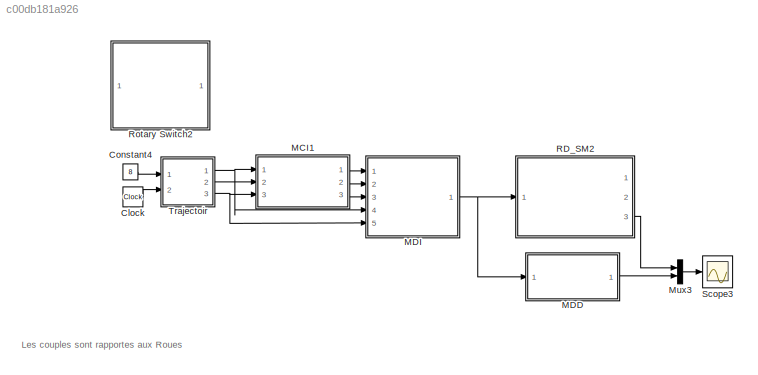
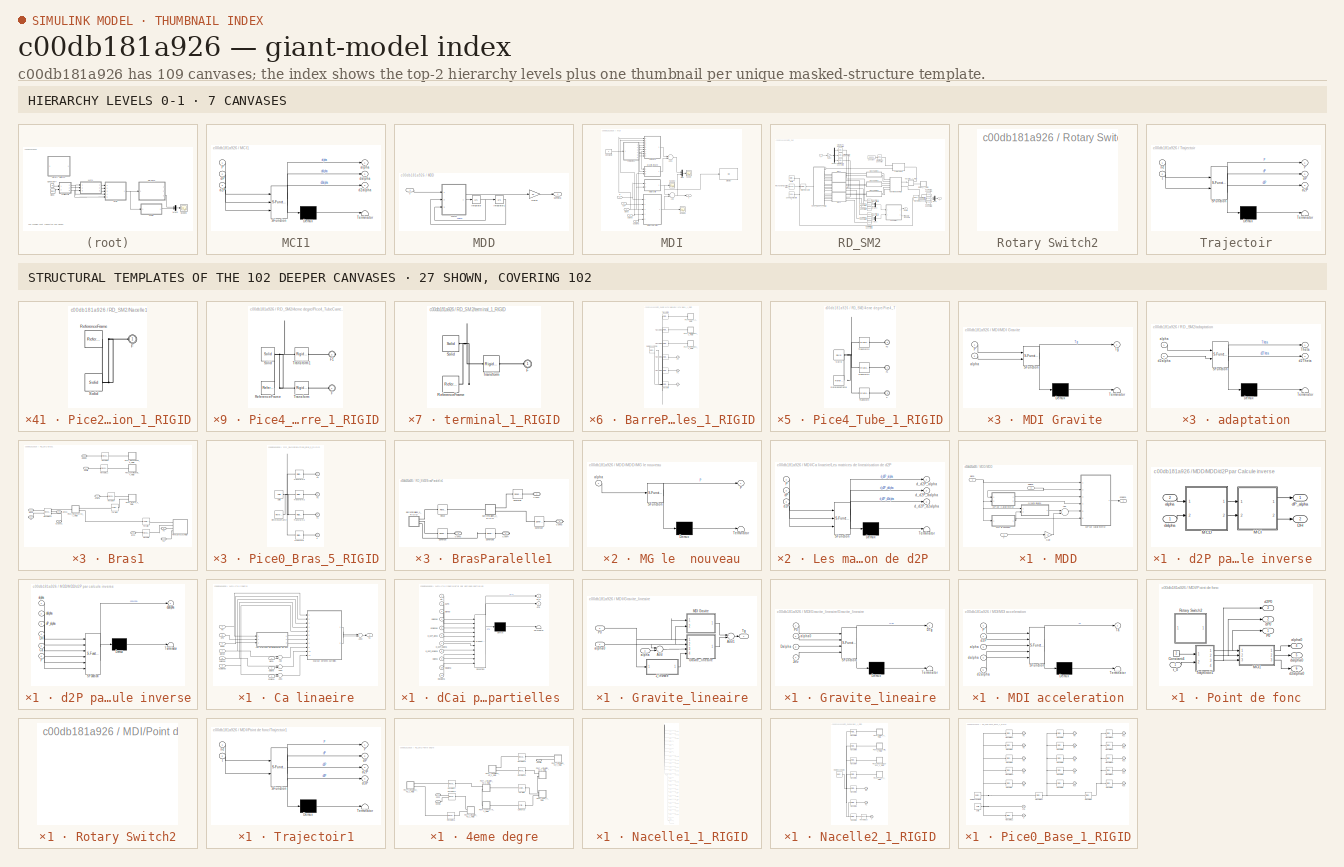
[diagram: thumbnail index - top-2 hierarchy levels (7 canvases) + 27 structural-template representatives of the remaining 102 canvases]
MODEL slx_c00db181a926
KIND model
CONFIG AbsTol = auto
CONFIG FixedStep = auto
CONFIG MaxStep = 0.001
CONFIG MinStep = auto
CONFIG RelTol = 1e-3
CONFIG SampleTimeConstraint = Unconstrained
CONFIG Solver = ode45
CONFIG SolverMode = Auto
CONFIG SolverName = ode45
CONFIG StartTime = 0.0
CONFIG StopTime = 3
BLOCK [Clock] Clock
BLOCK [Constant] Constant4
  Value = 8
BLOCK [SubSystem] MCI1
  ErrorFcn = Stateflow.Translate.translate
  PermitHierarchicalResolution = ExplicitOnly
  Ports = [3, 3]
  RequestExecContextInheritance = off
  SFBlockType = MATLAB Function
  TreatAsAtomicUnit = on
BLOCK [Demux] MCI1/ Demux 
  Outputs = 1
  Ports = [1, 1]
BLOCK [S-Function] MCI1/ SFunction 
  EnableBusSupport = on
  FunctionName = sf_sfun
  PortCounts = [3 4]
  Ports = [3, 4]
  Tag = Stateflow S-Function Modelisation_5_MDD 2
BLOCK [Terminator] MCI1/ Terminator 
BLOCK [Inport] MCI1/P
  IconDisplay = Port number
BLOCK [Outport] MCI1/alpha
  IconDisplay = Port number
BLOCK [Inport] MCI1/d2P
  IconDisplay = Port number
  Port = 3
BLOCK [Outport] MCI1/d2alpha
  IconDisplay = Port number
  Port = 3
BLOCK [Inport] MCI1/dP
  IconDisplay = Port number
  Port = 2
BLOCK [Outport] MCI1/dalpha
  IconDisplay = Port number
  Port = 2
BLOCK [SubSystem] MDD
  Ports = [1, 1]
  RequestExecContextInheritance = off
BLOCK [Gain] MDD/Gain2
  Gain = 12
  OutDataTypeStr = Inherit: Inherit via internal rule
  ParamDataTypeStr = Inherit: Inherit via internal rule
  SaturateOnIntegerOverflow = off
BLOCK [Integrator] MDD/Integrator
  InitialCondition = [0;0;0]
  Ports = [1, 1]
BLOCK [Integrator] MDD/Integrator1
  InitialCondition = 4.75*[1;1;1]*12
  Ports = [1, 1]
BLOCK [SubSystem] MDD/MDD
  Ports = [3, 1]
  RequestExecContextInheritance = off
BLOCK [Sum] MDD/MDD/Add
  InputSameDT = off
  OutDataTypeStr = Inherit: Inherit via internal rule
  Ports = [2, 1]
  SaturateOnIntegerOverflow = off
BLOCK [Gain] MDD/MDD/Gain
  Gain = 12
  OutDataTypeStr = Inherit: Inherit via internal rule
  ParamDataTypeStr = Inherit: Inherit via internal rule
  SaturateOnIntegerOverflow = off
BLOCK [SubSystem] MDD/MDD/Gravite_lineaire
  ErrorFcn = Stateflow.Translate.translate
  PermitHierarchicalResolution = ExplicitOnly
  Ports = [2, 1]
  RequestExecContextInheritance = off
  SFBlockType = MATLAB Function
  TreatAsAtomicUnit = on
BLOCK [Demux] MDD/MDD/Gravite_lineaire/ Demux 
  Outputs = 1
  Ports = [1, 1]
BLOCK [S-Function] MDD/MDD/Gravite_lineaire/ SFunction 
  EnableBusSupport = on
  FunctionName = sf_sfun
  PortCounts = [2 2]
  Ports = [2, 2]
  Tag = Stateflow S-Function Modelisation_5_MDD 8
BLOCK [Terminator] MDD/MDD/Gravite_lineaire/ Terminator 
BLOCK [Outport] MDD/MDD/Gravite_lineaire/Cg
  IconDisplay = Port number
BLOCK [Inport] MDD/MDD/Gravite_lineaire/P
  IconDisplay = Port number
  Port = 2
BLOCK [Inport] MDD/MDD/Gravite_lineaire/alpha
  IconDisplay = Port number
BLOCK [SubSystem] MDD/MDD/MG le  nouveau
  ErrorFcn = Stateflow.Translate.translate
  PermitHierarchicalResolution = ExplicitOnly
  Ports = [1, 1]
  RequestExecContextInheritance = off
  SFBlockType = MATLAB Function
  TreatAsAtomicUnit = on
BLOCK [Demux] MDD/MDD/MG le  nouveau/ Demux 
  Outputs = 1
  Ports = [1, 1]
BLOCK [S-Function] MDD/MDD/MG le  nouveau/ SFunction 
  EnableBusSupport = on
  FunctionName = sf_sfun
  PortCounts = [1 2]
  Ports = [1, 2]
  Tag = Stateflow S-Function Modelisation_5_MDD 1
BLOCK [Terminator] MDD/MDD/MG le  nouveau/ Terminator 
BLOCK [Outport] MDD/MDD/MG le  nouveau/P
  IconDisplay = Port number
BLOCK [Inport] MDD/MDD/MG le  nouveau/alpha
  IconDisplay = Port number
BLOCK [Inport] MDD/MDD/T
  IconDisplay = Port number
BLOCK [Inport] MDD/MDD/alpha
  IconDisplay = Port number
  Port = 2
BLOCK [SubSystem] MDD/MDD/d2P par Calcule inverse 
  Ports = [2, 2]
  RequestExecContextInheritance = off
BLOCK [Outport] MDD/MDD/d2P par Calcule inverse /DH
  IconDisplay = Port number
  Port = 2
BLOCK [SubSystem] MDD/MDD/d2P par Calcule inverse /MCD
  ErrorFcn = Stateflow.Translate.translate
  PermitHierarchicalResolution = ExplicitOnly
  Ports = [2, 2]
  RequestExecContextInheritance = off
  SFBlockType = MATLAB Function
  TreatAsAtomicUnit = on
BLOCK [Demux] MDD/MDD/d2P par Calcule inverse /MCD/ Demux 
  Outputs = 1
  Ports = [1, 1]
BLOCK [S-Function] MDD/MDD/d2P par Calcule inverse /MCD/ SFunction 
  EnableBusSupport = on
  FunctionName = sf_sfun
  PortCounts = [2 3]
  Ports = [2, 3]
  Tag = Stateflow S-Function Modelisation_5_MDD 3
BLOCK [Terminator] MDD/MDD/d2P par Calcule inverse /MCD/ Terminator 
BLOCK [Outport] MDD/MDD/d2P par Calcule inverse /MCD/P
  IconDisplay = Port number
BLOCK [Inport] MDD/MDD/d2P par Calcule inverse /MCD/alpha
  IconDisplay = Port number
BLOCK [Outport] MDD/MDD/d2P par Calcule inverse /MCD/dP
  IconDisplay = Port number
  Port = 2
BLOCK [Inport] MDD/MDD/d2P par Calcule inverse /MCD/dalpha
  IconDisplay = Port number
  Port = 2
BLOCK [SubSystem] MDD/MDD/d2P par Calcule inverse /MCI
  ErrorFcn = Stateflow.Translate.translate
  PermitHierarchicalResolution = ExplicitOnly
  Ports = [2, 2]
  RequestExecContextInheritance = off
  SFBlockType = MATLAB Function
  TreatAsAtomicUnit = on
BLOCK [Demux] MDD/MDD/d2P par Calcule inverse /MCI/ Demux 
  Outputs = 1
  Ports = [1, 1]
BLOCK [S-Function] MDD/MDD/d2P par Calcule inverse /MCI/ SFunction 
  EnableBusSupport = on
  FunctionName = sf_sfun
  PortCounts = [2 3]
  Ports = [2, 3]
  Tag = Stateflow S-Function Modelisation_5_MDD 14
BLOCK [Terminator] MDD/MDD/d2P par Calcule inverse /MCI/ Terminator 
BLOCK [Outport] MDD/MDD/d2P par Calcule inverse /MCI/DH
  IconDisplay = Port number
  Port = 2
BLOCK [Inport] MDD/MDD/d2P par Calcule inverse /MCI/P
  IconDisplay = Port number
BLOCK [Inport] MDD/MDD/d2P par Calcule inverse /MCI/dP
  IconDisplay = Port number
  Port = 2
BLOCK [Outport] MDD/MDD/d2P par Calcule inverse /MCI/dP_alpha
  IconDisplay = Port number
BLOCK [Inport] MDD/MDD/d2P par Calcule inverse /alpha
  IconDisplay = Port number
  Port = 2
BLOCK [Outport] MDD/MDD/d2P par Calcule inverse /dP_alpha
  IconDisplay = Port number
BLOCK [Inport] MDD/MDD/d2P par Calcule inverse /dalpha
  IconDisplay = Port number
BLOCK [SubSystem] MDD/MDD/d2P par calcule inverse
  ErrorFcn = Stateflow.Translate.translate
  PermitHierarchicalResolution = ExplicitOnly
  Ports = [6, 1]
  RequestExecContextInheritance = off
  SFBlockType = MATLAB Function
  TreatAsAtomicUnit = on
BLOCK [Demux] MDD/MDD/d2P par calcule inverse/ Demux 
  Outputs = 1
  Ports = [1, 1]
BLOCK [S-Function] MDD/MDD/d2P par calcule inverse/ SFunction 
  EnableBusSupport = on
  FunctionName = sf_sfun
  PortCounts = [6 2]
  Ports = [6, 2]
  Tag = Stateflow S-Function Modelisation_5_MDD 15
BLOCK [Terminator] MDD/MDD/d2P par calcule inverse/ Terminator 
BLOCK [Inport] MDD/MDD/d2P par calcule inverse/Ca
  IconDisplay = Port number
  Port = 5
BLOCK [Inport] MDD/MDD/d2P par calcule inverse/DH
  IconDisplay = Port number
  Port = 4
BLOCK [Inport] MDD/MDD/d2P par calcule inverse/P
  IconDisplay = Port number
  Port = 6
BLOCK [Inport] MDD/MDD/d2P par calcule inverse/alpha
  IconDisplay = Port number
BLOCK [Outport] MDD/MDD/d2P par calcule inverse/d2alpha
  IconDisplay = Port number
BLOCK [Inport] MDD/MDD/d2P par calcule inverse/dP_alpha
  IconDisplay = Port number
  Port = 3
BLOCK [Inport] MDD/MDD/d2P par calcule inverse/dalpha
  IconDisplay = Port number
  Port = 2
BLOCK [Outport] MDD/MDD/d2alpha
  IconDisplay = Port number
BLOCK [Inport] MDD/MDD/dalpha
  IconDisplay = Port number
  Port = 3
BLOCK [Inport] MDD/T
  IconDisplay = Port number
BLOCK [Outport] MDD/d2Theta
  IconDisplay = Port number
BLOCK [SubSystem] MDI
  Ports = [5, 1]
  RequestExecContextInheritance = off
BLOCK [Sum] MDI/Add
  InputSameDT = off
  Inputs = -+
  OutDataTypeStr = Inherit: Inherit via internal rule
  Ports = [2, 1]
  SaturateOnIntegerOverflow = off
BLOCK [Sum] MDI/Add1
  InputSameDT = off
  Inputs = +-
  OutDataTypeStr = Inherit: Inherit via internal rule
  Ports = [2, 1]
  SaturateOnIntegerOverflow = off
BLOCK [SubSystem] MDI/Ca linaeire
  Ports = [9, 1]
  RequestExecContextInheritance = off
BLOCK [Sum] MDI/Ca linaeire/Add
  InputSameDT = off
  Inputs = -+
  OutDataTypeStr = Inherit: Inherit via internal rule
  Ports = [2, 1]
  SaturateOnIntegerOverflow = off
BLOCK [Sum] MDI/Ca linaeire/Add1
  InputSameDT = off
  Inputs = -+
  OutDataTypeStr = Inherit: Inherit via internal rule
  Ports = [2, 1]
  SaturateOnIntegerOverflow = off
BLOCK [Sum] MDI/Ca linaeire/Add2
  InputSameDT = off
  Inputs = -+
  OutDataTypeStr = Inherit: Inherit via internal rule
  Ports = [2, 1]
  SaturateOnIntegerOverflow = off
BLOCK [Sum] MDI/Ca linaeire/Add3
  InputSameDT = off
  OutDataTypeStr = Inherit: Inherit via internal rule
  Ports = [2, 1]
  SaturateOnIntegerOverflow = off
BLOCK [SubSystem] MDI/Ca linaeire/Les matrices de lineairisation de d2P  
  ErrorFcn = Stateflow.Translate.translate
  PermitHierarchicalResolution = ExplicitOnly
  Ports = [3, 3]
  RequestExecContextInheritance = off
  SFBlockType = MATLAB Function
  TreatAsAtomicUnit = on
BLOCK [Demux] MDI/Ca linaeire/Les matrices de lineairisation de d2P  / Demux 
  Outputs = 1
  Ports = [1, 1]
BLOCK [S-Function] MDI/Ca linaeire/Les matrices de lineairisation de d2P  / SFunction 
  EnableBusSupport = on
  FunctionName = sf_sfun
  PortCounts = [3 4]
  Ports = [3, 4]
  Tag = Stateflow S-Function Modelisation_5_MDD 9
BLOCK [Terminator] MDI/Ca linaeire/Les matrices de lineairisation de d2P  / Terminator 
BLOCK [Inport] MDI/Ca linaeire/Les matrices de lineairisation de d2P  /P
  IconDisplay = Port number
BLOCK [Inport] MDI/Ca linaeire/Les matrices de lineairisation de d2P  /d2P
  IconDisplay = Port number
  Port = 3
BLOCK [Inport] MDI/Ca linaeire/Les matrices de lineairisation de d2P  /dP
  IconDisplay = Port number
  Port = 2
BLOCK [Outport] MDI/Ca linaeire/Les matrices de lineairisation de d2P  /d_d2P_alpha
  IconDisplay = Port number
BLOCK [Outport] MDI/Ca linaeire/Les matrices de lineairisation de d2P  /d_d2P_d2alpha
  IconDisplay = Port number
  Port = 3
BLOCK [Outport] MDI/Ca linaeire/Les matrices de lineairisation de d2P  /d_d2P_dalpha
  IconDisplay = Port number
  Port = 2
BLOCK [Inport] MDI/Ca linaeire/P0
  IconDisplay = Port number
  Port = 4
BLOCK [Outport] MDI/Ca linaeire/Ta
  IconDisplay = Port number
BLOCK [Inport] MDI/Ca linaeire/alpha
  IconDisplay = Port number
BLOCK [Inport] MDI/Ca linaeire/alpha0
  IconDisplay = Port number
  Port = 7
BLOCK [Inport] MDI/Ca linaeire/d2P0
  IconDisplay = Port number
  Port = 6
BLOCK [Inport] MDI/Ca linaeire/d2alpha
  IconDisplay = Port number
  Port = 3
BLOCK [Inport] MDI/Ca linaeire/d2alpha0
  IconDisplay = Port number
  Port = 9
BLOCK [SubSystem] MDI/Ca linaeire/dCai par derivees partielles 
  ErrorFcn = Stateflow.Translate.translate
  PermitHierarchicalResolution = ExplicitOnly
  Ports = [11, 2]
  RequestExecContextInheritance = off
  SFBlockType = MATLAB Function
  TreatAsAtomicUnit = on
BLOCK [Demux] MDI/Ca linaeire/dCai par derivees partielles / Demux 
  Outputs = 1
  Ports = [1, 1]
BLOCK [S-Function] MDI/Ca linaeire/dCai par derivees partielles / SFunction 
  EnableBusSupport = on
  FunctionName = sf_sfun
  PortCounts = [11 3]
  Ports = [11, 3]
  Tag = Stateflow S-Function Modelisation_5_MDD 11
BLOCK [Terminator] MDI/Ca linaeire/dCai par derivees partielles / Terminator 
BLOCK [Inport] MDI/Ca linaeire/dCai par derivees partielles /Dalpha
  IconDisplay = Port number
  Port = 9
BLOCK [Inport] MDI/Ca linaeire/dCai par derivees partielles /Dd2alpha
  IconDisplay = Port number
  Port = 11
BLOCK [Inport] MDI/Ca linaeire/dCai par derivees partielles /Ddalpha
  IconDisplay = Port number
  Port = 10
BLOCK [Inport] MDI/Ca linaeire/dCai par derivees partielles /P0
  IconDisplay = Port number
BLOCK [Outport] MDI/Ca linaeire/dCai par derivees partielles /Ta_0
  IconDisplay = Port number
BLOCK [Inport] MDI/Ca linaeire/dCai par derivees partielles /alpha0
  IconDisplay = Port number
  Port = 3
BLOCK [Inport] MDI/Ca linaeire/dCai par derivees partielles /d2P0
  IconDisplay = Port number
  Port = 2
BLOCK [Inport] MDI/Ca linaeire/dCai par derivees partielles /d2alpha0
  IconDisplay = Port number
  Port = 5
BLOCK [Outport] MDI/Ca linaeire/dCai par derivees partielles /dTa
  IconDisplay = Port number
  Port = 2
BLOCK [Inport] MDI/Ca linaeire/dCai par derivees partielles /d_d2P_alpha
  IconDisplay = Port number
  Port = 6
BLOCK [Inport] MDI/Ca linaeire/dCai par derivees partielles /d_d2P_d2alpha
  IconDisplay = Port number
  Port = 8
BLOCK [Inport] MDI/Ca linaeire/dCai par derivees partielles /d_d2P_dalpha
  IconDisplay = Port number
  Port = 7
BLOCK [Inport] MDI/Ca linaeire/dCai par derivees partielles /dalpha0
  IconDisplay = Port number
  Port = 4
BLOCK [Inport] MDI/Ca linaeire/dP0
  IconDisplay = Port number
  Port = 5
BLOCK [Inport] MDI/Ca linaeire/dalpha
  IconDisplay = Port number
  Port = 2
BLOCK [Inport] MDI/Ca linaeire/dalpha0
  IconDisplay = Port number
  Port = 8
BLOCK [Constant] MDI/Constant2
BLOCK [Display] MDI/Display
  Decimation = 1
  Ports = [1]
BLOCK [SubSystem] MDI/Gravite_lineaire
  Ports = [3, 1]
  RequestExecContextInheritance = off
BLOCK [Sum] MDI/Gravite_lineaire/Add
  InputSameDT = off
  Inputs = -+
  OutDataTypeStr = Inherit: Inherit via internal rule
  Ports = [2, 1]
  SaturateOnIntegerOverflow = off
BLOCK [Sum] MDI/Gravite_lineaire/Add1
  InputSameDT = off
  OutDataTypeStr = Inherit: Inherit via internal rule
  Ports = [2, 1]
  SaturateOnIntegerOverflow = off
BLOCK [SubSystem] MDI/Gravite_lineaire/Gravite_lineaire
  ErrorFcn = Stateflow.Translate.translate
  PermitHierarchicalResolution = ExplicitOnly
  Ports = [4, 1]
  RequestExecContextInheritance = off
  SFBlockType = MATLAB Function
  TreatAsAtomicUnit = on
BLOCK [Demux] MDI/Gravite_lineaire/Gravite_lineaire/ Demux 
  Outputs = 1
  Ports = [1, 1]
BLOCK [S-Function] MDI/Gravite_lineaire/Gravite_lineaire/ SFunction 
  EnableBusSupport = on
  FunctionName = sf_sfun
  PortCounts = [4 2]
  Ports = [4, 2]
  Tag = Stateflow S-Function Modelisation_5_MDD 6
BLOCK [Terminator] MDI/Gravite_lineaire/Gravite_lineaire/ Terminator 
BLOCK [Outport] MDI/Gravite_lineaire/Gravite_lineaire/DTg
  IconDisplay = Port number
BLOCK [Inport] MDI/Gravite_lineaire/Gravite_lineaire/Dalpha
  IconDisplay = Port number
  Port = 3
BLOCK [Inport] MDI/Gravite_lineaire/Gravite_lineaire/Jinv
  IconDisplay = Port number
  Port = 4
BLOCK [Inport] MDI/Gravite_lineaire/Gravite_lineaire/P0
  IconDisplay = Port number
BLOCK [Inport] MDI/Gravite_lineaire/Gravite_lineaire/alpha0
  IconDisplay = Port number
  Port = 2
BLOCK [SubSystem] MDI/Gravite_lineaire/J_invrsee
  ErrorFcn = Stateflow.Translate.translate
  PermitHierarchicalResolution = ExplicitOnly
  Ports = [1, 1]
  RequestExecContextInheritance = off
  SFBlockType = MATLAB Function
  TreatAsAtomicUnit = on
BLOCK [Demux] MDI/Gravite_lineaire/J_invrsee/ Demux 
  Outputs = 1
  Ports = [1, 1]
BLOCK [S-Function] MDI/Gravite_lineaire/J_invrsee/ SFunction 
  EnableBusSupport = on
  FunctionName = sf_sfun
  PortCounts = [1 2]
  Ports = [1, 2]
  Tag = Stateflow S-Function Modelisation_5_MDD 7
BLOCK [Terminator] MDI/Gravite_lineaire/J_invrsee/ Terminator 
BLOCK [Outport] MDI/Gravite_lineaire/J_invrsee/Jinv
  IconDisplay = Port number
BLOCK [Inport] MDI/Gravite_lineaire/J_invrsee/P0
  IconDisplay = Port number
BLOCK [SubSystem] MDI/Gravite_lineaire/MDI Gravite 
  ErrorFcn = Stateflow.Translate.translate
  PermitHierarchicalResolution = ExplicitOnly
  Ports = [2, 1]
  RequestExecContextInheritance = off
  SFBlockType = MATLAB Function
  TreatAsAtomicUnit = on
BLOCK [Demux] MDI/Gravite_lineaire/MDI Gravite / Demux 
  Outputs = 1
  Ports = [1, 1]
BLOCK [S-Function] MDI/Gravite_lineaire/MDI Gravite / SFunction 
  EnableBusSupport = on
  FunctionName = sf_sfun
  PortCounts = [2 2]
  Ports = [2, 2]
  Tag = Stateflow S-Function Modelisation_5_MDD 13
BLOCK [Terminator] MDI/Gravite_lineaire/MDI Gravite / Terminator 
BLOCK [Inport] MDI/Gravite_lineaire/MDI Gravite /P
  IconDisplay = Port number
BLOCK [Outport] MDI/Gravite_lineaire/MDI Gravite /Tg_0
  IconDisplay = Port number
BLOCK [Inport] MDI/Gravite_lineaire/MDI Gravite /alpha
  IconDisplay = Port number
  Port = 2
BLOCK [Inport] MDI/Gravite_lineaire/P0
  IconDisplay = Port number
  Port = 2
BLOCK [Outport] MDI/Gravite_lineaire/Tg
  IconDisplay = Port number
BLOCK [Inport] MDI/Gravite_lineaire/alpha
  IconDisplay = Port number
  Port = 3
BLOCK [Inport] MDI/Gravite_lineaire/alpha0
  IconDisplay = Port number
BLOCK [SubSystem] MDI/MDI Gravite 
  ErrorFcn = Stateflow.Translate.translate
  PermitHierarchicalResolution = ExplicitOnly
  Ports = [2, 1]
  RequestExecContextInheritance = off
  SFBlockType = MATLAB Function
  TreatAsAtomicUnit = on
BLOCK [Demux] MDI/MDI Gravite / Demux 
  Outputs = 1
  Ports = [1, 1]
BLOCK [S-Function] MDI/MDI Gravite / SFunction 
  EnableBusSupport = on
  FunctionName = sf_sfun
  PortCounts = [2 2]
  Ports = [2, 2]
  Tag = Stateflow S-Function Modelisation_5_MDD 5
BLOCK [Terminator] MDI/MDI Gravite / Terminator 
BLOCK [Inport] MDI/MDI Gravite /P
  IconDisplay = Port number
BLOCK [Outport] MDI/MDI Gravite /Tg
  IconDisplay = Port number
BLOCK [Inport] MDI/MDI Gravite /alpha
  IconDisplay = Port number
  Port = 2
BLOCK [SubSystem] MDI/MDI acceleration
  ErrorFcn = Stateflow.Translate.translate
  PermitHierarchicalResolution = ExplicitOnly
  Ports = [5, 1]
  RequestExecContextInheritance = off
  SFBlockType = MATLAB Function
  TreatAsAtomicUnit = on
BLOCK [Demux] MDI/MDI acceleration/ Demux 
  Outputs = 1
  Ports = [1, 1]
BLOCK [S-Function] MDI/MDI acceleration/ SFunction 
  EnableBusSupport = on
  FunctionName = sf_sfun
  PortCounts = [5 2]
  Ports = [5, 2]
  Tag = Stateflow S-Function Modelisation_5_MDD 10
BLOCK [Terminator] MDI/MDI acceleration/ Terminator 
BLOCK [Inport] MDI/MDI acceleration/P
  IconDisplay = Port number
BLOCK [Outport] MDI/MDI acceleration/Ta
  IconDisplay = Port number
BLOCK [Inport] MDI/MDI acceleration/alpha
  IconDisplay = Port number
  Port = 3
BLOCK [Inport] MDI/MDI acceleration/d2P
  IconDisplay = Port number
  Port = 2
BLOCK [Inport] MDI/MDI acceleration/d2alpha
  IconDisplay = Port number
  Port = 5
BLOCK [Inport] MDI/MDI acceleration/dalpha
  IconDisplay = Port number
  Port = 4
BLOCK [Mux] MDI/Mux
  DisplayOption = bar
  Inputs = 2
  Ports = [2, 1]
BLOCK [Inport] MDI/P
  IconDisplay = Port number
  Port = 4
BLOCK [SubSystem] MDI/Point de fonc
  Ports = [1, 6]
  RequestExecContextInheritance = off
BLOCK [Constant] MDI/Point de fonc/Constant4
  Value = 2
BLOCK [SubSystem] MDI/Point de fonc/MCI1
  ErrorFcn = Stateflow.Translate.translate
  PermitHierarchicalResolution = ExplicitOnly
  Ports = [3, 3]
  RequestExecContextInheritance = off
  SFBlockType = MATLAB Function
  TreatAsAtomicUnit = on
BLOCK [Demux] MDI/Point de fonc/MCI1/ Demux 
  Outputs = 1
  Ports = [1, 1]
BLOCK [S-Function] MDI/Point de fonc/MCI1/ SFunction 
  EnableBusSupport = on
  FunctionName = sf_sfun
  PortCounts = [3 4]
  Ports = [3, 4]
  Tag = Stateflow S-Function Modelisation_5_MDD 12
BLOCK [Terminator] MDI/Point de fonc/MCI1/ Terminator 
BLOCK [Inport] MDI/Point de fonc/MCI1/P
  IconDisplay = Port number
BLOCK [Outport] MDI/Point de fonc/MCI1/alpha
  IconDisplay = Port number
BLOCK [Inport] MDI/Point de fonc/MCI1/d2P
  IconDisplay = Port number
  Port = 3
BLOCK [Outport] MDI/Point de fonc/MCI1/d2alpha
  IconDisplay = Port number
  Port = 3
BLOCK [Inport] MDI/Point de fonc/MCI1/dP
  IconDisplay = Port number
  Port = 2
BLOCK [Outport] MDI/Point de fonc/MCI1/dalpha
  IconDisplay = Port number
  Port = 2
BLOCK [Outport] MDI/Point de fonc/P0
  IconDisplay = Port number
BLOCK [SubSystem] MDI/Point de fonc/Rotary Switch2
  DialogController = hmiCreateDDGDialog
  IsWebBlock = on
  MaskHideContents = on
  Ports = []
  RequestExecContextInheritance = off
BLOCK [SubSystem] MDI/Point de fonc/Trajectoir1
  ErrorFcn = Stateflow.Translate.translate
  PermitHierarchicalResolution = ExplicitOnly
  Ports = [2, 4]
  RequestExecContextInheritance = off
  SFBlockType = MATLAB Function
  TreatAsAtomicUnit = on
BLOCK [Demux] MDI/Point de fonc/Trajectoir1/ Demux 
  Outputs = 1
  Ports = [1, 1]
BLOCK [S-Function] MDI/Point de fonc/Trajectoir1/ SFunction 
  EnableBusSupport = on
  FunctionName = sf_sfun
  PortCounts = [2 5]
  Ports = [2, 5]
  Tag = Stateflow S-Function Modelisation_5_MDD 4
BLOCK [Terminator] MDI/Point de fonc/Trajectoir1/ Terminator 
BLOCK [Outport] MDI/Point de fonc/Trajectoir1/P
  IconDisplay = Port number
BLOCK [Outport] MDI/Point de fonc/Trajectoir1/d2P
  IconDisplay = Port number
  Port = 3
BLOCK [Outport] MDI/Point de fonc/Trajectoir1/d3P
  IconDisplay = Port number
  Port = 4
BLOCK [Outport] MDI/Point de fonc/Trajectoir1/dP
  IconDisplay = Port number
  Port = 2
BLOCK [Inport] MDI/Point de fonc/Trajectoir1/ne
  IconDisplay = Port number
BLOCK [Inport] MDI/Point de fonc/Trajectoir1/t
  IconDisplay = Port number
  Port = 2
BLOCK [Outport] MDI/Point de fonc/alpha0
  IconDisplay = Port number
  Port = 4
BLOCK [Outport] MDI/Point de fonc/d2P0
  IconDisplay = Port number
  Port = 3
BLOCK [Outport] MDI/Point de fonc/d2alpha0
  IconDisplay = Port number
  Port = 6
BLOCK [Outport] MDI/Point de fonc/dP0
  IconDisplay = Port number
  Port = 2
BLOCK [Outport] MDI/Point de fonc/dalpha0
  IconDisplay = Port number
  Port = 5
BLOCK [Inport] MDI/Point de fonc/t_0
  IconDisplay = Port number
BLOCK [Scope] MDI/Scope
  Floating = off
  LimitDataPoints = off
  NumInputPorts = 1
  Ports = [1]
  SaveName = ScopeData1
  YMax = 0.35
  YMin = -0.3
BLOCK [Scope] MDI/Scope1
  Floating = off
  LimitDataPoints = off
  NumInputPorts = 1
  Ports = [1]
  SaveName = ScopeData9
  YMax = 0.35
  YMin = -0.3
BLOCK [Scope] MDI/Scope2
  Floating = off
  LimitDataPoints = off
  NumInputPorts = 1
  Ports = [1]
  SaveName = ScopeData10
  YMax = 0.35
  YMin = -0.3
BLOCK [Outport] MDI/T
  IconDisplay = Port number
BLOCK [Inport] MDI/alpha
  IconDisplay = Port number
BLOCK [Inport] MDI/d2P
  IconDisplay = Port number
  Port = 5
BLOCK [Inport] MDI/d2alpha
  IconDisplay = Port number
  Port = 3
BLOCK [Inport] MDI/dalpha
  IconDisplay = Port number
  Port = 2
BLOCK [Mux] Mux3
  DisplayOption = bar
  Inputs = 2
  Ports = [2, 1]
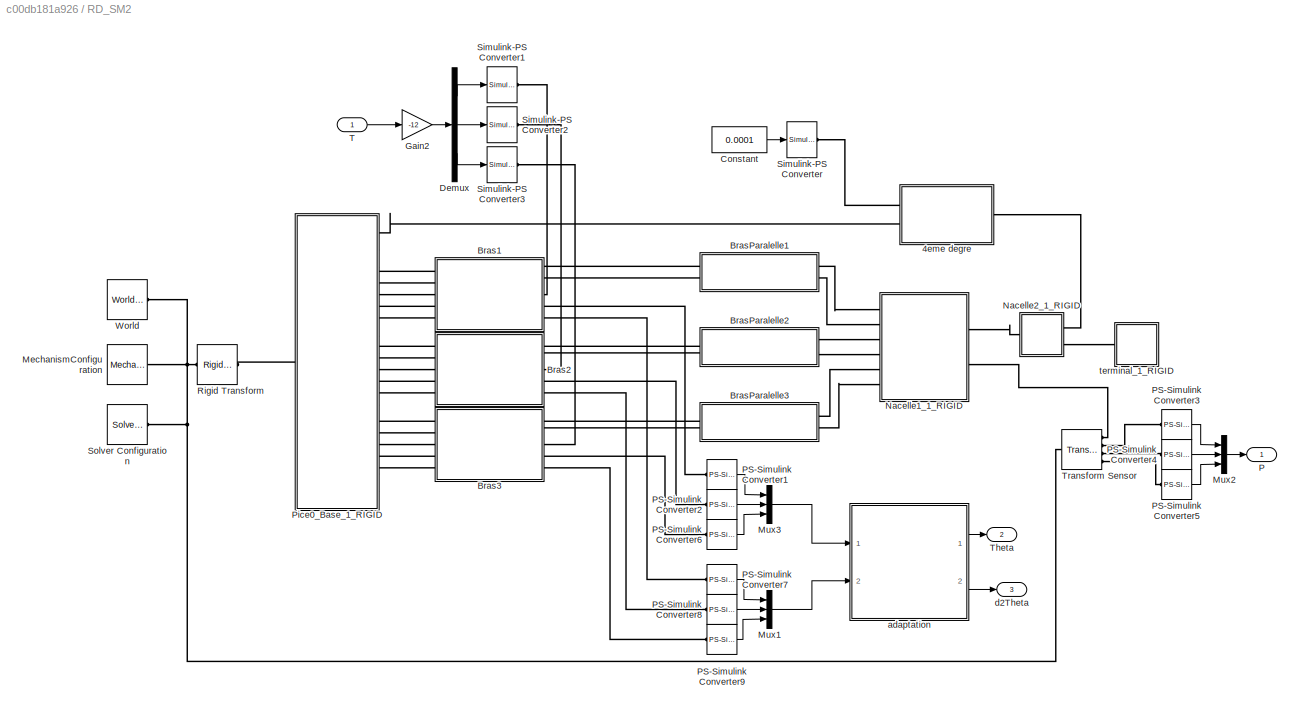
BLOCK [SubSystem] RD_SM2
  Ports = [1, 3]
  RequestExecContextInheritance = off
BLOCK [SubSystem] RD_SM2/4eme degre
  Commented = on
  Ports = [0, 0, 0, 0, 0, 2, 1]
  RequestExecContextInheritance = off
BLOCK [Reference] RD_SM2/4eme degre/Cylindrical  REF=sm_lib/Joints/Cylindrical
Joint
  BlockFunction = simmechanics.library.joints.cylindrical_joint
  ClassName = CylindricalJoint
  CompositeWrenchDir = FollowerOnBase
  CompositeWrenchFrame = BaseFrame
  LogSimulationData = off
  Ports = [0, 0, 0, 0, 0, 1, 1]
  PzDampingCoefficient = 0
  PzDampingCoefficientUnits = s*N/m
  PzEquilibriumPosition = 0
  PzEquilibriumPositionUnits = m
  PzMotionActuationMode = ComputedMotion
  PzPositionTargetPriority = Low
  PzPositionTargetSpecify = on
  PzPositionTargetValue = 0
  PzPositionTargetValueUnits = mm
  PzSenseAcceleration = off
  PzSensePosition = off
  PzSenseTorqueForce = off
  PzSenseVelocity = off
  PzSpringStiffness = 0
  PzSpringStiffnessUnits = N/m
  PzTorqueActuationMode = NoTorque
  PzVelocityTargetPriority = High
  PzVelocityTargetSpecify = off
  PzVelocityTargetValue = 0
  PzVelocityTargetValueUnits = m/s
  RzDampingCoefficient = 0
  RzDampingCoefficientUnits = m*s*N/rad
  RzEquilibriumPosition = 0
  RzEquilibriumPositionUnits = rad
  RzMotionActuationMode = ComputedMotion
  RzPositionTargetPriority = Low
  RzPositionTargetSpecify = on
  RzPositionTargetValue = 90
  RzPositionTargetValueUnits = deg
  RzSenseAcceleration = off
  RzSensePosition = off
  RzSenseTorqueForce = off
  RzSenseVelocity = off
  RzSpringStiffness = 0
  RzSpringStiffnessUnits = m*N/rad
  RzTorqueActuationMode = NoTorque
  RzVelocityTargetPriority = High
  RzVelocityTargetSpecify = off
  RzVelocityTargetValue = 0
  RzVelocityTargetValueUnits = deg/s
  SenseConstraintForce = off
  SenseConstraintForceX = off
  SenseConstraintForceY = off
  SenseConstraintForceZ = off
  SenseConstraintTorque = off
  SenseConstraintTorqueX = off
  SenseConstraintTorqueY = off
  SenseConstraintTorqueZ = off
  SenseTotalForce = off
  SenseTotalForceX = off
  SenseTotalForceY = off
  SenseTotalForceZ = off
  SenseTotalTorque = off
  SenseTotalTorqueX = off
  SenseTotalTorqueY = off
  SenseTotalTorqueZ = off
  SourceBlock = sm_lib/Joints/Cylindrical\nJoint
  SourceType = Cylindrical\nJoint
BLOCK [Reference] RD_SM2/4eme degre/Parallel6  REF=sm_lib/Constraints/Angle
Constraint
  Angle = 45
  AngleUnits = deg
  BlockFunction = simmechanics.library.constraints.angle_constraint
  ClassName = AngleConstraint
  ConstraintType = Parallel
  LogSimulationData = off
  Ports = [0, 0, 0, 0, 0, 1, 1]
  SenseForce = off
  SenseSignedTorqueMagnitude = off
  SenseTorque = off
  SourceBlock = sm_lib/Constraints/Angle\nConstraint
  SourceType = Angle\nConstraint
  WrenchDir = FollowerOnBase
  WrenchFrame = BaseFrame
BLOCK [SubSystem] RD_SM2/4eme degre/Pice4_TubeCarre_1_RIGID
  Ports = [0, 0, 0, 0, 0, 1, 1]
  RequestExecContextInheritance = off
BLOCK [PMIOPort] RD_SM2/4eme degre/Pice4_TubeCarre_1_RIGID/F
  Port = 1
  Side = Left
BLOCK [PMIOPort] RD_SM2/4eme degre/Pice4_TubeCarre_1_RIGID/F1
  Port = 2
  Side = Right
BLOCK [Reference] RD_SM2/4eme degre/Pice4_TubeCarre_1_RIGID/ReferenceFrame  REF=sm_lib/Frames and
Transforms/Reference
Frame
  BlockFunction = simmechanics.library.frames_transforms.reference_frame
  ClassName = ReferenceFrame
  LogSimulationData = off
  Ports = [0, 0, 0, 0, 0, 0, 1]
  SourceBlock = sm_lib/Frames and\nTransforms/Reference\nFrame
  SourceType = Reference\nFrame
BLOCK [Reference] RD_SM2/4eme degre/Pice4_TubeCarre_1_RIGID/Solid  REF=sm_lib/Body Elements/Solid
  BlockFunction = simmechanics.library.body_elements.solid
  BrickDimensionUnits = m
  BrickDimensions = [1 1 1]
  CenterOfMass = [0 0 151.88226103399225]
  CenterOfMassUnits = mm
  ClassName = Solid
  CylinderLength = 1
  CylinderLengthUnits = m
  CylinderRadius = 1
  CylinderRadiusUnits = m
  Density = 1000
  DensityBased = on
  DensityUnits = kg/(m^3)
  EllipsoidRadii = [1 1 1]
  EllipsoidRadiiUnits = m
  ExtGeomFileName = Pièce4_TubeCarre_Défaut_sldprt.STL
  ExtGeomFileType = STL
  ExtGeomFileUnits = mm
  ExtrusionCrossSection = [1 1; -1 1; -1 -1; 1 -1]
  ExtrusionCrossSectionUnits = m
  ExtrusionLength = 1
  ExtrusionLengthUnits = m
  GeometryShape = FromFile
  GraphicAmbientColor = [0.15 0.15 0.15 1.0]
  GraphicDiffuseColor = [0.792156862745098 0.81960784313725488 0.93333333333333335]
  GraphicEmissiveColor = [0.0 0.0 0.0 1.0]
  GraphicOpacity = 1
  GraphicShininess = 75
  GraphicSpecularColor = [0.5 0.5 0.5 1.0]
  GraphicType = FromGeometry
  GraphicVisPropType = SimpleVisualProperties
  InertiaType = Custom
  LogSimulationData = off
  MarkerShape = Sphere
  MarkerSize = 10
  MarkerSizeUnits = m
  Mass = 0.010867575252183589
  MassUnits = kg
  MomentsOfInertia = [80.964881782474635 80.96385919406589 0.30000520159599853]
  MomentsOfInertiaUnits = kg*mm^2
  PolygonNumSides = 3
  PolygonOuterRadius = 1
  PolygonOuterRadiusUnits = m
  Ports = [0, 0, 0, 0, 0, 0, 1]
  ProductsOfInertia = [0 0 0]
  ProductsOfInertiaUnits = kg*mm^2
  RectangleSize = [1 1]
  RectangleSizeUnits = m
  RevolutionAngle = 180
  RevolutionAngleUnits = deg
  RevolutionCrossSection = [1 1; 1 -1; 2 -1; 2 1]
  RevolutionCrossSectionUnits = m
  RevolutionExtent = Full
  SourceBlock = sm_lib/Body Elements/Solid
  SourceType = Solid
  SphereRadius = 1
  SphereRadiusUnits = m
BLOCK [Reference] RD_SM2/4eme degre/Pice4_TubeCarre_1_RIGID/Transform  REF=sm_lib/Frames and
Transforms/Rigid
Transform
  BaseAlignAxisA = +Y
  BaseAlignAxisB = +Z
  BlockFunction = simmechanics.library.frames_transforms.rigid_transform
  ClassName = RigidTransform
  FollAlignAxisA = +X
  FollAlignAxisB = +Y
  LogSimulationData = off
  Ports = [0, 0, 0, 0, 0, 1, 1]
  RotationAngle = 3.1415926535897931
  RotationAngleUnits = rad
  RotationArbitraryAxis = [1 0 0]
  RotationMatrix = [1 0 0; 0 1 0; 0 0 1]
  RotationMethod = ArbitraryAxis
  RotationStandardAxis = +Z
  SourceBlock = sm_lib/Frames and\nTransforms/Rigid\nTransform
  SourceType = Rigid\nTransform
  TranslationCartesianOffset = [0 0 288.00000000000006]
  TranslationLengthUnit = mm
  TranslationMethod = Cartesian
  TranslationROffset = 0
  TranslationROffsetUnits = m
  TranslationStandardAxis = +Z
  TranslationStandardOffset = 0
  TranslationThetaOffset = 0
  TranslationThetaOffsetUnits = deg
  TranslationZOffset = 0
  TranslationZOffsetUnits = m
BLOCK [Reference] RD_SM2/4eme degre/Pice4_TubeCarre_1_RIGID/Transform1  REF=sm_lib/Frames and
Transforms/Rigid
Transform
  BaseAlignAxisA = +Y
  BaseAlignAxisB = +Z
  BlockFunction = simmechanics.library.frames_transforms.rigid_transform
  ClassName = RigidTransform
  FollAlignAxisA = +X
  FollAlignAxisB = +Y
  LogSimulationData = off
  Ports = [0, 0, 0, 0, 0, 1, 1]
  RotationAngle = 3.1415926535897931
  RotationAngleUnits = rad
  RotationArbitraryAxis = [1 0 0]
  RotationMatrix = [1 0 0; 0 1 0; 0 0 1]
  RotationMethod = ArbitraryAxis
  RotationStandardAxis = +Z
  SourceBlock = sm_lib/Frames and\nTransforms/Rigid\nTransform
  SourceType = Rigid\nTransform
  TranslationCartesianOffset = [0 0 288.00000000000006]
  TranslationLengthUnit = mm
  TranslationMethod = Cartesian
  TranslationROffset = 0
  TranslationROffsetUnits = m
  TranslationStandardAxis = +Z
  TranslationStandardOffset = 0
  TranslationThetaOffset = 0
  TranslationThetaOffsetUnits = deg
  TranslationZOffset = 0
  TranslationZOffsetUnits = m
BLOCK [SubSystem] RD_SM2/4eme degre/Pice4_Tube_1_RIGID
  Ports = [0, 0, 0, 0, 0, 3]
  RequestExecContextInheritance = off
BLOCK [PMIOPort] RD_SM2/4eme degre/Pice4_Tube_1_RIGID/F
  Port = 3
  Side = Left
BLOCK [PMIOPort] RD_SM2/4eme degre/Pice4_Tube_1_RIGID/F1
  Port = 1
  Side = Left
BLOCK [PMIOPort] RD_SM2/4eme degre/Pice4_Tube_1_RIGID/F2
  Port = 2
  Side = Left
BLOCK [Reference] RD_SM2/4eme degre/Pice4_Tube_1_RIGID/ReferenceFrame  REF=sm_lib/Frames and
Transforms/Reference
Frame
  BlockFunction = simmechanics.library.frames_transforms.reference_frame
  ClassName = ReferenceFrame
  LogSimulationData = off
  Ports = [0, 0, 0, 0, 0, 0, 1]
  SourceBlock = sm_lib/Frames and\nTransforms/Reference\nFrame
  SourceType = Reference\nFrame
BLOCK [Reference] RD_SM2/4eme degre/Pice4_Tube_1_RIGID/Solid  REF=sm_lib/Body Elements/Solid
  BlockFunction = simmechanics.library.body_elements.solid
  BrickDimensionUnits = m
  BrickDimensions = [1 1 1]
  CenterOfMass = [-4.1460122344799134e-11 2.6332345173922464e-08 157.00037492761294]
  CenterOfMassUnits = mm
  ClassName = Solid
  CylinderLength = 1
  CylinderLengthUnits = m
  CylinderRadius = 1
  CylinderRadiusUnits = m
  Density = 1000
  DensityBased = on
  DensityUnits = kg/(m^3)
  EllipsoidRadii = [1 1 1]
  EllipsoidRadiiUnits = m
  ExtGeomFileName = Pièce4_Tube_Défaut_sldprt.STL
  ExtGeomFileType = STL
  ExtGeomFileUnits = mm
  ExtrusionCrossSection = [1 1; -1 1; -1 -1; 1 -1]
  ExtrusionCrossSectionUnits = m
  ExtrusionLength = 1
  ExtrusionLengthUnits = m
  GeometryShape = FromFile
  GraphicAmbientColor = [0.15 0.15 0.15 1.0]
  GraphicDiffuseColor = [1 1 1]
  GraphicEmissiveColor = [0.0 0.0 0.0 1.0]
  GraphicOpacity = 1
  GraphicShininess = 75
  GraphicSpecularColor = [0.5 0.5 0.5 1.0]
  GraphicType = FromGeometry
  GraphicVisPropType = SimpleVisualProperties
  InertiaType = Custom
  LogSimulationData = off
  MarkerShape = Sphere
  MarkerSize = 10
  MarkerSizeUnits = m
  Mass = 0.0056953775725032503
  MassUnits = kg
  MomentsOfInertia = [46.656669534748204 46.656784060773653 0.060513437161415502]
  MomentsOfInertiaUnits = kg*mm^2
  PolygonNumSides = 3
  PolygonOuterRadius = 1
  PolygonOuterRadiusUnits = m
  Ports = [0, 0, 0, 0, 0, 0, 1]
  ProductsOfInertia = [4.4271388779002391e-06 -1.0344554341986986e-06 -6.5578304138838094e-07]
  ProductsOfInertiaUnits = kg*mm^2
  RectangleSize = [1 1]
  RectangleSizeUnits = m
  RevolutionAngle = 180
  RevolutionAngleUnits = deg
  RevolutionCrossSection = [1 1; 1 -1; 2 -1; 2 1]
  RevolutionCrossSectionUnits = m
  RevolutionExtent = Full
  SourceBlock = sm_lib/Body Elements/Solid
  SourceType = Solid
  SphereRadius = 1
  SphereRadiusUnits = m
BLOCK [Reference] RD_SM2/4eme degre/Pice4_Tube_1_RIGID/Transform  REF=sm_lib/Frames and
Transforms/Rigid
Transform
  BaseAlignAxisA = +Y
  BaseAlignAxisB = +Z
  BlockFunction = simmechanics.library.frames_transforms.rigid_transform
  ClassName = RigidTransform
  FollAlignAxisA = +X
  FollAlignAxisB = +Y
  LogSimulationData = off
  Ports = [0, 0, 0, 0, 0, 1, 1]
  RotationAngle = 2.3933025363915142e-16
  RotationAngleUnits = rad
  RotationArbitraryAxis = [0.98475311040243962 0.17395778669757966 2.0499290975424829e-17]
  RotationMatrix = [1 0 0; 0 1 0; 0 0 1]
  RotationMethod = ArbitraryAxis
  RotationStandardAxis = +Z
  SourceBlock = sm_lib/Frames and\nTransforms/Rigid\nTransform
  SourceType = Rigid\nTransform
  TranslationCartesianOffset = [3.1225020909808173e-16 -1.7676090876444019e-15 7.5000000000433147]
  TranslationLengthUnit = mm
  TranslationMethod = Cartesian
  TranslationROffset = 0
  TranslationROffsetUnits = m
  TranslationStandardAxis = +Z
  TranslationStandardOffset = 0
  TranslationThetaOffset = 0
  TranslationThetaOffsetUnits = deg
  TranslationZOffset = 0
  TranslationZOffsetUnits = m
BLOCK [Reference] RD_SM2/4eme degre/Pice4_Tube_1_RIGID/Transform1  REF=sm_lib/Frames and
Transforms/Rigid
Transform
  BaseAlignAxisA = +Y
  BaseAlignAxisB = +Z
  BlockFunction = simmechanics.library.frames_transforms.rigid_transform
  ClassName = RigidTransform
  FollAlignAxisA = +X
  FollAlignAxisB = +Y
  LogSimulationData = off
  Ports = [0, 0, 0, 0, 0, 1, 1]
  RotationAngle = 2.0943951023931953
  RotationAngleUnits = rad
  RotationArbitraryAxis = [-0.57735026918962584 -0.57735026918962584 -0.57735026918962584]
  RotationMatrix = [1 0 0; 0 1 0; 0 0 1]
  RotationMethod = ArbitraryAxis
  RotationStandardAxis = +Z
  SourceBlock = sm_lib/Frames and\nTransforms/Rigid\nTransform
  SourceType = Rigid\nTransform
  TranslationCartesianOffset = [1.7763568394002505e-15 -10.000000000000002 4.9999999999999973]
  TranslationLengthUnit = mm
  TranslationMethod = Cartesian
  TranslationROffset = 0
  TranslationROffsetUnits = m
  TranslationStandardAxis = +Z
  TranslationStandardOffset = 0
  TranslationThetaOffset = 0
  TranslationThetaOffsetUnits = deg
  TranslationZOffset = 0
  TranslationZOffsetUnits = m
BLOCK [Reference] RD_SM2/4eme degre/Pice4_Tube_1_RIGID/Transform2  REF=sm_lib/Frames and
Transforms/Rigid
Transform
  BaseAlignAxisA = +Y
  BaseAlignAxisB = +Z
  BlockFunction = simmechanics.library.frames_transforms.rigid_transform
  ClassName = RigidTransform
  FollAlignAxisA = +X
  FollAlignAxisB = +Y
  LogSimulationData = off
  Ports = [0, 0, 0, 0, 0, 1, 1]
  RotationAngle = 2.0943951023931944
  RotationAngleUnits = rad
  RotationArbitraryAxis = [-0.57735026918962629 0.57735026918962551 0.57735026918962562]
  RotationMatrix = [1 0 0; 0 1 0; 0 0 1]
  RotationMethod = ArbitraryAxis
  RotationStandardAxis = +Z
  SourceBlock = sm_lib/Frames and\nTransforms/Rigid\nTransform
  SourceType = Rigid\nTransform
  TranslationCartesianOffset = [2.2204460492503131e-14 -10.000000000000078 289.50000000004349]
  TranslationLengthUnit = mm
  TranslationMethod = Cartesian
  TranslationROffset = 0
  TranslationROffsetUnits = m
  TranslationStandardAxis = +Z
  TranslationStandardOffset = 0
  TranslationThetaOffset = 0
  TranslationThetaOffsetUnits = deg
  TranslationZOffset = 0
  TranslationZOffsetUnits = m
BLOCK [SubSystem] RD_SM2/4eme degre/Pice7_Articulation2_4D_1_RIGID
  Ports = [0, 0, 0, 0, 0, 0, 2]
  RequestExecContextInheritance = off
BLOCK [PMIOPort] RD_SM2/4eme degre/Pice7_Articulation2_4D_1_RIGID/F
  Port = 2
  Side = Right
BLOCK [PMIOPort] RD_SM2/4eme degre/Pice7_Articulation2_4D_1_RIGID/F1
  Port = 1
  Side = Right
BLOCK [Reference] RD_SM2/4eme degre/Pice7_Articulation2_4D_1_RIGID/ReferenceFrame  REF=sm_lib/Frames and
Transforms/Reference
Frame
  BlockFunction = simmechanics.library.frames_transforms.reference_frame
  ClassName = ReferenceFrame
  LogSimulationData = off
  Ports = [0, 0, 0, 0, 0, 0, 1]
  SourceBlock = sm_lib/Frames and\nTransforms/Reference\nFrame
  SourceType = Reference\nFrame
BLOCK [Reference] RD_SM2/4eme degre/Pice7_Articulation2_4D_1_RIGID/Solid  REF=sm_lib/Body Elements/Solid
  BlockFunction = simmechanics.library.body_elements.solid
  BrickDimensionUnits = m
  BrickDimensions = [1 1 1]
  CenterOfMass = [1.3145967249302863e-05 0 2.4999868540327492]
  CenterOfMassUnits = mm
  ClassName = Solid
  CylinderLength = 1
  CylinderLengthUnits = m
  CylinderRadius = 1
  CylinderRadiusUnits = m
  Density = 1000
  DensityBased = on
  DensityUnits = kg/(m^3)
  EllipsoidRadii = [1 1 1]
  EllipsoidRadiiUnits = m
  ExtGeomFileName = Pièce7_Articulation2_4D_Défaut_sldprt.STL
  ExtGeomFileType = STL
  ExtGeomFileUnits = mm
  ExtrusionCrossSection = [1 1; -1 1; -1 -1; 1 -1]
  ExtrusionCrossSectionUnits = m
  ExtrusionLength = 1
  ExtrusionLengthUnits = m
  GeometryShape = FromFile
  GraphicAmbientColor = [0.15 0.15 0.15 1.0]
  GraphicDiffuseColor = [0.59999999999999998 0.59999999999999998 0.59999999999999998]
  GraphicEmissiveColor = [0.0 0.0 0.0 1.0]
  GraphicOpacity = 1
  GraphicShininess = 75
  GraphicSpecularColor = [0.5 0.5 0.5 1.0]
  GraphicType = FromGeometry
  GraphicVisPropType = SimpleVisualProperties
  InertiaType = Custom
  LogSimulationData = off
  MarkerShape = Sphere
  MarkerSize = 10
  MarkerSizeUnits = m
  Mass = 0.00016798088345928891
  MassUnits = kg
  MomentsOfInertia = [0.00079398025349645333 0.00073652250997339531 0.00079398025349645301]
  MomentsOfInertiaUnits = kg*mm^2
  PolygonNumSides = 3
  PolygonOuterRadius = 1
  PolygonOuterRadiusUnits = m
  Ports = [0, 0, 0, 0, 0, 0, 1]
  ProductsOfInertia = [5.8154631267179775e-09 0 5.8154631267355294e-09]
  ProductsOfInertiaUnits = kg*mm^2
  RectangleSize = [1 1]
  RectangleSizeUnits = m
  RevolutionAngle = 180
  RevolutionAngleUnits = deg
  RevolutionCrossSection = [1 1; 1 -1; 2 -1; 2 1]
  RevolutionCrossSectionUnits = m
  RevolutionExtent = Full
  SourceBlock = sm_lib/Body Elements/Solid
  SourceType = Solid
  SphereRadius = 1
  SphereRadiusUnits = m
BLOCK [Reference] RD_SM2/4eme degre/Pice7_Articulation2_4D_1_RIGID/Transform  REF=sm_lib/Frames and
Transforms/Rigid
Transform
  BaseAlignAxisA = +Y
  BaseAlignAxisB = +Z
  BlockFunction = simmechanics.library.frames_transforms.rigid_transform
  ClassName = RigidTransform
  FollAlignAxisA = +X
  FollAlignAxisB = +Y
  LogSimulationData = off
  Ports = [0, 0, 0, 0, 0, 1, 1]
  RotationAngle = 2.0943951023931953
  RotationAngleUnits = rad
  RotationArbitraryAxis = [0.57735026918962584 0.57735026918962584 0.57735026918962584]
  RotationMatrix = [1 0 0; 0 1 0; 0 0 1]
  RotationMethod = ArbitraryAxis
  RotationStandardAxis = +Z
  SourceBlock = sm_lib/Frames and\nTransforms/Rigid\nTransform
  SourceType = Rigid\nTransform
  TranslationCartesianOffset = [-7.5000000000000044 0 2.5000000000000013]
  TranslationLengthUnit = mm
  TranslationMethod = Cartesian
  TranslationROffset = 0
  TranslationROffsetUnits = m
  TranslationStandardAxis = +Z
  TranslationStandardOffset = 0
  TranslationThetaOffset = 0
  TranslationThetaOffsetUnits = deg
  TranslationZOffset = 0
  TranslationZOffsetUnits = m
BLOCK [Reference] RD_SM2/4eme degre/Pice7_Articulation2_4D_1_RIGID/Transform1  REF=sm_lib/Frames and
Transforms/Rigid
Transform
  BaseAlignAxisA = +Y
  BaseAlignAxisB = +Z
  BlockFunction = simmechanics.library.frames_transforms.rigid_transform
  ClassName = RigidTransform
  FollAlignAxisA = +X
  FollAlignAxisB = +Y
  LogSimulationData = off
  Ports = [0, 0, 0, 0, 0, 1, 1]
  RotationAngle = 3.1415926535897931
  RotationAngleUnits = rad
  RotationArbitraryAxis = [1 0 0]
  RotationMatrix = [1 0 0; 0 1 0; 0 0 1]
  RotationMethod = ArbitraryAxis
  RotationStandardAxis = +Z
  SourceBlock = sm_lib/Frames and\nTransforms/Rigid\nTransform
  SourceType = Rigid\nTransform
  TranslationCartesianOffset = [0 0 5.0000000000000018]
  TranslationLengthUnit = mm
  TranslationMethod = Cartesian
  TranslationROffset = 0
  TranslationROffsetUnits = m
  TranslationStandardAxis = +Z
  TranslationStandardOffset = 0
  TranslationThetaOffset = 0
  TranslationThetaOffsetUnits = deg
  TranslationZOffset = 0
  TranslationZOffsetUnits = m
BLOCK [SubSystem] RD_SM2/4eme degre/Pice7_Articulation2_4D_2_RIGID
  Ports = [0, 0, 0, 0, 0, 0, 2]
  RequestExecContextInheritance = off
BLOCK [PMIOPort] RD_SM2/4eme degre/Pice7_Articulation2_4D_2_RIGID/F
  Port = 2
  Side = Right
BLOCK [PMIOPort] RD_SM2/4eme degre/Pice7_Articulation2_4D_2_RIGID/F1
  Port = 1
  Side = Right
BLOCK [Reference] RD_SM2/4eme degre/Pice7_Articulation2_4D_2_RIGID/ReferenceFrame  REF=sm_lib/Frames and
Transforms/Reference
Frame
  BlockFunction = simmechanics.library.frames_transforms.reference_frame
  ClassName = ReferenceFrame
  LogSimulationData = off
  Ports = [0, 0, 0, 0, 0, 0, 1]
  SourceBlock = sm_lib/Frames and\nTransforms/Reference\nFrame
  SourceType = Reference\nFrame
BLOCK [Reference] RD_SM2/4eme degre/Pice7_Articulation2_4D_2_RIGID/Solid  REF=sm_lib/Body Elements/Solid
  BlockFunction = simmechanics.library.body_elements.solid
  BrickDimensionUnits = m
  BrickDimensions = [1 1 1]
  CenterOfMass = [1.3145967249302863e-05 0 2.4999868540327492]
  CenterOfMassUnits = mm
  ClassName = Solid
  CylinderLength = 1
  CylinderLengthUnits = m
  CylinderRadius = 1
  CylinderRadiusUnits = m
  Density = 1000
  DensityBased = on
  DensityUnits = kg/(m^3)
  EllipsoidRadii = [1 1 1]
  EllipsoidRadiiUnits = m
  ExtGeomFileName = Pièce7_Articulation2_4D_Défaut_sldprt.STL
  ExtGeomFileType = STL
  ExtGeomFileUnits = mm
  ExtrusionCrossSection = [1 1; -1 1; -1 -1; 1 -1]
  ExtrusionCrossSectionUnits = m
  ExtrusionLength = 1
  ExtrusionLengthUnits = m
  GeometryShape = FromFile
  GraphicAmbientColor = [0.15 0.15 0.15 1.0]
  GraphicDiffuseColor = [0.59999999999999998 0.59999999999999998 0.59999999999999998]
  GraphicEmissiveColor = [0.0 0.0 0.0 1.0]
  GraphicOpacity = 1
  GraphicShininess = 75
  GraphicSpecularColor = [0.5 0.5 0.5 1.0]
  GraphicType = FromGeometry
  GraphicVisPropType = SimpleVisualProperties
  InertiaType = Custom
  LogSimulationData = off
  MarkerShape = Sphere
  MarkerSize = 10
  MarkerSizeUnits = m
  Mass = 0.00016798088345928891
  MassUnits = kg
  MomentsOfInertia = [0.00079398025349645333 0.00073652250997339531 0.00079398025349645301]
  MomentsOfInertiaUnits = kg*mm^2
  PolygonNumSides = 3
  PolygonOuterRadius = 1
  PolygonOuterRadiusUnits = m
  Ports = [0, 0, 0, 0, 0, 0, 1]
  ProductsOfInertia = [5.8154631267179775e-09 0 5.8154631267355294e-09]
  ProductsOfInertiaUnits = kg*mm^2
  RectangleSize = [1 1]
  RectangleSizeUnits = m
  RevolutionAngle = 180
  RevolutionAngleUnits = deg
  RevolutionCrossSection = [1 1; 1 -1; 2 -1; 2 1]
  RevolutionCrossSectionUnits = m
  RevolutionExtent = Full
  SourceBlock = sm_lib/Body Elements/Solid
  SourceType = Solid
  SphereRadius = 1
  SphereRadiusUnits = m
BLOCK [Reference] RD_SM2/4eme degre/Pice7_Articulation2_4D_2_RIGID/Transform  REF=sm_lib/Frames and
Transforms/Rigid
Transform
  BaseAlignAxisA = +Y
  BaseAlignAxisB = +Z
  BlockFunction = simmechanics.library.frames_transforms.rigid_transform
  ClassName = RigidTransform
  FollAlignAxisA = +X
  FollAlignAxisB = +Y
  LogSimulationData = off
  Ports = [0, 0, 0, 0, 0, 1, 1]
  RotationAngle = 3.1415926535897931
  RotationAngleUnits = rad
  RotationArbitraryAxis = [1 0 0]
  RotationMatrix = [1 0 0; 0 1 0; 0 0 1]
  RotationMethod = ArbitraryAxis
  RotationStandardAxis = +Z
  SourceBlock = sm_lib/Frames and\nTransforms/Rigid\nTransform
  SourceType = Rigid\nTransform
  TranslationCartesianOffset = [0 0 4.9999999999999973]
  TranslationLengthUnit = mm
  TranslationMethod = Cartesian
  TranslationROffset = 0
  TranslationROffsetUnits = m
  TranslationStandardAxis = +Z
  TranslationStandardOffset = 0
  TranslationThetaOffset = 0
  TranslationThetaOffsetUnits = deg
  TranslationZOffset = 0
  TranslationZOffsetUnits = m
BLOCK [Reference] RD_SM2/4eme degre/Pice7_Articulation2_4D_2_RIGID/Transform1  REF=sm_lib/Frames and
Transforms/Rigid
Transform
  BaseAlignAxisA = +Y
  BaseAlignAxisB = +Z
  BlockFunction = simmechanics.library.frames_transforms.rigid_transform
  ClassName = RigidTransform
  FollAlignAxisA = +X
  FollAlignAxisB = +Y
  LogSimulationData = off
  Ports = [0, 0, 0, 0, 0, 1, 1]
  RotationAngle = 2.0943951023931953
  RotationAngleUnits = rad
  RotationArbitraryAxis = [0.57735026918962584 0.57735026918962584 0.57735026918962584]
  RotationMatrix = [1 0 0; 0 1 0; 0 0 1]
  RotationMethod = ArbitraryAxis
  RotationStandardAxis = +Z
  SourceBlock = sm_lib/Frames and\nTransforms/Rigid\nTransform
  SourceType = Rigid\nTransform
  TranslationCartesianOffset = [-7.4999999999999991 0 2.4999999999999987]
  TranslationLengthUnit = mm
  TranslationMethod = Cartesian
  TranslationROffset = 0
  TranslationROffsetUnits = m
  TranslationStandardAxis = +Z
  TranslationStandardOffset = 0
  TranslationThetaOffset = 0
  TranslationThetaOffsetUnits = deg
  TranslationZOffset = 0
  TranslationZOffsetUnits = m
BLOCK [SubSystem] RD_SM2/4eme degre/Pice7_Articulation_4D_1_RIGID
  Ports = [0, 0, 0, 0, 0, 2]
  RequestExecContextInheritance = off
BLOCK [PMIOPort] RD_SM2/4eme degre/Pice7_Articulation_4D_1_RIGID/F
  Port = 1
  Side = Left
BLOCK [PMIOPort] RD_SM2/4eme degre/Pice7_Articulation_4D_1_RIGID/F1
  Port = 2
  Side = Left
BLOCK [Reference] RD_SM2/4eme degre/Pice7_Articulation_4D_1_RIGID/ReferenceFrame  REF=sm_lib/Frames and
Transforms/Reference
Frame
  BlockFunction = simmechanics.library.frames_transforms.reference_frame
  ClassName = ReferenceFrame
  LogSimulationData = off
  Ports = [0, 0, 0, 0, 0, 0, 1]
  SourceBlock = sm_lib/Frames and\nTransforms/Reference\nFrame
  SourceType = Reference\nFrame
BLOCK [Reference] RD_SM2/4eme degre/Pice7_Articulation_4D_1_RIGID/Solid  REF=sm_lib/Body Elements/Solid
  BlockFunction = simmechanics.library.body_elements.solid
  BrickDimensionUnits = m
  BrickDimensions = [1 1 1]
  CenterOfMass = [-7.5570774103926599e-06 -2.1684330507576098e-05 1.6158371675332779]
  CenterOfMassUnits = mm
  ClassName = Solid
  CylinderLength = 1
  CylinderLengthUnits = m
  CylinderRadius = 1
  CylinderRadiusUnits = m
  Density = 1000
  DensityBased = on
  DensityUnits = kg/(m^3)
  EllipsoidRadii = [1 1 1]
  EllipsoidRadiiUnits = m
  ExtGeomFileName = Pièce7_Articulation_4D_Défaut_sldprt.STL
  ExtGeomFileType = STL
  ExtGeomFileUnits = mm
  ExtrusionCrossSection = [1 1; -1 1; -1 -1; 1 -1]
  ExtrusionCrossSectionUnits = m
  ExtrusionLength = 1
  ExtrusionLengthUnits = m
  GeometryShape = FromFile
  GraphicAmbientColor = [0.15 0.15 0.15 1.0]
  GraphicDiffuseColor = [0.59999999999999998 0.59999999999999998 0.59999999999999998]
  GraphicEmissiveColor = [0.0 0.0 0.0 1.0]
  GraphicOpacity = 1
  GraphicShininess = 75
  GraphicSpecularColor = [0.5 0.5 0.5 1.0]
  GraphicType = FromGeometry
  GraphicVisPropType = SimpleVisualProperties
  InertiaType = Custom
  LogSimulationData = off
  MarkerShape = Sphere
  MarkerSize = 10
  MarkerSizeUnits = m
  Mass = 0.00054525572268895601
  MassUnits = kg
  MomentsOfInertia = [0.006697000941437917 0.0077450843399126243 0.0052224207074533392]
  MomentsOfInertiaUnits = kg*mm^2
  PolygonNumSides = 3
  PolygonOuterRadius = 1
  PolygonOuterRadiusUnits = m
  Ports = [0, 0, 0, 0, 0, 0, 1]
  ProductsOfInertia = [2.4949436094323098e-08 -2.027498724207747e-09 -3.4872381666612767e-08]
  ProductsOfInertiaUnits = kg*mm^2
  RectangleSize = [1 1]
  RectangleSizeUnits = m
  RevolutionAngle = 180
  RevolutionAngleUnits = deg
  RevolutionCrossSection = [1 1; 1 -1; 2 -1; 2 1]
  RevolutionCrossSectionUnits = m
  RevolutionExtent = Full
  SourceBlock = sm_lib/Body Elements/Solid
  SourceType = Solid
  SphereRadius = 1
  SphereRadiusUnits = m
BLOCK [Reference] RD_SM2/4eme degre/Pice7_Articulation_4D_1_RIGID/Transform  REF=sm_lib/Frames and
Transforms/Rigid
Transform
  BaseAlignAxisA = +Y
  BaseAlignAxisB = +Z
  BlockFunction = simmechanics.library.frames_transforms.rigid_transform
  ClassName = RigidTransform
  FollAlignAxisA = +X
  FollAlignAxisB = +Y
  LogSimulationData = off
  Ports = [0, 0, 0, 0, 0, 1, 1]
  RotationAngle = 3.1415926535897931
  RotationAngleUnits = rad
  RotationArbitraryAxis = [1 0 0]
  RotationMatrix = [1 0 0; 0 1 0; 0 0 1]
  RotationMethod = ArbitraryAxis
  RotationStandardAxis = +Z
  SourceBlock = sm_lib/Frames and\nTransforms/Rigid\nTransform
  SourceType = Rigid\nTransform
  TranslationCartesianOffset = [0 0 10]
  TranslationLengthUnit = mm
  TranslationMethod = Cartesian
  TranslationROffset = 0
  TranslationROffsetUnits = m
  TranslationStandardAxis = +Z
  TranslationStandardOffset = 0
  TranslationThetaOffset = 0
  TranslationThetaOffsetUnits = deg
  TranslationZOffset = 0
  TranslationZOffsetUnits = m
BLOCK [Reference] RD_SM2/4eme degre/Pice7_Articulation_4D_1_RIGID/Transform1  REF=sm_lib/Frames and
Transforms/Rigid
Transform
  BaseAlignAxisA = +Y
  BaseAlignAxisB = +Z
  BlockFunction = simmechanics.library.frames_transforms.rigid_transform
  ClassName = RigidTransform
  FollAlignAxisA = +X
  FollAlignAxisB = +Y
  LogSimulationData = off
  Ports = [0, 0, 0, 0, 0, 1, 1]
  RotationAngle = 2.0943951023931957
  RotationAngleUnits = rad
  RotationArbitraryAxis = [-0.57735026918962573 -0.57735026918962573 0.57735026918962562]
  RotationMatrix = [1 0 0; 0 1 0; 0 0 1]
  RotationMethod = ArbitraryAxis
  RotationStandardAxis = +Z
  SourceBlock = sm_lib/Frames and\nTransforms/Rigid\nTransform
  SourceType = Rigid\nTransform
  TranslationCartesianOffset = [7.5000000000000062 5.1958437552457326e-13 -4]
  TranslationLengthUnit = mm
  TranslationMethod = Cartesian
  TranslationROffset = 0
  TranslationROffsetUnits = m
  TranslationStandardAxis = +Z
  TranslationStandardOffset = 0
  TranslationThetaOffset = 0
  TranslationThetaOffsetUnits = deg
  TranslationZOffset = 0
  TranslationZOffsetUnits = m
BLOCK [SubSystem] RD_SM2/4eme degre/Pice7_Articulation_4D_2_RIGID
  Ports = [0, 0, 0, 0, 0, 2]
  RequestExecContextInheritance = off
BLOCK [PMIOPort] RD_SM2/4eme degre/Pice7_Articulation_4D_2_RIGID/F
  Port = 1
  Side = Left
BLOCK [PMIOPort] RD_SM2/4eme degre/Pice7_Articulation_4D_2_RIGID/F1
  Port = 2
  Side = Left
BLOCK [Reference] RD_SM2/4eme degre/Pice7_Articulation_4D_2_RIGID/ReferenceFrame  REF=sm_lib/Frames and
Transforms/Reference
Frame
  BlockFunction = simmechanics.library.frames_transforms.reference_frame
  ClassName = ReferenceFrame
  LogSimulationData = off
  Ports = [0, 0, 0, 0, 0, 0, 1]
  SourceBlock = sm_lib/Frames and\nTransforms/Reference\nFrame
  SourceType = Reference\nFrame
BLOCK [Reference] RD_SM2/4eme degre/Pice7_Articulation_4D_2_RIGID/Solid  REF=sm_lib/Body Elements/Solid
  BlockFunction = simmechanics.library.body_elements.solid
  BrickDimensionUnits = m
  BrickDimensions = [1 1 1]
  CenterOfMass = [-7.5570774103926599e-06 -2.1684330507576098e-05 1.6158371675332779]
  CenterOfMassUnits = mm
  ClassName = Solid
  CylinderLength = 1
  CylinderLengthUnits = m
  CylinderRadius = 1
  CylinderRadiusUnits = m
  Density = 1000
  DensityBased = on
  DensityUnits = kg/(m^3)
  EllipsoidRadii = [1 1 1]
  EllipsoidRadiiUnits = m
  ExtGeomFileName = Pièce7_Articulation_4D_Défaut_sldprt.STL
  ExtGeomFileType = STL
  ExtGeomFileUnits = mm
  ExtrusionCrossSection = [1 1; -1 1; -1 -1; 1 -1]
  ExtrusionCrossSectionUnits = m
  ExtrusionLength = 1
  ExtrusionLengthUnits = m
  GeometryShape = FromFile
  GraphicAmbientColor = [0.15 0.15 0.15 1.0]
  GraphicDiffuseColor = [0.59999999999999998 0.59999999999999998 0.59999999999999998]
  GraphicEmissiveColor = [0.0 0.0 0.0 1.0]
  GraphicOpacity = 1
  GraphicShininess = 75
  GraphicSpecularColor = [0.5 0.5 0.5 1.0]
  GraphicType = FromGeometry
  GraphicVisPropType = SimpleVisualProperties
  InertiaType = Custom
  LogSimulationData = off
  MarkerShape = Sphere
  MarkerSize = 10
  MarkerSizeUnits = m
  Mass = 0.00054525572268895601
  MassUnits = kg
  MomentsOfInertia = [0.006697000941437917 0.0077450843399126243 0.0052224207074533392]
  MomentsOfInertiaUnits = kg*mm^2
  PolygonNumSides = 3
  PolygonOuterRadius = 1
  PolygonOuterRadiusUnits = m
  Ports = [0, 0, 0, 0, 0, 0, 1]
  ProductsOfInertia = [2.4949436094323098e-08 -2.027498724207747e-09 -3.4872381666612767e-08]
  ProductsOfInertiaUnits = kg*mm^2
  RectangleSize = [1 1]
  RectangleSizeUnits = m
  RevolutionAngle = 180
  RevolutionAngleUnits = deg
  RevolutionCrossSection = [1 1; 1 -1; 2 -1; 2 1]
  RevolutionCrossSectionUnits = m
  RevolutionExtent = Full
  SourceBlock = sm_lib/Body Elements/Solid
  SourceType = Solid
  SphereRadius = 1
  SphereRadiusUnits = m
BLOCK [Reference] RD_SM2/4eme degre/Pice7_Articulation_4D_2_RIGID/Transform  REF=sm_lib/Frames and
Transforms/Rigid
Transform
  BaseAlignAxisA = +Y
  BaseAlignAxisB = +Z
  BlockFunction = simmechanics.library.frames_transforms.rigid_transform
  ClassName = RigidTransform
  FollAlignAxisA = +X
  FollAlignAxisB = +Y
  LogSimulationData = off
  Ports = [0, 0, 0, 0, 0, 1, 1]
  RotationAngle = 2.0943951023931935
  RotationAngleUnits = rad
  RotationArbitraryAxis = [0.57735026918962695 0.57735026918962506 0.57735026918962529]
  RotationMatrix = [1 0 0; 0 1 0; 0 0 1]
  RotationMethod = ArbitraryAxis
  RotationStandardAxis = +Z
  SourceBlock = sm_lib/Frames and\nTransforms/Rigid\nTransform
  SourceType = Rigid\nTransform
  TranslationCartesianOffset = [-2.5000000000004601 -4.9324988538046455e-12 -4.0000000000000568]
  TranslationLengthUnit = mm
  TranslationMethod = Cartesian
  TranslationROffset = 0
  TranslationROffsetUnits = m
  TranslationStandardAxis = +Z
  TranslationStandardOffset = 0
  TranslationThetaOffset = 0
  TranslationThetaOffsetUnits = deg
  TranslationZOffset = 0
  TranslationZOffsetUnits = m
BLOCK [Reference] RD_SM2/4eme degre/Pice7_Articulation_4D_2_RIGID/Transform1  REF=sm_lib/Frames and
Transforms/Rigid
Transform
  BaseAlignAxisA = +Y
  BaseAlignAxisB = +Z
  BlockFunction = simmechanics.library.frames_transforms.rigid_transform
  ClassName = RigidTransform
  FollAlignAxisA = +X
  FollAlignAxisB = +Y
  LogSimulationData = off
  Ports = [0, 0, 0, 0, 0, 1, 1]
  RotationAngle = 2.0943951023931953
  RotationAngleUnits = rad
  RotationArbitraryAxis = [0.57735026918962584 -0.57735026918962584 0.57735026918962584]
  RotationMatrix = [1 0 0; 0 1 0; 0 0 1]
  RotationMethod = ArbitraryAxis
  RotationStandardAxis = +Z
  SourceBlock = sm_lib/Frames and\nTransforms/Rigid\nTransform
  SourceType = Rigid\nTransform
  TranslationCartesianOffset = [0 10 5.5000000000000053]
  TranslationLengthUnit = mm
  TranslationMethod = Cartesian
  TranslationROffset = 0
  TranslationROffsetUnits = m
  TranslationStandardAxis = +Z
  TranslationStandardOffset = 0
  TranslationThetaOffset = 0
  TranslationThetaOffsetUnits = deg
  TranslationZOffset = 0
  TranslationZOffsetUnits = m
BLOCK [SubSystem] RD_SM2/4eme degre/Pice7_Articulation_4D_3_RIGID
  Ports = [0, 0, 0, 0, 0, 2, 1]
  RequestExecContextInheritance = off
BLOCK [PMIOPort] RD_SM2/4eme degre/Pice7_Articulation_4D_3_RIGID/F
  Port = 2
  Side = Left
BLOCK [PMIOPort] RD_SM2/4eme degre/Pice7_Articulation_4D_3_RIGID/F1
  Port = 1
  Side = Left
BLOCK [PMIOPort] RD_SM2/4eme degre/Pice7_Articulation_4D_3_RIGID/F2
  Port = 3
  Side = Right
BLOCK [Reference] RD_SM2/4eme degre/Pice7_Articulation_4D_3_RIGID/ReferenceFrame  REF=sm_lib/Frames and
Transforms/Reference
Frame
  BlockFunction = simmechanics.library.frames_transforms.reference_frame
  ClassName = ReferenceFrame
  LogSimulationData = off
  Ports = [0, 0, 0, 0, 0, 0, 1]
  SourceBlock = sm_lib/Frames and\nTransforms/Reference\nFrame
  SourceType = Reference\nFrame
BLOCK [Reference] RD_SM2/4eme degre/Pice7_Articulation_4D_3_RIGID/Solid  REF=sm_lib/Body Elements/Solid
  BlockFunction = simmechanics.library.body_elements.solid
  BrickDimensionUnits = m
  BrickDimensions = [1 1 1]
  CenterOfMass = [-7.5570774103926599e-06 -2.1684330507576098e-05 1.6158371675332779]
  CenterOfMassUnits = mm
  ClassName = Solid
  CylinderLength = 1
  CylinderLengthUnits = m
  CylinderRadius = 1
  CylinderRadiusUnits = m
  Density = 1000
  DensityBased = on
  DensityUnits = kg/(m^3)
  EllipsoidRadii = [1 1 1]
  EllipsoidRadiiUnits = m
  ExtGeomFileName = Pièce7_Articulation_4D_Défaut_sldprt.STL
  ExtGeomFileType = STL
  ExtGeomFileUnits = mm
  ExtrusionCrossSection = [1 1; -1 1; -1 -1; 1 -1]
  ExtrusionCrossSectionUnits = m
  ExtrusionLength = 1
  ExtrusionLengthUnits = m
  GeometryShape = FromFile
  GraphicAmbientColor = [0.15 0.15 0.15 1.0]
  GraphicDiffuseColor = [0.59999999999999998 0.59999999999999998 0.59999999999999998]
  GraphicEmissiveColor = [0.0 0.0 0.0 1.0]
  GraphicOpacity = 1
  GraphicShininess = 75
  GraphicSpecularColor = [0.5 0.5 0.5 1.0]
  GraphicType = FromGeometry
  GraphicVisPropType = SimpleVisualProperties
  InertiaType = Custom
  LogSimulationData = off
  MarkerShape = Sphere
  MarkerSize = 10
  MarkerSizeUnits = m
  Mass = 0.00054525572268895601
  MassUnits = kg
  MomentsOfInertia = [0.006697000941437917 0.0077450843399126243 0.0052224207074533392]
  MomentsOfInertiaUnits = kg*mm^2
  PolygonNumSides = 3
  PolygonOuterRadius = 1
  PolygonOuterRadiusUnits = m
  Ports = [0, 0, 0, 0, 0, 0, 1]
  ProductsOfInertia = [2.4949436094323098e-08 -2.027498724207747e-09 -3.4872381666612767e-08]
  ProductsOfInertiaUnits = kg*mm^2
  RectangleSize = [1 1]
  RectangleSizeUnits = m
  RevolutionAngle = 180
  RevolutionAngleUnits = deg
  RevolutionCrossSection = [1 1; 1 -1; 2 -1; 2 1]
  RevolutionCrossSectionUnits = m
  RevolutionExtent = Full
  SourceBlock = sm_lib/Body Elements/Solid
  SourceType = Solid
  SphereRadius = 1
  SphereRadiusUnits = m
BLOCK [Reference] RD_SM2/4eme degre/Pice7_Articulation_4D_3_RIGID/Transform  REF=sm_lib/Frames and
Transforms/Rigid
Transform
  BaseAlignAxisA = +Y
  BaseAlignAxisB = +Z
  BlockFunction = simmechanics.library.frames_transforms.rigid_transform
  ClassName = RigidTransform
  FollAlignAxisA = +X
  FollAlignAxisB = +Y
  LogSimulationData = off
  Ports = [0, 0, 0, 0, 0, 1, 1]
  RotationAngle = 3.1415926535897922
  RotationAngleUnits = rad
  RotationArbitraryAxis = [0.70710678118654757 0.70710678118654746 4.5522370447787816e-16]
  RotationMatrix = [1 0 0; 0 1 0; 0 0 1]
  RotationMethod = ArbitraryAxis
  RotationStandardAxis = +Z
  SourceBlock = sm_lib/Frames and\nTransforms/Rigid\nTransform
  SourceType = Rigid\nTransform
  TranslationCartesianOffset = [-3.6419073695479938e-13 -5.9847966973448215e-15 287.50000000000028]
  TranslationLengthUnit = mm
  TranslationMethod = Cartesian
  TranslationROffset = 0
  TranslationROffsetUnits = m
  TranslationStandardAxis = +Z
  TranslationStandardOffset = 0
  TranslationThetaOffset = 0
  TranslationThetaOffsetUnits = deg
  TranslationZOffset = 0
  TranslationZOffsetUnits = m
BLOCK [Reference] RD_SM2/4eme degre/Pice7_Articulation_4D_3_RIGID/Transform1  REF=sm_lib/Frames and
Transforms/Rigid
Transform
  BaseAlignAxisA = +Y
  BaseAlignAxisB = +Z
  BlockFunction = simmechanics.library.frames_transforms.rigid_transform
  ClassName = RigidTransform
  FollAlignAxisA = +X
  FollAlignAxisB = +Y
  LogSimulationData = off
  Ports = [0, 0, 0, 0, 0, 1, 1]
  RotationAngle = 2.0943951023931979
  RotationAngleUnits = rad
  RotationArbitraryAxis = [-0.57735026918962429 -0.57735026918962651 0.5773502691896264]
  RotationMatrix = [1 0 0; 0 1 0; 0 0 1]
  RotationMethod = ArbitraryAxis
  RotationStandardAxis = +Z
  SourceBlock = sm_lib/Frames and\nTransforms/Rigid\nTransform
  SourceType = Rigid\nTransform
  TranslationCartesianOffset = [2.5000000000005236 8.8817841970012523e-15 -4.0000000000000053]
  TranslationLengthUnit = mm
  TranslationMethod = Cartesian
  TranslationROffset = 0
  TranslationROffsetUnits = m
  TranslationStandardAxis = +Z
  TranslationStandardOffset = 0
  TranslationThetaOffset = 0
  TranslationThetaOffsetUnits = deg
  TranslationZOffset = 0
  TranslationZOffsetUnits = m
BLOCK [Reference] RD_SM2/4eme degre/Pice7_Articulation_4D_3_RIGID/Transform2  REF=sm_lib/Frames and
Transforms/Rigid
Transform
  BaseAlignAxisA = +Y
  BaseAlignAxisB = +Z
  BlockFunction = simmechanics.library.frames_transforms.rigid_transform
  ClassName = RigidTransform
  FollAlignAxisA = +X
  FollAlignAxisB = +Y
  LogSimulationData = off
  Ports = [0, 0, 0, 0, 0, 1, 1]
  RotationAngle = 2.0943951023931953
  RotationAngleUnits = rad
  RotationArbitraryAxis = [0.57735026918962584 -0.57735026918962584 0.57735026918962584]
  RotationMatrix = [1 0 0; 0 1 0; 0 0 1]
  RotationMethod = ArbitraryAxis
  RotationStandardAxis = +Z
  SourceBlock = sm_lib/Frames and\nTransforms/Rigid\nTransform
  SourceType = Rigid\nTransform
  TranslationCartesianOffset = [0 10.000000000000005 5.5]
  TranslationLengthUnit = mm
  TranslationMethod = Cartesian
  TranslationROffset = 0
  TranslationROffsetUnits = m
  TranslationStandardAxis = +Z
  TranslationStandardOffset = 0
  TranslationThetaOffset = 0
  TranslationThetaOffsetUnits = deg
  TranslationZOffset = 0
  TranslationZOffsetUnits = m
BLOCK [SubSystem] RD_SM2/4eme degre/Pice7_Articulation_4D_4_RIGID
  Ports = [0, 0, 0, 0, 0, 2]
  RequestExecContextInheritance = off
BLOCK [PMIOPort] RD_SM2/4eme degre/Pice7_Articulation_4D_4_RIGID/F
  Port = 1
  Side = Left
BLOCK [PMIOPort] RD_SM2/4eme degre/Pice7_Articulation_4D_4_RIGID/F1
  Port = 2
  Side = Left
BLOCK [Reference] RD_SM2/4eme degre/Pice7_Articulation_4D_4_RIGID/ReferenceFrame  REF=sm_lib/Frames and
Transforms/Reference
Frame
  BlockFunction = simmechanics.library.frames_transforms.reference_frame
  ClassName = ReferenceFrame
  LogSimulationData = off
  Ports = [0, 0, 0, 0, 0, 0, 1]
  SourceBlock = sm_lib/Frames and\nTransforms/Reference\nFrame
  SourceType = Reference\nFrame
BLOCK [Reference] RD_SM2/4eme degre/Pice7_Articulation_4D_4_RIGID/Solid  REF=sm_lib/Body Elements/Solid
  BlockFunction = simmechanics.library.body_elements.solid
  BrickDimensionUnits = m
  BrickDimensions = [1 1 1]
  CenterOfMass = [-7.5570774103926599e-06 -2.1684330507576098e-05 1.6158371675332779]
  CenterOfMassUnits = mm
  ClassName = Solid
  CylinderLength = 1
  CylinderLengthUnits = m
  CylinderRadius = 1
  CylinderRadiusUnits = m
  Density = 1000
  DensityBased = on
  DensityUnits = kg/(m^3)
  EllipsoidRadii = [1 1 1]
  EllipsoidRadiiUnits = m
  ExtGeomFileName = Pièce7_Articulation_4D_Défaut_sldprt.STL
  ExtGeomFileType = STL
  ExtGeomFileUnits = mm
  ExtrusionCrossSection = [1 1; -1 1; -1 -1; 1 -1]
  ExtrusionCrossSectionUnits = m
  ExtrusionLength = 1
  ExtrusionLengthUnits = m
  GeometryShape = FromFile
  GraphicAmbientColor = [0.15 0.15 0.15 1.0]
  GraphicDiffuseColor = [0.59999999999999998 0.59999999999999998 0.59999999999999998]
  GraphicEmissiveColor = [0.0 0.0 0.0 1.0]
  GraphicOpacity = 1
  GraphicShininess = 75
  GraphicSpecularColor = [0.5 0.5 0.5 1.0]
  GraphicType = FromGeometry
  GraphicVisPropType = SimpleVisualProperties
  InertiaType = Custom
  LogSimulationData = off
  MarkerShape = Sphere
  MarkerSize = 10
  MarkerSizeUnits = m
  Mass = 0.00054525572268895601
  MassUnits = kg
  MomentsOfInertia = [0.006697000941437917 0.0077450843399126243 0.0052224207074533392]
  MomentsOfInertiaUnits = kg*mm^2
  PolygonNumSides = 3
  PolygonOuterRadius = 1
  PolygonOuterRadiusUnits = m
  Ports = [0, 0, 0, 0, 0, 0, 1]
  ProductsOfInertia = [2.4949436094323098e-08 -2.027498724207747e-09 -3.4872381666612767e-08]
  ProductsOfInertiaUnits = kg*mm^2
  RectangleSize = [1 1]
  RectangleSizeUnits = m
  RevolutionAngle = 180
  RevolutionAngleUnits = deg
  RevolutionCrossSection = [1 1; 1 -1; 2 -1; 2 1]
  RevolutionCrossSectionUnits = m
  RevolutionExtent = Full
  SourceBlock = sm_lib/Body Elements/Solid
  SourceType = Solid
  SphereRadius = 1
  SphereRadiusUnits = m
BLOCK [Reference] RD_SM2/4eme degre/Pice7_Articulation_4D_4_RIGID/Transform  REF=sm_lib/Frames and
Transforms/Rigid
Transform
  BaseAlignAxisA = +Y
  BaseAlignAxisB = +Z
  BlockFunction = simmechanics.library.frames_transforms.rigid_transform
  ClassName = RigidTransform
  FollAlignAxisA = +X
  FollAlignAxisB = +Y
  LogSimulationData = off
  Ports = [0, 0, 0, 0, 0, 1, 1]
  RotationAngle = 2.0943951023931939
  RotationAngleUnits = rad
  RotationArbitraryAxis = [-0.57735026918962706 -0.57735026918962529 0.57735026918962495]
  RotationMatrix = [1 0 0; 0 1 0; 0 0 1]
  RotationMethod = ArbitraryAxis
  RotationStandardAxis = +Z
  SourceBlock = sm_lib/Frames and\nTransforms/Rigid\nTransform
  SourceType = Rigid\nTransform
  TranslationCartesianOffset = [7.4999999999999254 4.6104453588213801e-11 -3.9999999999999707]
  TranslationLengthUnit = mm
  TranslationMethod = Cartesian
  TranslationROffset = 0
  TranslationROffsetUnits = m
  TranslationStandardAxis = +Z
  TranslationStandardOffset = 0
  TranslationThetaOffset = 0
  TranslationThetaOffsetUnits = deg
  TranslationZOffset = 0
  TranslationZOffsetUnits = m
BLOCK [Reference] RD_SM2/4eme degre/Pice7_Articulation_4D_4_RIGID/Transform1  REF=sm_lib/Frames and
Transforms/Rigid
Transform
  BaseAlignAxisA = +Y
  BaseAlignAxisB = +Z
  BlockFunction = simmechanics.library.frames_transforms.rigid_transform
  ClassName = RigidTransform
  FollAlignAxisA = +X
  FollAlignAxisB = +Y
  LogSimulationData = off
  Ports = [0, 0, 0, 0, 0, 1, 1]
  RotationAngle = 3.1415926535897931
  RotationAngleUnits = rad
  RotationArbitraryAxis = [0.9864316031493755 -0.16417275141798929 2.6501032693039927e-25]
  RotationMatrix = [1 0 0; 0 1 0; 0 0 1]
  RotationMethod = ArbitraryAxis
  RotationStandardAxis = +Z
  SourceBlock = sm_lib/Frames and\nTransforms/Rigid\nTransform
  SourceType = Rigid\nTransform
  TranslationCartesianOffset = [5.3372368675381819e-14 1.4681331326958625e-14 8]
  TranslationLengthUnit = mm
  TranslationMethod = Cartesian
  TranslationROffset = 0
  TranslationROffsetUnits = m
  TranslationStandardAxis = +Z
  TranslationStandardOffset = 0
  TranslationThetaOffset = 0
  TranslationThetaOffsetUnits = deg
  TranslationZOffset = 0
  TranslationZOffsetUnits = m
BLOCK [Reference] RD_SM2/4eme degre/Revolute12  REF=sm_lib/Joints/Revolute Joint
  BlockFunction = simmechanics.library.joints.revolute_joint
  ClassName = RevoluteJoint
  CompositeWrenchDir = FollowerOnBase
  CompositeWrenchFrame = BaseFrame
  DampingCoefficient = 0
  DampingCoefficientUnits = m*s*N/rad
  EquilibriumPosition = 0
  EquilibriumPositionUnits = rad
  LogSimulationData = off
  MotionActuationMode = ComputedMotion
  Ports = [0, 0, 0, 0, 0, 2, 1]
  PositionTargetPriority = Low
  PositionTargetSpecify = on
  PositionTargetValue = 141.3449734244503
  PositionTargetValueUnits = deg
  SenseAcceleration = off
  SenseConstraintForce = off
  SenseConstraintForceX = off
  SenseConstraintForceY = off
  SenseConstraintForceZ = off
  SenseConstraintTorque = off
  SenseConstraintTorqueX = off
  SenseConstraintTorqueY = off
  SenseConstraintTorqueZ = off
  SensePosition = off
  SenseTorqueForce = off
  SenseTotalForce = off
  SenseTotalForceX = off
  SenseTotalForceY = off
  SenseTotalForceZ = off
  SenseTotalTorque = off
  SenseTotalTorqueX = off
  SenseTotalTorqueY = off
  SenseTotalTorqueZ = off
  SenseVelocity = off
  SourceBlock = sm_lib/Joints/Revolute Joint
  SourceType = Revolute Joint
  SpringStiffness = 0
  SpringStiffnessUnits = m*N/rad
  TorqueActuationMode = InputTorque
  VelocityTargetPriority = High
  VelocityTargetSpecify = off
  VelocityTargetValue = 0
  VelocityTargetValueUnits = deg/s
BLOCK [Reference] RD_SM2/4eme degre/Revolute16  REF=sm_lib/Joints/Revolute Joint
  BlockFunction = simmechanics.library.joints.revolute_joint
  ClassName = RevoluteJoint
  CompositeWrenchDir = FollowerOnBase
  CompositeWrenchFrame = BaseFrame
  DampingCoefficient = 0
  DampingCoefficientUnits = m*s*N/rad
  EquilibriumPosition = 0
  EquilibriumPositionUnits = rad
  LogSimulationData = off
  MotionActuationMode = ComputedMotion
  Ports = [0, 0, 0, 0, 0, 1, 1]
  PositionTargetPriority = Low
  PositionTargetSpecify = on
  PositionTargetValue = 90.000000000000071
  PositionTargetValueUnits = deg
  SenseAcceleration = off
  SenseConstraintForce = off
  SenseConstraintForceX = off
  SenseConstraintForceY = off
  SenseConstraintForceZ = off
  SenseConstraintTorque = off
  SenseConstraintTorqueX = off
  SenseConstraintTorqueY = off
  SenseConstraintTorqueZ = off
  SensePosition = off
  SenseTorqueForce = off
  SenseTotalForce = off
  SenseTotalForceX = off
  SenseTotalForceY = off
  SenseTotalForceZ = off
  SenseTotalTorque = off
  SenseTotalTorqueX = off
  SenseTotalTorqueY = off
  SenseTotalTorqueZ = off
  SenseVelocity = off
  SourceBlock = sm_lib/Joints/Revolute Joint
  SourceType = Revolute Joint
  SpringStiffness = 0
  SpringStiffnessUnits = m*N/rad
  TorqueActuationMode = NoTorque
  VelocityTargetPriority = High
  VelocityTargetSpecify = off
  VelocityTargetValue = 0
  VelocityTargetValueUnits = deg/s
BLOCK [Reference] RD_SM2/4eme degre/Revolute17  REF=sm_lib/Joints/Revolute Joint
  BlockFunction = simmechanics.library.joints.revolute_joint
  ClassName = RevoluteJoint
  CompositeWrenchDir = FollowerOnBase
  CompositeWrenchFrame = BaseFrame
  DampingCoefficient = 0
  DampingCoefficientUnits = m*s*N/rad
  EquilibriumPosition = 0
  EquilibriumPositionUnits = rad
  LogSimulationData = off
  MotionActuationMode = ComputedMotion
  Ports = [0, 0, 0, 0, 0, 1, 1]
  PositionTargetPriority = Low
  PositionTargetSpecify = on
  PositionTargetValue = 180
  PositionTargetValueUnits = deg
  SenseAcceleration = off
  SenseConstraintForce = off
  SenseConstraintForceX = off
  SenseConstraintForceY = off
  SenseConstraintForceZ = off
  SenseConstraintTorque = off
  SenseConstraintTorqueX = off
  SenseConstraintTorqueY = off
  SenseConstraintTorqueZ = off
  SensePosition = off
  SenseTorqueForce = off
  SenseTotalForce = off
  SenseTotalForceX = off
  SenseTotalForceY = off
  SenseTotalForceZ = off
  SenseTotalTorque = off
  SenseTotalTorqueX = off
  SenseTotalTorqueY = off
  SenseTotalTorqueZ = off
  SenseVelocity = off
  SourceBlock = sm_lib/Joints/Revolute Joint
  SourceType = Revolute Joint
  SpringStiffness = 0
  SpringStiffnessUnits = m*N/rad
  TorqueActuationMode = NoTorque
  VelocityTargetPriority = High
  VelocityTargetSpecify = off
  VelocityTargetValue = 0
  VelocityTargetValueUnits = deg/s
BLOCK [Reference] RD_SM2/4eme degre/Revolute18  REF=sm_lib/Joints/Revolute Joint
  BlockFunction = simmechanics.library.joints.revolute_joint
  ClassName = RevoluteJoint
  CompositeWrenchDir = FollowerOnBase
  CompositeWrenchFrame = BaseFrame
  DampingCoefficient = 0
  DampingCoefficientUnits = m*s*N/rad
  EquilibriumPosition = 0
  EquilibriumPositionUnits = rad
  LogSimulationData = off
  MotionActuationMode = ComputedMotion
  Ports = [0, 0, 0, 0, 0, 1, 1]
  PositionTargetPriority = Low
  PositionTargetSpecify = on
  PositionTargetValue = 2.2657964386729655e-13
  PositionTargetValueUnits = deg
  SenseAcceleration = off
  SenseConstraintForce = off
  SenseConstraintForceX = off
  SenseConstraintForceY = off
  SenseConstraintForceZ = off
  SenseConstraintTorque = off
  SenseConstraintTorqueX = off
  SenseConstraintTorqueY = off
  SenseConstraintTorqueZ = off
  SensePosition = off
  SenseTorqueForce = off
  SenseTotalForce = off
  SenseTotalForceX = off
  SenseTotalForceY = off
  SenseTotalForceZ = off
  SenseTotalTorque = off
  SenseTotalTorqueX = off
  SenseTotalTorqueY = off
  SenseTotalTorqueZ = off
  SenseVelocity = off
  SourceBlock = sm_lib/Joints/Revolute Joint
  SourceType = Revolute Joint
  SpringStiffness = 0
  SpringStiffnessUnits = m*N/rad
  TorqueActuationMode = NoTorque
  VelocityTargetPriority = High
  VelocityTargetSpecify = off
  VelocityTargetValue = 0
  VelocityTargetValueUnits = deg/s
BLOCK [Reference] RD_SM2/4eme degre/Revolute19  REF=sm_lib/Joints/Revolute Joint
  BlockFunction = simmechanics.library.joints.revolute_joint
  ClassName = RevoluteJoint
  CompositeWrenchDir = FollowerOnBase
  CompositeWrenchFrame = BaseFrame
  DampingCoefficient = 0
  DampingCoefficientUnits = m*s*N/rad
  EquilibriumPosition = 0
  EquilibriumPositionUnits = rad
  LogSimulationData = off
  MotionActuationMode = ComputedMotion
  Ports = [0, 0, 0, 0, 0, 1, 1]
  PositionTargetPriority = Low
  PositionTargetSpecify = on
  PositionTargetValue = 89.999999999999588
  PositionTargetValueUnits = deg
  SenseAcceleration = off
  SenseConstraintForce = off
  SenseConstraintForceX = off
  SenseConstraintForceY = off
  SenseConstraintForceZ = off
  SenseConstraintTorque = off
  SenseConstraintTorqueX = off
  SenseConstraintTorqueY = off
  SenseConstraintTorqueZ = off
  SensePosition = off
  SenseTorqueForce = off
  SenseTotalForce = off
  SenseTotalForceX = off
  SenseTotalForceY = off
  SenseTotalForceZ = off
  SenseTotalTorque = off
  SenseTotalTorqueX = off
  SenseTotalTorqueY = off
  SenseTotalTorqueZ = off
  SenseVelocity = off
  SourceBlock = sm_lib/Joints/Revolute Joint
  SourceType = Revolute Joint
  SpringStiffness = 0
  SpringStiffnessUnits = m*N/rad
  TorqueActuationMode = NoTorque
  VelocityTargetPriority = High
  VelocityTargetSpecify = off
  VelocityTargetValue = 0
  VelocityTargetValueUnits = deg/s
BLOCK [PMIOPort] RD_SM2/4eme degre/Segma
  Port = 2
  Side = Left
BLOCK [PMIOPort] RD_SM2/4eme degre/base
  Port = 3
  Side = Left
BLOCK [PMIOPort] RD_SM2/4eme degre/nacelle
  Port = 1
  Side = Right
BLOCK [SubSystem] RD_SM2/Bras1
  Ports = [0, 0, 0, 0, 0, 5, 5]
  RequestExecContextInheritance = off
BLOCK [PMIOPort] RD_SM2/Bras1/Alpha1
  Port = 9
  Side = Right
BLOCK [PMIOPort] RD_SM2/Bras1/Arbre
  Port = 3
  Side = Left
BLOCK [PMIOPort] RD_SM2/Bras1/Bras
  Port = 5
  Side = Left
BLOCK [PMIOPort] RD_SM2/Bras1/F1
  Port = 7
  Side = Right
BLOCK [PMIOPort] RD_SM2/Bras1/F2
  Port = 6
  Side = Right
BLOCK [Reference] RD_SM2/Bras1/Parallel  REF=sm_lib/Constraints/Angle
Constraint
  Angle = 45
  AngleUnits = deg
  BlockFunction = simmechanics.library.constraints.angle_constraint
  ClassName = AngleConstraint
  ConstraintType = Parallel
  LogSimulationData = off
  Ports = [0, 0, 0, 0, 0, 1, 1]
  SenseForce = off
  SenseSignedTorqueMagnitude = off
  SenseTorque = off
  SourceBlock = sm_lib/Constraints/Angle\nConstraint
  SourceType = Angle\nConstraint
  WrenchDir = FollowerOnBase
  WrenchFrame = BaseFrame
BLOCK [Reference] RD_SM2/Bras1/Parallel1  REF=sm_lib/Constraints/Angle
Constraint
  Angle = 45
  AngleUnits = deg
  BlockFunction = simmechanics.library.constraints.angle_constraint
  ClassName = AngleConstraint
  ConstraintType = Parallel
  LogSimulationData = off
  Ports = [0, 0, 0, 0, 0, 1, 1]
  SenseForce = off
  SenseSignedTorqueMagnitude = off
  SenseTorque = off
  SourceBlock = sm_lib/Constraints/Angle\nConstraint
  SourceType = Angle\nConstraint
  WrenchDir = FollowerOnBase
  WrenchFrame = BaseFrame
BLOCK [SubSystem] RD_SM2/Bras1/Pice0_Bras_5_RIGID
  Ports = [0, 0, 0, 0, 0, 4]
  RequestExecContextInheritance = off
BLOCK [PMIOPort] RD_SM2/Bras1/Pice0_Bras_5_RIGID/F
  Port = 2
  Side = Left
BLOCK [PMIOPort] RD_SM2/Bras1/Pice0_Bras_5_RIGID/F1
  Port = 4
  Side = Left
BLOCK [PMIOPort] RD_SM2/Bras1/Pice0_Bras_5_RIGID/F2
  Port = 3
  Side = Left
BLOCK [PMIOPort] RD_SM2/Bras1/Pice0_Bras_5_RIGID/F3
  Port = 1
  Side = Left
BLOCK [Reference] RD_SM2/Bras1/Pice0_Bras_5_RIGID/ReferenceFrame  REF=sm_lib/Frames and
Transforms/Reference
Frame
  BlockFunction = simmechanics.library.frames_transforms.reference_frame
  ClassName = ReferenceFrame
  LogSimulationData = off
  Ports = [0, 0, 0, 0, 0, 0, 1]
  SourceBlock = sm_lib/Frames and\nTransforms/Reference\nFrame
  SourceType = Reference\nFrame
BLOCK [Reference] RD_SM2/Bras1/Pice0_Bras_5_RIGID/Solid  REF=sm_lib/Body Elements/Solid
  BlockFunction = simmechanics.library.body_elements.solid
  BrickDimensionUnits = m
  BrickDimensions = [1 1 1]
  CenterOfMass = [-58.869490365843639 1.2997283820944363 9.5179618743975531]
  CenterOfMassUnits = mm
  ClassName = Solid
  CylinderLength = 1
  CylinderLengthUnits = m
  CylinderRadius = 1
  CylinderRadiusUnits = m
  Density = 1000
  DensityBased = on
  DensityUnits = kg/(m^3)
  EllipsoidRadii = [1 1 1]
  EllipsoidRadiiUnits = m
  ExtGeomFileName = Pièce0_Bras_Défaut_sldprt.STL
  ExtGeomFileType = STL
  ExtGeomFileUnits = mm
  ExtrusionCrossSection = [1 1; -1 1; -1 -1; 1 -1]
  ExtrusionCrossSectionUnits = m
  ExtrusionLength = 1
  ExtrusionLengthUnits = m
  GeometryShape = FromFile
  GraphicAmbientColor = [0.15 0.15 0.15 1.0]
  GraphicDiffuseColor = [0.8 0.8 0.8]
  GraphicEmissiveColor = [0.0 0.0 0.0 1.0]
  GraphicOpacity = 1
  GraphicShininess = 75
  GraphicSpecularColor = [0.5 0.5 0.5 1.0]
  GraphicType = FromGeometry
  GraphicVisPropType = SimpleVisualProperties
  InertiaType = Custom
  LogSimulationData = off
  MarkerShape = Sphere
  MarkerSize = 10
  MarkerSizeUnits = m
  Mass = 0.083660682814532691
  MassUnits = kg
  MomentsOfInertia = [9.0735115756875047 403.40932548973865 403.15301494044326]
  MomentsOfInertiaUnits = kg*mm^2
  PolygonNumSides = 3
  PolygonOuterRadius = 1
  PolygonOuterRadiusUnits = m
  Ports = [0, 0, 0, 0, 0, 0, 1]
  ProductsOfInertia = [-0.052437681196964452 2.3744394321689994 15.30035768232271]
  ProductsOfInertiaUnits = kg*mm^2
  RectangleSize = [1 1]
  RectangleSizeUnits = m
  RevolutionAngle = 180
  RevolutionAngleUnits = deg
  RevolutionCrossSection = [1 1; 1 -1; 2 -1; 2 1]
  RevolutionCrossSectionUnits = m
  RevolutionExtent = Full
  SourceBlock = sm_lib/Body Elements/Solid
  SourceType = Solid
  SphereRadius = 1
  SphereRadiusUnits = m
BLOCK [Reference] RD_SM2/Bras1/Pice0_Bras_5_RIGID/Transform  REF=sm_lib/Frames and
Transforms/Rigid
Transform
  BaseAlignAxisA = +Y
  BaseAlignAxisB = +Z
  BlockFunction = simmechanics.library.frames_transforms.rigid_transform
  ClassName = RigidTransform
  FollAlignAxisA = +X
  FollAlignAxisB = +Y
  LogSimulationData = off
  Ports = [0, 0, 0, 0, 0, 1, 1]
  RotationAngle = 1.7772239894833365e-16
  RotationAngleUnits = rad
  RotationArbitraryAxis = [0.081348999010816145 -0.99668567781419337 -7.2048111565693573e-18]
  RotationMatrix = [1 0 0; 0 1 0; 0 0 1]
  RotationMethod = ArbitraryAxis
  RotationStandardAxis = +Z
  SourceBlock = sm_lib/Frames and\nTransforms/Rigid\nTransform
  SourceType = Rigid\nTransform
  TranslationCartesianOffset = [8.9164231553695572e-12 3.2219560353041743e-11 24.000000000000007]
  TranslationLengthUnit = mm
  TranslationMethod = Cartesian
  TranslationROffset = 0
  TranslationROffsetUnits = m
  TranslationStandardAxis = +Z
  TranslationStandardOffset = 0
  TranslationThetaOffset = 0
  TranslationThetaOffsetUnits = deg
  TranslationZOffset = 0
  TranslationZOffsetUnits = m
BLOCK [Reference] RD_SM2/Bras1/Pice0_Bras_5_RIGID/Transform1  REF=sm_lib/Frames and
Transforms/Rigid
Transform
  BaseAlignAxisA = +Y
  BaseAlignAxisB = +Z
  BlockFunction = simmechanics.library.frames_transforms.rigid_transform
  ClassName = RigidTransform
  FollAlignAxisA = +X
  FollAlignAxisB = +Y
  LogSimulationData = off
  Ports = [0, 0, 0, 0, 0, 1, 1]
  RotationAngle = 0
  RotationAngleUnits = rad
  RotationArbitraryAxis = [0 0 0]
  RotationMatrix = [1 0 0; 0 1 0; 0 0 1]
  RotationMethod = ArbitraryAxis
  RotationStandardAxis = +Z
  SourceBlock = sm_lib/Frames and\nTransforms/Rigid\nTransform
  SourceType = Rigid\nTransform
  TranslationCartesianOffset = [-199.49999999998946 13.000000000071772 34.999999999980986]
  TranslationLengthUnit = mm
  TranslationMethod = Cartesian
  TranslationROffset = 0
  TranslationROffsetUnits = m
  TranslationStandardAxis = +Z
  TranslationStandardOffset = 0
  TranslationThetaOffset = 0
  TranslationThetaOffsetUnits = deg
  TranslationZOffset = 0
  TranslationZOffsetUnits = m
BLOCK [Reference] RD_SM2/Bras1/Pice0_Bras_5_RIGID/Transform2  REF=sm_lib/Frames and
Transforms/Rigid
Transform
  BaseAlignAxisA = +Y
  BaseAlignAxisB = +Z
  BlockFunction = simmechanics.library.frames_transforms.rigid_transform
  ClassName = RigidTransform
  FollAlignAxisA = +X
  FollAlignAxisB = +Y
  LogSimulationData = off
  Ports = [0, 0, 0, 0, 0, 1, 1]
  RotationAngle = 0
  RotationAngleUnits = rad
  RotationArbitraryAxis = [0 0 0]
  RotationMatrix = [1 0 0; 0 1 0; 0 0 1]
  RotationMethod = ArbitraryAxis
  RotationStandardAxis = +Z
  SourceBlock = sm_lib/Frames and\nTransforms/Rigid\nTransform
  SourceType = Rigid\nTransform
  TranslationCartesianOffset = [-199.49999999998616 13.000000000075438 -15.000000000018915]
  TranslationLengthUnit = mm
  TranslationMethod = Cartesian
  TranslationROffset = 0
  TranslationROffsetUnits = m
  TranslationStandardAxis = +Z
  TranslationStandardOffset = 0
  TranslationThetaOffset = 0
  TranslationThetaOffsetUnits = deg
  TranslationZOffset = 0
  TranslationZOffsetUnits = m
BLOCK [Reference] RD_SM2/Bras1/Pice0_Bras_5_RIGID/Transform3  REF=sm_lib/Frames and
Transforms/Rigid
Transform
  BaseAlignAxisA = +Y
  BaseAlignAxisB = +Z
  BlockFunction = simmechanics.library.frames_transforms.rigid_transform
  ClassName = RigidTransform
  FollAlignAxisA = +X
  FollAlignAxisB = +Y
  LogSimulationData = off
  Ports = [0, 0, 0, 0, 0, 1, 1]
  RotationAngle = 2.0943951023931953
  RotationAngleUnits = rad
  RotationArbitraryAxis = [-0.57735026918962573 -0.57735026918962584 -0.57735026918962573]
  RotationMatrix = [1 0 0; 0 1 0; 0 0 1]
  RotationMethod = ArbitraryAxis
  RotationStandardAxis = +Z
  SourceBlock = sm_lib/Frames and\nTransforms/Rigid\nTransform
  SourceType = Rigid\nTransform
  TranslationCartesianOffset = [-3.5527136788005009e-15 11.596060261799551 127]
  TranslationLengthUnit = mm
  TranslationMethod = Cartesian
  TranslationROffset = 0
  TranslationROffsetUnits = m
  TranslationStandardAxis = +Z
  TranslationStandardOffset = 0
  TranslationThetaOffset = 0
  TranslationThetaOffsetUnits = deg
  TranslationZOffset = 0
  TranslationZOffsetUnits = m
BLOCK [SubSystem] RD_SM2/Bras1/Pice1_PignonDents_5_RIGID
  Ports = [0, 0, 0, 0, 0, 1]
  RequestExecContextInheritance = off
BLOCK [PMIOPort] RD_SM2/Bras1/Pice1_PignonDents_5_RIGID/F
  Port = 1
  Side = Left
BLOCK [Reference] RD_SM2/Bras1/Pice1_PignonDents_5_RIGID/ReferenceFrame  REF=sm_lib/Frames and
Transforms/Reference
Frame
  BlockFunction = simmechanics.library.frames_transforms.reference_frame
  ClassName = ReferenceFrame
  LogSimulationData = off
  Ports = [0, 0, 0, 0, 0, 0, 1]
  SourceBlock = sm_lib/Frames and\nTransforms/Reference\nFrame
  SourceType = Reference\nFrame
BLOCK [Reference] RD_SM2/Bras1/Pice1_PignonDents_5_RIGID/Solid  REF=sm_lib/Body Elements/Solid
  BlockFunction = simmechanics.library.body_elements.solid
  BrickDimensionUnits = m
  BrickDimensions = [1 1 1]
  CenterOfMass = [0 0 8]
  CenterOfMassUnits = mm
  ClassName = Solid
  CylinderLength = 1
  CylinderLengthUnits = m
  CylinderRadius = 1
  CylinderRadiusUnits = m
  Density = 1000
  DensityBased = on
  DensityUnits = kg/(m^3)
  EllipsoidRadii = [1 1 1]
  EllipsoidRadiiUnits = m
  ExtGeomFileName = Pièce1_PignonDents_Défaut_sldprt.STL
  ExtGeomFileType = STL
  ExtGeomFileUnits = mm
  ExtrusionCrossSection = [1 1; -1 1; -1 -1; 1 -1]
  ExtrusionCrossSectionUnits = m
  ExtrusionLength = 1
  ExtrusionLengthUnits = m
  GeometryShape = FromFile
  GraphicAmbientColor = [0.15 0.15 0.15 1.0]
  GraphicDiffuseColor = [0.89803921568627454 0.91764705882352937 0.92941176470588238]
  GraphicEmissiveColor = [0.0 0.0 0.0 1.0]
  GraphicOpacity = 1
  GraphicShininess = 75
  GraphicSpecularColor = [0.5 0.5 0.5 1.0]
  GraphicType = FromGeometry
  GraphicVisPropType = SimpleVisualProperties
  InertiaType = Custom
  LogSimulationData = off
  MarkerShape = Sphere
  MarkerSize = 10
  MarkerSizeUnits = m
  Mass = 0.0059688249798907833
  MassUnits = kg
  MomentsOfInertia = [0.26841393355488841 0.26841393355488868 0.28215800130110358]
  MomentsOfInertiaUnits = kg*mm^2
  PolygonNumSides = 3
  PolygonOuterRadius = 1
  PolygonOuterRadiusUnits = m
  Ports = [0, 0, 0, 0, 0, 0, 1]
  ProductsOfInertia = [0 0 0]
  ProductsOfInertiaUnits = kg*mm^2
  RectangleSize = [1 1]
  RectangleSizeUnits = m
  RevolutionAngle = 180
  RevolutionAngleUnits = deg
  RevolutionCrossSection = [1 1; 1 -1; 2 -1; 2 1]
  RevolutionCrossSectionUnits = m
  RevolutionExtent = Full
  SourceBlock = sm_lib/Body Elements/Solid
  SourceType = Solid
  SphereRadius = 1
  SphereRadiusUnits = m
BLOCK [Reference] RD_SM2/Bras1/Pice1_PignonDents_5_RIGID/Transform  REF=sm_lib/Frames and
Transforms/Rigid
Transform
  BaseAlignAxisA = +Y
  BaseAlignAxisB = +Z
  BlockFunction = simmechanics.library.frames_transforms.rigid_transform
  ClassName = RigidTransform
  FollAlignAxisA = +X
  FollAlignAxisB = +Y
  LogSimulationData = off
  Ports = [0, 0, 0, 0, 0, 1, 1]
  RotationAngle = 3.1415926535897931
  RotationAngleUnits = rad
  RotationArbitraryAxis = [-1 1.5407439555097865e-32 -1.3877787807814447e-16]
  RotationMatrix = [1 0 0; 0 1 0; 0 0 1]
  RotationMethod = ArbitraryAxis
  RotationStandardAxis = +Z
  SourceBlock = sm_lib/Frames and\nTransforms/Rigid\nTransform
  SourceType = Rigid\nTransform
  TranslationCartesianOffset = [-6.0396132539608516e-14 2.6645352591003757e-15 12.999999999999977]
  TranslationLengthUnit = mm
  TranslationMethod = Cartesian
  TranslationROffset = 0
  TranslationROffsetUnits = m
  TranslationStandardAxis = +Z
  TranslationStandardOffset = 0
  TranslationThetaOffset = 0
  TranslationThetaOffsetUnits = deg
  TranslationZOffset = 0
  TranslationZOffsetUnits = m
BLOCK [SubSystem] RD_SM2/Bras1/Pice1_Roue_ecrou_1_RIGID
  Ports = [0, 0, 0, 0, 0, 1, 2]
  RequestExecContextInheritance = off
BLOCK [PMIOPort] RD_SM2/Bras1/Pice1_Roue_ecrou_1_RIGID/F
  Port = 1
  Side = Left
BLOCK [PMIOPort] RD_SM2/Bras1/Pice1_Roue_ecrou_1_RIGID/F1
  Port = 3
  Side = Right
BLOCK [PMIOPort] RD_SM2/Bras1/Pice1_Roue_ecrou_1_RIGID/F2
  Port = 2
  Side = Right
BLOCK [Reference] RD_SM2/Bras1/Pice1_Roue_ecrou_1_RIGID/ReferenceFrame  REF=sm_lib/Frames and
Transforms/Reference
Frame
  BlockFunction = simmechanics.library.frames_transforms.reference_frame
  ClassName = ReferenceFrame
  LogSimulationData = off
  Ports = [0, 0, 0, 0, 0, 0, 1]
  SourceBlock = sm_lib/Frames and\nTransforms/Reference\nFrame
  SourceType = Reference\nFrame
BLOCK [Reference] RD_SM2/Bras1/Pice1_Roue_ecrou_1_RIGID/Solid  REF=sm_lib/Body Elements/Solid
  BlockFunction = simmechanics.library.body_elements.solid
  BrickDimensionUnits = m
  BrickDimensions = [1 1 1]
  CenterOfMass = [0.42747484914880257 34.455938923136898 10.705984156804124]
  CenterOfMassUnits = mm
  ClassName = Solid
  CylinderLength = 1
  CylinderLengthUnits = m
  CylinderRadius = 1
  CylinderRadiusUnits = m
  Density = 1000
  DensityBased = on
  DensityUnits = kg/(m^3)
  EllipsoidRadii = [1 1 1]
  EllipsoidRadiiUnits = m
  ExtGeomFileName = Pièce1_Roue_ecrou_Défaut_sldprt.STL
  ExtGeomFileType = STL
  ExtGeomFileUnits = mm
  ExtrusionCrossSection = [1 1; -1 1; -1 -1; 1 -1]
  ExtrusionCrossSectionUnits = m
  ExtrusionLength = 1
  ExtrusionLengthUnits = m
  GeometryShape = FromFile
  GraphicAmbientColor = [0.15 0.15 0.15 1.0]
  GraphicDiffuseColor = [0.8 0.8 0.8]
  GraphicEmissiveColor = [0.0 0.0 0.0 1.0]
  GraphicOpacity = 1
  GraphicShininess = 75
  GraphicSpecularColor = [0.5 0.5 0.5 1.0]
  GraphicType = FromGeometry
  GraphicVisPropType = SimpleVisualProperties
  InertiaType = Custom
  LogSimulationData = off
  MarkerShape = Sphere
  MarkerSize = 10
  MarkerSizeUnits = m
  Mass = 0.18683757837603343
  MassUnits = kg
  MomentsOfInertia = [221.35712074892163 474.44307519562989 691.62079308943987]
  MomentsOfInertiaUnits = kg*mm^2
  PolygonNumSides = 3
  PolygonOuterRadius = 1
  PolygonOuterRadiusUnits = m
  Ports = [0, 0, 0, 0, 0, 0, 1]
  ProductsOfInertia = [0.91693675276380748 0.071895392414849144 -2.7585093482309211]
  ProductsOfInertiaUnits = kg*mm^2
  RectangleSize = [1 1]
  RectangleSizeUnits = m
  RevolutionAngle = 180
  RevolutionAngleUnits = deg
  RevolutionCrossSection = [1 1; 1 -1; 2 -1; 2 1]
  RevolutionCrossSectionUnits = m
  RevolutionExtent = Full
  SourceBlock = sm_lib/Body Elements/Solid
  SourceType = Solid
  SphereRadius = 1
  SphereRadiusUnits = m
BLOCK [Reference] RD_SM2/Bras1/Pice1_Roue_ecrou_1_RIGID/Transform  REF=sm_lib/Frames and
Transforms/Rigid
Transform
  BaseAlignAxisA = +Y
  BaseAlignAxisB = +Z
  BlockFunction = simmechanics.library.frames_transforms.rigid_transform
  ClassName = RigidTransform
  FollAlignAxisA = +X
  FollAlignAxisB = +Y
  LogSimulationData = off
  Ports = [0, 0, 0, 0, 0, 1, 1]
  RotationAngle = 3.2487068343022356e-16
  RotationAngleUnits = rad
  RotationArbitraryAxis = [0.80877896859697684 0.58811272725151109 7.7262890886415618e-17]
  RotationMatrix = [1 0 0; 0 1 0; 0 0 1]
  RotationMethod = None
  RotationStandardAxis = +Z
  SourceBlock = sm_lib/Frames and\nTransforms/Rigid\nTransform
  SourceType = Rigid\nTransform
  TranslationCartesianOffset = [-8.9244167611468583e-12 -3.220179678464774e-11 -87.000000000000028]
  TranslationLengthUnit = mm
  TranslationMethod = Cartesian
  TranslationROffset = 0
  TranslationROffsetUnits = m
  TranslationStandardAxis = +Z
  TranslationStandardOffset = 0
  TranslationThetaOffset = 0
  TranslationThetaOffsetUnits = deg
  TranslationZOffset = 0
  TranslationZOffsetUnits = m
BLOCK [Reference] RD_SM2/Bras1/Pice1_Roue_ecrou_1_RIGID/Transform1  REF=sm_lib/Frames and
Transforms/Rigid
Transform
  BaseAlignAxisA = +Y
  BaseAlignAxisB = +Z
  BlockFunction = simmechanics.library.frames_transforms.rigid_transform
  ClassName = RigidTransform
  FollAlignAxisA = +X
  FollAlignAxisB = +Y
  LogSimulationData = off
  Ports = [0, 0, 0, 0, 0, 1, 1]
  RotationAngle = 2.0943951023931953
  RotationAngleUnits = rad
  RotationArbitraryAxis = [0.57735026918962584 -0.57735026918962584 0.57735026918962584]
  RotationMatrix = [1 0 0; 0 1 0; 0 0 1]
  RotationMethod = ArbitraryAxis
  RotationStandardAxis = +Z
  SourceBlock = sm_lib/Frames and\nTransforms/Rigid\nTransform
  SourceType = Rigid\nTransform
  TranslationCartesianOffset = [0 -11.596060261799559 16]
  TranslationLengthUnit = mm
  TranslationMethod = Cartesian
  TranslationROffset = 0
  TranslationROffsetUnits = m
  TranslationStandardAxis = +Z
  TranslationStandardOffset = 0
  TranslationThetaOffset = 0
  TranslationThetaOffsetUnits = deg
  TranslationZOffset = 0
  TranslationZOffsetUnits = m
BLOCK [Reference] RD_SM2/Bras1/Pice1_Roue_ecrou_1_RIGID/Transform2  REF=sm_lib/Frames and
Transforms/Rigid
Transform
  BaseAlignAxisA = +Y
  BaseAlignAxisB = +Z
  BlockFunction = simmechanics.library.frames_transforms.rigid_transform
  ClassName = RigidTransform
  FollAlignAxisA = +X
  FollAlignAxisB = +Y
  LogSimulationData = off
  Ports = [0, 0, 0, 0, 0, 1, 1]
  RotationAngle = 2.0943951023931953
  RotationAngleUnits = rad
  RotationArbitraryAxis = [0.57735026918962584 -0.57735026918962584 0.57735026918962584]
  RotationMatrix = [1 0 0; 0 1 0; 0 0 1]
  RotationMethod = ArbitraryAxis
  RotationStandardAxis = +Z
  SourceBlock = sm_lib/Frames and\nTransforms/Rigid\nTransform
  SourceType = Rigid\nTransform
  TranslationCartesianOffset = [0 -11.596060261799559 16]
  TranslationLengthUnit = mm
  TranslationMethod = Cartesian
  TranslationROffset = 0
  TranslationROffsetUnits = m
  TranslationStandardAxis = +Z
  TranslationStandardOffset = 0
  TranslationThetaOffset = 0
  TranslationThetaOffsetUnits = deg
  TranslationZOffset = 0
  TranslationZOffsetUnits = m
BLOCK [SubSystem] RD_SM2/Bras1/Pice1_arbre_2_RIGID
  Ports = [0, 0, 0, 0, 0, 2]
  RequestExecContextInheritance = off
BLOCK [PMIOPort] RD_SM2/Bras1/Pice1_arbre_2_RIGID/F
  Port = 1
  Side = Left
BLOCK [PMIOPort] RD_SM2/Bras1/Pice1_arbre_2_RIGID/F1
  Port = 2
  Side = Left
BLOCK [Reference] RD_SM2/Bras1/Pice1_arbre_2_RIGID/ReferenceFrame  REF=sm_lib/Frames and
Transforms/Reference
Frame
  BlockFunction = simmechanics.library.frames_transforms.reference_frame
  ClassName = ReferenceFrame
  LogSimulationData = off
  Ports = [0, 0, 0, 0, 0, 0, 1]
  SourceBlock = sm_lib/Frames and\nTransforms/Reference\nFrame
  SourceType = Reference\nFrame
BLOCK [Reference] RD_SM2/Bras1/Pice1_arbre_2_RIGID/Solid1  REF=sm_lib/Body Elements/Solid
  BlockFunction = simmechanics.library.body_elements.solid
  BrickDimensionUnits = m
  BrickDimensions = [1 1 1]
  CenterOfMass = [0 0 -0.00058076502931058815]
  CenterOfMassUnits = mm
  ClassName = Solid
  CylinderLength = 1
  CylinderLengthUnits = m
  CylinderRadius = 1
  CylinderRadiusUnits = m
  Density = 1000
  DensityBased = on
  DensityUnits = kg/(m^3)
  EllipsoidRadii = [1 1 1]
  EllipsoidRadiiUnits = m
  ExtGeomFileName = Pièce1_arbre_Défaut_sldprt.STL
  ExtGeomFileType = STL
  ExtGeomFileUnits = mm
  ExtrusionCrossSection = [1 1; -1 1; -1 -1; 1 -1]
  ExtrusionCrossSectionUnits = m
  ExtrusionLength = 1
  ExtrusionLengthUnits = m
  GeometryShape = FromFile
  GraphicAmbientColor = [0.15 0.15 0.15 1.0]
  GraphicDiffuseColor = [0.6470588235294118 0.61960784313725492 0.58823529411764708]
  GraphicEmissiveColor = [0.0 0.0 0.0 1.0]
  GraphicOpacity = 1
  GraphicShininess = 75
  GraphicSpecularColor = [0.5 0.5 0.5 1.0]
  GraphicType = FromGeometry
  GraphicVisPropType = SimpleVisualProperties
  InertiaType = Custom
  LogSimulationData = off
  MarkerShape = Sphere
  MarkerSize = 10
  MarkerSizeUnits = m
  Mass = 0.16142587829103891
  MassUnits = kg
  MomentsOfInertia = [233.57912327572515 233.57800930432037 3.8558397558486068+5.5094e+03]
  MomentsOfInertiaUnits = kg*mm^2
  PolygonNumSides = 3
  PolygonOuterRadius = 1
  PolygonOuterRadiusUnits = m
  Ports = [0, 0, 0, 0, 0, 0, 1]
  ProductsOfInertia = [0 0 0]
  ProductsOfInertiaUnits = kg*mm^2
  RectangleSize = [1 1]
  RectangleSizeUnits = m
  RevolutionAngle = 180
  RevolutionAngleUnits = deg
  RevolutionCrossSection = [1 1; 1 -1; 2 -1; 2 1]
  RevolutionCrossSectionUnits = m
  RevolutionExtent = Full
  SourceBlock = sm_lib/Body Elements/Solid
  SourceType = Solid
  SphereRadius = 1
  SphereRadiusUnits = m
BLOCK [Reference] RD_SM2/Bras1/Pice1_arbre_2_RIGID/Transform  REF=sm_lib/Frames and
Transforms/Rigid
Transform
  BaseAlignAxisA = +Y
  BaseAlignAxisB = +Z
  BlockFunction = simmechanics.library.frames_transforms.rigid_transform
  ClassName = RigidTransform
  FollAlignAxisA = +X
  FollAlignAxisB = +Y
  LogSimulationData = off
  Ports = [0, 0, 0, 0, 0, 1, 1]
  RotationAngle = 3.1415926535897931
  RotationAngleUnits = rad
  RotationArbitraryAxis = [-1 6.6426753643454642e-33 -6.8771203603463551e-17]
  RotationMatrix = [1 0 0; 0 1 0; 0 0 1]
  RotationMethod = ArbitraryAxis
  RotationStandardAxis = +Z
  SourceBlock = sm_lib/Frames and\nTransforms/Rigid\nTransform
  SourceType = Rigid\nTransform
  TranslationCartesianOffset = [-8.9386276158620603e-12 3.220179678464774e-11 42.500000000000043]
  TranslationLengthUnit = mm
  TranslationMethod = Cartesian
  TranslationROffset = 0
  TranslationROffsetUnits = m
  TranslationStandardAxis = +Z
  TranslationStandardOffset = 0
  TranslationThetaOffset = 0
  TranslationThetaOffsetUnits = deg
  TranslationZOffset = 0
  TranslationZOffsetUnits = m
BLOCK [Reference] RD_SM2/Bras1/Pice1_arbre_2_RIGID/Transform1  REF=sm_lib/Frames and
Transforms/Rigid
Transform
  BaseAlignAxisA = +Y
  BaseAlignAxisB = +Z
  BlockFunction = simmechanics.library.frames_transforms.rigid_transform
  ClassName = RigidTransform
  FollAlignAxisA = +X
  FollAlignAxisB = +Y
  LogSimulationData = off
  Ports = [0, 0, 0, 0, 0, 1, 1]
  RotationAngle = 2.0943951023931953
  RotationAngleUnits = rad
  RotationArbitraryAxis = [-0.57735026918962573 0.57735026918962584 0.57735026918962584]
  RotationMatrix = [1 0 0; 0 1 0; 0 0 1]
  RotationMethod = ArbitraryAxis
  RotationStandardAxis = +Z
  SourceBlock = sm_lib/Frames and\nTransforms/Rigid\nTransform
  SourceType = Rigid\nTransform
  TranslationCartesianOffset = [-1.5987211554602254e-14 11.596060261799558 -60.499999999999986]
  TranslationLengthUnit = mm
  TranslationMethod = Cartesian
  TranslationROffset = 0
  TranslationROffsetUnits = m
  TranslationStandardAxis = +Z
  TranslationStandardOffset = 0
  TranslationThetaOffset = 0
  TranslationThetaOffsetUnits = deg
  TranslationZOffset = 0
  TranslationZOffsetUnits = m
BLOCK [SubSystem] RD_SM2/Bras1/Pice1_poulieDents_4_RIGID
  Ports = [0, 0, 0, 0, 0, 1]
  RequestExecContextInheritance = off
BLOCK [PMIOPort] RD_SM2/Bras1/Pice1_poulieDents_4_RIGID/F
  Port = 1
  Side = Left
BLOCK [Reference] RD_SM2/Bras1/Pice1_poulieDents_4_RIGID/ReferenceFrame  REF=sm_lib/Frames and
Transforms/Reference
Frame
  BlockFunction = simmechanics.library.frames_transforms.reference_frame
  ClassName = ReferenceFrame
  LogSimulationData = off
  Ports = [0, 0, 0, 0, 0, 0, 1]
  SourceBlock = sm_lib/Frames and\nTransforms/Reference\nFrame
  SourceType = Reference\nFrame
BLOCK [Reference] RD_SM2/Bras1/Pice1_poulieDents_4_RIGID/Solid  REF=sm_lib/Body Elements/Solid
  BlockFunction = simmechanics.library.body_elements.solid
  BrickDimensionUnits = m
  BrickDimensions = [1 1 1]
  CenterOfMass = [0 0 7.4999999999999947]
  CenterOfMassUnits = mm
  ClassName = Solid
  CylinderLength = 1
  CylinderLengthUnits = m
  CylinderRadius = 1
  CylinderRadiusUnits = m
  Density = 1000
  DensityBased = on
  DensityUnits = kg/(m^3)
  EllipsoidRadii = [1 1 1]
  EllipsoidRadiiUnits = m
  ExtGeomFileName = Pièce1_poulieDents_Défaut_sldprt.STL
  ExtGeomFileType = STL
  ExtGeomFileUnits = mm
  ExtrusionCrossSection = [1 1; -1 1; -1 -1; 1 -1]
  ExtrusionCrossSectionUnits = m
  ExtrusionLength = 1
  ExtrusionLengthUnits = m
  GeometryShape = FromFile
  GraphicAmbientColor = [0.15 0.15 0.15 1.0]
  GraphicDiffuseColor = [0.89803921568627454 0.91764705882352937 0.92941176470588238]
  GraphicEmissiveColor = [0.0 0.0 0.0 1.0]
  GraphicOpacity = 1
  GraphicShininess = 75
  GraphicSpecularColor = [0.5 0.5 0.5 1.0]
  GraphicType = FromGeometry
  GraphicVisPropType = SimpleVisualProperties
  InertiaType = Custom
  LogSimulationData = off
  MarkerShape = Sphere
  MarkerSize = 10
  MarkerSizeUnits = m
  Mass = 0.029502765332201041
  MassUnits = kg
  MomentsOfInertia = [2.5453458054858134 2.5453458054858129 3.9114548424794062]
  MomentsOfInertiaUnits = kg*mm^2
  PolygonNumSides = 3
  PolygonOuterRadius = 1
  PolygonOuterRadiusUnits = m
  Ports = [0, 0, 0, 0, 0, 0, 1]
  ProductsOfInertia = [0 0 0]
  ProductsOfInertiaUnits = kg*mm^2
  RectangleSize = [1 1]
  RectangleSizeUnits = m
  RevolutionAngle = 180
  RevolutionAngleUnits = deg
  RevolutionCrossSection = [1 1; 1 -1; 2 -1; 2 1]
  RevolutionCrossSectionUnits = m
  RevolutionExtent = Full
  SourceBlock = sm_lib/Body Elements/Solid
  SourceType = Solid
  SphereRadius = 1
  SphereRadiusUnits = m
BLOCK [Reference] RD_SM2/Bras1/Pice1_poulieDents_4_RIGID/Transform  REF=sm_lib/Frames and
Transforms/Rigid
Transform
  BaseAlignAxisA = +Y
  BaseAlignAxisB = +Z
  BlockFunction = simmechanics.library.frames_transforms.rigid_transform
  ClassName = RigidTransform
  FollAlignAxisA = +X
  FollAlignAxisB = +Y
  LogSimulationData = off
  Ports = [0, 0, 0, 0, 0, 1, 1]
  RotationAngle = 3.1415926535897931
  RotationAngleUnits = rad
  RotationArbitraryAxis = [-1 1.5407439555097865e-32 -1.3877787807814447e-16]
  RotationMatrix = [1 0 0; 0 1 0; 0 0 1]
  RotationMethod = ArbitraryAxis
  RotationStandardAxis = +Z
  SourceBlock = sm_lib/Frames and\nTransforms/Rigid\nTransform
  SourceType = Rigid\nTransform
  TranslationCartesianOffset = [-1.1368683772161603e-13 -8.8817841970012523e-16 12.999999999999941]
  TranslationLengthUnit = mm
  TranslationMethod = Cartesian
  TranslationROffset = 0
  TranslationROffsetUnits = m
  TranslationStandardAxis = +Z
  TranslationStandardOffset = 0
  TranslationThetaOffset = 0
  TranslationThetaOffsetUnits = deg
  TranslationZOffset = 0
  TranslationZOffsetUnits = m
BLOCK [PMIOPort] RD_SM2/Bras1/Pignion
  Port = 2
  Side = Left
BLOCK [PMIOPort] RD_SM2/Bras1/Poulie
  Port = 1
  Side = Left
BLOCK [Reference] RD_SM2/Bras1/Revolute  REF=sm_lib/Joints/Revolute Joint
  BlockFunction = simmechanics.library.joints.revolute_joint
  ClassName = RevoluteJoint
  CompositeWrenchDir = FollowerOnBase
  CompositeWrenchFrame = BaseFrame
  DampingCoefficient = 0
  DampingCoefficientUnits = m*s*N/rad
  EquilibriumPosition = 0
  EquilibriumPositionUnits = rad
  LogSimulationData = off
  MotionActuationMode = ComputedMotion
  Ports = [0, 0, 0, 0, 0, 1, 1]
  PositionTargetPriority = Low
  PositionTargetSpecify = on
  PositionTargetValue = 67.987395610882629
  PositionTargetValueUnits = deg
  SenseAcceleration = off
  SenseConstraintForce = off
  SenseConstraintForceX = off
  SenseConstraintForceY = off
  SenseConstraintForceZ = off
  SenseConstraintTorque = off
  SenseConstraintTorqueX = off
  SenseConstraintTorqueY = off
  SenseConstraintTorqueZ = off
  SensePosition = off
  SenseTorqueForce = off
  SenseTotalForce = off
  SenseTotalForceX = off
  SenseTotalForceY = off
  SenseTotalForceZ = off
  SenseTotalTorque = off
  SenseTotalTorqueX = off
  SenseTotalTorqueY = off
  SenseTotalTorqueZ = off
  SenseVelocity = off
  SourceBlock = sm_lib/Joints/Revolute Joint
  SourceType = Revolute Joint
  SpringStiffness = 0
  SpringStiffnessUnits = m*N/rad
  TorqueActuationMode = NoTorque
  VelocityTargetPriority = High
  VelocityTargetSpecify = off
  VelocityTargetValue = 0
  VelocityTargetValueUnits = deg/s
BLOCK [Reference] RD_SM2/Bras1/Revolute11  REF=sm_lib/Joints/Revolute Joint
  BlockFunction = simmechanics.library.joints.revolute_joint
  ClassName = RevoluteJoint
  CompositeWrenchDir = FollowerOnBase
  CompositeWrenchFrame = BaseFrame
  DampingCoefficient = 0
  DampingCoefficientUnits = m*s*N/rad
  EquilibriumPosition = 0
  EquilibriumPositionUnits = rad
  LogSimulationData = off
  MotionActuationMode = ComputedMotion
  Ports = [0, 0, 0, 0, 0, 1, 1]
  PositionTargetPriority = Low
  PositionTargetSpecify = on
  PositionTargetValue = -180
  PositionTargetValueUnits = deg
  SenseAcceleration = off
  SenseConstraintForce = off
  SenseConstraintForceX = off
  SenseConstraintForceY = off
  SenseConstraintForceZ = off
  SenseConstraintTorque = off
  SenseConstraintTorqueX = off
  SenseConstraintTorqueY = off
  SenseConstraintTorqueZ = off
  SensePosition = off
  SenseTorqueForce = off
  SenseTotalForce = off
  SenseTotalForceX = off
  SenseTotalForceY = off
  SenseTotalForceZ = off
  SenseTotalTorque = off
  SenseTotalTorqueX = off
  SenseTotalTorqueY = off
  SenseTotalTorqueZ = off
  SenseVelocity = off
  SourceBlock = sm_lib/Joints/Revolute Joint
  SourceType = Revolute Joint
  SpringStiffness = 0
  SpringStiffnessUnits = m*N/rad
  TorqueActuationMode = NoTorque
  VelocityTargetPriority = High
  VelocityTargetSpecify = off
  VelocityTargetValue = 0
  VelocityTargetValueUnits = deg/s
BLOCK [Reference] RD_SM2/Bras1/Revolute13  REF=sm_lib/Joints/Revolute Joint
  BlockFunction = simmechanics.library.joints.revolute_joint
  ClassName = RevoluteJoint
  CompositeWrenchDir = FollowerOnBase
  CompositeWrenchFrame = BaseFrame
  DampingCoefficient = 0
  DampingCoefficientUnits = m*s*N/rad
  EquilibriumPosition = 0
  EquilibriumPositionUnits = rad
  LogSimulationData = off
  MotionActuationMode = ComputedMotion
  Ports = [0, 0, 0, 0, 0, 2, 3]
  PositionTargetPriority = Low
  PositionTargetSpecify = on
  PositionTargetValue = -112.01260438911736
  PositionTargetValueUnits = deg
  SenseAcceleration = on
  SenseConstraintForce = off
  SenseConstraintForceX = off
  SenseConstraintForceY = off
  SenseConstraintForceZ = off
  SenseConstraintTorque = off
  SenseConstraintTorqueX = off
  SenseConstraintTorqueY = off
  SenseConstraintTorqueZ = off
  SensePosition = on
  SenseTorqueForce = off
  SenseTotalForce = off
  SenseTotalForceX = off
  SenseTotalForceY = off
  SenseTotalForceZ = off
  SenseTotalTorque = off
  SenseTotalTorqueX = off
  SenseTotalTorqueY = off
  SenseTotalTorqueZ = off
  SenseVelocity = off
  SourceBlock = sm_lib/Joints/Revolute Joint
  SourceType = Revolute Joint
  SpringStiffness = 0
  SpringStiffnessUnits = m*N/rad
  TorqueActuationMode = InputTorque
  VelocityTargetPriority = High
  VelocityTargetSpecify = off
  VelocityTargetValue = 0
  VelocityTargetValueUnits = deg/s
BLOCK [Reference] RD_SM2/Bras1/Revolute4  REF=sm_lib/Joints/Revolute Joint
  BlockFunction = simmechanics.library.joints.revolute_joint
  ClassName = RevoluteJoint
  CompositeWrenchDir = FollowerOnBase
  CompositeWrenchFrame = BaseFrame
  DampingCoefficient = 0
  DampingCoefficientUnits = m*s*N/rad
  EquilibriumPosition = 0
  EquilibriumPositionUnits = rad
  LogSimulationData = off
  MotionActuationMode = ComputedMotion
  Ports = [0, 0, 0, 0, 0, 1, 1]
  PositionTargetPriority = Low
  PositionTargetSpecify = on
  PositionTargetValue = -112.01260438911737
  PositionTargetValueUnits = deg
  SenseAcceleration = off
  SenseConstraintForce = off
  SenseConstraintForceX = off
  SenseConstraintForceY = off
  SenseConstraintForceZ = off
  SenseConstraintTorque = off
  SenseConstraintTorqueX = off
  SenseConstraintTorqueY = off
  SenseConstraintTorqueZ = off
  SensePosition = off
  SenseTorqueForce = off
  SenseTotalForce = off
  SenseTotalForceX = off
  SenseTotalForceY = off
  SenseTotalForceZ = off
  SenseTotalTorque = off
  SenseTotalTorqueX = off
  SenseTotalTorqueY = off
  SenseTotalTorqueZ = off
  SenseVelocity = off
  SourceBlock = sm_lib/Joints/Revolute Joint
  SourceType = Revolute Joint
  SpringStiffness = 0
  SpringStiffnessUnits = m*N/rad
  TorqueActuationMode = NoTorque
  VelocityTargetPriority = High
  VelocityTargetSpecify = off
  VelocityTargetValue = 0
  VelocityTargetValueUnits = deg/s
BLOCK [Reference] RD_SM2/Bras1/Revolute7  REF=sm_lib/Joints/Revolute Joint
  BlockFunction = simmechanics.library.joints.revolute_joint
  ClassName = RevoluteJoint
  CompositeWrenchDir = FollowerOnBase
  CompositeWrenchFrame = BaseFrame
  DampingCoefficient = 0
  DampingCoefficientUnits = m*s*N/rad
  EquilibriumPosition = 0
  EquilibriumPositionUnits = rad
  LogSimulationData = off
  MotionActuationMode = ComputedMotion
  Ports = [0, 0, 0, 0, 0, 1, 1]
  PositionTargetPriority = Low
  PositionTargetSpecify = on
  PositionTargetValue = -180
  PositionTargetValueUnits = deg
  SenseAcceleration = off
  SenseConstraintForce = off
  SenseConstraintForceX = off
  SenseConstraintForceY = off
  SenseConstraintForceZ = off
  SenseConstraintTorque = off
  SenseConstraintTorqueX = off
  SenseConstraintTorqueY = off
  SenseConstraintTorqueZ = off
  SensePosition = off
  SenseTorqueForce = off
  SenseTotalForce = off
  SenseTotalForceX = off
  SenseTotalForceY = off
  SenseTotalForceZ = off
  SenseTotalTorque = off
  SenseTotalTorqueX = off
  SenseTotalTorqueY = off
  SenseTotalTorqueZ = off
  SenseVelocity = off
  SourceBlock = sm_lib/Joints/Revolute Joint
  SourceType = Revolute Joint
  SpringStiffness = 0
  SpringStiffnessUnits = m*N/rad
  TorqueActuationMode = NoTorque
  VelocityTargetPriority = High
  VelocityTargetSpecify = off
  VelocityTargetValue = 0
  VelocityTargetValueUnits = deg/s
BLOCK [PMIOPort] RD_SM2/Bras1/Roue
  Port = 4
  Side = Left
BLOCK [PMIOPort] RD_SM2/Bras1/T1
  Port = 8
  Side = Right
BLOCK [PMIOPort] RD_SM2/Bras1/d2Alpha1
  Port = 10
  Side = Right
BLOCK [SubSystem] RD_SM2/Bras2
  Ports = [0, 0, 0, 0, 0, 5, 5]
  RequestExecContextInheritance = off
BLOCK [PMIOPort] RD_SM2/Bras2/Alpha2
  Port = 9
  Side = Right
BLOCK [PMIOPort] RD_SM2/Bras2/Arbre
  Port = 3
  Side = Left
BLOCK [PMIOPort] RD_SM2/Bras2/Bras
  Port = 5
  Side = Left
BLOCK [PMIOPort] RD_SM2/Bras2/F1
  Port = 7
  Side = Right
BLOCK [PMIOPort] RD_SM2/Bras2/F2
  Port = 6
  Side = Right
BLOCK [Reference] RD_SM2/Bras2/Parallel  REF=sm_lib/Constraints/Angle
Constraint
  Angle = 45
  AngleUnits = deg
  BlockFunction = simmechanics.library.constraints.angle_constraint
  ClassName = AngleConstraint
  ConstraintType = Parallel
  LogSimulationData = off
  Ports = [0, 0, 0, 0, 0, 1, 1]
  SenseForce = off
  SenseSignedTorqueMagnitude = off
  SenseTorque = off
  SourceBlock = sm_lib/Constraints/Angle\nConstraint
  SourceType = Angle\nConstraint
  WrenchDir = FollowerOnBase
  WrenchFrame = BaseFrame
BLOCK [Reference] RD_SM2/Bras2/Parallel1  REF=sm_lib/Constraints/Angle
Constraint
  Angle = 45
  AngleUnits = deg
  BlockFunction = simmechanics.library.constraints.angle_constraint
  ClassName = AngleConstraint
  ConstraintType = Parallel
  LogSimulationData = off
  Ports = [0, 0, 0, 0, 0, 1, 1]
  SenseForce = off
  SenseSignedTorqueMagnitude = off
  SenseTorque = off
  SourceBlock = sm_lib/Constraints/Angle\nConstraint
  SourceType = Angle\nConstraint
  WrenchDir = FollowerOnBase
  WrenchFrame = BaseFrame
BLOCK [SubSystem] RD_SM2/Bras2/Pice0_Bras_5_RIGID
  Ports = [0, 0, 0, 0, 0, 4]
  RequestExecContextInheritance = off
BLOCK [PMIOPort] RD_SM2/Bras2/Pice0_Bras_5_RIGID/F
  Port = 2
  Side = Left
BLOCK [PMIOPort] RD_SM2/Bras2/Pice0_Bras_5_RIGID/F1
  Port = 4
  Side = Left
BLOCK [PMIOPort] RD_SM2/Bras2/Pice0_Bras_5_RIGID/F2
  Port = 3
  Side = Left
BLOCK [PMIOPort] RD_SM2/Bras2/Pice0_Bras_5_RIGID/F3
  Port = 1
  Side = Left
BLOCK [Reference] RD_SM2/Bras2/Pice0_Bras_5_RIGID/ReferenceFrame  REF=sm_lib/Frames and
Transforms/Reference
Frame
  BlockFunction = simmechanics.library.frames_transforms.reference_frame
  ClassName = ReferenceFrame
  LogSimulationData = off
  Ports = [0, 0, 0, 0, 0, 0, 1]
  SourceBlock = sm_lib/Frames and\nTransforms/Reference\nFrame
  SourceType = Reference\nFrame
BLOCK [Reference] RD_SM2/Bras2/Pice0_Bras_5_RIGID/Solid  REF=sm_lib/Body Elements/Solid
  BlockFunction = simmechanics.library.body_elements.solid
  BrickDimensionUnits = m
  BrickDimensions = [1 1 1]
  CenterOfMass = [-58.869490365843639 1.2997283820944363 9.5179618743975531]
  CenterOfMassUnits = mm
  ClassName = Solid
  CylinderLength = 1
  CylinderLengthUnits = m
  CylinderRadius = 1
  CylinderRadiusUnits = m
  Density = 1000
  DensityBased = on
  DensityUnits = kg/(m^3)
  EllipsoidRadii = [1 1 1]
  EllipsoidRadiiUnits = m
  ExtGeomFileName = Pièce0_Bras_Défaut_sldprt.STL
  ExtGeomFileType = STL
  ExtGeomFileUnits = mm
  ExtrusionCrossSection = [1 1; -1 1; -1 -1; 1 -1]
  ExtrusionCrossSectionUnits = m
  ExtrusionLength = 1
  ExtrusionLengthUnits = m
  GeometryShape = FromFile
  GraphicAmbientColor = [0.15 0.15 0.15 1.0]
  GraphicDiffuseColor = [0.89803921568627454 0.91764705882352937 0.92941176470588238]
  GraphicEmissiveColor = [0.0 0.0 0.0 1.0]
  GraphicOpacity = 1
  GraphicShininess = 75
  GraphicSpecularColor = [0.5 0.5 0.5 1.0]
  GraphicType = FromGeometry
  GraphicVisPropType = SimpleVisualProperties
  InertiaType = Custom
  LogSimulationData = off
  MarkerShape = Sphere
  MarkerSize = 10
  MarkerSizeUnits = m
  Mass = 0.083660682814532691
  MassUnits = kg
  MomentsOfInertia = [9.0735115756875047 403.40932548973865 403.15301494044326]
  MomentsOfInertiaUnits = kg*mm^2
  PolygonNumSides = 3
  PolygonOuterRadius = 1
  PolygonOuterRadiusUnits = m
  Ports = [0, 0, 0, 0, 0, 0, 1]
  ProductsOfInertia = [-0.052437681196964452 2.3744394321689994 15.30035768232271]
  ProductsOfInertiaUnits = kg*mm^2
  RectangleSize = [1 1]
  RectangleSizeUnits = m
  RevolutionAngle = 180
  RevolutionAngleUnits = deg
  RevolutionCrossSection = [1 1; 1 -1; 2 -1; 2 1]
  RevolutionCrossSectionUnits = m
  RevolutionExtent = Full
  SourceBlock = sm_lib/Body Elements/Solid
  SourceType = Solid
  SphereRadius = 1
  SphereRadiusUnits = m
BLOCK [Reference] RD_SM2/Bras2/Pice0_Bras_5_RIGID/Transform  REF=sm_lib/Frames and
Transforms/Rigid
Transform
  BaseAlignAxisA = +Y
  BaseAlignAxisB = +Z
  BlockFunction = simmechanics.library.frames_transforms.rigid_transform
  ClassName = RigidTransform
  FollAlignAxisA = +X
  FollAlignAxisB = +Y
  LogSimulationData = off
  Ports = [0, 0, 0, 0, 0, 1, 1]
  RotationAngle = 1.7772239894833365e-16
  RotationAngleUnits = rad
  RotationArbitraryAxis = [0.081348999010816145 -0.99668567781419337 -7.2048111565693573e-18]
  RotationMatrix = [1 0 0; 0 1 0; 0 0 1]
  RotationMethod = ArbitraryAxis
  RotationStandardAxis = +Z
  SourceBlock = sm_lib/Frames and\nTransforms/Rigid\nTransform
  SourceType = Rigid\nTransform
  TranslationCartesianOffset = [8.9164231553695572e-12 3.2219560353041743e-11 24.000000000000007]
  TranslationLengthUnit = mm
  TranslationMethod = Cartesian
  TranslationROffset = 0
  TranslationROffsetUnits = m
  TranslationStandardAxis = +Z
  TranslationStandardOffset = 0
  TranslationThetaOffset = 0
  TranslationThetaOffsetUnits = deg
  TranslationZOffset = 0
  TranslationZOffsetUnits = m
BLOCK [Reference] RD_SM2/Bras2/Pice0_Bras_5_RIGID/Transform1  REF=sm_lib/Frames and
Transforms/Rigid
Transform
  BaseAlignAxisA = +Y
  BaseAlignAxisB = +Z
  BlockFunction = simmechanics.library.frames_transforms.rigid_transform
  ClassName = RigidTransform
  FollAlignAxisA = +X
  FollAlignAxisB = +Y
  LogSimulationData = off
  Ports = [0, 0, 0, 0, 0, 1, 1]
  RotationAngle = 0
  RotationAngleUnits = rad
  RotationArbitraryAxis = [0 0 0]
  RotationMatrix = [1 0 0; 0 1 0; 0 0 1]
  RotationMethod = ArbitraryAxis
  RotationStandardAxis = +Z
  SourceBlock = sm_lib/Frames and\nTransforms/Rigid\nTransform
  SourceType = Rigid\nTransform
  TranslationCartesianOffset = [-199.49999999998946 13.000000000071772 34.999999999980986]
  TranslationLengthUnit = mm
  TranslationMethod = Cartesian
  TranslationROffset = 0
  TranslationROffsetUnits = m
  TranslationStandardAxis = +Z
  TranslationStandardOffset = 0
  TranslationThetaOffset = 0
  TranslationThetaOffsetUnits = deg
  TranslationZOffset = 0
  TranslationZOffsetUnits = m
BLOCK [Reference] RD_SM2/Bras2/Pice0_Bras_5_RIGID/Transform2  REF=sm_lib/Frames and
Transforms/Rigid
Transform
  BaseAlignAxisA = +Y
  BaseAlignAxisB = +Z
  BlockFunction = simmechanics.library.frames_transforms.rigid_transform
  ClassName = RigidTransform
  FollAlignAxisA = +X
  FollAlignAxisB = +Y
  LogSimulationData = off
  Ports = [0, 0, 0, 0, 0, 1, 1]
  RotationAngle = 0
  RotationAngleUnits = rad
  RotationArbitraryAxis = [0 0 0]
  RotationMatrix = [1 0 0; 0 1 0; 0 0 1]
  RotationMethod = ArbitraryAxis
  RotationStandardAxis = +Z
  SourceBlock = sm_lib/Frames and\nTransforms/Rigid\nTransform
  SourceType = Rigid\nTransform
  TranslationCartesianOffset = [-199.49999999998616 13.000000000075438 -15.000000000018915]
  TranslationLengthUnit = mm
  TranslationMethod = Cartesian
  TranslationROffset = 0
  TranslationROffsetUnits = m
  TranslationStandardAxis = +Z
  TranslationStandardOffset = 0
  TranslationThetaOffset = 0
  TranslationThetaOffsetUnits = deg
  TranslationZOffset = 0
  TranslationZOffsetUnits = m
BLOCK [Reference] RD_SM2/Bras2/Pice0_Bras_5_RIGID/Transform3  REF=sm_lib/Frames and
Transforms/Rigid
Transform
  BaseAlignAxisA = +Y
  BaseAlignAxisB = +Z
  BlockFunction = simmechanics.library.frames_transforms.rigid_transform
  ClassName = RigidTransform
  FollAlignAxisA = +X
  FollAlignAxisB = +Y
  LogSimulationData = off
  Ports = [0, 0, 0, 0, 0, 1, 1]
  RotationAngle = 2.0943951023931953
  RotationAngleUnits = rad
  RotationArbitraryAxis = [-0.57735026918962573 -0.57735026918962584 -0.57735026918962573]
  RotationMatrix = [1 0 0; 0 1 0; 0 0 1]
  RotationMethod = ArbitraryAxis
  RotationStandardAxis = +Z
  SourceBlock = sm_lib/Frames and\nTransforms/Rigid\nTransform
  SourceType = Rigid\nTransform
  TranslationCartesianOffset = [-3.5527136788005009e-15 11.596060261799551 127]
  TranslationLengthUnit = mm
  TranslationMethod = Cartesian
  TranslationROffset = 0
  TranslationROffsetUnits = m
  TranslationStandardAxis = +Z
  TranslationStandardOffset = 0
  TranslationThetaOffset = 0
  TranslationThetaOffsetUnits = deg
  TranslationZOffset = 0
  TranslationZOffsetUnits = m
BLOCK [SubSystem] RD_SM2/Bras2/Pice1_PignonDents_5_RIGID
  Ports = [0, 0, 0, 0, 0, 1]
  RequestExecContextInheritance = off
BLOCK [PMIOPort] RD_SM2/Bras2/Pice1_PignonDents_5_RIGID/F
  Port = 1
  Side = Left
BLOCK [Reference] RD_SM2/Bras2/Pice1_PignonDents_5_RIGID/ReferenceFrame  REF=sm_lib/Frames and
Transforms/Reference
Frame
  BlockFunction = simmechanics.library.frames_transforms.reference_frame
  ClassName = ReferenceFrame
  LogSimulationData = off
  Ports = [0, 0, 0, 0, 0, 0, 1]
  SourceBlock = sm_lib/Frames and\nTransforms/Reference\nFrame
  SourceType = Reference\nFrame
BLOCK [Reference] RD_SM2/Bras2/Pice1_PignonDents_5_RIGID/Solid  REF=sm_lib/Body Elements/Solid
  BlockFunction = simmechanics.library.body_elements.solid
  BrickDimensionUnits = m
  BrickDimensions = [1 1 1]
  CenterOfMass = [0 0 8]
  CenterOfMassUnits = mm
  ClassName = Solid
  CylinderLength = 1
  CylinderLengthUnits = m
  CylinderRadius = 1
  CylinderRadiusUnits = m
  Density = 1000
  DensityBased = on
  DensityUnits = kg/(m^3)
  EllipsoidRadii = [1 1 1]
  EllipsoidRadiiUnits = m
  ExtGeomFileName = Pièce1_PignonDents_Défaut_sldprt.STL
  ExtGeomFileType = STL
  ExtGeomFileUnits = mm
  ExtrusionCrossSection = [1 1; -1 1; -1 -1; 1 -1]
  ExtrusionCrossSectionUnits = m
  ExtrusionLength = 1
  ExtrusionLengthUnits = m
  GeometryShape = FromFile
  GraphicAmbientColor = [0.15 0.15 0.15 1.0]
  GraphicDiffuseColor = [0.89803921568627454 0.91764705882352937 0.92941176470588238]
  GraphicEmissiveColor = [0.0 0.0 0.0 1.0]
  GraphicOpacity = 1
  GraphicShininess = 75
  GraphicSpecularColor = [0.5 0.5 0.5 1.0]
  GraphicType = FromGeometry
  GraphicVisPropType = SimpleVisualProperties
  InertiaType = Custom
  LogSimulationData = off
  MarkerShape = Sphere
  MarkerSize = 10
  MarkerSizeUnits = m
  Mass = 0.0059688249798907833
  MassUnits = kg
  MomentsOfInertia = [0.26841393355488841 0.26841393355488868 0.28215800130110358]
  MomentsOfInertiaUnits = kg*mm^2
  PolygonNumSides = 3
  PolygonOuterRadius = 1
  PolygonOuterRadiusUnits = m
  Ports = [0, 0, 0, 0, 0, 0, 1]
  ProductsOfInertia = [0 0 0]
  ProductsOfInertiaUnits = kg*mm^2
  RectangleSize = [1 1]
  RectangleSizeUnits = m
  RevolutionAngle = 180
  RevolutionAngleUnits = deg
  RevolutionCrossSection = [1 1; 1 -1; 2 -1; 2 1]
  RevolutionCrossSectionUnits = m
  RevolutionExtent = Full
  SourceBlock = sm_lib/Body Elements/Solid
  SourceType = Solid
  SphereRadius = 1
  SphereRadiusUnits = m
BLOCK [Reference] RD_SM2/Bras2/Pice1_PignonDents_5_RIGID/Transform  REF=sm_lib/Frames and
Transforms/Rigid
Transform
  BaseAlignAxisA = +Y
  BaseAlignAxisB = +Z
  BlockFunction = simmechanics.library.frames_transforms.rigid_transform
  ClassName = RigidTransform
  FollAlignAxisA = +X
  FollAlignAxisB = +Y
  LogSimulationData = off
  Ports = [0, 0, 0, 0, 0, 1, 1]
  RotationAngle = 3.1415926535897931
  RotationAngleUnits = rad
  RotationArbitraryAxis = [-1 1.5407439555097865e-32 -1.3877787807814447e-16]
  RotationMatrix = [1 0 0; 0 1 0; 0 0 1]
  RotationMethod = ArbitraryAxis
  RotationStandardAxis = +Z
  SourceBlock = sm_lib/Frames and\nTransforms/Rigid\nTransform
  SourceType = Rigid\nTransform
  TranslationCartesianOffset = [-6.0396132539608516e-14 2.6645352591003757e-15 12.999999999999977]
  TranslationLengthUnit = mm
  TranslationMethod = Cartesian
  TranslationROffset = 0
  TranslationROffsetUnits = m
  TranslationStandardAxis = +Z
  TranslationStandardOffset = 0
  TranslationThetaOffset = 0
  TranslationThetaOffsetUnits = deg
  TranslationZOffset = 0
  TranslationZOffsetUnits = m
BLOCK [SubSystem] RD_SM2/Bras2/Pice1_Roue_ecrou_1_RIGID
  Ports = [0, 0, 0, 0, 0, 1, 2]
  RequestExecContextInheritance = off
BLOCK [PMIOPort] RD_SM2/Bras2/Pice1_Roue_ecrou_1_RIGID/F
  Port = 1
  Side = Left
BLOCK [PMIOPort] RD_SM2/Bras2/Pice1_Roue_ecrou_1_RIGID/F1
  Port = 3
  Side = Right
BLOCK [PMIOPort] RD_SM2/Bras2/Pice1_Roue_ecrou_1_RIGID/F2
  Port = 2
  Side = Right
BLOCK [Reference] RD_SM2/Bras2/Pice1_Roue_ecrou_1_RIGID/ReferenceFrame  REF=sm_lib/Frames and
Transforms/Reference
Frame
  BlockFunction = simmechanics.library.frames_transforms.reference_frame
  ClassName = ReferenceFrame
  LogSimulationData = off
  Ports = [0, 0, 0, 0, 0, 0, 1]
  SourceBlock = sm_lib/Frames and\nTransforms/Reference\nFrame
  SourceType = Reference\nFrame
BLOCK [Reference] RD_SM2/Bras2/Pice1_Roue_ecrou_1_RIGID/Solid  REF=sm_lib/Body Elements/Solid
  BlockFunction = simmechanics.library.body_elements.solid
  BrickDimensionUnits = m
  BrickDimensions = [1 1 1]
  CenterOfMass = [0.42747484914880257 34.455938923136898 10.705984156804124]
  CenterOfMassUnits = mm
  ClassName = Solid
  CylinderLength = 1
  CylinderLengthUnits = m
  CylinderRadius = 1
  CylinderRadiusUnits = m
  Density = 1000
  DensityBased = on
  DensityUnits = kg/(m^3)
  EllipsoidRadii = [1 1 1]
  EllipsoidRadiiUnits = m
  ExtGeomFileName = Pièce1_Roue_ecrou_Défaut_sldprt.STL
  ExtGeomFileType = STL
  ExtGeomFileUnits = mm
  ExtrusionCrossSection = [1 1; -1 1; -1 -1; 1 -1]
  ExtrusionCrossSectionUnits = m
  ExtrusionLength = 1
  ExtrusionLengthUnits = m
  GeometryShape = FromFile
  GraphicAmbientColor = [0.15 0.15 0.15 1.0]
  GraphicDiffuseColor = [0.89803921568627454 0.91764705882352937 0.92941176470588238]
  GraphicEmissiveColor = [0.0 0.0 0.0 1.0]
  GraphicOpacity = 1
  GraphicShininess = 75
  GraphicSpecularColor = [0.5 0.5 0.5 1.0]
  GraphicType = FromGeometry
  GraphicVisPropType = SimpleVisualProperties
  InertiaType = Custom
  LogSimulationData = off
  MarkerShape = Sphere
  MarkerSize = 10
  MarkerSizeUnits = m
  Mass = 0.18683757837603343
  MassUnits = kg
  MomentsOfInertia = [221.35712074892163 474.44307519562989 691.62079308943987]
  MomentsOfInertiaUnits = kg*mm^2
  PolygonNumSides = 3
  PolygonOuterRadius = 1
  PolygonOuterRadiusUnits = m
  Ports = [0, 0, 0, 0, 0, 0, 1]
  ProductsOfInertia = [0.91693675276380748 0.071895392414849144 -2.7585093482309211]
  ProductsOfInertiaUnits = kg*mm^2
  RectangleSize = [1 1]
  RectangleSizeUnits = m
  RevolutionAngle = 180
  RevolutionAngleUnits = deg
  RevolutionCrossSection = [1 1; 1 -1; 2 -1; 2 1]
  RevolutionCrossSectionUnits = m
  RevolutionExtent = Full
  SourceBlock = sm_lib/Body Elements/Solid
  SourceType = Solid
  SphereRadius = 1
  SphereRadiusUnits = m
BLOCK [Reference] RD_SM2/Bras2/Pice1_Roue_ecrou_1_RIGID/Transform  REF=sm_lib/Frames and
Transforms/Rigid
Transform
  BaseAlignAxisA = +Y
  BaseAlignAxisB = +Z
  BlockFunction = simmechanics.library.frames_transforms.rigid_transform
  ClassName = RigidTransform
  FollAlignAxisA = +X
  FollAlignAxisB = +Y
  LogSimulationData = off
  Ports = [0, 0, 0, 0, 0, 1, 1]
  RotationAngle = 3.2487068343022356e-16
  RotationAngleUnits = rad
  RotationArbitraryAxis = [0.80877896859697684 0.58811272725151109 7.7262890886415618e-17]
  RotationMatrix = [1 0 0; 0 1 0; 0 0 1]
  RotationMethod = None
  RotationStandardAxis = +Z
  SourceBlock = sm_lib/Frames and\nTransforms/Rigid\nTransform
  SourceType = Rigid\nTransform
  TranslationCartesianOffset = [-8.9244167611468583e-12 -3.220179678464774e-11 -87.000000000000028]
  TranslationLengthUnit = mm
  TranslationMethod = Cartesian
  TranslationROffset = 0
  TranslationROffsetUnits = m
  TranslationStandardAxis = +Z
  TranslationStandardOffset = 0
  TranslationThetaOffset = 0
  TranslationThetaOffsetUnits = deg
  TranslationZOffset = 0
  TranslationZOffsetUnits = m
BLOCK [Reference] RD_SM2/Bras2/Pice1_Roue_ecrou_1_RIGID/Transform1  REF=sm_lib/Frames and
Transforms/Rigid
Transform
  BaseAlignAxisA = +Y
  BaseAlignAxisB = +Z
  BlockFunction = simmechanics.library.frames_transforms.rigid_transform
  ClassName = RigidTransform
  FollAlignAxisA = +X
  FollAlignAxisB = +Y
  LogSimulationData = off
  Ports = [0, 0, 0, 0, 0, 1, 1]
  RotationAngle = 2.0943951023931953
  RotationAngleUnits = rad
  RotationArbitraryAxis = [0.57735026918962584 -0.57735026918962584 0.57735026918962584]
  RotationMatrix = [1 0 0; 0 1 0; 0 0 1]
  RotationMethod = ArbitraryAxis
  RotationStandardAxis = +Z
  SourceBlock = sm_lib/Frames and\nTransforms/Rigid\nTransform
  SourceType = Rigid\nTransform
  TranslationCartesianOffset = [0 -11.596060261799559 16]
  TranslationLengthUnit = mm
  TranslationMethod = Cartesian
  TranslationROffset = 0
  TranslationROffsetUnits = m
  TranslationStandardAxis = +Z
  TranslationStandardOffset = 0
  TranslationThetaOffset = 0
  TranslationThetaOffsetUnits = deg
  TranslationZOffset = 0
  TranslationZOffsetUnits = m
BLOCK [Reference] RD_SM2/Bras2/Pice1_Roue_ecrou_1_RIGID/Transform2  REF=sm_lib/Frames and
Transforms/Rigid
Transform
  BaseAlignAxisA = +Y
  BaseAlignAxisB = +Z
  BlockFunction = simmechanics.library.frames_transforms.rigid_transform
  ClassName = RigidTransform
  FollAlignAxisA = +X
  FollAlignAxisB = +Y
  LogSimulationData = off
  Ports = [0, 0, 0, 0, 0, 1, 1]
  RotationAngle = 2.0943951023931953
  RotationAngleUnits = rad
  RotationArbitraryAxis = [0.57735026918962584 -0.57735026918962584 0.57735026918962584]
  RotationMatrix = [1 0 0; 0 1 0; 0 0 1]
  RotationMethod = ArbitraryAxis
  RotationStandardAxis = +Z
  SourceBlock = sm_lib/Frames and\nTransforms/Rigid\nTransform
  SourceType = Rigid\nTransform
  TranslationCartesianOffset = [0 -11.596060261799559 16]
  TranslationLengthUnit = mm
  TranslationMethod = Cartesian
  TranslationROffset = 0
  TranslationROffsetUnits = m
  TranslationStandardAxis = +Z
  TranslationStandardOffset = 0
  TranslationThetaOffset = 0
  TranslationThetaOffsetUnits = deg
  TranslationZOffset = 0
  TranslationZOffsetUnits = m
BLOCK [SubSystem] RD_SM2/Bras2/Pice1_arbre_2_RIGID
  Ports = [0, 0, 0, 0, 0, 2]
  RequestExecContextInheritance = off
BLOCK [PMIOPort] RD_SM2/Bras2/Pice1_arbre_2_RIGID/F
  Port = 1
  Side = Left
BLOCK [PMIOPort] RD_SM2/Bras2/Pice1_arbre_2_RIGID/F1
  Port = 2
  Side = Left
BLOCK [Reference] RD_SM2/Bras2/Pice1_arbre_2_RIGID/ReferenceFrame  REF=sm_lib/Frames and
Transforms/Reference
Frame
  BlockFunction = simmechanics.library.frames_transforms.reference_frame
  ClassName = ReferenceFrame
  LogSimulationData = off
  Ports = [0, 0, 0, 0, 0, 0, 1]
  SourceBlock = sm_lib/Frames and\nTransforms/Reference\nFrame
  SourceType = Reference\nFrame
BLOCK [Reference] RD_SM2/Bras2/Pice1_arbre_2_RIGID/Solid1  REF=sm_lib/Body Elements/Solid
  BlockFunction = simmechanics.library.body_elements.solid
  BrickDimensionUnits = m
  BrickDimensions = [1 1 1]
  CenterOfMass = [0 0 -0.00058076502931058815]
  CenterOfMassUnits = mm
  ClassName = Solid
  CylinderLength = 1
  CylinderLengthUnits = m
  CylinderRadius = 1
  CylinderRadiusUnits = m
  Density = 1000
  DensityBased = on
  DensityUnits = kg/(m^3)
  EllipsoidRadii = [1 1 1]
  EllipsoidRadiiUnits = m
  ExtGeomFileName = Pièce1_arbre_Défaut_sldprt.STL
  ExtGeomFileType = STL
  ExtGeomFileUnits = mm
  ExtrusionCrossSection = [1 1; -1 1; -1 -1; 1 -1]
  ExtrusionCrossSectionUnits = m
  ExtrusionLength = 1
  ExtrusionLengthUnits = m
  GeometryShape = FromFile
  GraphicAmbientColor = [0.15 0.15 0.15 1.0]
  GraphicDiffuseColor = [0.6470588235294118 0.61960784313725492 0.58823529411764708]
  GraphicEmissiveColor = [0.0 0.0 0.0 1.0]
  GraphicOpacity = 1
  GraphicShininess = 75
  GraphicSpecularColor = [0.5 0.5 0.5 1.0]
  GraphicType = FromGeometry
  GraphicVisPropType = SimpleVisualProperties
  InertiaType = Custom
  LogSimulationData = off
  MarkerShape = Sphere
  MarkerSize = 10
  MarkerSizeUnits = m
  Mass = 0.16142587829103891
  MassUnits = kg
  MomentsOfInertia = [233.57912327572515 233.57800930432037 3.8558397558486068+5.5094e+03]
  MomentsOfInertiaUnits = kg*mm^2
  PolygonNumSides = 3
  PolygonOuterRadius = 1
  PolygonOuterRadiusUnits = m
  Ports = [0, 0, 0, 0, 0, 0, 1]
  ProductsOfInertia = [0 0 0]
  ProductsOfInertiaUnits = kg*mm^2
  RectangleSize = [1 1]
  RectangleSizeUnits = m
  RevolutionAngle = 180
  RevolutionAngleUnits = deg
  RevolutionCrossSection = [1 1; 1 -1; 2 -1; 2 1]
  RevolutionCrossSectionUnits = m
  RevolutionExtent = Full
  SourceBlock = sm_lib/Body Elements/Solid
  SourceType = Solid
  SphereRadius = 1
  SphereRadiusUnits = m
BLOCK [Reference] RD_SM2/Bras2/Pice1_arbre_2_RIGID/Transform  REF=sm_lib/Frames and
Transforms/Rigid
Transform
  BaseAlignAxisA = +Y
  BaseAlignAxisB = +Z
  BlockFunction = simmechanics.library.frames_transforms.rigid_transform
  ClassName = RigidTransform
  FollAlignAxisA = +X
  FollAlignAxisB = +Y
  LogSimulationData = off
  Ports = [0, 0, 0, 0, 0, 1, 1]
  RotationAngle = 3.1415926535897931
  RotationAngleUnits = rad
  RotationArbitraryAxis = [-1 6.6426753643454642e-33 -6.8771203603463551e-17]
  RotationMatrix = [1 0 0; 0 1 0; 0 0 1]
  RotationMethod = ArbitraryAxis
  RotationStandardAxis = +Z
  SourceBlock = sm_lib/Frames and\nTransforms/Rigid\nTransform
  SourceType = Rigid\nTransform
  TranslationCartesianOffset = [-8.9386276158620603e-12 3.220179678464774e-11 42.500000000000043]
  TranslationLengthUnit = mm
  TranslationMethod = Cartesian
  TranslationROffset = 0
  TranslationROffsetUnits = m
  TranslationStandardAxis = +Z
  TranslationStandardOffset = 0
  TranslationThetaOffset = 0
  TranslationThetaOffsetUnits = deg
  TranslationZOffset = 0
  TranslationZOffsetUnits = m
BLOCK [Reference] RD_SM2/Bras2/Pice1_arbre_2_RIGID/Transform1  REF=sm_lib/Frames and
Transforms/Rigid
Transform
  BaseAlignAxisA = +Y
  BaseAlignAxisB = +Z
  BlockFunction = simmechanics.library.frames_transforms.rigid_transform
  ClassName = RigidTransform
  FollAlignAxisA = +X
  FollAlignAxisB = +Y
  LogSimulationData = off
  Ports = [0, 0, 0, 0, 0, 1, 1]
  RotationAngle = 2.0943951023931953
  RotationAngleUnits = rad
  RotationArbitraryAxis = [-0.57735026918962573 0.57735026918962584 0.57735026918962584]
  RotationMatrix = [1 0 0; 0 1 0; 0 0 1]
  RotationMethod = ArbitraryAxis
  RotationStandardAxis = +Z
  SourceBlock = sm_lib/Frames and\nTransforms/Rigid\nTransform
  SourceType = Rigid\nTransform
  TranslationCartesianOffset = [-1.5987211554602254e-14 11.596060261799558 -60.499999999999986]
  TranslationLengthUnit = mm
  TranslationMethod = Cartesian
  TranslationROffset = 0
  TranslationROffsetUnits = m
  TranslationStandardAxis = +Z
  TranslationStandardOffset = 0
  TranslationThetaOffset = 0
  TranslationThetaOffsetUnits = deg
  TranslationZOffset = 0
  TranslationZOffsetUnits = m
BLOCK [SubSystem] RD_SM2/Bras2/Pice1_poulieDents_4_RIGID
  Ports = [0, 0, 0, 0, 0, 1]
  RequestExecContextInheritance = off
BLOCK [PMIOPort] RD_SM2/Bras2/Pice1_poulieDents_4_RIGID/F
  Port = 1
  Side = Left
BLOCK [Reference] RD_SM2/Bras2/Pice1_poulieDents_4_RIGID/ReferenceFrame  REF=sm_lib/Frames and
Transforms/Reference
Frame
  BlockFunction = simmechanics.library.frames_transforms.reference_frame
  ClassName = ReferenceFrame
  LogSimulationData = off
  Ports = [0, 0, 0, 0, 0, 0, 1]
  SourceBlock = sm_lib/Frames and\nTransforms/Reference\nFrame
  SourceType = Reference\nFrame
BLOCK [Reference] RD_SM2/Bras2/Pice1_poulieDents_4_RIGID/Solid  REF=sm_lib/Body Elements/Solid
  BlockFunction = simmechanics.library.body_elements.solid
  BrickDimensionUnits = m
  BrickDimensions = [1 1 1]
  CenterOfMass = [0 0 7.4999999999999947]
  CenterOfMassUnits = mm
  ClassName = Solid
  CylinderLength = 1
  CylinderLengthUnits = m
  CylinderRadius = 1
  CylinderRadiusUnits = m
  Density = 1000
  DensityBased = on
  DensityUnits = kg/(m^3)
  EllipsoidRadii = [1 1 1]
  EllipsoidRadiiUnits = m
  ExtGeomFileName = Pièce1_poulieDents_Défaut_sldprt.STL
  ExtGeomFileType = STL
  ExtGeomFileUnits = mm
  ExtrusionCrossSection = [1 1; -1 1; -1 -1; 1 -1]
  ExtrusionCrossSectionUnits = m
  ExtrusionLength = 1
  ExtrusionLengthUnits = m
  GeometryShape = FromFile
  GraphicAmbientColor = [0.15 0.15 0.15 1.0]
  GraphicDiffuseColor = [0.89803921568627454 0.91764705882352937 0.92941176470588238]
  GraphicEmissiveColor = [0.0 0.0 0.0 1.0]
  GraphicOpacity = 1
  GraphicShininess = 75
  GraphicSpecularColor = [0.5 0.5 0.5 1.0]
  GraphicType = FromGeometry
  GraphicVisPropType = SimpleVisualProperties
  InertiaType = Custom
  LogSimulationData = off
  MarkerShape = Sphere
  MarkerSize = 10
  MarkerSizeUnits = m
  Mass = 0.029502765332201041
  MassUnits = kg
  MomentsOfInertia = [2.5453458054858134 2.5453458054858129 3.9114548424794062]
  MomentsOfInertiaUnits = kg*mm^2
  PolygonNumSides = 3
  PolygonOuterRadius = 1
  PolygonOuterRadiusUnits = m
  Ports = [0, 0, 0, 0, 0, 0, 1]
  ProductsOfInertia = [0 0 0]
  ProductsOfInertiaUnits = kg*mm^2
  RectangleSize = [1 1]
  RectangleSizeUnits = m
  RevolutionAngle = 180
  RevolutionAngleUnits = deg
  RevolutionCrossSection = [1 1; 1 -1; 2 -1; 2 1]
  RevolutionCrossSectionUnits = m
  RevolutionExtent = Full
  SourceBlock = sm_lib/Body Elements/Solid
  SourceType = Solid
  SphereRadius = 1
  SphereRadiusUnits = m
BLOCK [Reference] RD_SM2/Bras2/Pice1_poulieDents_4_RIGID/Transform  REF=sm_lib/Frames and
Transforms/Rigid
Transform
  BaseAlignAxisA = +Y
  BaseAlignAxisB = +Z
  BlockFunction = simmechanics.library.frames_transforms.rigid_transform
  ClassName = RigidTransform
  FollAlignAxisA = +X
  FollAlignAxisB = +Y
  LogSimulationData = off
  Ports = [0, 0, 0, 0, 0, 1, 1]
  RotationAngle = 3.1415926535897931
  RotationAngleUnits = rad
  RotationArbitraryAxis = [-1 1.5407439555097865e-32 -1.3877787807814447e-16]
  RotationMatrix = [1 0 0; 0 1 0; 0 0 1]
  RotationMethod = ArbitraryAxis
  RotationStandardAxis = +Z
  SourceBlock = sm_lib/Frames and\nTransforms/Rigid\nTransform
  SourceType = Rigid\nTransform
  TranslationCartesianOffset = [-1.1368683772161603e-13 -8.8817841970012523e-16 12.999999999999941]
  TranslationLengthUnit = mm
  TranslationMethod = Cartesian
  TranslationROffset = 0
  TranslationROffsetUnits = m
  TranslationStandardAxis = +Z
  TranslationStandardOffset = 0
  TranslationThetaOffset = 0
  TranslationThetaOffsetUnits = deg
  TranslationZOffset = 0
  TranslationZOffsetUnits = m
BLOCK [PMIOPort] RD_SM2/Bras2/Pignion
  Port = 2
  Side = Left
BLOCK [PMIOPort] RD_SM2/Bras2/Poulie
  Port = 1
  Side = Left
BLOCK [Reference] RD_SM2/Bras2/Revolute  REF=sm_lib/Joints/Revolute Joint
  BlockFunction = simmechanics.library.joints.revolute_joint
  ClassName = RevoluteJoint
  CompositeWrenchDir = FollowerOnBase
  CompositeWrenchFrame = BaseFrame
  DampingCoefficient = 0
  DampingCoefficientUnits = m*s*N/rad
  EquilibriumPosition = 0
  EquilibriumPositionUnits = rad
  LogSimulationData = off
  MotionActuationMode = ComputedMotion
  Ports = [0, 0, 0, 0, 0, 1, 1]
  PositionTargetPriority = Low
  PositionTargetSpecify = on
  PositionTargetValue = 67.987395610882629
  PositionTargetValueUnits = deg
  SenseAcceleration = off
  SenseConstraintForce = off
  SenseConstraintForceX = off
  SenseConstraintForceY = off
  SenseConstraintForceZ = off
  SenseConstraintTorque = off
  SenseConstraintTorqueX = off
  SenseConstraintTorqueY = off
  SenseConstraintTorqueZ = off
  SensePosition = off
  SenseTorqueForce = off
  SenseTotalForce = off
  SenseTotalForceX = off
  SenseTotalForceY = off
  SenseTotalForceZ = off
  SenseTotalTorque = off
  SenseTotalTorqueX = off
  SenseTotalTorqueY = off
  SenseTotalTorqueZ = off
  SenseVelocity = off
  SourceBlock = sm_lib/Joints/Revolute Joint
  SourceType = Revolute Joint
  SpringStiffness = 0
  SpringStiffnessUnits = m*N/rad
  TorqueActuationMode = NoTorque
  VelocityTargetPriority = High
  VelocityTargetSpecify = off
  VelocityTargetValue = 0
  VelocityTargetValueUnits = deg/s
BLOCK [Reference] RD_SM2/Bras2/Revolute11  REF=sm_lib/Joints/Revolute Joint
  BlockFunction = simmechanics.library.joints.revolute_joint
  ClassName = RevoluteJoint
  CompositeWrenchDir = FollowerOnBase
  CompositeWrenchFrame = BaseFrame
  DampingCoefficient = 0
  DampingCoefficientUnits = m*s*N/rad
  EquilibriumPosition = 0
  EquilibriumPositionUnits = rad
  LogSimulationData = off
  MotionActuationMode = ComputedMotion
  Ports = [0, 0, 0, 0, 0, 1, 1]
  PositionTargetPriority = Low
  PositionTargetSpecify = on
  PositionTargetValue = -180
  PositionTargetValueUnits = deg
  SenseAcceleration = off
  SenseConstraintForce = off
  SenseConstraintForceX = off
  SenseConstraintForceY = off
  SenseConstraintForceZ = off
  SenseConstraintTorque = off
  SenseConstraintTorqueX = off
  SenseConstraintTorqueY = off
  SenseConstraintTorqueZ = off
  SensePosition = off
  SenseTorqueForce = off
  SenseTotalForce = off
  SenseTotalForceX = off
  SenseTotalForceY = off
  SenseTotalForceZ = off
  SenseTotalTorque = off
  SenseTotalTorqueX = off
  SenseTotalTorqueY = off
  SenseTotalTorqueZ = off
  SenseVelocity = off
  SourceBlock = sm_lib/Joints/Revolute Joint
  SourceType = Revolute Joint
  SpringStiffness = 0
  SpringStiffnessUnits = m*N/rad
  TorqueActuationMode = NoTorque
  VelocityTargetPriority = High
  VelocityTargetSpecify = off
  VelocityTargetValue = 0
  VelocityTargetValueUnits = deg/s
BLOCK [Reference] RD_SM2/Bras2/Revolute13  REF=sm_lib/Joints/Revolute Joint
  BlockFunction = simmechanics.library.joints.revolute_joint
  ClassName = RevoluteJoint
  CompositeWrenchDir = FollowerOnBase
  CompositeWrenchFrame = BaseFrame
  DampingCoefficient = 0
  DampingCoefficientUnits = m*s*N/rad
  EquilibriumPosition = 0
  EquilibriumPositionUnits = rad
  LogSimulationData = off
  MotionActuationMode = ComputedMotion
  Ports = [0, 0, 0, 0, 0, 2, 3]
  PositionTargetPriority = Low
  PositionTargetSpecify = on
  PositionTargetValue = -112.01260438911736
  PositionTargetValueUnits = deg
  SenseAcceleration = on
  SenseConstraintForce = off
  SenseConstraintForceX = off
  SenseConstraintForceY = off
  SenseConstraintForceZ = off
  SenseConstraintTorque = off
  SenseConstraintTorqueX = off
  SenseConstraintTorqueY = off
  SenseConstraintTorqueZ = off
  SensePosition = on
  SenseTorqueForce = off
  SenseTotalForce = off
  SenseTotalForceX = off
  SenseTotalForceY = off
  SenseTotalForceZ = off
  SenseTotalTorque = off
  SenseTotalTorqueX = off
  SenseTotalTorqueY = off
  SenseTotalTorqueZ = off
  SenseVelocity = off
  SourceBlock = sm_lib/Joints/Revolute Joint
  SourceType = Revolute Joint
  SpringStiffness = 0
  SpringStiffnessUnits = m*N/rad
  TorqueActuationMode = InputTorque
  VelocityTargetPriority = High
  VelocityTargetSpecify = off
  VelocityTargetValue = 0
  VelocityTargetValueUnits = deg/s
BLOCK [Reference] RD_SM2/Bras2/Revolute4  REF=sm_lib/Joints/Revolute Joint
  BlockFunction = simmechanics.library.joints.revolute_joint
  ClassName = RevoluteJoint
  CompositeWrenchDir = FollowerOnBase
  CompositeWrenchFrame = BaseFrame
  DampingCoefficient = 0
  DampingCoefficientUnits = m*s*N/rad
  EquilibriumPosition = 0
  EquilibriumPositionUnits = rad
  LogSimulationData = off
  MotionActuationMode = ComputedMotion
  Ports = [0, 0, 0, 0, 0, 1, 1]
  PositionTargetPriority = Low
  PositionTargetSpecify = on
  PositionTargetValue = -112.01260438911737
  PositionTargetValueUnits = deg
  SenseAcceleration = off
  SenseConstraintForce = off
  SenseConstraintForceX = off
  SenseConstraintForceY = off
  SenseConstraintForceZ = off
  SenseConstraintTorque = off
  SenseConstraintTorqueX = off
  SenseConstraintTorqueY = off
  SenseConstraintTorqueZ = off
  SensePosition = off
  SenseTorqueForce = off
  SenseTotalForce = off
  SenseTotalForceX = off
  SenseTotalForceY = off
  SenseTotalForceZ = off
  SenseTotalTorque = off
  SenseTotalTorqueX = off
  SenseTotalTorqueY = off
  SenseTotalTorqueZ = off
  SenseVelocity = off
  SourceBlock = sm_lib/Joints/Revolute Joint
  SourceType = Revolute Joint
  SpringStiffness = 0
  SpringStiffnessUnits = m*N/rad
  TorqueActuationMode = NoTorque
  VelocityTargetPriority = High
  VelocityTargetSpecify = off
  VelocityTargetValue = 0
  VelocityTargetValueUnits = deg/s
BLOCK [Reference] RD_SM2/Bras2/Revolute7  REF=sm_lib/Joints/Revolute Joint
  BlockFunction = simmechanics.library.joints.revolute_joint
  ClassName = RevoluteJoint
  CompositeWrenchDir = FollowerOnBase
  CompositeWrenchFrame = BaseFrame
  DampingCoefficient = 0
  DampingCoefficientUnits = m*s*N/rad
  EquilibriumPosition = 0
  EquilibriumPositionUnits = rad
  LogSimulationData = off
  MotionActuationMode = ComputedMotion
  Ports = [0, 0, 0, 0, 0, 1, 1]
  PositionTargetPriority = Low
  PositionTargetSpecify = on
  PositionTargetValue = -180
  PositionTargetValueUnits = deg
  SenseAcceleration = off
  SenseConstraintForce = off
  SenseConstraintForceX = off
  SenseConstraintForceY = off
  SenseConstraintForceZ = off
  SenseConstraintTorque = off
  SenseConstraintTorqueX = off
  SenseConstraintTorqueY = off
  SenseConstraintTorqueZ = off
  SensePosition = off
  SenseTorqueForce = off
  SenseTotalForce = off
  SenseTotalForceX = off
  SenseTotalForceY = off
  SenseTotalForceZ = off
  SenseTotalTorque = off
  SenseTotalTorqueX = off
  SenseTotalTorqueY = off
  SenseTotalTorqueZ = off
  SenseVelocity = off
  SourceBlock = sm_lib/Joints/Revolute Joint
  SourceType = Revolute Joint
  SpringStiffness = 0
  SpringStiffnessUnits = m*N/rad
  TorqueActuationMode = NoTorque
  VelocityTargetPriority = High
  VelocityTargetSpecify = off
  VelocityTargetValue = 0
  VelocityTargetValueUnits = deg/s
BLOCK [PMIOPort] RD_SM2/Bras2/Roue
  Port = 4
  Side = Left
BLOCK [PMIOPort] RD_SM2/Bras2/T2
  Port = 8
  Side = Right
BLOCK [PMIOPort] RD_SM2/Bras2/d2Alpha2
  Port = 10
  Side = Right
BLOCK [SubSystem] RD_SM2/Bras3
  Ports = [0, 0, 0, 0, 0, 5, 5]
  RequestExecContextInheritance = off
BLOCK [PMIOPort] RD_SM2/Bras3/Alpha3
  Port = 9
  Side = Right
BLOCK [PMIOPort] RD_SM2/Bras3/Arbre
  Port = 3
  Side = Left
BLOCK [PMIOPort] RD_SM2/Bras3/Bras
  Port = 5
  Side = Left
BLOCK [PMIOPort] RD_SM2/Bras3/F1
  Port = 7
  Side = Right
BLOCK [PMIOPort] RD_SM2/Bras3/F2
  Port = 6
  Side = Right
BLOCK [Reference] RD_SM2/Bras3/Parallel  REF=sm_lib/Constraints/Angle
Constraint
  Angle = 45
  AngleUnits = deg
  BlockFunction = simmechanics.library.constraints.angle_constraint
  ClassName = AngleConstraint
  ConstraintType = Parallel
  LogSimulationData = off
  Ports = [0, 0, 0, 0, 0, 1, 1]
  SenseForce = off
  SenseSignedTorqueMagnitude = off
  SenseTorque = off
  SourceBlock = sm_lib/Constraints/Angle\nConstraint
  SourceType = Angle\nConstraint
  WrenchDir = FollowerOnBase
  WrenchFrame = BaseFrame
BLOCK [Reference] RD_SM2/Bras3/Parallel1  REF=sm_lib/Constraints/Angle
Constraint
  Angle = 45
  AngleUnits = deg
  BlockFunction = simmechanics.library.constraints.angle_constraint
  ClassName = AngleConstraint
  ConstraintType = Parallel
  LogSimulationData = off
  Ports = [0, 0, 0, 0, 0, 1, 1]
  SenseForce = off
  SenseSignedTorqueMagnitude = off
  SenseTorque = off
  SourceBlock = sm_lib/Constraints/Angle\nConstraint
  SourceType = Angle\nConstraint
  WrenchDir = FollowerOnBase
  WrenchFrame = BaseFrame
BLOCK [SubSystem] RD_SM2/Bras3/Pice0_Bras_5_RIGID
  Ports = [0, 0, 0, 0, 0, 4]
  RequestExecContextInheritance = off
BLOCK [PMIOPort] RD_SM2/Bras3/Pice0_Bras_5_RIGID/F
  Port = 2
  Side = Left
BLOCK [PMIOPort] RD_SM2/Bras3/Pice0_Bras_5_RIGID/F1
  Port = 4
  Side = Left
BLOCK [PMIOPort] RD_SM2/Bras3/Pice0_Bras_5_RIGID/F2
  Port = 3
  Side = Left
BLOCK [PMIOPort] RD_SM2/Bras3/Pice0_Bras_5_RIGID/F3
  Port = 1
  Side = Left
BLOCK [Reference] RD_SM2/Bras3/Pice0_Bras_5_RIGID/ReferenceFrame  REF=sm_lib/Frames and
Transforms/Reference
Frame
  BlockFunction = simmechanics.library.frames_transforms.reference_frame
  ClassName = ReferenceFrame
  LogSimulationData = off
  Ports = [0, 0, 0, 0, 0, 0, 1]
  SourceBlock = sm_lib/Frames and\nTransforms/Reference\nFrame
  SourceType = Reference\nFrame
BLOCK [Reference] RD_SM2/Bras3/Pice0_Bras_5_RIGID/Solid  REF=sm_lib/Body Elements/Solid
  BlockFunction = simmechanics.library.body_elements.solid
  BrickDimensionUnits = m
  BrickDimensions = [1 1 1]
  CenterOfMass = [-58.869490365843639 1.2997283820944363 9.5179618743975531]
  CenterOfMassUnits = mm
  ClassName = Solid
  CylinderLength = 1
  CylinderLengthUnits = m
  CylinderRadius = 1
  CylinderRadiusUnits = m
  Density = 1000
  DensityBased = on
  DensityUnits = kg/(m^3)
  EllipsoidRadii = [1 1 1]
  EllipsoidRadiiUnits = m
  ExtGeomFileName = Pièce0_Bras_Défaut_sldprt.STL
  ExtGeomFileType = STL
  ExtGeomFileUnits = mm
  ExtrusionCrossSection = [1 1; -1 1; -1 -1; 1 -1]
  ExtrusionCrossSectionUnits = m
  ExtrusionLength = 1
  ExtrusionLengthUnits = m
  GeometryShape = FromFile
  GraphicAmbientColor = [0.15 0.15 0.15 1.0]
  GraphicDiffuseColor = [0.89803921568627454 0.91764705882352937 0.92941176470588238]
  GraphicEmissiveColor = [0.0 0.0 0.0 1.0]
  GraphicOpacity = 1
  GraphicShininess = 75
  GraphicSpecularColor = [0.5 0.5 0.5 1.0]
  GraphicType = FromGeometry
  GraphicVisPropType = SimpleVisualProperties
  InertiaType = Custom
  LogSimulationData = off
  MarkerShape = Sphere
  MarkerSize = 10
  MarkerSizeUnits = m
  Mass = 0.083660682814532691
  MassUnits = kg
  MomentsOfInertia = [9.0735115756875047 403.40932548973865 403.15301494044326]
  MomentsOfInertiaUnits = kg*mm^2
  PolygonNumSides = 3
  PolygonOuterRadius = 1
  PolygonOuterRadiusUnits = m
  Ports = [0, 0, 0, 0, 0, 0, 1]
  ProductsOfInertia = [-0.052437681196964452 2.3744394321689994 15.30035768232271]
  ProductsOfInertiaUnits = kg*mm^2
  RectangleSize = [1 1]
  RectangleSizeUnits = m
  RevolutionAngle = 180
  RevolutionAngleUnits = deg
  RevolutionCrossSection = [1 1; 1 -1; 2 -1; 2 1]
  RevolutionCrossSectionUnits = m
  RevolutionExtent = Full
  SourceBlock = sm_lib/Body Elements/Solid
  SourceType = Solid
  SphereRadius = 1
  SphereRadiusUnits = m
BLOCK [Reference] RD_SM2/Bras3/Pice0_Bras_5_RIGID/Transform  REF=sm_lib/Frames and
Transforms/Rigid
Transform
  BaseAlignAxisA = +Y
  BaseAlignAxisB = +Z
  BlockFunction = simmechanics.library.frames_transforms.rigid_transform
  ClassName = RigidTransform
  FollAlignAxisA = +X
  FollAlignAxisB = +Y
  LogSimulationData = off
  Ports = [0, 0, 0, 0, 0, 1, 1]
  RotationAngle = 1.7772239894833365e-16
  RotationAngleUnits = rad
  RotationArbitraryAxis = [0.081348999010816145 -0.99668567781419337 -7.2048111565693573e-18]
  RotationMatrix = [1 0 0; 0 1 0; 0 0 1]
  RotationMethod = ArbitraryAxis
  RotationStandardAxis = +Z
  SourceBlock = sm_lib/Frames and\nTransforms/Rigid\nTransform
  SourceType = Rigid\nTransform
  TranslationCartesianOffset = [8.9164231553695572e-12 3.2219560353041743e-11 24.000000000000007]
  TranslationLengthUnit = mm
  TranslationMethod = Cartesian
  TranslationROffset = 0
  TranslationROffsetUnits = m
  TranslationStandardAxis = +Z
  TranslationStandardOffset = 0
  TranslationThetaOffset = 0
  TranslationThetaOffsetUnits = deg
  TranslationZOffset = 0
  TranslationZOffsetUnits = m
BLOCK [Reference] RD_SM2/Bras3/Pice0_Bras_5_RIGID/Transform1  REF=sm_lib/Frames and
Transforms/Rigid
Transform
  BaseAlignAxisA = +Y
  BaseAlignAxisB = +Z
  BlockFunction = simmechanics.library.frames_transforms.rigid_transform
  ClassName = RigidTransform
  FollAlignAxisA = +X
  FollAlignAxisB = +Y
  LogSimulationData = off
  Ports = [0, 0, 0, 0, 0, 1, 1]
  RotationAngle = 0
  RotationAngleUnits = rad
  RotationArbitraryAxis = [0 0 0]
  RotationMatrix = [1 0 0; 0 1 0; 0 0 1]
  RotationMethod = ArbitraryAxis
  RotationStandardAxis = +Z
  SourceBlock = sm_lib/Frames and\nTransforms/Rigid\nTransform
  SourceType = Rigid\nTransform
  TranslationCartesianOffset = [-199.49999999998946 13.000000000071772 34.999999999980986]
  TranslationLengthUnit = mm
  TranslationMethod = Cartesian
  TranslationROffset = 0
  TranslationROffsetUnits = m
  TranslationStandardAxis = +Z
  TranslationStandardOffset = 0
  TranslationThetaOffset = 0
  TranslationThetaOffsetUnits = deg
  TranslationZOffset = 0
  TranslationZOffsetUnits = m
BLOCK [Reference] RD_SM2/Bras3/Pice0_Bras_5_RIGID/Transform2  REF=sm_lib/Frames and
Transforms/Rigid
Transform
  BaseAlignAxisA = +Y
  BaseAlignAxisB = +Z
  BlockFunction = simmechanics.library.frames_transforms.rigid_transform
  ClassName = RigidTransform
  FollAlignAxisA = +X
  FollAlignAxisB = +Y
  LogSimulationData = off
  Ports = [0, 0, 0, 0, 0, 1, 1]
  RotationAngle = 0
  RotationAngleUnits = rad
  RotationArbitraryAxis = [0 0 0]
  RotationMatrix = [1 0 0; 0 1 0; 0 0 1]
  RotationMethod = ArbitraryAxis
  RotationStandardAxis = +Z
  SourceBlock = sm_lib/Frames and\nTransforms/Rigid\nTransform
  SourceType = Rigid\nTransform
  TranslationCartesianOffset = [-199.49999999998616 13.000000000075438 -15.000000000018915]
  TranslationLengthUnit = mm
  TranslationMethod = Cartesian
  TranslationROffset = 0
  TranslationROffsetUnits = m
  TranslationStandardAxis = +Z
  TranslationStandardOffset = 0
  TranslationThetaOffset = 0
  TranslationThetaOffsetUnits = deg
  TranslationZOffset = 0
  TranslationZOffsetUnits = m
BLOCK [Reference] RD_SM2/Bras3/Pice0_Bras_5_RIGID/Transform3  REF=sm_lib/Frames and
Transforms/Rigid
Transform
  BaseAlignAxisA = +Y
  BaseAlignAxisB = +Z
  BlockFunction = simmechanics.library.frames_transforms.rigid_transform
  ClassName = RigidTransform
  FollAlignAxisA = +X
  FollAlignAxisB = +Y
  LogSimulationData = off
  Ports = [0, 0, 0, 0, 0, 1, 1]
  RotationAngle = 2.0943951023931953
  RotationAngleUnits = rad
  RotationArbitraryAxis = [-0.57735026918962573 -0.57735026918962584 -0.57735026918962573]
  RotationMatrix = [1 0 0; 0 1 0; 0 0 1]
  RotationMethod = ArbitraryAxis
  RotationStandardAxis = +Z
  SourceBlock = sm_lib/Frames and\nTransforms/Rigid\nTransform
  SourceType = Rigid\nTransform
  TranslationCartesianOffset = [-3.5527136788005009e-15 11.596060261799551 127]
  TranslationLengthUnit = mm
  TranslationMethod = Cartesian
  TranslationROffset = 0
  TranslationROffsetUnits = m
  TranslationStandardAxis = +Z
  TranslationStandardOffset = 0
  TranslationThetaOffset = 0
  TranslationThetaOffsetUnits = deg
  TranslationZOffset = 0
  TranslationZOffsetUnits = m
BLOCK [SubSystem] RD_SM2/Bras3/Pice1_PignonDents_5_RIGID
  Ports = [0, 0, 0, 0, 0, 1]
  RequestExecContextInheritance = off
BLOCK [PMIOPort] RD_SM2/Bras3/Pice1_PignonDents_5_RIGID/F
  Port = 1
  Side = Left
BLOCK [Reference] RD_SM2/Bras3/Pice1_PignonDents_5_RIGID/ReferenceFrame  REF=sm_lib/Frames and
Transforms/Reference
Frame
  BlockFunction = simmechanics.library.frames_transforms.reference_frame
  ClassName = ReferenceFrame
  LogSimulationData = off
  Ports = [0, 0, 0, 0, 0, 0, 1]
  SourceBlock = sm_lib/Frames and\nTransforms/Reference\nFrame
  SourceType = Reference\nFrame
BLOCK [Reference] RD_SM2/Bras3/Pice1_PignonDents_5_RIGID/Solid  REF=sm_lib/Body Elements/Solid
  BlockFunction = simmechanics.library.body_elements.solid
  BrickDimensionUnits = m
  BrickDimensions = [1 1 1]
  CenterOfMass = [0 0 8]
  CenterOfMassUnits = mm
  ClassName = Solid
  CylinderLength = 1
  CylinderLengthUnits = m
  CylinderRadius = 1
  CylinderRadiusUnits = m
  Density = 1000
  DensityBased = on
  DensityUnits = kg/(m^3)
  EllipsoidRadii = [1 1 1]
  EllipsoidRadiiUnits = m
  ExtGeomFileName = Pièce1_PignonDents_Défaut_sldprt.STL
  ExtGeomFileType = STL
  ExtGeomFileUnits = mm
  ExtrusionCrossSection = [1 1; -1 1; -1 -1; 1 -1]
  ExtrusionCrossSectionUnits = m
  ExtrusionLength = 1
  ExtrusionLengthUnits = m
  GeometryShape = FromFile
  GraphicAmbientColor = [0.15 0.15 0.15 1.0]
  GraphicDiffuseColor = [0.89803921568627454 0.91764705882352937 0.92941176470588238]
  GraphicEmissiveColor = [0.0 0.0 0.0 1.0]
  GraphicOpacity = 1
  GraphicShininess = 75
  GraphicSpecularColor = [0.5 0.5 0.5 1.0]
  GraphicType = FromGeometry
  GraphicVisPropType = SimpleVisualProperties
  InertiaType = Custom
  LogSimulationData = off
  MarkerShape = Sphere
  MarkerSize = 10
  MarkerSizeUnits = m
  Mass = 0.0059688249798907833
  MassUnits = kg
  MomentsOfInertia = [0.26841393355488841 0.26841393355488868 0.28215800130110358]
  MomentsOfInertiaUnits = kg*mm^2
  PolygonNumSides = 3
  PolygonOuterRadius = 1
  PolygonOuterRadiusUnits = m
  Ports = [0, 0, 0, 0, 0, 0, 1]
  ProductsOfInertia = [0 0 0]
  ProductsOfInertiaUnits = kg*mm^2
  RectangleSize = [1 1]
  RectangleSizeUnits = m
  RevolutionAngle = 180
  RevolutionAngleUnits = deg
  RevolutionCrossSection = [1 1; 1 -1; 2 -1; 2 1]
  RevolutionCrossSectionUnits = m
  RevolutionExtent = Full
  SourceBlock = sm_lib/Body Elements/Solid
  SourceType = Solid
  SphereRadius = 1
  SphereRadiusUnits = m
BLOCK [Reference] RD_SM2/Bras3/Pice1_PignonDents_5_RIGID/Transform  REF=sm_lib/Frames and
Transforms/Rigid
Transform
  BaseAlignAxisA = +Y
  BaseAlignAxisB = +Z
  BlockFunction = simmechanics.library.frames_transforms.rigid_transform
  ClassName = RigidTransform
  FollAlignAxisA = +X
  FollAlignAxisB = +Y
  LogSimulationData = off
  Ports = [0, 0, 0, 0, 0, 1, 1]
  RotationAngle = 3.1415926535897931
  RotationAngleUnits = rad
  RotationArbitraryAxis = [-1 1.5407439555097865e-32 -1.3877787807814447e-16]
  RotationMatrix = [1 0 0; 0 1 0; 0 0 1]
  RotationMethod = ArbitraryAxis
  RotationStandardAxis = +Z
  SourceBlock = sm_lib/Frames and\nTransforms/Rigid\nTransform
  SourceType = Rigid\nTransform
  TranslationCartesianOffset = [-6.0396132539608516e-14 2.6645352591003757e-15 12.999999999999977]
  TranslationLengthUnit = mm
  TranslationMethod = Cartesian
  TranslationROffset = 0
  TranslationROffsetUnits = m
  TranslationStandardAxis = +Z
  TranslationStandardOffset = 0
  TranslationThetaOffset = 0
  TranslationThetaOffsetUnits = deg
  TranslationZOffset = 0
  TranslationZOffsetUnits = m
BLOCK [SubSystem] RD_SM2/Bras3/Pice1_Roue_ecrou_1_RIGID
  Ports = [0, 0, 0, 0, 0, 1, 2]
  RequestExecContextInheritance = off
BLOCK [PMIOPort] RD_SM2/Bras3/Pice1_Roue_ecrou_1_RIGID/F
  Port = 1
  Side = Left
BLOCK [PMIOPort] RD_SM2/Bras3/Pice1_Roue_ecrou_1_RIGID/F1
  Port = 3
  Side = Right
BLOCK [PMIOPort] RD_SM2/Bras3/Pice1_Roue_ecrou_1_RIGID/F2
  Port = 2
  Side = Right
BLOCK [Reference] RD_SM2/Bras3/Pice1_Roue_ecrou_1_RIGID/ReferenceFrame  REF=sm_lib/Frames and
Transforms/Reference
Frame
  BlockFunction = simmechanics.library.frames_transforms.reference_frame
  ClassName = ReferenceFrame
  LogSimulationData = off
  Ports = [0, 0, 0, 0, 0, 0, 1]
  SourceBlock = sm_lib/Frames and\nTransforms/Reference\nFrame
  SourceType = Reference\nFrame
BLOCK [Reference] RD_SM2/Bras3/Pice1_Roue_ecrou_1_RIGID/Solid  REF=sm_lib/Body Elements/Solid
  BlockFunction = simmechanics.library.body_elements.solid
  BrickDimensionUnits = m
  BrickDimensions = [1 1 1]
  CenterOfMass = [0.42747484914880257 34.455938923136898 10.705984156804124]
  CenterOfMassUnits = mm
  ClassName = Solid
  CylinderLength = 1
  CylinderLengthUnits = m
  CylinderRadius = 1
  CylinderRadiusUnits = m
  Density = 1000
  DensityBased = on
  DensityUnits = kg/(m^3)
  EllipsoidRadii = [1 1 1]
  EllipsoidRadiiUnits = m
  ExtGeomFileName = Pièce1_Roue_ecrou_Défaut_sldprt.STL
  ExtGeomFileType = STL
  ExtGeomFileUnits = mm
  ExtrusionCrossSection = [1 1; -1 1; -1 -1; 1 -1]
  ExtrusionCrossSectionUnits = m
  ExtrusionLength = 1
  ExtrusionLengthUnits = m
  GeometryShape = FromFile
  GraphicAmbientColor = [0.15 0.15 0.15 1.0]
  GraphicDiffuseColor = [0.89803921568627454 0.91764705882352937 0.92941176470588238]
  GraphicEmissiveColor = [0.0 0.0 0.0 1.0]
  GraphicOpacity = 1
  GraphicShininess = 75
  GraphicSpecularColor = [0.5 0.5 0.5 1.0]
  GraphicType = FromGeometry
  GraphicVisPropType = SimpleVisualProperties
  InertiaType = Custom
  LogSimulationData = off
  MarkerShape = Sphere
  MarkerSize = 10
  MarkerSizeUnits = m
  Mass = 0.18683757837603343
  MassUnits = kg
  MomentsOfInertia = [221.35712074892163 474.44307519562989 691.62079308943987]
  MomentsOfInertiaUnits = kg*mm^2
  PolygonNumSides = 3
  PolygonOuterRadius = 1
  PolygonOuterRadiusUnits = m
  Ports = [0, 0, 0, 0, 0, 0, 1]
  ProductsOfInertia = [0.91693675276380748 0.071895392414849144 -2.7585093482309211]
  ProductsOfInertiaUnits = kg*mm^2
  RectangleSize = [1 1]
  RectangleSizeUnits = m
  RevolutionAngle = 180
  RevolutionAngleUnits = deg
  RevolutionCrossSection = [1 1; 1 -1; 2 -1; 2 1]
  RevolutionCrossSectionUnits = m
  RevolutionExtent = Full
  SourceBlock = sm_lib/Body Elements/Solid
  SourceType = Solid
  SphereRadius = 1
  SphereRadiusUnits = m
BLOCK [Reference] RD_SM2/Bras3/Pice1_Roue_ecrou_1_RIGID/Transform  REF=sm_lib/Frames and
Transforms/Rigid
Transform
  BaseAlignAxisA = +Y
  BaseAlignAxisB = +Z
  BlockFunction = simmechanics.library.frames_transforms.rigid_transform
  ClassName = RigidTransform
  FollAlignAxisA = +X
  FollAlignAxisB = +Y
  LogSimulationData = off
  Ports = [0, 0, 0, 0, 0, 1, 1]
  RotationAngle = 3.2487068343022356e-16
  RotationAngleUnits = rad
  RotationArbitraryAxis = [0.80877896859697684 0.58811272725151109 7.7262890886415618e-17]
  RotationMatrix = [1 0 0; 0 1 0; 0 0 1]
  RotationMethod = None
  RotationStandardAxis = +Z
  SourceBlock = sm_lib/Frames and\nTransforms/Rigid\nTransform
  SourceType = Rigid\nTransform
  TranslationCartesianOffset = [-8.9244167611468583e-12 -3.220179678464774e-11 -87.000000000000028]
  TranslationLengthUnit = mm
  TranslationMethod = Cartesian
  TranslationROffset = 0
  TranslationROffsetUnits = m
  TranslationStandardAxis = +Z
  TranslationStandardOffset = 0
  TranslationThetaOffset = 0
  TranslationThetaOffsetUnits = deg
  TranslationZOffset = 0
  TranslationZOffsetUnits = m
BLOCK [Reference] RD_SM2/Bras3/Pice1_Roue_ecrou_1_RIGID/Transform1  REF=sm_lib/Frames and
Transforms/Rigid
Transform
  BaseAlignAxisA = +Y
  BaseAlignAxisB = +Z
  BlockFunction = simmechanics.library.frames_transforms.rigid_transform
  ClassName = RigidTransform
  FollAlignAxisA = +X
  FollAlignAxisB = +Y
  LogSimulationData = off
  Ports = [0, 0, 0, 0, 0, 1, 1]
  RotationAngle = 2.0943951023931953
  RotationAngleUnits = rad
  RotationArbitraryAxis = [0.57735026918962584 -0.57735026918962584 0.57735026918962584]
  RotationMatrix = [1 0 0; 0 1 0; 0 0 1]
  RotationMethod = ArbitraryAxis
  RotationStandardAxis = +Z
  SourceBlock = sm_lib/Frames and\nTransforms/Rigid\nTransform
  SourceType = Rigid\nTransform
  TranslationCartesianOffset = [0 -11.596060261799559 16]
  TranslationLengthUnit = mm
  TranslationMethod = Cartesian
  TranslationROffset = 0
  TranslationROffsetUnits = m
  TranslationStandardAxis = +Z
  TranslationStandardOffset = 0
  TranslationThetaOffset = 0
  TranslationThetaOffsetUnits = deg
  TranslationZOffset = 0
  TranslationZOffsetUnits = m
BLOCK [Reference] RD_SM2/Bras3/Pice1_Roue_ecrou_1_RIGID/Transform2  REF=sm_lib/Frames and
Transforms/Rigid
Transform
  BaseAlignAxisA = +Y
  BaseAlignAxisB = +Z
  BlockFunction = simmechanics.library.frames_transforms.rigid_transform
  ClassName = RigidTransform
  FollAlignAxisA = +X
  FollAlignAxisB = +Y
  LogSimulationData = off
  Ports = [0, 0, 0, 0, 0, 1, 1]
  RotationAngle = 2.0943951023931953
  RotationAngleUnits = rad
  RotationArbitraryAxis = [0.57735026918962584 -0.57735026918962584 0.57735026918962584]
  RotationMatrix = [1 0 0; 0 1 0; 0 0 1]
  RotationMethod = ArbitraryAxis
  RotationStandardAxis = +Z
  SourceBlock = sm_lib/Frames and\nTransforms/Rigid\nTransform
  SourceType = Rigid\nTransform
  TranslationCartesianOffset = [0 -11.596060261799559 16]
  TranslationLengthUnit = mm
  TranslationMethod = Cartesian
  TranslationROffset = 0
  TranslationROffsetUnits = m
  TranslationStandardAxis = +Z
  TranslationStandardOffset = 0
  TranslationThetaOffset = 0
  TranslationThetaOffsetUnits = deg
  TranslationZOffset = 0
  TranslationZOffsetUnits = m
BLOCK [SubSystem] RD_SM2/Bras3/Pice1_arbre_2_RIGID
  Ports = [0, 0, 0, 0, 0, 2]
  RequestExecContextInheritance = off
BLOCK [PMIOPort] RD_SM2/Bras3/Pice1_arbre_2_RIGID/F
  Port = 1
  Side = Left
BLOCK [PMIOPort] RD_SM2/Bras3/Pice1_arbre_2_RIGID/F1
  Port = 2
  Side = Left
BLOCK [Reference] RD_SM2/Bras3/Pice1_arbre_2_RIGID/ReferenceFrame  REF=sm_lib/Frames and
Transforms/Reference
Frame
  BlockFunction = simmechanics.library.frames_transforms.reference_frame
  ClassName = ReferenceFrame
  LogSimulationData = off
  Ports = [0, 0, 0, 0, 0, 0, 1]
  SourceBlock = sm_lib/Frames and\nTransforms/Reference\nFrame
  SourceType = Reference\nFrame
BLOCK [Reference] RD_SM2/Bras3/Pice1_arbre_2_RIGID/Solid1  REF=sm_lib/Body Elements/Solid
  BlockFunction = simmechanics.library.body_elements.solid
  BrickDimensionUnits = m
  BrickDimensions = [1 1 1]
  CenterOfMass = [0 0 -0.00058076502931058815]
  CenterOfMassUnits = mm
  ClassName = Solid
  CylinderLength = 1
  CylinderLengthUnits = m
  CylinderRadius = 1
  CylinderRadiusUnits = m
  Density = 1000
  DensityBased = on
  DensityUnits = kg/(m^3)
  EllipsoidRadii = [1 1 1]
  EllipsoidRadiiUnits = m
  ExtGeomFileName = Pièce1_arbre_Défaut_sldprt.STL
  ExtGeomFileType = STL
  ExtGeomFileUnits = mm
  ExtrusionCrossSection = [1 1; -1 1; -1 -1; 1 -1]
  ExtrusionCrossSectionUnits = m
  ExtrusionLength = 1
  ExtrusionLengthUnits = m
  GeometryShape = FromFile
  GraphicAmbientColor = [0.15 0.15 0.15 1.0]
  GraphicDiffuseColor = [0.6470588235294118 0.61960784313725492 0.58823529411764708]
  GraphicEmissiveColor = [0.0 0.0 0.0 1.0]
  GraphicOpacity = 1
  GraphicShininess = 75
  GraphicSpecularColor = [0.5 0.5 0.5 1.0]
  GraphicType = FromGeometry
  GraphicVisPropType = SimpleVisualProperties
  InertiaType = Custom
  LogSimulationData = off
  MarkerShape = Sphere
  MarkerSize = 10
  MarkerSizeUnits = m
  Mass = 0.16142587829103891
  MassUnits = kg
  MomentsOfInertia = [233.57912327572515 233.57800930432037 3.8558397558486068+5.5094e+03]
  MomentsOfInertiaUnits = kg*mm^2
  PolygonNumSides = 3
  PolygonOuterRadius = 1
  PolygonOuterRadiusUnits = m
  Ports = [0, 0, 0, 0, 0, 0, 1]
  ProductsOfInertia = [0 0 0]
  ProductsOfInertiaUnits = kg*mm^2
  RectangleSize = [1 1]
  RectangleSizeUnits = m
  RevolutionAngle = 180
  RevolutionAngleUnits = deg
  RevolutionCrossSection = [1 1; 1 -1; 2 -1; 2 1]
  RevolutionCrossSectionUnits = m
  RevolutionExtent = Full
  SourceBlock = sm_lib/Body Elements/Solid
  SourceType = Solid
  SphereRadius = 1
  SphereRadiusUnits = m
BLOCK [Reference] RD_SM2/Bras3/Pice1_arbre_2_RIGID/Transform  REF=sm_lib/Frames and
Transforms/Rigid
Transform
  BaseAlignAxisA = +Y
  BaseAlignAxisB = +Z
  BlockFunction = simmechanics.library.frames_transforms.rigid_transform
  ClassName = RigidTransform
  FollAlignAxisA = +X
  FollAlignAxisB = +Y
  LogSimulationData = off
  Ports = [0, 0, 0, 0, 0, 1, 1]
  RotationAngle = 3.1415926535897931
  RotationAngleUnits = rad
  RotationArbitraryAxis = [-1 6.6426753643454642e-33 -6.8771203603463551e-17]
  RotationMatrix = [1 0 0; 0 1 0; 0 0 1]
  RotationMethod = ArbitraryAxis
  RotationStandardAxis = +Z
  SourceBlock = sm_lib/Frames and\nTransforms/Rigid\nTransform
  SourceType = Rigid\nTransform
  TranslationCartesianOffset = [-8.9386276158620603e-12 3.220179678464774e-11 42.500000000000043]
  TranslationLengthUnit = mm
  TranslationMethod = Cartesian
  TranslationROffset = 0
  TranslationROffsetUnits = m
  TranslationStandardAxis = +Z
  TranslationStandardOffset = 0
  TranslationThetaOffset = 0
  TranslationThetaOffsetUnits = deg
  TranslationZOffset = 0
  TranslationZOffsetUnits = m
BLOCK [Reference] RD_SM2/Bras3/Pice1_arbre_2_RIGID/Transform1  REF=sm_lib/Frames and
Transforms/Rigid
Transform
  BaseAlignAxisA = +Y
  BaseAlignAxisB = +Z
  BlockFunction = simmechanics.library.frames_transforms.rigid_transform
  ClassName = RigidTransform
  FollAlignAxisA = +X
  FollAlignAxisB = +Y
  LogSimulationData = off
  Ports = [0, 0, 0, 0, 0, 1, 1]
  RotationAngle = 2.0943951023931953
  RotationAngleUnits = rad
  RotationArbitraryAxis = [-0.57735026918962573 0.57735026918962584 0.57735026918962584]
  RotationMatrix = [1 0 0; 0 1 0; 0 0 1]
  RotationMethod = ArbitraryAxis
  RotationStandardAxis = +Z
  SourceBlock = sm_lib/Frames and\nTransforms/Rigid\nTransform
  SourceType = Rigid\nTransform
  TranslationCartesianOffset = [-1.5987211554602254e-14 11.596060261799558 -60.499999999999986]
  TranslationLengthUnit = mm
  TranslationMethod = Cartesian
  TranslationROffset = 0
  TranslationROffsetUnits = m
  TranslationStandardAxis = +Z
  TranslationStandardOffset = 0
  TranslationThetaOffset = 0
  TranslationThetaOffsetUnits = deg
  TranslationZOffset = 0
  TranslationZOffsetUnits = m
BLOCK [SubSystem] RD_SM2/Bras3/Pice1_poulieDents_4_RIGID
  Ports = [0, 0, 0, 0, 0, 1]
  RequestExecContextInheritance = off
BLOCK [PMIOPort] RD_SM2/Bras3/Pice1_poulieDents_4_RIGID/F
  Port = 1
  Side = Left
BLOCK [Reference] RD_SM2/Bras3/Pice1_poulieDents_4_RIGID/ReferenceFrame  REF=sm_lib/Frames and
Transforms/Reference
Frame
  BlockFunction = simmechanics.library.frames_transforms.reference_frame
  ClassName = ReferenceFrame
  LogSimulationData = off
  Ports = [0, 0, 0, 0, 0, 0, 1]
  SourceBlock = sm_lib/Frames and\nTransforms/Reference\nFrame
  SourceType = Reference\nFrame
BLOCK [Reference] RD_SM2/Bras3/Pice1_poulieDents_4_RIGID/Solid  REF=sm_lib/Body Elements/Solid
  BlockFunction = simmechanics.library.body_elements.solid
  BrickDimensionUnits = m
  BrickDimensions = [1 1 1]
  CenterOfMass = [0 0 7.4999999999999947]
  CenterOfMassUnits = mm
  ClassName = Solid
  CylinderLength = 1
  CylinderLengthUnits = m
  CylinderRadius = 1
  CylinderRadiusUnits = m
  Density = 1000
  DensityBased = on
  DensityUnits = kg/(m^3)
  EllipsoidRadii = [1 1 1]
  EllipsoidRadiiUnits = m
  ExtGeomFileName = Pièce1_poulieDents_Défaut_sldprt.STL
  ExtGeomFileType = STL
  ExtGeomFileUnits = mm
  ExtrusionCrossSection = [1 1; -1 1; -1 -1; 1 -1]
  ExtrusionCrossSectionUnits = m
  ExtrusionLength = 1
  ExtrusionLengthUnits = m
  GeometryShape = FromFile
  GraphicAmbientColor = [0.15 0.15 0.15 1.0]
  GraphicDiffuseColor = [0.89803921568627454 0.91764705882352937 0.92941176470588238]
  GraphicEmissiveColor = [0.0 0.0 0.0 1.0]
  GraphicOpacity = 1
  GraphicShininess = 75
  GraphicSpecularColor = [0.5 0.5 0.5 1.0]
  GraphicType = FromGeometry
  GraphicVisPropType = SimpleVisualProperties
  InertiaType = Custom
  LogSimulationData = off
  MarkerShape = Sphere
  MarkerSize = 10
  MarkerSizeUnits = m
  Mass = 0.029502765332201041
  MassUnits = kg
  MomentsOfInertia = [2.5453458054858134 2.5453458054858129 3.9114548424794062]
  MomentsOfInertiaUnits = kg*mm^2
  PolygonNumSides = 3
  PolygonOuterRadius = 1
  PolygonOuterRadiusUnits = m
  Ports = [0, 0, 0, 0, 0, 0, 1]
  ProductsOfInertia = [0 0 0]
  ProductsOfInertiaUnits = kg*mm^2
  RectangleSize = [1 1]
  RectangleSizeUnits = m
  RevolutionAngle = 180
  RevolutionAngleUnits = deg
  RevolutionCrossSection = [1 1; 1 -1; 2 -1; 2 1]
  RevolutionCrossSectionUnits = m
  RevolutionExtent = Full
  SourceBlock = sm_lib/Body Elements/Solid
  SourceType = Solid
  SphereRadius = 1
  SphereRadiusUnits = m
BLOCK [Reference] RD_SM2/Bras3/Pice1_poulieDents_4_RIGID/Transform  REF=sm_lib/Frames and
Transforms/Rigid
Transform
  BaseAlignAxisA = +Y
  BaseAlignAxisB = +Z
  BlockFunction = simmechanics.library.frames_transforms.rigid_transform
  ClassName = RigidTransform
  FollAlignAxisA = +X
  FollAlignAxisB = +Y
  LogSimulationData = off
  Ports = [0, 0, 0, 0, 0, 1, 1]
  RotationAngle = 3.1415926535897931
  RotationAngleUnits = rad
  RotationArbitraryAxis = [-1 1.5407439555097865e-32 -1.3877787807814447e-16]
  RotationMatrix = [1 0 0; 0 1 0; 0 0 1]
  RotationMethod = ArbitraryAxis
  RotationStandardAxis = +Z
  SourceBlock = sm_lib/Frames and\nTransforms/Rigid\nTransform
  SourceType = Rigid\nTransform
  TranslationCartesianOffset = [-1.1368683772161603e-13 -8.8817841970012523e-16 12.999999999999941]
  TranslationLengthUnit = mm
  TranslationMethod = Cartesian
  TranslationROffset = 0
  TranslationROffsetUnits = m
  TranslationStandardAxis = +Z
  TranslationStandardOffset = 0
  TranslationThetaOffset = 0
  TranslationThetaOffsetUnits = deg
  TranslationZOffset = 0
  TranslationZOffsetUnits = m
BLOCK [PMIOPort] RD_SM2/Bras3/Pignion
  Port = 2
  Side = Left
BLOCK [PMIOPort] RD_SM2/Bras3/Poulie
  Port = 1
  Side = Left
BLOCK [Reference] RD_SM2/Bras3/Revolute  REF=sm_lib/Joints/Revolute Joint
  BlockFunction = simmechanics.library.joints.revolute_joint
  ClassName = RevoluteJoint
  CompositeWrenchDir = FollowerOnBase
  CompositeWrenchFrame = BaseFrame
  DampingCoefficient = 0
  DampingCoefficientUnits = m*s*N/rad
  EquilibriumPosition = 0
  EquilibriumPositionUnits = rad
  LogSimulationData = off
  MotionActuationMode = ComputedMotion
  Ports = [0, 0, 0, 0, 0, 1, 1]
  PositionTargetPriority = Low
  PositionTargetSpecify = on
  PositionTargetValue = 67.987395610882629
  PositionTargetValueUnits = deg
  SenseAcceleration = off
  SenseConstraintForce = off
  SenseConstraintForceX = off
  SenseConstraintForceY = off
  SenseConstraintForceZ = off
  SenseConstraintTorque = off
  SenseConstraintTorqueX = off
  SenseConstraintTorqueY = off
  SenseConstraintTorqueZ = off
  SensePosition = off
  SenseTorqueForce = off
  SenseTotalForce = off
  SenseTotalForceX = off
  SenseTotalForceY = off
  SenseTotalForceZ = off
  SenseTotalTorque = off
  SenseTotalTorqueX = off
  SenseTotalTorqueY = off
  SenseTotalTorqueZ = off
  SenseVelocity = off
  SourceBlock = sm_lib/Joints/Revolute Joint
  SourceType = Revolute Joint
  SpringStiffness = 0
  SpringStiffnessUnits = m*N/rad
  TorqueActuationMode = NoTorque
  VelocityTargetPriority = High
  VelocityTargetSpecify = off
  VelocityTargetValue = 0
  VelocityTargetValueUnits = deg/s
BLOCK [Reference] RD_SM2/Bras3/Revolute11  REF=sm_lib/Joints/Revolute Joint
  BlockFunction = simmechanics.library.joints.revolute_joint
  ClassName = RevoluteJoint
  CompositeWrenchDir = FollowerOnBase
  CompositeWrenchFrame = BaseFrame
  DampingCoefficient = 0
  DampingCoefficientUnits = m*s*N/rad
  EquilibriumPosition = 0
  EquilibriumPositionUnits = rad
  LogSimulationData = off
  MotionActuationMode = ComputedMotion
  Ports = [0, 0, 0, 0, 0, 1, 1]
  PositionTargetPriority = Low
  PositionTargetSpecify = on
  PositionTargetValue = -180
  PositionTargetValueUnits = deg
  SenseAcceleration = off
  SenseConstraintForce = off
  SenseConstraintForceX = off
  SenseConstraintForceY = off
  SenseConstraintForceZ = off
  SenseConstraintTorque = off
  SenseConstraintTorqueX = off
  SenseConstraintTorqueY = off
  SenseConstraintTorqueZ = off
  SensePosition = off
  SenseTorqueForce = off
  SenseTotalForce = off
  SenseTotalForceX = off
  SenseTotalForceY = off
  SenseTotalForceZ = off
  SenseTotalTorque = off
  SenseTotalTorqueX = off
  SenseTotalTorqueY = off
  SenseTotalTorqueZ = off
  SenseVelocity = off
  SourceBlock = sm_lib/Joints/Revolute Joint
  SourceType = Revolute Joint
  SpringStiffness = 0
  SpringStiffnessUnits = m*N/rad
  TorqueActuationMode = NoTorque
  VelocityTargetPriority = High
  VelocityTargetSpecify = off
  VelocityTargetValue = 0
  VelocityTargetValueUnits = deg/s
BLOCK [Reference] RD_SM2/Bras3/Revolute13  REF=sm_lib/Joints/Revolute Joint
  BlockFunction = simmechanics.library.joints.revolute_joint
  ClassName = RevoluteJoint
  CompositeWrenchDir = FollowerOnBase
  CompositeWrenchFrame = BaseFrame
  DampingCoefficient = 0
  DampingCoefficientUnits = m*s*N/rad
  EquilibriumPosition = 0
  EquilibriumPositionUnits = rad
  LogSimulationData = off
  MotionActuationMode = ComputedMotion
  Ports = [0, 0, 0, 0, 0, 2, 3]
  PositionTargetPriority = Low
  PositionTargetSpecify = on
  PositionTargetValue = -112.01260438911736
  PositionTargetValueUnits = deg
  SenseAcceleration = on
  SenseConstraintForce = off
  SenseConstraintForceX = off
  SenseConstraintForceY = off
  SenseConstraintForceZ = off
  SenseConstraintTorque = off
  SenseConstraintTorqueX = off
  SenseConstraintTorqueY = off
  SenseConstraintTorqueZ = off
  SensePosition = on
  SenseTorqueForce = off
  SenseTotalForce = off
  SenseTotalForceX = off
  SenseTotalForceY = off
  SenseTotalForceZ = off
  SenseTotalTorque = off
  SenseTotalTorqueX = off
  SenseTotalTorqueY = off
  SenseTotalTorqueZ = off
  SenseVelocity = off
  SourceBlock = sm_lib/Joints/Revolute Joint
  SourceType = Revolute Joint
  SpringStiffness = 0
  SpringStiffnessUnits = m*N/rad
  TorqueActuationMode = InputTorque
  VelocityTargetPriority = High
  VelocityTargetSpecify = off
  VelocityTargetValue = 0
  VelocityTargetValueUnits = deg/s
BLOCK [Reference] RD_SM2/Bras3/Revolute4  REF=sm_lib/Joints/Revolute Joint
  BlockFunction = simmechanics.library.joints.revolute_joint
  ClassName = RevoluteJoint
  CompositeWrenchDir = FollowerOnBase
  CompositeWrenchFrame = BaseFrame
  DampingCoefficient = 0
  DampingCoefficientUnits = m*s*N/rad
  EquilibriumPosition = 0
  EquilibriumPositionUnits = rad
  LogSimulationData = off
  MotionActuationMode = ComputedMotion
  Ports = [0, 0, 0, 0, 0, 1, 1]
  PositionTargetPriority = Low
  PositionTargetSpecify = on
  PositionTargetValue = -112.01260438911737
  PositionTargetValueUnits = deg
  SenseAcceleration = off
  SenseConstraintForce = off
  SenseConstraintForceX = off
  SenseConstraintForceY = off
  SenseConstraintForceZ = off
  SenseConstraintTorque = off
  SenseConstraintTorqueX = off
  SenseConstraintTorqueY = off
  SenseConstraintTorqueZ = off
  SensePosition = off
  SenseTorqueForce = off
  SenseTotalForce = off
  SenseTotalForceX = off
  SenseTotalForceY = off
  SenseTotalForceZ = off
  SenseTotalTorque = off
  SenseTotalTorqueX = off
  SenseTotalTorqueY = off
  SenseTotalTorqueZ = off
  SenseVelocity = off
  SourceBlock = sm_lib/Joints/Revolute Joint
  SourceType = Revolute Joint
  SpringStiffness = 0
  SpringStiffnessUnits = m*N/rad
  TorqueActuationMode = NoTorque
  VelocityTargetPriority = High
  VelocityTargetSpecify = off
  VelocityTargetValue = 0
  VelocityTargetValueUnits = deg/s
BLOCK [Reference] RD_SM2/Bras3/Revolute7  REF=sm_lib/Joints/Revolute Joint
  BlockFunction = simmechanics.library.joints.revolute_joint
  ClassName = RevoluteJoint
  CompositeWrenchDir = FollowerOnBase
  CompositeWrenchFrame = BaseFrame
  DampingCoefficient = 0
  DampingCoefficientUnits = m*s*N/rad
  EquilibriumPosition = 0
  EquilibriumPositionUnits = rad
  LogSimulationData = off
  MotionActuationMode = ComputedMotion
  Ports = [0, 0, 0, 0, 0, 1, 1]
  PositionTargetPriority = Low
  PositionTargetSpecify = on
  PositionTargetValue = -180
  PositionTargetValueUnits = deg
  SenseAcceleration = off
  SenseConstraintForce = off
  SenseConstraintForceX = off
  SenseConstraintForceY = off
  SenseConstraintForceZ = off
  SenseConstraintTorque = off
  SenseConstraintTorqueX = off
  SenseConstraintTorqueY = off
  SenseConstraintTorqueZ = off
  SensePosition = off
  SenseTorqueForce = off
  SenseTotalForce = off
  SenseTotalForceX = off
  SenseTotalForceY = off
  SenseTotalForceZ = off
  SenseTotalTorque = off
  SenseTotalTorqueX = off
  SenseTotalTorqueY = off
  SenseTotalTorqueZ = off
  SenseVelocity = off
  SourceBlock = sm_lib/Joints/Revolute Joint
  SourceType = Revolute Joint
  SpringStiffness = 0
  SpringStiffnessUnits = m*N/rad
  TorqueActuationMode = NoTorque
  VelocityTargetPriority = High
  VelocityTargetSpecify = off
  VelocityTargetValue = 0
  VelocityTargetValueUnits = deg/s
BLOCK [PMIOPort] RD_SM2/Bras3/Roue
  Port = 4
  Side = Left
BLOCK [PMIOPort] RD_SM2/Bras3/T3
  Port = 8
  Side = Right
BLOCK [PMIOPort] RD_SM2/Bras3/d2Alpha3
  Port = 10
  Side = Right
BLOCK [SubSystem] RD_SM2/BrasParalelle1
  Ports = [0, 0, 0, 0, 0, 2, 2]
  RequestExecContextInheritance = off
BLOCK [SubSystem] RD_SM2/BrasParalelle1/BarreParalleles_1_RIGID
  Ports = [0, 0, 0, 0, 0, 0, 3]
  RequestExecContextInheritance = off
BLOCK [PMIOPort] RD_SM2/BrasParalelle1/BarreParalleles_1_RIGID/F
  Port = 2
  Side = Right
BLOCK [PMIOPort] RD_SM2/BrasParalelle1/BarreParalleles_1_RIGID/F1
  Port = 3
  Side = Right
BLOCK [PMIOPort] RD_SM2/BrasParalelle1/BarreParalleles_1_RIGID/F2
  Port = 1
  Side = Right
BLOCK [SubSystem] RD_SM2/BrasParalelle1/BarreParalleles_1_RIGID/Pice4_Extremetees_1_RIGID
  Ports = [0, 0, 0, 0, 0, 1]
  RequestExecContextInheritance = off
BLOCK [PMIOPort] RD_SM2/BrasParalelle1/BarreParalleles_1_RIGID/Pice4_Extremetees_1_RIGID/F
  Port = 1
  Side = Left
BLOCK [Reference] RD_SM2/BrasParalelle1/BarreParalleles_1_RIGID/Pice4_Extremetees_1_RIGID/ReferenceFrame  REF=sm_lib/Frames and
Transforms/Reference
Frame
  BlockFunction = simmechanics.library.frames_transforms.reference_frame
  ClassName = ReferenceFrame
  LogSimulationData = off
  Ports = [0, 0, 0, 0, 0, 0, 1]
  SourceBlock = sm_lib/Frames and\nTransforms/Reference\nFrame
  SourceType = Reference\nFrame
BLOCK [Reference] RD_SM2/BrasParalelle1/BarreParalleles_1_RIGID/Pice4_Extremetees_1_RIGID/Solid  REF=sm_lib/Body Elements/Solid
  BlockFunction = simmechanics.library.body_elements.solid
  BrickDimensionUnits = m
  BrickDimensions = [1 1 1]
  CenterOfMass = [-6.6394731011390018e-06 -1.3723999560385911 4.9969803448403587]
  CenterOfMassUnits = mm
  ClassName = Solid
  CylinderLength = 1
  CylinderLengthUnits = m
  CylinderRadius = 1
  CylinderRadiusUnits = m
  Density = 1000
  DensityBased = on
  DensityUnits = kg/(m^3)
  EllipsoidRadii = [1 1 1]
  EllipsoidRadiiUnits = m
  ExtGeomFileName = Pièce4_Extremetees_Défaut_sldprt.STL
  ExtGeomFileType = STL
  ExtGeomFileUnits = mm
  ExtrusionCrossSection = [1 1; -1 1; -1 -1; 1 -1]
  ExtrusionCrossSectionUnits = m
  ExtrusionLength = 1
  ExtrusionLengthUnits = m
  GeometryShape = FromFile
  GraphicAmbientColor = [0.15 0.15 0.15 1.0]
  GraphicDiffuseColor = [0.59999999999999998 0.59999999999999998 0.59999999999999998]
  GraphicEmissiveColor = [0.0 0.0 0.0 1.0]
  GraphicOpacity = 1
  GraphicShininess = 75
  GraphicSpecularColor = [0.5 0.5 0.5 1.0]
  GraphicType = FromGeometry
  GraphicVisPropType = SimpleVisualProperties
  InertiaType = Custom
  LogSimulationData = off
  MarkerShape = Sphere
  MarkerSize = 10
  MarkerSizeUnits = m
  Mass = 0.0043409919402835973
  MassUnits = kg
  MomentsOfInertia = [0.22208105944838133 0.24049053699814107 0.066049415613599144]
  MomentsOfInertiaUnits = kg*mm^2
  PolygonNumSides = 3
  PolygonOuterRadius = 1
  PolygonOuterRadiusUnits = m
  Ports = [0, 0, 0, 0, 0, 0, 1]
  ProductsOfInertia = [-0.022728057317176146 1.1398156711642886e-07 7.9844492116922665e-07]
  ProductsOfInertiaUnits = kg*mm^2
  RectangleSize = [1 1]
  RectangleSizeUnits = m
  RevolutionAngle = 180
  RevolutionAngleUnits = deg
  RevolutionCrossSection = [1 1; 1 -1; 2 -1; 2 1]
  RevolutionCrossSectionUnits = m
  RevolutionExtent = Full
  SourceBlock = sm_lib/Body Elements/Solid
  SourceType = Solid
  SphereRadius = 1
  SphereRadiusUnits = m
BLOCK [SubSystem] RD_SM2/BrasParalelle1/BarreParalleles_1_RIGID/Pice4_Extremetees_2_RIGID
  Ports = [0, 0, 0, 0, 0, 1]
  RequestExecContextInheritance = off
BLOCK [PMIOPort] RD_SM2/BrasParalelle1/BarreParalleles_1_RIGID/Pice4_Extremetees_2_RIGID/F
  Port = 1
  Side = Left
BLOCK [Reference] RD_SM2/BrasParalelle1/BarreParalleles_1_RIGID/Pice4_Extremetees_2_RIGID/ReferenceFrame  REF=sm_lib/Frames and
Transforms/Reference
Frame
  BlockFunction = simmechanics.library.frames_transforms.reference_frame
  ClassName = ReferenceFrame
  LogSimulationData = off
  Ports = [0, 0, 0, 0, 0, 0, 1]
  SourceBlock = sm_lib/Frames and\nTransforms/Reference\nFrame
  SourceType = Reference\nFrame
BLOCK [Reference] RD_SM2/BrasParalelle1/BarreParalleles_1_RIGID/Pice4_Extremetees_2_RIGID/Solid  REF=sm_lib/Body Elements/Solid
  BlockFunction = simmechanics.library.body_elements.solid
  BrickDimensionUnits = m
  BrickDimensions = [1 1 1]
  CenterOfMass = [-6.6394731011390018e-06 -1.3723999560385911 4.9969803448403587]
  CenterOfMassUnits = mm
  ClassName = Solid
  CylinderLength = 1
  CylinderLengthUnits = m
  CylinderRadius = 1
  CylinderRadiusUnits = m
  Density = 1000
  DensityBased = on
  DensityUnits = kg/(m^3)
  EllipsoidRadii = [1 1 1]
  EllipsoidRadiiUnits = m
  ExtGeomFileName = Pièce4_Extremetees_Défaut_sldprt.STL
  ExtGeomFileType = STL
  ExtGeomFileUnits = mm
  ExtrusionCrossSection = [1 1; -1 1; -1 -1; 1 -1]
  ExtrusionCrossSectionUnits = m
  ExtrusionLength = 1
  ExtrusionLengthUnits = m
  GeometryShape = FromFile
  GraphicAmbientColor = [0.15 0.15 0.15 1.0]
  GraphicDiffuseColor = [0.59999999999999998 0.59999999999999998 0.59999999999999998]
  GraphicEmissiveColor = [0.0 0.0 0.0 1.0]
  GraphicOpacity = 1
  GraphicShininess = 75
  GraphicSpecularColor = [0.5 0.5 0.5 1.0]
  GraphicType = FromGeometry
  GraphicVisPropType = SimpleVisualProperties
  InertiaType = Custom
  LogSimulationData = off
  MarkerShape = Sphere
  MarkerSize = 10
  MarkerSizeUnits = m
  Mass = 0.0043409919402835973
  MassUnits = kg
  MomentsOfInertia = [0.22208105944838133 0.24049053699814107 0.066049415613599144]
  MomentsOfInertiaUnits = kg*mm^2
  PolygonNumSides = 3
  PolygonOuterRadius = 1
  PolygonOuterRadiusUnits = m
  Ports = [0, 0, 0, 0, 0, 0, 1]
  ProductsOfInertia = [-0.022728057317176146 1.1398156711642886e-07 7.9844492116922665e-07]
  ProductsOfInertiaUnits = kg*mm^2
  RectangleSize = [1 1]
  RectangleSizeUnits = m
  RevolutionAngle = 180
  RevolutionAngleUnits = deg
  RevolutionCrossSection = [1 1; 1 -1; 2 -1; 2 1]
  RevolutionCrossSectionUnits = m
  RevolutionExtent = Full
  SourceBlock = sm_lib/Body Elements/Solid
  SourceType = Solid
  SphereRadius = 1
  SphereRadiusUnits = m
BLOCK [SubSystem] RD_SM2/BrasParalelle1/BarreParalleles_1_RIGID/Pice4_Tube_1_RIGID
  Ports = [0, 0, 0, 0, 0, 1]
  RequestExecContextInheritance = off
BLOCK [PMIOPort] RD_SM2/BrasParalelle1/BarreParalleles_1_RIGID/Pice4_Tube_1_RIGID/F
  Port = 1
  Side = Left
BLOCK [Reference] RD_SM2/BrasParalelle1/BarreParalleles_1_RIGID/Pice4_Tube_1_RIGID/ReferenceFrame  REF=sm_lib/Frames and
Transforms/Reference
Frame
  BlockFunction = simmechanics.library.frames_transforms.reference_frame
  ClassName = ReferenceFrame
  LogSimulationData = off
  Ports = [0, 0, 0, 0, 0, 0, 1]
  SourceBlock = sm_lib/Frames and\nTransforms/Reference\nFrame
  SourceType = Reference\nFrame
BLOCK [Reference] RD_SM2/BrasParalelle1/BarreParalleles_1_RIGID/Pice4_Tube_1_RIGID/Solid  REF=sm_lib/Body Elements/Solid
  BlockFunction = simmechanics.library.body_elements.solid
  BrickDimensionUnits = m
  BrickDimensions = [1 1 1]
  CenterOfMass = [-4.1460122344799134e-11 2.6332345173922464e-08 157.00037492761294]
  CenterOfMassUnits = mm
  ClassName = Solid
  CylinderLength = 1
  CylinderLengthUnits = m
  CylinderRadius = 1
  CylinderRadiusUnits = m
  Density = 1000
  DensityBased = on
  DensityUnits = kg/(m^3)
  EllipsoidRadii = [1 1 1]
  EllipsoidRadiiUnits = m
  ExtGeomFileName = Pièce4_Tube_Défaut_sldprt.STL
  ExtGeomFileType = STL
  ExtGeomFileUnits = mm
  ExtrusionCrossSection = [1 1; -1 1; -1 -1; 1 -1]
  ExtrusionCrossSectionUnits = m
  ExtrusionLength = 1
  ExtrusionLengthUnits = m
  GeometryShape = FromFile
  GraphicAmbientColor = [0.15 0.15 0.15 1.0]
  GraphicDiffuseColor = [1 1 1]
  GraphicEmissiveColor = [0.0 0.0 0.0 1.0]
  GraphicOpacity = 1
  GraphicShininess = 75
  GraphicSpecularColor = [0.5 0.5 0.5 1.0]
  GraphicType = FromGeometry
  GraphicVisPropType = SimpleVisualProperties
  InertiaType = Custom
  LogSimulationData = off
  MarkerShape = Sphere
  MarkerSize = 10
  MarkerSizeUnits = m
  Mass = 0.0056953775725032503
  MassUnits = kg
  MomentsOfInertia = [46.656669534748204 46.656784060773653 0.060513437161415502]
  MomentsOfInertiaUnits = kg*mm^2
  PolygonNumSides = 3
  PolygonOuterRadius = 1
  PolygonOuterRadiusUnits = m
  Ports = [0, 0, 0, 0, 0, 0, 1]
  ProductsOfInertia = [4.4271388779002391e-06 -1.0344554341986986e-06 -6.5578304138838094e-07]
  ProductsOfInertiaUnits = kg*mm^2
  RectangleSize = [1 1]
  RectangleSizeUnits = m
  RevolutionAngle = 180
  RevolutionAngleUnits = deg
  RevolutionCrossSection = [1 1; 1 -1; 2 -1; 2 1]
  RevolutionCrossSectionUnits = m
  RevolutionExtent = Full
  SourceBlock = sm_lib/Body Elements/Solid
  SourceType = Solid
  SphereRadius = 1
  SphereRadiusUnits = m
BLOCK [Reference] RD_SM2/BrasParalelle1/BarreParalleles_1_RIGID/ReferenceFrame  REF=sm_lib/Frames and
Transforms/Reference
Frame
  BlockFunction = simmechanics.library.frames_transforms.reference_frame
  ClassName = ReferenceFrame
  LogSimulationData = off
  Ports = [0, 0, 0, 0, 0, 0, 1]
  SourceBlock = sm_lib/Frames and\nTransforms/Reference\nFrame
  SourceType = Reference\nFrame
BLOCK [Reference] RD_SM2/BrasParalelle1/BarreParalleles_1_RIGID/Transform  REF=sm_lib/Frames and
Transforms/Rigid
Transform
  BaseAlignAxisA = +Y
  BaseAlignAxisB = +Z
  BlockFunction = simmechanics.library.frames_transforms.rigid_transform
  ClassName = RigidTransform
  FollAlignAxisA = +X
  FollAlignAxisB = +Y
  LogSimulationData = off
  Ports = [0, 0, 0, 0, 0, 1, 1]
  RotationAngle = 0
  RotationAngleUnits = rad
  RotationArbitraryAxis = [0 0 0]
  RotationMatrix = [1 0 0; 0 1 0; 0 0 1]
  RotationMethod = ArbitraryAxis
  RotationStandardAxis = +Z
  SourceBlock = sm_lib/Frames and\nTransforms/Rigid\nTransform
  SourceType = Rigid\nTransform
  TranslationCartesianOffset = [-0.3879277094675404 0.23641173121363757 480.99999999999989]
  TranslationLengthUnit = mm
  TranslationMethod = Cartesian
  TranslationROffset = 0
  TranslationROffsetUnits = m
  TranslationStandardAxis = +Z
  TranslationStandardOffset = 0
  TranslationThetaOffset = 0
  TranslationThetaOffsetUnits = deg
  TranslationZOffset = 0
  TranslationZOffsetUnits = m
BLOCK [Reference] RD_SM2/BrasParalelle1/BarreParalleles_1_RIGID/Transform1  REF=sm_lib/Frames and
Transforms/Rigid
Transform
  BaseAlignAxisA = +Y
  BaseAlignAxisB = +Z
  BlockFunction = simmechanics.library.frames_transforms.rigid_transform
  ClassName = RigidTransform
  FollAlignAxisA = +X
  FollAlignAxisB = +Y
  LogSimulationData = off
  Ports = [0, 0, 0, 0, 0, 1, 1]
  RotationAngle = 0
  RotationAngleUnits = rad
  RotationArbitraryAxis = [0 0 0]
  RotationMatrix = [1 0 0; 0 1 0; 0 0 1]
  RotationMethod = ArbitraryAxis
  RotationStandardAxis = +Z
  SourceBlock = sm_lib/Frames and\nTransforms/Rigid\nTransform
  SourceType = Rigid\nTransform
  TranslationCartesianOffset = [-0.38792770946753685 0.23641173121358161 146.99999999999997]
  TranslationLengthUnit = mm
  TranslationMethod = Cartesian
  TranslationROffset = 0
  TranslationROffsetUnits = m
  TranslationStandardAxis = +Z
  TranslationStandardOffset = 0
  TranslationThetaOffset = 0
  TranslationThetaOffsetUnits = deg
  TranslationZOffset = 0
  TranslationZOffsetUnits = m
BLOCK [Reference] RD_SM2/BrasParalelle1/BarreParalleles_1_RIGID/Transform2  REF=sm_lib/Frames and
Transforms/Rigid
Transform
  BaseAlignAxisA = +Y
  BaseAlignAxisB = +Z
  BlockFunction = simmechanics.library.frames_transforms.rigid_transform
  ClassName = RigidTransform
  FollAlignAxisA = +X
  FollAlignAxisB = +Y
  LogSimulationData = off
  Ports = [0, 0, 0, 0, 0, 1, 1]
  RotationAngle = 2.0943951023931953
  RotationAngleUnits = rad
  RotationArbitraryAxis = [-0.57735026918962584 -0.57735026918962584 -0.57735026918962584]
  RotationMatrix = [1 0 0; 0 1 0; 0 0 1]
  RotationMethod = ArbitraryAxis
  RotationStandardAxis = +Z
  SourceBlock = sm_lib/Frames and\nTransforms/Rigid\nTransform
  SourceType = Rigid\nTransform
  TranslationCartesianOffset = [0 0 0]
  TranslationLengthUnit = mm
  TranslationMethod = Cartesian
  TranslationROffset = 0
  TranslationROffsetUnits = m
  TranslationStandardAxis = +Z
  TranslationStandardOffset = 0
  TranslationThetaOffset = 0
  TranslationThetaOffsetUnits = deg
  TranslationZOffset = 0
  TranslationZOffsetUnits = m
BLOCK [Reference] RD_SM2/BrasParalelle1/BarreParalleles_1_RIGID/Transform3  REF=sm_lib/Frames and
Transforms/Rigid
Transform
  BaseAlignAxisA = +Y
  BaseAlignAxisB = +Z
  BlockFunction = simmechanics.library.frames_transforms.rigid_transform
  ClassName = RigidTransform
  FollAlignAxisA = +X
  FollAlignAxisB = +Y
  LogSimulationData = off
  Ports = [0, 0, 0, 0, 0, 1, 1]
  RotationAngle = 1.5707963267948968
  RotationAngleUnits = rad
  RotationArbitraryAxis = [-0 -0 -1]
  RotationMatrix = [1 0 0; 0 1 0; 0 0 1]
  RotationMethod = ArbitraryAxis
  RotationStandardAxis = +Z
  SourceBlock = sm_lib/Frames and\nTransforms/Rigid\nTransform
  SourceType = Rigid\nTransform
  TranslationCartesianOffset = [-2.2141976776872028 0.23641173121358161 146.99999999999997]
  TranslationLengthUnit = mm
  TranslationMethod = Cartesian
  TranslationROffset = 0
  TranslationROffsetUnits = m
  TranslationStandardAxis = +Z
  TranslationStandardOffset = 0
  TranslationThetaOffset = 0
  TranslationThetaOffsetUnits = deg
  TranslationZOffset = 0
  TranslationZOffsetUnits = m
BLOCK [Reference] RD_SM2/BrasParalelle1/BarreParalleles_1_RIGID/Transform4  REF=sm_lib/Frames and
Transforms/Rigid
Transform
  BaseAlignAxisA = +Y
  BaseAlignAxisB = +Z
  BlockFunction = simmechanics.library.frames_transforms.rigid_transform
  ClassName = RigidTransform
  FollAlignAxisA = +X
  FollAlignAxisB = +Y
  LogSimulationData = off
  Ports = [0, 0, 0, 0, 0, 1, 1]
  RotationAngle = 3.1415926535897931
  RotationAngleUnits = rad
  RotationArbitraryAxis = [0.70710678118654746 0.70710678118654757 4.4005521058812834e-17]
  RotationMatrix = [1 0 0; 0 1 0; 0 0 1]
  RotationMethod = ArbitraryAxis
  RotationStandardAxis = +Z
  SourceBlock = sm_lib/Frames and\nTransforms/Rigid\nTransform
  SourceType = Rigid\nTransform
  TranslationCartesianOffset = [-2.2141976776872028 0.23641173121363712 480.99999999999989]
  TranslationLengthUnit = mm
  TranslationMethod = Cartesian
  TranslationROffset = 0
  TranslationROffsetUnits = m
  TranslationStandardAxis = +Z
  TranslationStandardOffset = 0
  TranslationThetaOffset = 0
  TranslationThetaOffsetUnits = deg
  TranslationZOffset = 0
  TranslationZOffsetUnits = m
BLOCK [Reference] RD_SM2/BrasParalelle1/BarreParalleles_1_RIGID/Transform5  REF=sm_lib/Frames and
Transforms/Rigid
Transform
  BaseAlignAxisA = +Y
  BaseAlignAxisB = +Z
  BlockFunction = simmechanics.library.frames_transforms.rigid_transform
  ClassName = RigidTransform
  FollAlignAxisA = +X
  FollAlignAxisB = +Y
  LogSimulationData = off
  Ports = [0, 0, 0, 0, 0, 1, 1]
  RotationAngle = 0.0
  RotationAngleUnits = deg
  RotationArbitraryAxis = [0 0 1]
  RotationMatrix = [1 0 0; 0 1 0; 0 0 1]
  RotationMethod = None
  RotationStandardAxis = +Z
  SourceBlock = sm_lib/Frames and\nTransforms/Rigid\nTransform
  SourceType = Rigid\nTransform
  TranslationCartesianOffset = [-2.2141976776871992 0.23641173121358161 156.99999999999997]
  TranslationLengthUnit = mm
  TranslationMethod = Cartesian
  TranslationROffset = 0
  TranslationROffsetUnits = m
  TranslationStandardAxis = +Z
  TranslationStandardOffset = 0
  TranslationThetaOffset = 0
  TranslationThetaOffsetUnits = deg
  TranslationZOffset = 0
  TranslationZOffsetUnits = m
BLOCK [SubSystem] RD_SM2/BrasParalelle1/BarreParalleles_2_RIGID
  Ports = [0, 0, 0, 0, 0, 1, 2]
  RequestExecContextInheritance = off
BLOCK [PMIOPort] RD_SM2/BrasParalelle1/BarreParalleles_2_RIGID/F
  Port = 2
  Side = Right
BLOCK [PMIOPort] RD_SM2/BrasParalelle1/BarreParalleles_2_RIGID/F1
  Port = 3
  Side = Right
BLOCK [PMIOPort] RD_SM2/BrasParalelle1/BarreParalleles_2_RIGID/F2
  Port = 1
  Side = Left
BLOCK [SubSystem] RD_SM2/BrasParalelle1/BarreParalleles_2_RIGID/Pice4_Extremetees_1_RIGID
  Ports = [0, 0, 0, 0, 0, 1]
  RequestExecContextInheritance = off
BLOCK [PMIOPort] RD_SM2/BrasParalelle1/BarreParalleles_2_RIGID/Pice4_Extremetees_1_RIGID/F
  Port = 1
  Side = Left
BLOCK [Reference] RD_SM2/BrasParalelle1/BarreParalleles_2_RIGID/Pice4_Extremetees_1_RIGID/ReferenceFrame  REF=sm_lib/Frames and
Transforms/Reference
Frame
  BlockFunction = simmechanics.library.frames_transforms.reference_frame
  ClassName = ReferenceFrame
  LogSimulationData = off
  Ports = [0, 0, 0, 0, 0, 0, 1]
  SourceBlock = sm_lib/Frames and\nTransforms/Reference\nFrame
  SourceType = Reference\nFrame
BLOCK [Reference] RD_SM2/BrasParalelle1/BarreParalleles_2_RIGID/Pice4_Extremetees_1_RIGID/Solid  REF=sm_lib/Body Elements/Solid
  BlockFunction = simmechanics.library.body_elements.solid
  BrickDimensionUnits = m
  BrickDimensions = [1 1 1]
  CenterOfMass = [-6.6394731011390018e-06 -1.3723999560385911 4.9969803448403587]
  CenterOfMassUnits = mm
  ClassName = Solid
  CylinderLength = 1
  CylinderLengthUnits = m
  CylinderRadius = 1
  CylinderRadiusUnits = m
  Density = 1000
  DensityBased = on
  DensityUnits = kg/(m^3)
  EllipsoidRadii = [1 1 1]
  EllipsoidRadiiUnits = m
  ExtGeomFileName = Pièce4_Extremetees_Défaut_sldprt.STL
  ExtGeomFileType = STL
  ExtGeomFileUnits = mm
  ExtrusionCrossSection = [1 1; -1 1; -1 -1; 1 -1]
  ExtrusionCrossSectionUnits = m
  ExtrusionLength = 1
  ExtrusionLengthUnits = m
  GeometryShape = FromFile
  GraphicAmbientColor = [0.15 0.15 0.15 1.0]
  GraphicDiffuseColor = [0.59999999999999998 0.59999999999999998 0.59999999999999998]
  GraphicEmissiveColor = [0.0 0.0 0.0 1.0]
  GraphicOpacity = 1
  GraphicShininess = 75
  GraphicSpecularColor = [0.5 0.5 0.5 1.0]
  GraphicType = FromGeometry
  GraphicVisPropType = SimpleVisualProperties
  InertiaType = Custom
  LogSimulationData = off
  MarkerShape = Sphere
  MarkerSize = 10
  MarkerSizeUnits = m
  Mass = 0.0043409919402835973
  MassUnits = kg
  MomentsOfInertia = [0.22208105944838133 0.24049053699814107 0.066049415613599144]
  MomentsOfInertiaUnits = kg*mm^2
  PolygonNumSides = 3
  PolygonOuterRadius = 1
  PolygonOuterRadiusUnits = m
  Ports = [0, 0, 0, 0, 0, 0, 1]
  ProductsOfInertia = [-0.022728057317176146 1.1398156711642886e-07 7.9844492116922665e-07]
  ProductsOfInertiaUnits = kg*mm^2
  RectangleSize = [1 1]
  RectangleSizeUnits = m
  RevolutionAngle = 180
  RevolutionAngleUnits = deg
  RevolutionCrossSection = [1 1; 1 -1; 2 -1; 2 1]
  RevolutionCrossSectionUnits = m
  RevolutionExtent = Full
  SourceBlock = sm_lib/Body Elements/Solid
  SourceType = Solid
  SphereRadius = 1
  SphereRadiusUnits = m
BLOCK [SubSystem] RD_SM2/BrasParalelle1/BarreParalleles_2_RIGID/Pice4_Extremetees_2_RIGID
  Ports = [0, 0, 0, 0, 0, 1]
  RequestExecContextInheritance = off
BLOCK [PMIOPort] RD_SM2/BrasParalelle1/BarreParalleles_2_RIGID/Pice4_Extremetees_2_RIGID/F
  Port = 1
  Side = Left
BLOCK [Reference] RD_SM2/BrasParalelle1/BarreParalleles_2_RIGID/Pice4_Extremetees_2_RIGID/ReferenceFrame  REF=sm_lib/Frames and
Transforms/Reference
Frame
  BlockFunction = simmechanics.library.frames_transforms.reference_frame
  ClassName = ReferenceFrame
  LogSimulationData = off
  Ports = [0, 0, 0, 0, 0, 0, 1]
  SourceBlock = sm_lib/Frames and\nTransforms/Reference\nFrame
  SourceType = Reference\nFrame
BLOCK [Reference] RD_SM2/BrasParalelle1/BarreParalleles_2_RIGID/Pice4_Extremetees_2_RIGID/Solid  REF=sm_lib/Body Elements/Solid
  BlockFunction = simmechanics.library.body_elements.solid
  BrickDimensionUnits = m
  BrickDimensions = [1 1 1]
  CenterOfMass = [-6.6394731011390018e-06 -1.3723999560385911 4.9969803448403587]
  CenterOfMassUnits = mm
  ClassName = Solid
  CylinderLength = 1
  CylinderLengthUnits = m
  CylinderRadius = 1
  CylinderRadiusUnits = m
  Density = 1000
  DensityBased = on
  DensityUnits = kg/(m^3)
  EllipsoidRadii = [1 1 1]
  EllipsoidRadiiUnits = m
  ExtGeomFileName = Pièce4_Extremetees_Défaut_sldprt.STL
  ExtGeomFileType = STL
  ExtGeomFileUnits = mm
  ExtrusionCrossSection = [1 1; -1 1; -1 -1; 1 -1]
  ExtrusionCrossSectionUnits = m
  ExtrusionLength = 1
  ExtrusionLengthUnits = m
  GeometryShape = FromFile
  GraphicAmbientColor = [0.15 0.15 0.15 1.0]
  GraphicDiffuseColor = [0.59999999999999998 0.59999999999999998 0.59999999999999998]
  GraphicEmissiveColor = [0.0 0.0 0.0 1.0]
  GraphicOpacity = 1
  GraphicShininess = 75
  GraphicSpecularColor = [0.5 0.5 0.5 1.0]
  GraphicType = FromGeometry
  GraphicVisPropType = SimpleVisualProperties
  InertiaType = Custom
  LogSimulationData = off
  MarkerShape = Sphere
  MarkerSize = 10
  MarkerSizeUnits = m
  Mass = 0.0043409919402835973
  MassUnits = kg
  MomentsOfInertia = [0.22208105944838133 0.24049053699814107 0.066049415613599144]
  MomentsOfInertiaUnits = kg*mm^2
  PolygonNumSides = 3
  PolygonOuterRadius = 1
  PolygonOuterRadiusUnits = m
  Ports = [0, 0, 0, 0, 0, 0, 1]
  ProductsOfInertia = [-0.022728057317176146 1.1398156711642886e-07 7.9844492116922665e-07]
  ProductsOfInertiaUnits = kg*mm^2
  RectangleSize = [1 1]
  RectangleSizeUnits = m
  RevolutionAngle = 180
  RevolutionAngleUnits = deg
  RevolutionCrossSection = [1 1; 1 -1; 2 -1; 2 1]
  RevolutionCrossSectionUnits = m
  RevolutionExtent = Full
  SourceBlock = sm_lib/Body Elements/Solid
  SourceType = Solid
  SphereRadius = 1
  SphereRadiusUnits = m
BLOCK [SubSystem] RD_SM2/BrasParalelle1/BarreParalleles_2_RIGID/Pice4_Tube_1_RIGID
  Ports = [0, 0, 0, 0, 0, 1]
  RequestExecContextInheritance = off
BLOCK [PMIOPort] RD_SM2/BrasParalelle1/BarreParalleles_2_RIGID/Pice4_Tube_1_RIGID/F
  Port = 1
  Side = Left
BLOCK [Reference] RD_SM2/BrasParalelle1/BarreParalleles_2_RIGID/Pice4_Tube_1_RIGID/ReferenceFrame  REF=sm_lib/Frames and
Transforms/Reference
Frame
  BlockFunction = simmechanics.library.frames_transforms.reference_frame
  ClassName = ReferenceFrame
  LogSimulationData = off
  Ports = [0, 0, 0, 0, 0, 0, 1]
  SourceBlock = sm_lib/Frames and\nTransforms/Reference\nFrame
  SourceType = Reference\nFrame
BLOCK [Reference] RD_SM2/BrasParalelle1/BarreParalleles_2_RIGID/Pice4_Tube_1_RIGID/Solid  REF=sm_lib/Body Elements/Solid
  BlockFunction = simmechanics.library.body_elements.solid
  BrickDimensionUnits = m
  BrickDimensions = [1 1 1]
  CenterOfMass = [-4.1460122344799134e-11 2.6332345173922464e-08 157.00037492761294]
  CenterOfMassUnits = mm
  ClassName = Solid
  CylinderLength = 1
  CylinderLengthUnits = m
  CylinderRadius = 1
  CylinderRadiusUnits = m
  Density = 1000
  DensityBased = on
  DensityUnits = kg/(m^3)
  EllipsoidRadii = [1 1 1]
  EllipsoidRadiiUnits = m
  ExtGeomFileName = Pièce4_Tube_Défaut_sldprt.STL
  ExtGeomFileType = STL
  ExtGeomFileUnits = mm
  ExtrusionCrossSection = [1 1; -1 1; -1 -1; 1 -1]
  ExtrusionCrossSectionUnits = m
  ExtrusionLength = 1
  ExtrusionLengthUnits = m
  GeometryShape = FromFile
  GraphicAmbientColor = [0.15 0.15 0.15 1.0]
  GraphicDiffuseColor = [1 1 1]
  GraphicEmissiveColor = [0.0 0.0 0.0 1.0]
  GraphicOpacity = 1
  GraphicShininess = 75
  GraphicSpecularColor = [0.5 0.5 0.5 1.0]
  GraphicType = FromGeometry
  GraphicVisPropType = SimpleVisualProperties
  InertiaType = Custom
  LogSimulationData = off
  MarkerShape = Sphere
  MarkerSize = 10
  MarkerSizeUnits = m
  Mass = 0.0056953775725032503
  MassUnits = kg
  MomentsOfInertia = [46.656669534748204 46.656784060773653 0.060513437161415502]
  MomentsOfInertiaUnits = kg*mm^2
  PolygonNumSides = 3
  PolygonOuterRadius = 1
  PolygonOuterRadiusUnits = m
  Ports = [0, 0, 0, 0, 0, 0, 1]
  ProductsOfInertia = [4.4271388779002391e-06 -1.0344554341986986e-06 -6.5578304138838094e-07]
  ProductsOfInertiaUnits = kg*mm^2
  RectangleSize = [1 1]
  RectangleSizeUnits = m
  RevolutionAngle = 180
  RevolutionAngleUnits = deg
  RevolutionCrossSection = [1 1; 1 -1; 2 -1; 2 1]
  RevolutionCrossSectionUnits = m
  RevolutionExtent = Full
  SourceBlock = sm_lib/Body Elements/Solid
  SourceType = Solid
  SphereRadius = 1
  SphereRadiusUnits = m
BLOCK [Reference] RD_SM2/BrasParalelle1/BarreParalleles_2_RIGID/ReferenceFrame  REF=sm_lib/Frames and
Transforms/Reference
Frame
  BlockFunction = simmechanics.library.frames_transforms.reference_frame
  ClassName = ReferenceFrame
  LogSimulationData = off
  Ports = [0, 0, 0, 0, 0, 0, 1]
  SourceBlock = sm_lib/Frames and\nTransforms/Reference\nFrame
  SourceType = Reference\nFrame
BLOCK [Reference] RD_SM2/BrasParalelle1/BarreParalleles_2_RIGID/Transform  REF=sm_lib/Frames and
Transforms/Rigid
Transform
  BaseAlignAxisA = +Y
  BaseAlignAxisB = +Z
  BlockFunction = simmechanics.library.frames_transforms.rigid_transform
  ClassName = RigidTransform
  FollAlignAxisA = +X
  FollAlignAxisB = +Y
  LogSimulationData = off
  Ports = [0, 0, 0, 0, 0, 1, 1]
  RotationAngle = 0
  RotationAngleUnits = rad
  RotationArbitraryAxis = [0 0 0]
  RotationMatrix = [1 0 0; 0 1 0; 0 0 1]
  RotationMethod = ArbitraryAxis
  RotationStandardAxis = +Z
  SourceBlock = sm_lib/Frames and\nTransforms/Rigid\nTransform
  SourceType = Rigid\nTransform
  TranslationCartesianOffset = [-0.38792770946753685 0.23641173121358205 481.00000000000011]
  TranslationLengthUnit = mm
  TranslationMethod = Cartesian
  TranslationROffset = 0
  TranslationROffsetUnits = m
  TranslationStandardAxis = +Z
  TranslationStandardOffset = 0
  TranslationThetaOffset = 0
  TranslationThetaOffsetUnits = deg
  TranslationZOffset = 0
  TranslationZOffsetUnits = m
BLOCK [Reference] RD_SM2/BrasParalelle1/BarreParalleles_2_RIGID/Transform1  REF=sm_lib/Frames and
Transforms/Rigid
Transform
  BaseAlignAxisA = +Y
  BaseAlignAxisB = +Z
  BlockFunction = simmechanics.library.frames_transforms.rigid_transform
  ClassName = RigidTransform
  FollAlignAxisA = +X
  FollAlignAxisB = +Y
  LogSimulationData = off
  Ports = [0, 0, 0, 0, 0, 1, 1]
  RotationAngle = 0
  RotationAngleUnits = rad
  RotationArbitraryAxis = [0 0 0]
  RotationMatrix = [1 0 0; 0 1 0; 0 0 1]
  RotationMethod = ArbitraryAxis
  RotationStandardAxis = +Z
  SourceBlock = sm_lib/Frames and\nTransforms/Rigid\nTransform
  SourceType = Rigid\nTransform
  TranslationCartesianOffset = [-0.38792770946754329 0.23641173121358139 147.00000000000009]
  TranslationLengthUnit = mm
  TranslationMethod = Cartesian
  TranslationROffset = 0
  TranslationROffsetUnits = m
  TranslationStandardAxis = +Z
  TranslationStandardOffset = 0
  TranslationThetaOffset = 0
  TranslationThetaOffsetUnits = deg
  TranslationZOffset = 0
  TranslationZOffsetUnits = m
BLOCK [Reference] RD_SM2/BrasParalelle1/BarreParalleles_2_RIGID/Transform2  REF=sm_lib/Frames and
Transforms/Rigid
Transform
  BaseAlignAxisA = +Y
  BaseAlignAxisB = +Z
  BlockFunction = simmechanics.library.frames_transforms.rigid_transform
  ClassName = RigidTransform
  FollAlignAxisA = +X
  FollAlignAxisB = +Y
  LogSimulationData = off
  Ports = [0, 0, 0, 0, 0, 1, 1]
  RotationAngle = 2.0943951023931957
  RotationAngleUnits = rad
  RotationArbitraryAxis = [0.57735026918962573 -0.57735026918962562 0.57735026918962573]
  RotationMatrix = [1 0 0; 0 1 0; 0 0 1]
  RotationMethod = ArbitraryAxis
  RotationStandardAxis = +Z
  SourceBlock = sm_lib/Frames and\nTransforms/Rigid\nTransform
  SourceType = Rigid\nTransform
  TranslationCartesianOffset = [49.221908910816495 6.0396132539608516e-13 5.0981441290787188e-12]
  TranslationLengthUnit = mm
  TranslationMethod = Cartesian
  TranslationROffset = 0
  TranslationROffsetUnits = m
  TranslationStandardAxis = +Z
  TranslationStandardOffset = 0
  TranslationThetaOffset = 0
  TranslationThetaOffsetUnits = deg
  TranslationZOffset = 0
  TranslationZOffsetUnits = m
BLOCK [Reference] RD_SM2/BrasParalelle1/BarreParalleles_2_RIGID/Transform3  REF=sm_lib/Frames and
Transforms/Rigid
Transform
  BaseAlignAxisA = +Y
  BaseAlignAxisB = +Z
  BlockFunction = simmechanics.library.frames_transforms.rigid_transform
  ClassName = RigidTransform
  FollAlignAxisA = +X
  FollAlignAxisB = +Y
  LogSimulationData = off
  Ports = [0, 0, 0, 0, 0, 1, 1]
  RotationAngle = 1.5707963267948968
  RotationAngleUnits = rad
  RotationArbitraryAxis = [-0 -0 -1]
  RotationMatrix = [1 0 0; 0 1 0; 0 0 1]
  RotationMethod = ArbitraryAxis
  RotationStandardAxis = +Z
  SourceBlock = sm_lib/Frames and\nTransforms/Rigid\nTransform
  SourceType = Rigid\nTransform
  TranslationCartesianOffset = [-2.2141976776872059 0.23641173121358161 147.00000000000009]
  TranslationLengthUnit = mm
  TranslationMethod = Cartesian
  TranslationROffset = 0
  TranslationROffsetUnits = m
  TranslationStandardAxis = +Z
  TranslationStandardOffset = 0
  TranslationThetaOffset = 0
  TranslationThetaOffsetUnits = deg
  TranslationZOffset = 0
  TranslationZOffsetUnits = m
BLOCK [Reference] RD_SM2/BrasParalelle1/BarreParalleles_2_RIGID/Transform4  REF=sm_lib/Frames and
Transforms/Rigid
Transform
  BaseAlignAxisA = +Y
  BaseAlignAxisB = +Z
  BlockFunction = simmechanics.library.frames_transforms.rigid_transform
  ClassName = RigidTransform
  FollAlignAxisA = +X
  FollAlignAxisB = +Y
  LogSimulationData = off
  Ports = [0, 0, 0, 0, 0, 1, 1]
  RotationAngle = 3.1415926535897931
  RotationAngleUnits = rad
  RotationArbitraryAxis = [0.70710678118654746 0.70710678118654757 4.4005521058812822e-17]
  RotationMatrix = [1 0 0; 0 1 0; 0 0 1]
  RotationMethod = ArbitraryAxis
  RotationStandardAxis = +Z
  SourceBlock = sm_lib/Frames and\nTransforms/Rigid\nTransform
  SourceType = Rigid\nTransform
  TranslationCartesianOffset = [-2.2141976776871992 0.23641173121358161 481.00000000000011]
  TranslationLengthUnit = mm
  TranslationMethod = Cartesian
  TranslationROffset = 0
  TranslationROffsetUnits = m
  TranslationStandardAxis = +Z
  TranslationStandardOffset = 0
  TranslationThetaOffset = 0
  TranslationThetaOffsetUnits = deg
  TranslationZOffset = 0
  TranslationZOffsetUnits = m
BLOCK [Reference] RD_SM2/BrasParalelle1/BarreParalleles_2_RIGID/Transform5  REF=sm_lib/Frames and
Transforms/Rigid
Transform
  BaseAlignAxisA = +Y
  BaseAlignAxisB = +Z
  BlockFunction = simmechanics.library.frames_transforms.rigid_transform
  ClassName = RigidTransform
  FollAlignAxisA = +X
  FollAlignAxisB = +Y
  LogSimulationData = off
  Ports = [0, 0, 0, 0, 0, 1, 1]
  RotationAngle = 0.0
  RotationAngleUnits = deg
  RotationArbitraryAxis = [0 0 1]
  RotationMatrix = [1 0 0; 0 1 0; 0 0 1]
  RotationMethod = None
  RotationStandardAxis = +Z
  SourceBlock = sm_lib/Frames and\nTransforms/Rigid\nTransform
  SourceType = Rigid\nTransform
  TranslationCartesianOffset = [-2.2141976776871992 0.23641173121358161 157.00000000000003]
  TranslationLengthUnit = mm
  TranslationMethod = Cartesian
  TranslationROffset = 0
  TranslationROffsetUnits = m
  TranslationStandardAxis = +Z
  TranslationStandardOffset = 0
  TranslationThetaOffset = 0
  TranslationThetaOffsetUnits = deg
  TranslationZOffset = 0
  TranslationZOffsetUnits = m
BLOCK [PMIOPort] RD_SM2/BrasParalelle1/Conn1
  Port = 1
  Side = Left
BLOCK [PMIOPort] RD_SM2/BrasParalelle1/Conn2
  Port = 2
  Side = Left
BLOCK [PMIOPort] RD_SM2/BrasParalelle1/Conn3
  Port = 3
  Side = Right
BLOCK [PMIOPort] RD_SM2/BrasParalelle1/Conn4
  Port = 4
  Side = Right
BLOCK [Reference] RD_SM2/BrasParalelle1/Planar  REF=sm_lib/Joints/Planar Joint
  BlockFunction = simmechanics.library.joints.planar_joint
  ClassName = PlanarJoint
  CompositeWrenchDir = FollowerOnBase
  CompositeWrenchFrame = BaseFrame
  LogSimulationData = off
  Ports = [0, 0, 0, 0, 0, 1, 1]
  PxDampingCoefficient = 0
  PxDampingCoefficientUnits = s*N/m
  PxEquilibriumPosition = 0
  PxEquilibriumPositionUnits = m
  PxMotionActuationMode = ComputedMotion
  PxPositionTargetPriority = High
  PxPositionTargetSpecify = off
  PxPositionTargetValue = 0
  PxPositionTargetValueUnits = m
  PxSenseAcceleration = off
  PxSensePosition = off
  PxSenseTorqueForce = off
  PxSenseVelocity = off
  PxSpringStiffness = 0
  PxSpringStiffnessUnits = N/m
  PxTorqueActuationMode = NoTorque
  PxVelocityTargetPriority = High
  PxVelocityTargetSpecify = off
  PxVelocityTargetValue = 0
  PxVelocityTargetValueUnits = m/s
  PyDampingCoefficient = 0
  PyDampingCoefficientUnits = s*N/m
  PyEquilibriumPosition = 0
  PyEquilibriumPositionUnits = m
  PyMotionActuationMode = ComputedMotion
  PyPositionTargetPriority = High
  PyPositionTargetSpecify = off
  PyPositionTargetValue = 0
  PyPositionTargetValueUnits = m
  PySenseAcceleration = off
  PySensePosition = off
  PySenseTorqueForce = off
  PySenseVelocity = off
  PySpringStiffness = 0
  PySpringStiffnessUnits = N/m
  PyTorqueActuationMode = NoTorque
  PyVelocityTargetPriority = High
  PyVelocityTargetSpecify = off
  PyVelocityTargetValue = 0
  PyVelocityTargetValueUnits = m/s
  RzDampingCoefficient = 0
  RzDampingCoefficientUnits = m*s*N/rad
  RzEquilibriumPosition = 0
  RzEquilibriumPositionUnits = rad
  RzMotionActuationMode = ComputedMotion
  RzPositionTargetPriority = High
  RzPositionTargetSpecify = off
  RzPositionTargetValue = 0
  RzPositionTargetValueUnits = deg
  RzSenseAcceleration = off
  RzSensePosition = off
  RzSenseTorqueForce = off
  RzSenseVelocity = off
  RzSpringStiffness = 0
  RzSpringStiffnessUnits = m*N/rad
  RzTorqueActuationMode = NoTorque
  RzVelocityTargetPriority = High
  RzVelocityTargetSpecify = off
  RzVelocityTargetValue = 0
  RzVelocityTargetValueUnits = deg/s
  SenseConstraintForce = off
  SenseConstraintForceX = off
  SenseConstraintForceY = off
  SenseConstraintForceZ = off
  SenseConstraintTorque = off
  SenseConstraintTorqueX = off
  SenseConstraintTorqueY = off
  SenseConstraintTorqueZ = off
  SenseTotalForce = off
  SenseTotalForceX = off
  SenseTotalForceY = off
  SenseTotalForceZ = off
  SenseTotalTorque = off
  SenseTotalTorqueX = off
  SenseTotalTorqueY = off
  SenseTotalTorqueZ = off
  SourceBlock = sm_lib/Joints/Planar Joint
  SourceType = Planar Joint
BLOCK [Reference] RD_SM2/BrasParalelle1/Spherical  REF=sm_lib/Joints/Spherical
Joint
  ActuateTorque = off
  ActuateTorqueX = off
  ActuateTorqueY = off
  ActuateTorqueZ = off
  ActuationFrame = BaseFrame
  BlockFunction = simmechanics.library.joints.spherical_joint
  ClassName = SphericalJoint
  CompositeWrenchDir = FollowerOnBase
  CompositeWrenchFrame = BaseFrame
  DampingCoefficient = 0
  DampingCoefficientUnits = m*s*N/rad
  DefPosBaseAlignAxisA = +Y
  DefPosBaseAlignAxisB = +Z
  DefPosFollAlignAxisA = +X
  DefPosFollAlignAxisB = +Y
  DefPosRotationAngle = 0.0
  DefPosRotationAngleUnits = deg
  DefPosRotationArbitraryAxis = [0 0 1]
  DefPosRotationMatrix = [1 0 0; 0 1 0; 0 0 1]
  DefPosRotationMethod = None
  DefPosRotationStandardAxis = +Z
  EqPosBaseAlignAxisA = +Y
  EqPosBaseAlignAxisB = +Z
  EqPosFollAlignAxisA = +X
  EqPosFollAlignAxisB = +Y
  EqPosRotationAngle = 0.0
  EqPosRotationAngleUnits = deg
  EqPosRotationArbitraryAxis = [0 0 1]
  EqPosRotationMatrix = [1 0 0; 0 1 0; 0 0 1]
  EqPosRotationMethod = None
  EqPosRotationStandardAxis = +Z
  LogSimulationData = off
  MotionActuationMode = ComputedMotion
  Ports = [0, 0, 0, 0, 0, 1, 1]
  PositionTargetBaseAlignAxisA = +Y
  PositionTargetBaseAlignAxisB = +Z
  PositionTargetFollAlignAxisA = +X
  PositionTargetFollAlignAxisB = +Y
  PositionTargetPriority = Low
  PositionTargetRotationAngle = 147.82330881853059
  PositionTargetRotationAngleUnits = deg
  PositionTargetRotationArbitraryAxis = [-0.67975578301356132 -0.28199934741475247 0.67705867066102454]
  PositionTargetRotationMatrix = [1 0 0; 0 1 0; 0 0 1]
  PositionTargetRotationMethod = ArbitraryAxis
  PositionTargetRotationStandardAxis = +Z
  PositionTargetSpecify = on
  SenseAcceleration = off
  SenseAccelerationX = off
  SenseAccelerationY = off
  SenseAccelerationZ = off
  SenseConstraintForce = off
  SenseConstraintForceX = off
  SenseConstraintForceY = off
  SenseConstraintForceZ = off
  SenseConstraintTorque = off
  SenseConstraintTorqueX = off
  SenseConstraintTorqueY = off
  SenseConstraintTorqueZ = off
  SensePosition = off
  SenseTorqueForce = off
  SenseTorqueX = off
  SenseTorqueY = off
  SenseTorqueZ = off
  SenseTotalForce = off
  SenseTotalForceX = off
  SenseTotalForceY = off
  SenseTotalForceZ = off
  SenseTotalTorque = off
  SenseTotalTorqueX = off
  SenseTotalTorqueY = off
  SenseTotalTorqueZ = off
  SenseVelocity = off
  SenseVelocityX = off
  SenseVelocityY = off
  SenseVelocityZ = off
  SensingFrame = FollowerFrame
  SourceBlock = sm_lib/Joints/Spherical\nJoint
  SourceType = Spherical\nJoint
  SpringStiffness = 0
  SpringStiffnessUnits = m*N/rad
  TorqueActuationMode = NoTorque
  VelocityTargetInFollowerFrame = on
  VelocityTargetPriority = High
  VelocityTargetSpecify = off
  VelocityTargetValue = [0 0 0]
  VelocityTargetValueUnits = deg/s
BLOCK [Reference] RD_SM2/BrasParalelle1/Spherical1  REF=sm_lib/Joints/Spherical
Joint
  ActuateTorque = off
  ActuateTorqueX = off
  ActuateTorqueY = off
  ActuateTorqueZ = off
  ActuationFrame = BaseFrame
  BlockFunction = simmechanics.library.joints.spherical_joint
  ClassName = SphericalJoint
  CompositeWrenchDir = FollowerOnBase
  CompositeWrenchFrame = BaseFrame
  DampingCoefficient = 0
  DampingCoefficientUnits = m*s*N/rad
  DefPosBaseAlignAxisA = +Y
  DefPosBaseAlignAxisB = +Z
  DefPosFollAlignAxisA = +X
  DefPosFollAlignAxisB = +Y
  DefPosRotationAngle = 0.0
  DefPosRotationAngleUnits = deg
  DefPosRotationArbitraryAxis = [0 0 1]
  DefPosRotationMatrix = [1 0 0; 0 1 0; 0 0 1]
  DefPosRotationMethod = None
  DefPosRotationStandardAxis = +Z
  EqPosBaseAlignAxisA = +Y
  EqPosBaseAlignAxisB = +Z
  EqPosFollAlignAxisA = +X
  EqPosFollAlignAxisB = +Y
  EqPosRotationAngle = 0.0
  EqPosRotationAngleUnits = deg
  EqPosRotationArbitraryAxis = [0 0 1]
  EqPosRotationMatrix = [1 0 0; 0 1 0; 0 0 1]
  EqPosRotationMethod = None
  EqPosRotationStandardAxis = +Z
  LogSimulationData = off
  MotionActuationMode = ComputedMotion
  Ports = [0, 0, 0, 0, 0, 1, 1]
  PositionTargetBaseAlignAxisA = +Y
  PositionTargetBaseAlignAxisB = +Z
  PositionTargetFollAlignAxisA = +X
  PositionTargetFollAlignAxisB = +Y
  PositionTargetPriority = Low
  PositionTargetRotationAngle = 98.835037076866513
  PositionTargetRotationAngleUnits = deg
  PositionTargetRotationArbitraryAxis = [-0.35676841306109131 0.85998564960565815 -0.364884888580227]
  PositionTargetRotationMatrix = [1 0 0; 0 1 0; 0 0 1]
  PositionTargetRotationMethod = ArbitraryAxis
  PositionTargetRotationStandardAxis = +Z
  PositionTargetSpecify = on
  SenseAcceleration = off
  SenseAccelerationX = off
  SenseAccelerationY = off
  SenseAccelerationZ = off
  SenseConstraintForce = off
  SenseConstraintForceX = off
  SenseConstraintForceY = off
  SenseConstraintForceZ = off
  SenseConstraintTorque = off
  SenseConstraintTorqueX = off
  SenseConstraintTorqueY = off
  SenseConstraintTorqueZ = off
  SensePosition = off
  SenseTorqueForce = off
  SenseTorqueX = off
  SenseTorqueY = off
  SenseTorqueZ = off
  SenseTotalForce = off
  SenseTotalForceX = off
  SenseTotalForceY = off
  SenseTotalForceZ = off
  SenseTotalTorque = off
  SenseTotalTorqueX = off
  SenseTotalTorqueY = off
  SenseTotalTorqueZ = off
  SenseVelocity = off
  SenseVelocityX = off
  SenseVelocityY = off
  SenseVelocityZ = off
  SensingFrame = FollowerFrame
  SourceBlock = sm_lib/Joints/Spherical\nJoint
  SourceType = Spherical\nJoint
  SpringStiffness = 0
  SpringStiffnessUnits = m*N/rad
  TorqueActuationMode = NoTorque
  VelocityTargetInFollowerFrame = on
  VelocityTargetPriority = High
  VelocityTargetSpecify = off
  VelocityTargetValue = [0 0 0]
  VelocityTargetValueUnits = deg/s
BLOCK [Reference] RD_SM2/BrasParalelle1/Spherical6  REF=sm_lib/Joints/Spherical
Joint
  ActuateTorque = off
  ActuateTorqueX = off
  ActuateTorqueY = off
  ActuateTorqueZ = off
  ActuationFrame = BaseFrame
  BlockFunction = simmechanics.library.joints.spherical_joint
  ClassName = SphericalJoint
  CompositeWrenchDir = FollowerOnBase
  CompositeWrenchFrame = BaseFrame
  DampingCoefficient = 0
  DampingCoefficientUnits = m*s*N/rad
  DefPosBaseAlignAxisA = +Y
  DefPosBaseAlignAxisB = +Z
  DefPosFollAlignAxisA = +X
  DefPosFollAlignAxisB = +Y
  DefPosRotationAngle = 0.0
  DefPosRotationAngleUnits = deg
  DefPosRotationArbitraryAxis = [0 0 1]
  DefPosRotationMatrix = [1 0 0; 0 1 0; 0 0 1]
  DefPosRotationMethod = None
  DefPosRotationStandardAxis = +Z
  EqPosBaseAlignAxisA = +Y
  EqPosBaseAlignAxisB = +Z
  EqPosFollAlignAxisA = +X
  EqPosFollAlignAxisB = +Y
  EqPosRotationAngle = 0.0
  EqPosRotationAngleUnits = deg
  EqPosRotationArbitraryAxis = [0 0 1]
  EqPosRotationMatrix = [1 0 0; 0 1 0; 0 0 1]
  EqPosRotationMethod = None
  EqPosRotationStandardAxis = +Z
  LogSimulationData = off
  MotionActuationMode = ComputedMotion
  Ports = [0, 0, 0, 0, 0, 1, 1]
  PositionTargetBaseAlignAxisA = +Y
  PositionTargetBaseAlignAxisB = +Z
  PositionTargetFollAlignAxisA = +X
  PositionTargetFollAlignAxisB = +Y
  PositionTargetPriority = High
  PositionTargetRotationAngle = 0.0
  PositionTargetRotationAngleUnits = deg
  PositionTargetRotationArbitraryAxis = [0 0 1]
  PositionTargetRotationMatrix = [1 0 0; 0 1 0; 0 0 1]
  PositionTargetRotationMethod = None
  PositionTargetRotationStandardAxis = +Z
  PositionTargetSpecify = off
  SenseAcceleration = off
  SenseAccelerationX = off
  SenseAccelerationY = off
  SenseAccelerationZ = off
  SenseConstraintForce = off
  SenseConstraintForceX = off
  SenseConstraintForceY = off
  SenseConstraintForceZ = off
  SenseConstraintTorque = off
  SenseConstraintTorqueX = off
  SenseConstraintTorqueY = off
  SenseConstraintTorqueZ = off
  SensePosition = off
  SenseTorqueForce = off
  SenseTorqueX = off
  SenseTorqueY = off
  SenseTorqueZ = off
  SenseTotalForce = off
  SenseTotalForceX = off
  SenseTotalForceY = off
  SenseTotalForceZ = off
  SenseTotalTorque = off
  SenseTotalTorqueX = off
  SenseTotalTorqueY = off
  SenseTotalTorqueZ = off
  SenseVelocity = off
  SenseVelocityX = off
  SenseVelocityY = off
  SenseVelocityZ = off
  SensingFrame = FollowerFrame
  SourceBlock = sm_lib/Joints/Spherical\nJoint
  SourceType = Spherical\nJoint
  SpringStiffness = 0
  SpringStiffnessUnits = m*N/rad
  TorqueActuationMode = NoTorque
  VelocityTargetInFollowerFrame = on
  VelocityTargetPriority = High
  VelocityTargetSpecify = off
  VelocityTargetValue = [0 0 0]
  VelocityTargetValueUnits = deg/s
BLOCK [Reference] RD_SM2/BrasParalelle1/Spherical7  REF=sm_lib/Joints/Spherical
Joint
  ActuateTorque = off
  ActuateTorqueX = off
  ActuateTorqueY = off
  ActuateTorqueZ = off
  ActuationFrame = BaseFrame
  BlockFunction = simmechanics.library.joints.spherical_joint
  ClassName = SphericalJoint
  CompositeWrenchDir = FollowerOnBase
  CompositeWrenchFrame = BaseFrame
  DampingCoefficient = 0
  DampingCoefficientUnits = m*s*N/rad
  DefPosBaseAlignAxisA = +Y
  DefPosBaseAlignAxisB = +Z
  DefPosFollAlignAxisA = +X
  DefPosFollAlignAxisB = +Y
  DefPosRotationAngle = 0.0
  DefPosRotationAngleUnits = deg
  DefPosRotationArbitraryAxis = [0 0 1]
  DefPosRotationMatrix = [1 0 0; 0 1 0; 0 0 1]
  DefPosRotationMethod = None
  DefPosRotationStandardAxis = +Z
  EqPosBaseAlignAxisA = +Y
  EqPosBaseAlignAxisB = +Z
  EqPosFollAlignAxisA = +X
  EqPosFollAlignAxisB = +Y
  EqPosRotationAngle = 0.0
  EqPosRotationAngleUnits = deg
  EqPosRotationArbitraryAxis = [0 0 1]
  EqPosRotationMatrix = [1 0 0; 0 1 0; 0 0 1]
  EqPosRotationMethod = None
  EqPosRotationStandardAxis = +Z
  LogSimulationData = off
  MotionActuationMode = ComputedMotion
  Ports = [0, 0, 0, 0, 0, 1, 1]
  PositionTargetBaseAlignAxisA = +Y
  PositionTargetBaseAlignAxisB = +Z
  PositionTargetFollAlignAxisA = +X
  PositionTargetFollAlignAxisB = +Y
  PositionTargetPriority = High
  PositionTargetRotationAngle = 0.0
  PositionTargetRotationAngleUnits = deg
  PositionTargetRotationArbitraryAxis = [0 0 1]
  PositionTargetRotationMatrix = [1 0 0; 0 1 0; 0 0 1]
  PositionTargetRotationMethod = None
  PositionTargetRotationStandardAxis = +Z
  PositionTargetSpecify = off
  SenseAcceleration = off
  SenseAccelerationX = off
  SenseAccelerationY = off
  SenseAccelerationZ = off
  SenseConstraintForce = off
  SenseConstraintForceX = off
  SenseConstraintForceY = off
  SenseConstraintForceZ = off
  SenseConstraintTorque = off
  SenseConstraintTorqueX = off
  SenseConstraintTorqueY = off
  SenseConstraintTorqueZ = off
  SensePosition = off
  SenseTorqueForce = off
  SenseTorqueX = off
  SenseTorqueY = off
  SenseTorqueZ = off
  SenseTotalForce = off
  SenseTotalForceX = off
  SenseTotalForceY = off
  SenseTotalForceZ = off
  SenseTotalTorque = off
  SenseTotalTorqueX = off
  SenseTotalTorqueY = off
  SenseTotalTorqueZ = off
  SenseVelocity = off
  SenseVelocityX = off
  SenseVelocityY = off
  SenseVelocityZ = off
  SensingFrame = FollowerFrame
  SourceBlock = sm_lib/Joints/Spherical\nJoint
  SourceType = Spherical\nJoint
  SpringStiffness = 0
  SpringStiffnessUnits = m*N/rad
  TorqueActuationMode = NoTorque
  VelocityTargetInFollowerFrame = on
  VelocityTargetPriority = High
  VelocityTargetSpecify = off
  VelocityTargetValue = [0 0 0]
  VelocityTargetValueUnits = deg/s
BLOCK [SubSystem] RD_SM2/BrasParalelle2
  Ports = [0, 0, 0, 0, 0, 2, 2]
  RequestExecContextInheritance = off
BLOCK [SubSystem] RD_SM2/BrasParalelle2/BarreParalleles_1_RIGID
  Ports = [0, 0, 0, 0, 0, 0, 3]
  RequestExecContextInheritance = off
BLOCK [PMIOPort] RD_SM2/BrasParalelle2/BarreParalleles_1_RIGID/F
  Port = 2
  Side = Right
BLOCK [PMIOPort] RD_SM2/BrasParalelle2/BarreParalleles_1_RIGID/F1
  Port = 3
  Side = Right
BLOCK [PMIOPort] RD_SM2/BrasParalelle2/BarreParalleles_1_RIGID/F2
  Port = 1
  Side = Right
BLOCK [SubSystem] RD_SM2/BrasParalelle2/BarreParalleles_1_RIGID/Pice4_Extremetees_1_RIGID
  Ports = [0, 0, 0, 0, 0, 1]
  RequestExecContextInheritance = off
BLOCK [PMIOPort] RD_SM2/BrasParalelle2/BarreParalleles_1_RIGID/Pice4_Extremetees_1_RIGID/F
  Port = 1
  Side = Left
BLOCK [Reference] RD_SM2/BrasParalelle2/BarreParalleles_1_RIGID/Pice4_Extremetees_1_RIGID/ReferenceFrame  REF=sm_lib/Frames and
Transforms/Reference
Frame
  BlockFunction = simmechanics.library.frames_transforms.reference_frame
  ClassName = ReferenceFrame
  LogSimulationData = off
  Ports = [0, 0, 0, 0, 0, 0, 1]
  SourceBlock = sm_lib/Frames and\nTransforms/Reference\nFrame
  SourceType = Reference\nFrame
BLOCK [Reference] RD_SM2/BrasParalelle2/BarreParalleles_1_RIGID/Pice4_Extremetees_1_RIGID/Solid  REF=sm_lib/Body Elements/Solid
  BlockFunction = simmechanics.library.body_elements.solid
  BrickDimensionUnits = m
  BrickDimensions = [1 1 1]
  CenterOfMass = [-6.6394731011390018e-06 -1.3723999560385911 4.9969803448403587]
  CenterOfMassUnits = mm
  ClassName = Solid
  CylinderLength = 1
  CylinderLengthUnits = m
  CylinderRadius = 1
  CylinderRadiusUnits = m
  Density = 1000
  DensityBased = on
  DensityUnits = kg/(m^3)
  EllipsoidRadii = [1 1 1]
  EllipsoidRadiiUnits = m
  ExtGeomFileName = Pièce4_Extremetees_Défaut_sldprt.STL
  ExtGeomFileType = STL
  ExtGeomFileUnits = mm
  ExtrusionCrossSection = [1 1; -1 1; -1 -1; 1 -1]
  ExtrusionCrossSectionUnits = m
  ExtrusionLength = 1
  ExtrusionLengthUnits = m
  GeometryShape = FromFile
  GraphicAmbientColor = [0.15 0.15 0.15 1.0]
  GraphicDiffuseColor = [0.59999999999999998 0.59999999999999998 0.59999999999999998]
  GraphicEmissiveColor = [0.0 0.0 0.0 1.0]
  GraphicOpacity = 1
  GraphicShininess = 75
  GraphicSpecularColor = [0.5 0.5 0.5 1.0]
  GraphicType = FromGeometry
  GraphicVisPropType = SimpleVisualProperties
  InertiaType = Custom
  LogSimulationData = off
  MarkerShape = Sphere
  MarkerSize = 10
  MarkerSizeUnits = m
  Mass = 0.0043409919402835973
  MassUnits = kg
  MomentsOfInertia = [0.22208105944838133 0.24049053699814107 0.066049415613599144]
  MomentsOfInertiaUnits = kg*mm^2
  PolygonNumSides = 3
  PolygonOuterRadius = 1
  PolygonOuterRadiusUnits = m
  Ports = [0, 0, 0, 0, 0, 0, 1]
  ProductsOfInertia = [-0.022728057317176146 1.1398156711642886e-07 7.9844492116922665e-07]
  ProductsOfInertiaUnits = kg*mm^2
  RectangleSize = [1 1]
  RectangleSizeUnits = m
  RevolutionAngle = 180
  RevolutionAngleUnits = deg
  RevolutionCrossSection = [1 1; 1 -1; 2 -1; 2 1]
  RevolutionCrossSectionUnits = m
  RevolutionExtent = Full
  SourceBlock = sm_lib/Body Elements/Solid
  SourceType = Solid
  SphereRadius = 1
  SphereRadiusUnits = m
BLOCK [SubSystem] RD_SM2/BrasParalelle2/BarreParalleles_1_RIGID/Pice4_Extremetees_2_RIGID
  Ports = [0, 0, 0, 0, 0, 1]
  RequestExecContextInheritance = off
BLOCK [PMIOPort] RD_SM2/BrasParalelle2/BarreParalleles_1_RIGID/Pice4_Extremetees_2_RIGID/F
  Port = 1
  Side = Left
BLOCK [Reference] RD_SM2/BrasParalelle2/BarreParalleles_1_RIGID/Pice4_Extremetees_2_RIGID/ReferenceFrame  REF=sm_lib/Frames and
Transforms/Reference
Frame
  BlockFunction = simmechanics.library.frames_transforms.reference_frame
  ClassName = ReferenceFrame
  LogSimulationData = off
  Ports = [0, 0, 0, 0, 0, 0, 1]
  SourceBlock = sm_lib/Frames and\nTransforms/Reference\nFrame
  SourceType = Reference\nFrame
BLOCK [Reference] RD_SM2/BrasParalelle2/BarreParalleles_1_RIGID/Pice4_Extremetees_2_RIGID/Solid  REF=sm_lib/Body Elements/Solid
  BlockFunction = simmechanics.library.body_elements.solid
  BrickDimensionUnits = m
  BrickDimensions = [1 1 1]
  CenterOfMass = [-6.6394731011390018e-06 -1.3723999560385911 4.9969803448403587]
  CenterOfMassUnits = mm
  ClassName = Solid
  CylinderLength = 1
  CylinderLengthUnits = m
  CylinderRadius = 1
  CylinderRadiusUnits = m
  Density = 1000
  DensityBased = on
  DensityUnits = kg/(m^3)
  EllipsoidRadii = [1 1 1]
  EllipsoidRadiiUnits = m
  ExtGeomFileName = Pièce4_Extremetees_Défaut_sldprt.STL
  ExtGeomFileType = STL
  ExtGeomFileUnits = mm
  ExtrusionCrossSection = [1 1; -1 1; -1 -1; 1 -1]
  ExtrusionCrossSectionUnits = m
  ExtrusionLength = 1
  ExtrusionLengthUnits = m
  GeometryShape = FromFile
  GraphicAmbientColor = [0.15 0.15 0.15 1.0]
  GraphicDiffuseColor = [0.59999999999999998 0.59999999999999998 0.59999999999999998]
  GraphicEmissiveColor = [0.0 0.0 0.0 1.0]
  GraphicOpacity = 1
  GraphicShininess = 75
  GraphicSpecularColor = [0.5 0.5 0.5 1.0]
  GraphicType = FromGeometry
  GraphicVisPropType = SimpleVisualProperties
  InertiaType = Custom
  LogSimulationData = off
  MarkerShape = Sphere
  MarkerSize = 10
  MarkerSizeUnits = m
  Mass = 0.0043409919402835973
  MassUnits = kg
  MomentsOfInertia = [0.22208105944838133 0.24049053699814107 0.066049415613599144]
  MomentsOfInertiaUnits = kg*mm^2
  PolygonNumSides = 3
  PolygonOuterRadius = 1
  PolygonOuterRadiusUnits = m
  Ports = [0, 0, 0, 0, 0, 0, 1]
  ProductsOfInertia = [-0.022728057317176146 1.1398156711642886e-07 7.9844492116922665e-07]
  ProductsOfInertiaUnits = kg*mm^2
  RectangleSize = [1 1]
  RectangleSizeUnits = m
  RevolutionAngle = 180
  RevolutionAngleUnits = deg
  RevolutionCrossSection = [1 1; 1 -1; 2 -1; 2 1]
  RevolutionCrossSectionUnits = m
  RevolutionExtent = Full
  SourceBlock = sm_lib/Body Elements/Solid
  SourceType = Solid
  SphereRadius = 1
  SphereRadiusUnits = m
BLOCK [SubSystem] RD_SM2/BrasParalelle2/BarreParalleles_1_RIGID/Pice4_Tube_1_RIGID
  Ports = [0, 0, 0, 0, 0, 1]
  RequestExecContextInheritance = off
BLOCK [PMIOPort] RD_SM2/BrasParalelle2/BarreParalleles_1_RIGID/Pice4_Tube_1_RIGID/F
  Port = 1
  Side = Left
BLOCK [Reference] RD_SM2/BrasParalelle2/BarreParalleles_1_RIGID/Pice4_Tube_1_RIGID/ReferenceFrame  REF=sm_lib/Frames and
Transforms/Reference
Frame
  BlockFunction = simmechanics.library.frames_transforms.reference_frame
  ClassName = ReferenceFrame
  LogSimulationData = off
  Ports = [0, 0, 0, 0, 0, 0, 1]
  SourceBlock = sm_lib/Frames and\nTransforms/Reference\nFrame
  SourceType = Reference\nFrame
BLOCK [Reference] RD_SM2/BrasParalelle2/BarreParalleles_1_RIGID/Pice4_Tube_1_RIGID/Solid  REF=sm_lib/Body Elements/Solid
  BlockFunction = simmechanics.library.body_elements.solid
  BrickDimensionUnits = m
  BrickDimensions = [1 1 1]
  CenterOfMass = [-4.1460122344799134e-11 2.6332345173922464e-08 157.00037492761294]
  CenterOfMassUnits = mm
  ClassName = Solid
  CylinderLength = 1
  CylinderLengthUnits = m
  CylinderRadius = 1
  CylinderRadiusUnits = m
  Density = 1000
  DensityBased = on
  DensityUnits = kg/(m^3)
  EllipsoidRadii = [1 1 1]
  EllipsoidRadiiUnits = m
  ExtGeomFileName = Pièce4_Tube_Défaut_sldprt.STL
  ExtGeomFileType = STL
  ExtGeomFileUnits = mm
  ExtrusionCrossSection = [1 1; -1 1; -1 -1; 1 -1]
  ExtrusionCrossSectionUnits = m
  ExtrusionLength = 1
  ExtrusionLengthUnits = m
  GeometryShape = FromFile
  GraphicAmbientColor = [0.15 0.15 0.15 1.0]
  GraphicDiffuseColor = [1 1 1]
  GraphicEmissiveColor = [0.0 0.0 0.0 1.0]
  GraphicOpacity = 1
  GraphicShininess = 75
  GraphicSpecularColor = [0.5 0.5 0.5 1.0]
  GraphicType = FromGeometry
  GraphicVisPropType = SimpleVisualProperties
  InertiaType = Custom
  LogSimulationData = off
  MarkerShape = Sphere
  MarkerSize = 10
  MarkerSizeUnits = m
  Mass = 0.0056953775725032503
  MassUnits = kg
  MomentsOfInertia = [46.656669534748204 46.656784060773653 0.060513437161415502]
  MomentsOfInertiaUnits = kg*mm^2
  PolygonNumSides = 3
  PolygonOuterRadius = 1
  PolygonOuterRadiusUnits = m
  Ports = [0, 0, 0, 0, 0, 0, 1]
  ProductsOfInertia = [4.4271388779002391e-06 -1.0344554341986986e-06 -6.5578304138838094e-07]
  ProductsOfInertiaUnits = kg*mm^2
  RectangleSize = [1 1]
  RectangleSizeUnits = m
  RevolutionAngle = 180
  RevolutionAngleUnits = deg
  RevolutionCrossSection = [1 1; 1 -1; 2 -1; 2 1]
  RevolutionCrossSectionUnits = m
  RevolutionExtent = Full
  SourceBlock = sm_lib/Body Elements/Solid
  SourceType = Solid
  SphereRadius = 1
  SphereRadiusUnits = m
BLOCK [Reference] RD_SM2/BrasParalelle2/BarreParalleles_1_RIGID/ReferenceFrame  REF=sm_lib/Frames and
Transforms/Reference
Frame
  BlockFunction = simmechanics.library.frames_transforms.reference_frame
  ClassName = ReferenceFrame
  LogSimulationData = off
  Ports = [0, 0, 0, 0, 0, 0, 1]
  SourceBlock = sm_lib/Frames and\nTransforms/Reference\nFrame
  SourceType = Reference\nFrame
BLOCK [Reference] RD_SM2/BrasParalelle2/BarreParalleles_1_RIGID/Transform  REF=sm_lib/Frames and
Transforms/Rigid
Transform
  BaseAlignAxisA = +Y
  BaseAlignAxisB = +Z
  BlockFunction = simmechanics.library.frames_transforms.rigid_transform
  ClassName = RigidTransform
  FollAlignAxisA = +X
  FollAlignAxisB = +Y
  LogSimulationData = off
  Ports = [0, 0, 0, 0, 0, 1, 1]
  RotationAngle = 0
  RotationAngleUnits = rad
  RotationArbitraryAxis = [0 0 0]
  RotationMatrix = [1 0 0; 0 1 0; 0 0 1]
  RotationMethod = ArbitraryAxis
  RotationStandardAxis = +Z
  SourceBlock = sm_lib/Frames and\nTransforms/Rigid\nTransform
  SourceType = Rigid\nTransform
  TranslationCartesianOffset = [-0.3879277094675404 0.23641173121363757 480.99999999999989]
  TranslationLengthUnit = mm
  TranslationMethod = Cartesian
  TranslationROffset = 0
  TranslationROffsetUnits = m
  TranslationStandardAxis = +Z
  TranslationStandardOffset = 0
  TranslationThetaOffset = 0
  TranslationThetaOffsetUnits = deg
  TranslationZOffset = 0
  TranslationZOffsetUnits = m
BLOCK [Reference] RD_SM2/BrasParalelle2/BarreParalleles_1_RIGID/Transform1  REF=sm_lib/Frames and
Transforms/Rigid
Transform
  BaseAlignAxisA = +Y
  BaseAlignAxisB = +Z
  BlockFunction = simmechanics.library.frames_transforms.rigid_transform
  ClassName = RigidTransform
  FollAlignAxisA = +X
  FollAlignAxisB = +Y
  LogSimulationData = off
  Ports = [0, 0, 0, 0, 0, 1, 1]
  RotationAngle = 0
  RotationAngleUnits = rad
  RotationArbitraryAxis = [0 0 0]
  RotationMatrix = [1 0 0; 0 1 0; 0 0 1]
  RotationMethod = ArbitraryAxis
  RotationStandardAxis = +Z
  SourceBlock = sm_lib/Frames and\nTransforms/Rigid\nTransform
  SourceType = Rigid\nTransform
  TranslationCartesianOffset = [-0.38792770946753685 0.23641173121358161 146.99999999999997]
  TranslationLengthUnit = mm
  TranslationMethod = Cartesian
  TranslationROffset = 0
  TranslationROffsetUnits = m
  TranslationStandardAxis = +Z
  TranslationStandardOffset = 0
  TranslationThetaOffset = 0
  TranslationThetaOffsetUnits = deg
  TranslationZOffset = 0
  TranslationZOffsetUnits = m
BLOCK [Reference] RD_SM2/BrasParalelle2/BarreParalleles_1_RIGID/Transform2  REF=sm_lib/Frames and
Transforms/Rigid
Transform
  BaseAlignAxisA = +Y
  BaseAlignAxisB = +Z
  BlockFunction = simmechanics.library.frames_transforms.rigid_transform
  ClassName = RigidTransform
  FollAlignAxisA = +X
  FollAlignAxisB = +Y
  LogSimulationData = off
  Ports = [0, 0, 0, 0, 0, 1, 1]
  RotationAngle = 2.0943951023931953
  RotationAngleUnits = rad
  RotationArbitraryAxis = [-0.57735026918962584 -0.57735026918962584 -0.57735026918962584]
  RotationMatrix = [1 0 0; 0 1 0; 0 0 1]
  RotationMethod = ArbitraryAxis
  RotationStandardAxis = +Z
  SourceBlock = sm_lib/Frames and\nTransforms/Rigid\nTransform
  SourceType = Rigid\nTransform
  TranslationCartesianOffset = [0 0 0]
  TranslationLengthUnit = mm
  TranslationMethod = Cartesian
  TranslationROffset = 0
  TranslationROffsetUnits = m
  TranslationStandardAxis = +Z
  TranslationStandardOffset = 0
  TranslationThetaOffset = 0
  TranslationThetaOffsetUnits = deg
  TranslationZOffset = 0
  TranslationZOffsetUnits = m
BLOCK [Reference] RD_SM2/BrasParalelle2/BarreParalleles_1_RIGID/Transform3  REF=sm_lib/Frames and
Transforms/Rigid
Transform
  BaseAlignAxisA = +Y
  BaseAlignAxisB = +Z
  BlockFunction = simmechanics.library.frames_transforms.rigid_transform
  ClassName = RigidTransform
  FollAlignAxisA = +X
  FollAlignAxisB = +Y
  LogSimulationData = off
  Ports = [0, 0, 0, 0, 0, 1, 1]
  RotationAngle = 1.5707963267948968
  RotationAngleUnits = rad
  RotationArbitraryAxis = [-0 -0 -1]
  RotationMatrix = [1 0 0; 0 1 0; 0 0 1]
  RotationMethod = ArbitraryAxis
  RotationStandardAxis = +Z
  SourceBlock = sm_lib/Frames and\nTransforms/Rigid\nTransform
  SourceType = Rigid\nTransform
  TranslationCartesianOffset = [-2.2141976776872028 0.23641173121358161 146.99999999999997]
  TranslationLengthUnit = mm
  TranslationMethod = Cartesian
  TranslationROffset = 0
  TranslationROffsetUnits = m
  TranslationStandardAxis = +Z
  TranslationStandardOffset = 0
  TranslationThetaOffset = 0
  TranslationThetaOffsetUnits = deg
  TranslationZOffset = 0
  TranslationZOffsetUnits = m
BLOCK [Reference] RD_SM2/BrasParalelle2/BarreParalleles_1_RIGID/Transform4  REF=sm_lib/Frames and
Transforms/Rigid
Transform
  BaseAlignAxisA = +Y
  BaseAlignAxisB = +Z
  BlockFunction = simmechanics.library.frames_transforms.rigid_transform
  ClassName = RigidTransform
  FollAlignAxisA = +X
  FollAlignAxisB = +Y
  LogSimulationData = off
  Ports = [0, 0, 0, 0, 0, 1, 1]
  RotationAngle = 3.1415926535897931
  RotationAngleUnits = rad
  RotationArbitraryAxis = [0.70710678118654746 0.70710678118654757 4.4005521058812834e-17]
  RotationMatrix = [1 0 0; 0 1 0; 0 0 1]
  RotationMethod = ArbitraryAxis
  RotationStandardAxis = +Z
  SourceBlock = sm_lib/Frames and\nTransforms/Rigid\nTransform
  SourceType = Rigid\nTransform
  TranslationCartesianOffset = [-2.2141976776872028 0.23641173121363712 480.99999999999989]
  TranslationLengthUnit = mm
  TranslationMethod = Cartesian
  TranslationROffset = 0
  TranslationROffsetUnits = m
  TranslationStandardAxis = +Z
  TranslationStandardOffset = 0
  TranslationThetaOffset = 0
  TranslationThetaOffsetUnits = deg
  TranslationZOffset = 0
  TranslationZOffsetUnits = m
BLOCK [Reference] RD_SM2/BrasParalelle2/BarreParalleles_1_RIGID/Transform5  REF=sm_lib/Frames and
Transforms/Rigid
Transform
  BaseAlignAxisA = +Y
  BaseAlignAxisB = +Z
  BlockFunction = simmechanics.library.frames_transforms.rigid_transform
  ClassName = RigidTransform
  FollAlignAxisA = +X
  FollAlignAxisB = +Y
  LogSimulationData = off
  Ports = [0, 0, 0, 0, 0, 1, 1]
  RotationAngle = 0.0
  RotationAngleUnits = deg
  RotationArbitraryAxis = [0 0 1]
  RotationMatrix = [1 0 0; 0 1 0; 0 0 1]
  RotationMethod = None
  RotationStandardAxis = +Z
  SourceBlock = sm_lib/Frames and\nTransforms/Rigid\nTransform
  SourceType = Rigid\nTransform
  TranslationCartesianOffset = [-2.2141976776871992 0.23641173121358161 156.99999999999997]
  TranslationLengthUnit = mm
  TranslationMethod = Cartesian
  TranslationROffset = 0
  TranslationROffsetUnits = m
  TranslationStandardAxis = +Z
  TranslationStandardOffset = 0
  TranslationThetaOffset = 0
  TranslationThetaOffsetUnits = deg
  TranslationZOffset = 0
  TranslationZOffsetUnits = m
BLOCK [SubSystem] RD_SM2/BrasParalelle2/BarreParalleles_2_RIGID
  Ports = [0, 0, 0, 0, 0, 1, 2]
  RequestExecContextInheritance = off
BLOCK [PMIOPort] RD_SM2/BrasParalelle2/BarreParalleles_2_RIGID/F
  Port = 2
  Side = Right
BLOCK [PMIOPort] RD_SM2/BrasParalelle2/BarreParalleles_2_RIGID/F1
  Port = 3
  Side = Right
BLOCK [PMIOPort] RD_SM2/BrasParalelle2/BarreParalleles_2_RIGID/F2
  Port = 1
  Side = Left
BLOCK [SubSystem] RD_SM2/BrasParalelle2/BarreParalleles_2_RIGID/Pice4_Extremetees_1_RIGID
  Ports = [0, 0, 0, 0, 0, 1]
  RequestExecContextInheritance = off
BLOCK [PMIOPort] RD_SM2/BrasParalelle2/BarreParalleles_2_RIGID/Pice4_Extremetees_1_RIGID/F
  Port = 1
  Side = Left
BLOCK [Reference] RD_SM2/BrasParalelle2/BarreParalleles_2_RIGID/Pice4_Extremetees_1_RIGID/ReferenceFrame  REF=sm_lib/Frames and
Transforms/Reference
Frame
  BlockFunction = simmechanics.library.frames_transforms.reference_frame
  ClassName = ReferenceFrame
  LogSimulationData = off
  Ports = [0, 0, 0, 0, 0, 0, 1]
  SourceBlock = sm_lib/Frames and\nTransforms/Reference\nFrame
  SourceType = Reference\nFrame
BLOCK [Reference] RD_SM2/BrasParalelle2/BarreParalleles_2_RIGID/Pice4_Extremetees_1_RIGID/Solid  REF=sm_lib/Body Elements/Solid
  BlockFunction = simmechanics.library.body_elements.solid
  BrickDimensionUnits = m
  BrickDimensions = [1 1 1]
  CenterOfMass = [-6.6394731011390018e-06 -1.3723999560385911 4.9969803448403587]
  CenterOfMassUnits = mm
  ClassName = Solid
  CylinderLength = 1
  CylinderLengthUnits = m
  CylinderRadius = 1
  CylinderRadiusUnits = m
  Density = 1000
  DensityBased = on
  DensityUnits = kg/(m^3)
  EllipsoidRadii = [1 1 1]
  EllipsoidRadiiUnits = m
  ExtGeomFileName = Pièce4_Extremetees_Défaut_sldprt.STL
  ExtGeomFileType = STL
  ExtGeomFileUnits = mm
  ExtrusionCrossSection = [1 1; -1 1; -1 -1; 1 -1]
  ExtrusionCrossSectionUnits = m
  ExtrusionLength = 1
  ExtrusionLengthUnits = m
  GeometryShape = FromFile
  GraphicAmbientColor = [0.15 0.15 0.15 1.0]
  GraphicDiffuseColor = [0.59999999999999998 0.59999999999999998 0.59999999999999998]
  GraphicEmissiveColor = [0.0 0.0 0.0 1.0]
  GraphicOpacity = 1
  GraphicShininess = 75
  GraphicSpecularColor = [0.5 0.5 0.5 1.0]
  GraphicType = FromGeometry
  GraphicVisPropType = SimpleVisualProperties
  InertiaType = Custom
  LogSimulationData = off
  MarkerShape = Sphere
  MarkerSize = 10
  MarkerSizeUnits = m
  Mass = 0.0043409919402835973
  MassUnits = kg
  MomentsOfInertia = [0.22208105944838133 0.24049053699814107 0.066049415613599144]
  MomentsOfInertiaUnits = kg*mm^2
  PolygonNumSides = 3
  PolygonOuterRadius = 1
  PolygonOuterRadiusUnits = m
  Ports = [0, 0, 0, 0, 0, 0, 1]
  ProductsOfInertia = [-0.022728057317176146 1.1398156711642886e-07 7.9844492116922665e-07]
  ProductsOfInertiaUnits = kg*mm^2
  RectangleSize = [1 1]
  RectangleSizeUnits = m
  RevolutionAngle = 180
  RevolutionAngleUnits = deg
  RevolutionCrossSection = [1 1; 1 -1; 2 -1; 2 1]
  RevolutionCrossSectionUnits = m
  RevolutionExtent = Full
  SourceBlock = sm_lib/Body Elements/Solid
  SourceType = Solid
  SphereRadius = 1
  SphereRadiusUnits = m
BLOCK [SubSystem] RD_SM2/BrasParalelle2/BarreParalleles_2_RIGID/Pice4_Extremetees_2_RIGID
  Ports = [0, 0, 0, 0, 0, 1]
  RequestExecContextInheritance = off
BLOCK [PMIOPort] RD_SM2/BrasParalelle2/BarreParalleles_2_RIGID/Pice4_Extremetees_2_RIGID/F
  Port = 1
  Side = Left
BLOCK [Reference] RD_SM2/BrasParalelle2/BarreParalleles_2_RIGID/Pice4_Extremetees_2_RIGID/ReferenceFrame  REF=sm_lib/Frames and
Transforms/Reference
Frame
  BlockFunction = simmechanics.library.frames_transforms.reference_frame
  ClassName = ReferenceFrame
  LogSimulationData = off
  Ports = [0, 0, 0, 0, 0, 0, 1]
  SourceBlock = sm_lib/Frames and\nTransforms/Reference\nFrame
  SourceType = Reference\nFrame
BLOCK [Reference] RD_SM2/BrasParalelle2/BarreParalleles_2_RIGID/Pice4_Extremetees_2_RIGID/Solid  REF=sm_lib/Body Elements/Solid
  BlockFunction = simmechanics.library.body_elements.solid
  BrickDimensionUnits = m
  BrickDimensions = [1 1 1]
  CenterOfMass = [-6.6394731011390018e-06 -1.3723999560385911 4.9969803448403587]
  CenterOfMassUnits = mm
  ClassName = Solid
  CylinderLength = 1
  CylinderLengthUnits = m
  CylinderRadius = 1
  CylinderRadiusUnits = m
  Density = 1000
  DensityBased = on
  DensityUnits = kg/(m^3)
  EllipsoidRadii = [1 1 1]
  EllipsoidRadiiUnits = m
  ExtGeomFileName = Pièce4_Extremetees_Défaut_sldprt.STL
  ExtGeomFileType = STL
  ExtGeomFileUnits = mm
  ExtrusionCrossSection = [1 1; -1 1; -1 -1; 1 -1]
  ExtrusionCrossSectionUnits = m
  ExtrusionLength = 1
  ExtrusionLengthUnits = m
  GeometryShape = FromFile
  GraphicAmbientColor = [0.15 0.15 0.15 1.0]
  GraphicDiffuseColor = [0.59999999999999998 0.59999999999999998 0.59999999999999998]
  GraphicEmissiveColor = [0.0 0.0 0.0 1.0]
  GraphicOpacity = 1
  GraphicShininess = 75
  GraphicSpecularColor = [0.5 0.5 0.5 1.0]
  GraphicType = FromGeometry
  GraphicVisPropType = SimpleVisualProperties
  InertiaType = Custom
  LogSimulationData = off
  MarkerShape = Sphere
  MarkerSize = 10
  MarkerSizeUnits = m
  Mass = 0.0043409919402835973
  MassUnits = kg
  MomentsOfInertia = [0.22208105944838133 0.24049053699814107 0.066049415613599144]
  MomentsOfInertiaUnits = kg*mm^2
  PolygonNumSides = 3
  PolygonOuterRadius = 1
  PolygonOuterRadiusUnits = m
  Ports = [0, 0, 0, 0, 0, 0, 1]
  ProductsOfInertia = [-0.022728057317176146 1.1398156711642886e-07 7.9844492116922665e-07]
  ProductsOfInertiaUnits = kg*mm^2
  RectangleSize = [1 1]
  RectangleSizeUnits = m
  RevolutionAngle = 180
  RevolutionAngleUnits = deg
  RevolutionCrossSection = [1 1; 1 -1; 2 -1; 2 1]
  RevolutionCrossSectionUnits = m
  RevolutionExtent = Full
  SourceBlock = sm_lib/Body Elements/Solid
  SourceType = Solid
  SphereRadius = 1
  SphereRadiusUnits = m
BLOCK [SubSystem] RD_SM2/BrasParalelle2/BarreParalleles_2_RIGID/Pice4_Tube_1_RIGID
  Ports = [0, 0, 0, 0, 0, 1]
  RequestExecContextInheritance = off
BLOCK [PMIOPort] RD_SM2/BrasParalelle2/BarreParalleles_2_RIGID/Pice4_Tube_1_RIGID/F
  Port = 1
  Side = Left
BLOCK [Reference] RD_SM2/BrasParalelle2/BarreParalleles_2_RIGID/Pice4_Tube_1_RIGID/ReferenceFrame  REF=sm_lib/Frames and
Transforms/Reference
Frame
  BlockFunction = simmechanics.library.frames_transforms.reference_frame
  ClassName = ReferenceFrame
  LogSimulationData = off
  Ports = [0, 0, 0, 0, 0, 0, 1]
  SourceBlock = sm_lib/Frames and\nTransforms/Reference\nFrame
  SourceType = Reference\nFrame
BLOCK [Reference] RD_SM2/BrasParalelle2/BarreParalleles_2_RIGID/Pice4_Tube_1_RIGID/Solid  REF=sm_lib/Body Elements/Solid
  BlockFunction = simmechanics.library.body_elements.solid
  BrickDimensionUnits = m
  BrickDimensions = [1 1 1]
  CenterOfMass = [-4.1460122344799134e-11 2.6332345173922464e-08 157.00037492761294]
  CenterOfMassUnits = mm
  ClassName = Solid
  CylinderLength = 1
  CylinderLengthUnits = m
  CylinderRadius = 1
  CylinderRadiusUnits = m
  Density = 1000
  DensityBased = on
  DensityUnits = kg/(m^3)
  EllipsoidRadii = [1 1 1]
  EllipsoidRadiiUnits = m
  ExtGeomFileName = Pièce4_Tube_Défaut_sldprt.STL
  ExtGeomFileType = STL
  ExtGeomFileUnits = mm
  ExtrusionCrossSection = [1 1; -1 1; -1 -1; 1 -1]
  ExtrusionCrossSectionUnits = m
  ExtrusionLength = 1
  ExtrusionLengthUnits = m
  GeometryShape = FromFile
  GraphicAmbientColor = [0.15 0.15 0.15 1.0]
  GraphicDiffuseColor = [1 1 1]
  GraphicEmissiveColor = [0.0 0.0 0.0 1.0]
  GraphicOpacity = 1
  GraphicShininess = 75
  GraphicSpecularColor = [0.5 0.5 0.5 1.0]
  GraphicType = FromGeometry
  GraphicVisPropType = SimpleVisualProperties
  InertiaType = Custom
  LogSimulationData = off
  MarkerShape = Sphere
  MarkerSize = 10
  MarkerSizeUnits = m
  Mass = 0.0056953775725032503
  MassUnits = kg
  MomentsOfInertia = [46.656669534748204 46.656784060773653 0.060513437161415502]
  MomentsOfInertiaUnits = kg*mm^2
  PolygonNumSides = 3
  PolygonOuterRadius = 1
  PolygonOuterRadiusUnits = m
  Ports = [0, 0, 0, 0, 0, 0, 1]
  ProductsOfInertia = [4.4271388779002391e-06 -1.0344554341986986e-06 -6.5578304138838094e-07]
  ProductsOfInertiaUnits = kg*mm^2
  RectangleSize = [1 1]
  RectangleSizeUnits = m
  RevolutionAngle = 180
  RevolutionAngleUnits = deg
  RevolutionCrossSection = [1 1; 1 -1; 2 -1; 2 1]
  RevolutionCrossSectionUnits = m
  RevolutionExtent = Full
  SourceBlock = sm_lib/Body Elements/Solid
  SourceType = Solid
  SphereRadius = 1
  SphereRadiusUnits = m
BLOCK [Reference] RD_SM2/BrasParalelle2/BarreParalleles_2_RIGID/ReferenceFrame  REF=sm_lib/Frames and
Transforms/Reference
Frame
  BlockFunction = simmechanics.library.frames_transforms.reference_frame
  ClassName = ReferenceFrame
  LogSimulationData = off
  Ports = [0, 0, 0, 0, 0, 0, 1]
  SourceBlock = sm_lib/Frames and\nTransforms/Reference\nFrame
  SourceType = Reference\nFrame
BLOCK [Reference] RD_SM2/BrasParalelle2/BarreParalleles_2_RIGID/Transform  REF=sm_lib/Frames and
Transforms/Rigid
Transform
  BaseAlignAxisA = +Y
  BaseAlignAxisB = +Z
  BlockFunction = simmechanics.library.frames_transforms.rigid_transform
  ClassName = RigidTransform
  FollAlignAxisA = +X
  FollAlignAxisB = +Y
  LogSimulationData = off
  Ports = [0, 0, 0, 0, 0, 1, 1]
  RotationAngle = 0
  RotationAngleUnits = rad
  RotationArbitraryAxis = [0 0 0]
  RotationMatrix = [1 0 0; 0 1 0; 0 0 1]
  RotationMethod = ArbitraryAxis
  RotationStandardAxis = +Z
  SourceBlock = sm_lib/Frames and\nTransforms/Rigid\nTransform
  SourceType = Rigid\nTransform
  TranslationCartesianOffset = [-0.38792770946753685 0.23641173121358205 481.00000000000011]
  TranslationLengthUnit = mm
  TranslationMethod = Cartesian
  TranslationROffset = 0
  TranslationROffsetUnits = m
  TranslationStandardAxis = +Z
  TranslationStandardOffset = 0
  TranslationThetaOffset = 0
  TranslationThetaOffsetUnits = deg
  TranslationZOffset = 0
  TranslationZOffsetUnits = m
BLOCK [Reference] RD_SM2/BrasParalelle2/BarreParalleles_2_RIGID/Transform1  REF=sm_lib/Frames and
Transforms/Rigid
Transform
  BaseAlignAxisA = +Y
  BaseAlignAxisB = +Z
  BlockFunction = simmechanics.library.frames_transforms.rigid_transform
  ClassName = RigidTransform
  FollAlignAxisA = +X
  FollAlignAxisB = +Y
  LogSimulationData = off
  Ports = [0, 0, 0, 0, 0, 1, 1]
  RotationAngle = 0
  RotationAngleUnits = rad
  RotationArbitraryAxis = [0 0 0]
  RotationMatrix = [1 0 0; 0 1 0; 0 0 1]
  RotationMethod = ArbitraryAxis
  RotationStandardAxis = +Z
  SourceBlock = sm_lib/Frames and\nTransforms/Rigid\nTransform
  SourceType = Rigid\nTransform
  TranslationCartesianOffset = [-0.38792770946754329 0.23641173121358139 147.00000000000009]
  TranslationLengthUnit = mm
  TranslationMethod = Cartesian
  TranslationROffset = 0
  TranslationROffsetUnits = m
  TranslationStandardAxis = +Z
  TranslationStandardOffset = 0
  TranslationThetaOffset = 0
  TranslationThetaOffsetUnits = deg
  TranslationZOffset = 0
  TranslationZOffsetUnits = m
BLOCK [Reference] RD_SM2/BrasParalelle2/BarreParalleles_2_RIGID/Transform2  REF=sm_lib/Frames and
Transforms/Rigid
Transform
  BaseAlignAxisA = +Y
  BaseAlignAxisB = +Z
  BlockFunction = simmechanics.library.frames_transforms.rigid_transform
  ClassName = RigidTransform
  FollAlignAxisA = +X
  FollAlignAxisB = +Y
  LogSimulationData = off
  Ports = [0, 0, 0, 0, 0, 1, 1]
  RotationAngle = 2.0943951023931957
  RotationAngleUnits = rad
  RotationArbitraryAxis = [0.57735026918962573 -0.57735026918962562 0.57735026918962573]
  RotationMatrix = [1 0 0; 0 1 0; 0 0 1]
  RotationMethod = ArbitraryAxis
  RotationStandardAxis = +Z
  SourceBlock = sm_lib/Frames and\nTransforms/Rigid\nTransform
  SourceType = Rigid\nTransform
  TranslationCartesianOffset = [49.221908910816495 6.0396132539608516e-13 5.0981441290787188e-12]
  TranslationLengthUnit = mm
  TranslationMethod = Cartesian
  TranslationROffset = 0
  TranslationROffsetUnits = m
  TranslationStandardAxis = +Z
  TranslationStandardOffset = 0
  TranslationThetaOffset = 0
  TranslationThetaOffsetUnits = deg
  TranslationZOffset = 0
  TranslationZOffsetUnits = m
BLOCK [Reference] RD_SM2/BrasParalelle2/BarreParalleles_2_RIGID/Transform3  REF=sm_lib/Frames and
Transforms/Rigid
Transform
  BaseAlignAxisA = +Y
  BaseAlignAxisB = +Z
  BlockFunction = simmechanics.library.frames_transforms.rigid_transform
  ClassName = RigidTransform
  FollAlignAxisA = +X
  FollAlignAxisB = +Y
  LogSimulationData = off
  Ports = [0, 0, 0, 0, 0, 1, 1]
  RotationAngle = 1.5707963267948968
  RotationAngleUnits = rad
  RotationArbitraryAxis = [-0 -0 -1]
  RotationMatrix = [1 0 0; 0 1 0; 0 0 1]
  RotationMethod = ArbitraryAxis
  RotationStandardAxis = +Z
  SourceBlock = sm_lib/Frames and\nTransforms/Rigid\nTransform
  SourceType = Rigid\nTransform
  TranslationCartesianOffset = [-2.2141976776872059 0.23641173121358161 147.00000000000009]
  TranslationLengthUnit = mm
  TranslationMethod = Cartesian
  TranslationROffset = 0
  TranslationROffsetUnits = m
  TranslationStandardAxis = +Z
  TranslationStandardOffset = 0
  TranslationThetaOffset = 0
  TranslationThetaOffsetUnits = deg
  TranslationZOffset = 0
  TranslationZOffsetUnits = m
BLOCK [Reference] RD_SM2/BrasParalelle2/BarreParalleles_2_RIGID/Transform4  REF=sm_lib/Frames and
Transforms/Rigid
Transform
  BaseAlignAxisA = +Y
  BaseAlignAxisB = +Z
  BlockFunction = simmechanics.library.frames_transforms.rigid_transform
  ClassName = RigidTransform
  FollAlignAxisA = +X
  FollAlignAxisB = +Y
  LogSimulationData = off
  Ports = [0, 0, 0, 0, 0, 1, 1]
  RotationAngle = 3.1415926535897931
  RotationAngleUnits = rad
  RotationArbitraryAxis = [0.70710678118654746 0.70710678118654757 4.4005521058812822e-17]
  RotationMatrix = [1 0 0; 0 1 0; 0 0 1]
  RotationMethod = ArbitraryAxis
  RotationStandardAxis = +Z
  SourceBlock = sm_lib/Frames and\nTransforms/Rigid\nTransform
  SourceType = Rigid\nTransform
  TranslationCartesianOffset = [-2.2141976776871992 0.23641173121358161 481.00000000000011]
  TranslationLengthUnit = mm
  TranslationMethod = Cartesian
  TranslationROffset = 0
  TranslationROffsetUnits = m
  TranslationStandardAxis = +Z
  TranslationStandardOffset = 0
  TranslationThetaOffset = 0
  TranslationThetaOffsetUnits = deg
  TranslationZOffset = 0
  TranslationZOffsetUnits = m
BLOCK [Reference] RD_SM2/BrasParalelle2/BarreParalleles_2_RIGID/Transform5  REF=sm_lib/Frames and
Transforms/Rigid
Transform
  BaseAlignAxisA = +Y
  BaseAlignAxisB = +Z
  BlockFunction = simmechanics.library.frames_transforms.rigid_transform
  ClassName = RigidTransform
  FollAlignAxisA = +X
  FollAlignAxisB = +Y
  LogSimulationData = off
  Ports = [0, 0, 0, 0, 0, 1, 1]
  RotationAngle = 0.0
  RotationAngleUnits = deg
  RotationArbitraryAxis = [0 0 1]
  RotationMatrix = [1 0 0; 0 1 0; 0 0 1]
  RotationMethod = None
  RotationStandardAxis = +Z
  SourceBlock = sm_lib/Frames and\nTransforms/Rigid\nTransform
  SourceType = Rigid\nTransform
  TranslationCartesianOffset = [-2.2141976776871992 0.23641173121358161 157.00000000000003]
  TranslationLengthUnit = mm
  TranslationMethod = Cartesian
  TranslationROffset = 0
  TranslationROffsetUnits = m
  TranslationStandardAxis = +Z
  TranslationStandardOffset = 0
  TranslationThetaOffset = 0
  TranslationThetaOffsetUnits = deg
  TranslationZOffset = 0
  TranslationZOffsetUnits = m
BLOCK [PMIOPort] RD_SM2/BrasParalelle2/Conn1
  Port = 1
  Side = Left
BLOCK [PMIOPort] RD_SM2/BrasParalelle2/Conn2
  Port = 2
  Side = Left
BLOCK [PMIOPort] RD_SM2/BrasParalelle2/Conn3
  Port = 3
  Side = Right
BLOCK [PMIOPort] RD_SM2/BrasParalelle2/Conn4
  Port = 4
  Side = Right
BLOCK [Reference] RD_SM2/BrasParalelle2/Planar  REF=sm_lib/Joints/Planar Joint
  BlockFunction = simmechanics.library.joints.planar_joint
  ClassName = PlanarJoint
  CompositeWrenchDir = FollowerOnBase
  CompositeWrenchFrame = BaseFrame
  LogSimulationData = off
  Ports = [0, 0, 0, 0, 0, 1, 1]
  PxDampingCoefficient = 0
  PxDampingCoefficientUnits = s*N/m
  PxEquilibriumPosition = 0
  PxEquilibriumPositionUnits = m
  PxMotionActuationMode = ComputedMotion
  PxPositionTargetPriority = High
  PxPositionTargetSpecify = off
  PxPositionTargetValue = 0
  PxPositionTargetValueUnits = m
  PxSenseAcceleration = off
  PxSensePosition = off
  PxSenseTorqueForce = off
  PxSenseVelocity = off
  PxSpringStiffness = 0
  PxSpringStiffnessUnits = N/m
  PxTorqueActuationMode = NoTorque
  PxVelocityTargetPriority = High
  PxVelocityTargetSpecify = off
  PxVelocityTargetValue = 0
  PxVelocityTargetValueUnits = m/s
  PyDampingCoefficient = 0
  PyDampingCoefficientUnits = s*N/m
  PyEquilibriumPosition = 0
  PyEquilibriumPositionUnits = m
  PyMotionActuationMode = ComputedMotion
  PyPositionTargetPriority = High
  PyPositionTargetSpecify = off
  PyPositionTargetValue = 0
  PyPositionTargetValueUnits = m
  PySenseAcceleration = off
  PySensePosition = off
  PySenseTorqueForce = off
  PySenseVelocity = off
  PySpringStiffness = 0
  PySpringStiffnessUnits = N/m
  PyTorqueActuationMode = NoTorque
  PyVelocityTargetPriority = High
  PyVelocityTargetSpecify = off
  PyVelocityTargetValue = 0
  PyVelocityTargetValueUnits = m/s
  RzDampingCoefficient = 0
  RzDampingCoefficientUnits = m*s*N/rad
  RzEquilibriumPosition = 0
  RzEquilibriumPositionUnits = rad
  RzMotionActuationMode = ComputedMotion
  RzPositionTargetPriority = High
  RzPositionTargetSpecify = off
  RzPositionTargetValue = 0
  RzPositionTargetValueUnits = deg
  RzSenseAcceleration = off
  RzSensePosition = off
  RzSenseTorqueForce = off
  RzSenseVelocity = off
  RzSpringStiffness = 0
  RzSpringStiffnessUnits = m*N/rad
  RzTorqueActuationMode = NoTorque
  RzVelocityTargetPriority = High
  RzVelocityTargetSpecify = off
  RzVelocityTargetValue = 0
  RzVelocityTargetValueUnits = deg/s
  SenseConstraintForce = off
  SenseConstraintForceX = off
  SenseConstraintForceY = off
  SenseConstraintForceZ = off
  SenseConstraintTorque = off
  SenseConstraintTorqueX = off
  SenseConstraintTorqueY = off
  SenseConstraintTorqueZ = off
  SenseTotalForce = off
  SenseTotalForceX = off
  SenseTotalForceY = off
  SenseTotalForceZ = off
  SenseTotalTorque = off
  SenseTotalTorqueX = off
  SenseTotalTorqueY = off
  SenseTotalTorqueZ = off
  SourceBlock = sm_lib/Joints/Planar Joint
  SourceType = Planar Joint
BLOCK [Reference] RD_SM2/BrasParalelle2/Spherical  REF=sm_lib/Joints/Spherical
Joint
  ActuateTorque = off
  ActuateTorqueX = off
  ActuateTorqueY = off
  ActuateTorqueZ = off
  ActuationFrame = BaseFrame
  BlockFunction = simmechanics.library.joints.spherical_joint
  ClassName = SphericalJoint
  CompositeWrenchDir = FollowerOnBase
  CompositeWrenchFrame = BaseFrame
  DampingCoefficient = 0
  DampingCoefficientUnits = m*s*N/rad
  DefPosBaseAlignAxisA = +Y
  DefPosBaseAlignAxisB = +Z
  DefPosFollAlignAxisA = +X
  DefPosFollAlignAxisB = +Y
  DefPosRotationAngle = 0.0
  DefPosRotationAngleUnits = deg
  DefPosRotationArbitraryAxis = [0 0 1]
  DefPosRotationMatrix = [1 0 0; 0 1 0; 0 0 1]
  DefPosRotationMethod = None
  DefPosRotationStandardAxis = +Z
  EqPosBaseAlignAxisA = +Y
  EqPosBaseAlignAxisB = +Z
  EqPosFollAlignAxisA = +X
  EqPosFollAlignAxisB = +Y
  EqPosRotationAngle = 0.0
  EqPosRotationAngleUnits = deg
  EqPosRotationArbitraryAxis = [0 0 1]
  EqPosRotationMatrix = [1 0 0; 0 1 0; 0 0 1]
  EqPosRotationMethod = None
  EqPosRotationStandardAxis = +Z
  LogSimulationData = off
  MotionActuationMode = ComputedMotion
  Ports = [0, 0, 0, 0, 0, 1, 1]
  PositionTargetBaseAlignAxisA = +Y
  PositionTargetBaseAlignAxisB = +Z
  PositionTargetFollAlignAxisA = +X
  PositionTargetFollAlignAxisB = +Y
  PositionTargetPriority = Low
  PositionTargetRotationAngle = 147.82330881853059
  PositionTargetRotationAngleUnits = deg
  PositionTargetRotationArbitraryAxis = [-0.67975578301356132 -0.28199934741475247 0.67705867066102454]
  PositionTargetRotationMatrix = [1 0 0; 0 1 0; 0 0 1]
  PositionTargetRotationMethod = ArbitraryAxis
  PositionTargetRotationStandardAxis = +Z
  PositionTargetSpecify = on
  SenseAcceleration = off
  SenseAccelerationX = off
  SenseAccelerationY = off
  SenseAccelerationZ = off
  SenseConstraintForce = off
  SenseConstraintForceX = off
  SenseConstraintForceY = off
  SenseConstraintForceZ = off
  SenseConstraintTorque = off
  SenseConstraintTorqueX = off
  SenseConstraintTorqueY = off
  SenseConstraintTorqueZ = off
  SensePosition = off
  SenseTorqueForce = off
  SenseTorqueX = off
  SenseTorqueY = off
  SenseTorqueZ = off
  SenseTotalForce = off
  SenseTotalForceX = off
  SenseTotalForceY = off
  SenseTotalForceZ = off
  SenseTotalTorque = off
  SenseTotalTorqueX = off
  SenseTotalTorqueY = off
  SenseTotalTorqueZ = off
  SenseVelocity = off
  SenseVelocityX = off
  SenseVelocityY = off
  SenseVelocityZ = off
  SensingFrame = FollowerFrame
  SourceBlock = sm_lib/Joints/Spherical\nJoint
  SourceType = Spherical\nJoint
  SpringStiffness = 0
  SpringStiffnessUnits = m*N/rad
  TorqueActuationMode = NoTorque
  VelocityTargetInFollowerFrame = on
  VelocityTargetPriority = High
  VelocityTargetSpecify = off
  VelocityTargetValue = [0 0 0]
  VelocityTargetValueUnits = deg/s
BLOCK [Reference] RD_SM2/BrasParalelle2/Spherical1  REF=sm_lib/Joints/Spherical
Joint
  ActuateTorque = off
  ActuateTorqueX = off
  ActuateTorqueY = off
  ActuateTorqueZ = off
  ActuationFrame = BaseFrame
  BlockFunction = simmechanics.library.joints.spherical_joint
  ClassName = SphericalJoint
  CompositeWrenchDir = FollowerOnBase
  CompositeWrenchFrame = BaseFrame
  DampingCoefficient = 0
  DampingCoefficientUnits = m*s*N/rad
  DefPosBaseAlignAxisA = +Y
  DefPosBaseAlignAxisB = +Z
  DefPosFollAlignAxisA = +X
  DefPosFollAlignAxisB = +Y
  DefPosRotationAngle = 0.0
  DefPosRotationAngleUnits = deg
  DefPosRotationArbitraryAxis = [0 0 1]
  DefPosRotationMatrix = [1 0 0; 0 1 0; 0 0 1]
  DefPosRotationMethod = None
  DefPosRotationStandardAxis = +Z
  EqPosBaseAlignAxisA = +Y
  EqPosBaseAlignAxisB = +Z
  EqPosFollAlignAxisA = +X
  EqPosFollAlignAxisB = +Y
  EqPosRotationAngle = 0.0
  EqPosRotationAngleUnits = deg
  EqPosRotationArbitraryAxis = [0 0 1]
  EqPosRotationMatrix = [1 0 0; 0 1 0; 0 0 1]
  EqPosRotationMethod = None
  EqPosRotationStandardAxis = +Z
  LogSimulationData = off
  MotionActuationMode = ComputedMotion
  Ports = [0, 0, 0, 0, 0, 1, 1]
  PositionTargetBaseAlignAxisA = +Y
  PositionTargetBaseAlignAxisB = +Z
  PositionTargetFollAlignAxisA = +X
  PositionTargetFollAlignAxisB = +Y
  PositionTargetPriority = Low
  PositionTargetRotationAngle = 98.835037076866513
  PositionTargetRotationAngleUnits = deg
  PositionTargetRotationArbitraryAxis = [-0.35676841306109131 0.85998564960565815 -0.364884888580227]
  PositionTargetRotationMatrix = [1 0 0; 0 1 0; 0 0 1]
  PositionTargetRotationMethod = ArbitraryAxis
  PositionTargetRotationStandardAxis = +Z
  PositionTargetSpecify = on
  SenseAcceleration = off
  SenseAccelerationX = off
  SenseAccelerationY = off
  SenseAccelerationZ = off
  SenseConstraintForce = off
  SenseConstraintForceX = off
  SenseConstraintForceY = off
  SenseConstraintForceZ = off
  SenseConstraintTorque = off
  SenseConstraintTorqueX = off
  SenseConstraintTorqueY = off
  SenseConstraintTorqueZ = off
  SensePosition = off
  SenseTorqueForce = off
  SenseTorqueX = off
  SenseTorqueY = off
  SenseTorqueZ = off
  SenseTotalForce = off
  SenseTotalForceX = off
  SenseTotalForceY = off
  SenseTotalForceZ = off
  SenseTotalTorque = off
  SenseTotalTorqueX = off
  SenseTotalTorqueY = off
  SenseTotalTorqueZ = off
  SenseVelocity = off
  SenseVelocityX = off
  SenseVelocityY = off
  SenseVelocityZ = off
  SensingFrame = FollowerFrame
  SourceBlock = sm_lib/Joints/Spherical\nJoint
  SourceType = Spherical\nJoint
  SpringStiffness = 0
  SpringStiffnessUnits = m*N/rad
  TorqueActuationMode = NoTorque
  VelocityTargetInFollowerFrame = on
  VelocityTargetPriority = High
  VelocityTargetSpecify = off
  VelocityTargetValue = [0 0 0]
  VelocityTargetValueUnits = deg/s
BLOCK [Reference] RD_SM2/BrasParalelle2/Spherical6  REF=sm_lib/Joints/Spherical
Joint
  ActuateTorque = off
  ActuateTorqueX = off
  ActuateTorqueY = off
  ActuateTorqueZ = off
  ActuationFrame = BaseFrame
  BlockFunction = simmechanics.library.joints.spherical_joint
  ClassName = SphericalJoint
  CompositeWrenchDir = FollowerOnBase
  CompositeWrenchFrame = BaseFrame
  DampingCoefficient = 0
  DampingCoefficientUnits = m*s*N/rad
  DefPosBaseAlignAxisA = +Y
  DefPosBaseAlignAxisB = +Z
  DefPosFollAlignAxisA = +X
  DefPosFollAlignAxisB = +Y
  DefPosRotationAngle = 0.0
  DefPosRotationAngleUnits = deg
  DefPosRotationArbitraryAxis = [0 0 1]
  DefPosRotationMatrix = [1 0 0; 0 1 0; 0 0 1]
  DefPosRotationMethod = None
  DefPosRotationStandardAxis = +Z
  EqPosBaseAlignAxisA = +Y
  EqPosBaseAlignAxisB = +Z
  EqPosFollAlignAxisA = +X
  EqPosFollAlignAxisB = +Y
  EqPosRotationAngle = 0.0
  EqPosRotationAngleUnits = deg
  EqPosRotationArbitraryAxis = [0 0 1]
  EqPosRotationMatrix = [1 0 0; 0 1 0; 0 0 1]
  EqPosRotationMethod = None
  EqPosRotationStandardAxis = +Z
  LogSimulationData = off
  MotionActuationMode = ComputedMotion
  Ports = [0, 0, 0, 0, 0, 1, 1]
  PositionTargetBaseAlignAxisA = +Y
  PositionTargetBaseAlignAxisB = +Z
  PositionTargetFollAlignAxisA = +X
  PositionTargetFollAlignAxisB = +Y
  PositionTargetPriority = High
  PositionTargetRotationAngle = 0.0
  PositionTargetRotationAngleUnits = deg
  PositionTargetRotationArbitraryAxis = [0 0 1]
  PositionTargetRotationMatrix = [1 0 0; 0 1 0; 0 0 1]
  PositionTargetRotationMethod = None
  PositionTargetRotationStandardAxis = +Z
  PositionTargetSpecify = off
  SenseAcceleration = off
  SenseAccelerationX = off
  SenseAccelerationY = off
  SenseAccelerationZ = off
  SenseConstraintForce = off
  SenseConstraintForceX = off
  SenseConstraintForceY = off
  SenseConstraintForceZ = off
  SenseConstraintTorque = off
  SenseConstraintTorqueX = off
  SenseConstraintTorqueY = off
  SenseConstraintTorqueZ = off
  SensePosition = off
  SenseTorqueForce = off
  SenseTorqueX = off
  SenseTorqueY = off
  SenseTorqueZ = off
  SenseTotalForce = off
  SenseTotalForceX = off
  SenseTotalForceY = off
  SenseTotalForceZ = off
  SenseTotalTorque = off
  SenseTotalTorqueX = off
  SenseTotalTorqueY = off
  SenseTotalTorqueZ = off
  SenseVelocity = off
  SenseVelocityX = off
  SenseVelocityY = off
  SenseVelocityZ = off
  SensingFrame = FollowerFrame
  SourceBlock = sm_lib/Joints/Spherical\nJoint
  SourceType = Spherical\nJoint
  SpringStiffness = 0
  SpringStiffnessUnits = m*N/rad
  TorqueActuationMode = NoTorque
  VelocityTargetInFollowerFrame = on
  VelocityTargetPriority = High
  VelocityTargetSpecify = off
  VelocityTargetValue = [0 0 0]
  VelocityTargetValueUnits = deg/s
BLOCK [Reference] RD_SM2/BrasParalelle2/Spherical7  REF=sm_lib/Joints/Spherical
Joint
  ActuateTorque = off
  ActuateTorqueX = off
  ActuateTorqueY = off
  ActuateTorqueZ = off
  ActuationFrame = BaseFrame
  BlockFunction = simmechanics.library.joints.spherical_joint
  ClassName = SphericalJoint
  CompositeWrenchDir = FollowerOnBase
  CompositeWrenchFrame = BaseFrame
  DampingCoefficient = 0
  DampingCoefficientUnits = m*s*N/rad
  DefPosBaseAlignAxisA = +Y
  DefPosBaseAlignAxisB = +Z
  DefPosFollAlignAxisA = +X
  DefPosFollAlignAxisB = +Y
  DefPosRotationAngle = 0.0
  DefPosRotationAngleUnits = deg
  DefPosRotationArbitraryAxis = [0 0 1]
  DefPosRotationMatrix = [1 0 0; 0 1 0; 0 0 1]
  DefPosRotationMethod = None
  DefPosRotationStandardAxis = +Z
  EqPosBaseAlignAxisA = +Y
  EqPosBaseAlignAxisB = +Z
  EqPosFollAlignAxisA = +X
  EqPosFollAlignAxisB = +Y
  EqPosRotationAngle = 0.0
  EqPosRotationAngleUnits = deg
  EqPosRotationArbitraryAxis = [0 0 1]
  EqPosRotationMatrix = [1 0 0; 0 1 0; 0 0 1]
  EqPosRotationMethod = None
  EqPosRotationStandardAxis = +Z
  LogSimulationData = off
  MotionActuationMode = ComputedMotion
  Ports = [0, 0, 0, 0, 0, 1, 1]
  PositionTargetBaseAlignAxisA = +Y
  PositionTargetBaseAlignAxisB = +Z
  PositionTargetFollAlignAxisA = +X
  PositionTargetFollAlignAxisB = +Y
  PositionTargetPriority = High
  PositionTargetRotationAngle = 0.0
  PositionTargetRotationAngleUnits = deg
  PositionTargetRotationArbitraryAxis = [0 0 1]
  PositionTargetRotationMatrix = [1 0 0; 0 1 0; 0 0 1]
  PositionTargetRotationMethod = None
  PositionTargetRotationStandardAxis = +Z
  PositionTargetSpecify = off
  SenseAcceleration = off
  SenseAccelerationX = off
  SenseAccelerationY = off
  SenseAccelerationZ = off
  SenseConstraintForce = off
  SenseConstraintForceX = off
  SenseConstraintForceY = off
  SenseConstraintForceZ = off
  SenseConstraintTorque = off
  SenseConstraintTorqueX = off
  SenseConstraintTorqueY = off
  SenseConstraintTorqueZ = off
  SensePosition = off
  SenseTorqueForce = off
  SenseTorqueX = off
  SenseTorqueY = off
  SenseTorqueZ = off
  SenseTotalForce = off
  SenseTotalForceX = off
  SenseTotalForceY = off
  SenseTotalForceZ = off
  SenseTotalTorque = off
  SenseTotalTorqueX = off
  SenseTotalTorqueY = off
  SenseTotalTorqueZ = off
  SenseVelocity = off
  SenseVelocityX = off
  SenseVelocityY = off
  SenseVelocityZ = off
  SensingFrame = FollowerFrame
  SourceBlock = sm_lib/Joints/Spherical\nJoint
  SourceType = Spherical\nJoint
  SpringStiffness = 0
  SpringStiffnessUnits = m*N/rad
  TorqueActuationMode = NoTorque
  VelocityTargetInFollowerFrame = on
  VelocityTargetPriority = High
  VelocityTargetSpecify = off
  VelocityTargetValue = [0 0 0]
  VelocityTargetValueUnits = deg/s
BLOCK [SubSystem] RD_SM2/BrasParalelle3
  Ports = [0, 0, 0, 0, 0, 2, 2]
  RequestExecContextInheritance = off
BLOCK [SubSystem] RD_SM2/BrasParalelle3/BarreParalleles_1_RIGID
  Ports = [0, 0, 0, 0, 0, 0, 3]
  RequestExecContextInheritance = off
BLOCK [PMIOPort] RD_SM2/BrasParalelle3/BarreParalleles_1_RIGID/F
  Port = 2
  Side = Right
BLOCK [PMIOPort] RD_SM2/BrasParalelle3/BarreParalleles_1_RIGID/F1
  Port = 3
  Side = Right
BLOCK [PMIOPort] RD_SM2/BrasParalelle3/BarreParalleles_1_RIGID/F2
  Port = 1
  Side = Right
BLOCK [SubSystem] RD_SM2/BrasParalelle3/BarreParalleles_1_RIGID/Pice4_Extremetees_1_RIGID
  Ports = [0, 0, 0, 0, 0, 1]
  RequestExecContextInheritance = off
BLOCK [PMIOPort] RD_SM2/BrasParalelle3/BarreParalleles_1_RIGID/Pice4_Extremetees_1_RIGID/F
  Port = 1
  Side = Left
BLOCK [Reference] RD_SM2/BrasParalelle3/BarreParalleles_1_RIGID/Pice4_Extremetees_1_RIGID/ReferenceFrame  REF=sm_lib/Frames and
Transforms/Reference
Frame
  BlockFunction = simmechanics.library.frames_transforms.reference_frame
  ClassName = ReferenceFrame
  LogSimulationData = off
  Ports = [0, 0, 0, 0, 0, 0, 1]
  SourceBlock = sm_lib/Frames and\nTransforms/Reference\nFrame
  SourceType = Reference\nFrame
BLOCK [Reference] RD_SM2/BrasParalelle3/BarreParalleles_1_RIGID/Pice4_Extremetees_1_RIGID/Solid  REF=sm_lib/Body Elements/Solid
  BlockFunction = simmechanics.library.body_elements.solid
  BrickDimensionUnits = m
  BrickDimensions = [1 1 1]
  CenterOfMass = [-6.6394731011390018e-06 -1.3723999560385911 4.9969803448403587]
  CenterOfMassUnits = mm
  ClassName = Solid
  CylinderLength = 1
  CylinderLengthUnits = m
  CylinderRadius = 1
  CylinderRadiusUnits = m
  Density = 1000
  DensityBased = on
  DensityUnits = kg/(m^3)
  EllipsoidRadii = [1 1 1]
  EllipsoidRadiiUnits = m
  ExtGeomFileName = Pièce4_Extremetees_Défaut_sldprt.STL
  ExtGeomFileType = STL
  ExtGeomFileUnits = mm
  ExtrusionCrossSection = [1 1; -1 1; -1 -1; 1 -1]
  ExtrusionCrossSectionUnits = m
  ExtrusionLength = 1
  ExtrusionLengthUnits = m
  GeometryShape = FromFile
  GraphicAmbientColor = [0.15 0.15 0.15 1.0]
  GraphicDiffuseColor = [0.59999999999999998 0.59999999999999998 0.59999999999999998]
  GraphicEmissiveColor = [0.0 0.0 0.0 1.0]
  GraphicOpacity = 1
  GraphicShininess = 75
  GraphicSpecularColor = [0.5 0.5 0.5 1.0]
  GraphicType = FromGeometry
  GraphicVisPropType = SimpleVisualProperties
  InertiaType = Custom
  LogSimulationData = off
  MarkerShape = Sphere
  MarkerSize = 10
  MarkerSizeUnits = m
  Mass = 0.0043409919402835973
  MassUnits = kg
  MomentsOfInertia = [0.22208105944838133 0.24049053699814107 0.066049415613599144]
  MomentsOfInertiaUnits = kg*mm^2
  PolygonNumSides = 3
  PolygonOuterRadius = 1
  PolygonOuterRadiusUnits = m
  Ports = [0, 0, 0, 0, 0, 0, 1]
  ProductsOfInertia = [-0.022728057317176146 1.1398156711642886e-07 7.9844492116922665e-07]
  ProductsOfInertiaUnits = kg*mm^2
  RectangleSize = [1 1]
  RectangleSizeUnits = m
  RevolutionAngle = 180
  RevolutionAngleUnits = deg
  RevolutionCrossSection = [1 1; 1 -1; 2 -1; 2 1]
  RevolutionCrossSectionUnits = m
  RevolutionExtent = Full
  SourceBlock = sm_lib/Body Elements/Solid
  SourceType = Solid
  SphereRadius = 1
  SphereRadiusUnits = m
BLOCK [SubSystem] RD_SM2/BrasParalelle3/BarreParalleles_1_RIGID/Pice4_Extremetees_2_RIGID
  Ports = [0, 0, 0, 0, 0, 1]
  RequestExecContextInheritance = off
BLOCK [PMIOPort] RD_SM2/BrasParalelle3/BarreParalleles_1_RIGID/Pice4_Extremetees_2_RIGID/F
  Port = 1
  Side = Left
BLOCK [Reference] RD_SM2/BrasParalelle3/BarreParalleles_1_RIGID/Pice4_Extremetees_2_RIGID/ReferenceFrame  REF=sm_lib/Frames and
Transforms/Reference
Frame
  BlockFunction = simmechanics.library.frames_transforms.reference_frame
  ClassName = ReferenceFrame
  LogSimulationData = off
  Ports = [0, 0, 0, 0, 0, 0, 1]
  SourceBlock = sm_lib/Frames and\nTransforms/Reference\nFrame
  SourceType = Reference\nFrame
BLOCK [Reference] RD_SM2/BrasParalelle3/BarreParalleles_1_RIGID/Pice4_Extremetees_2_RIGID/Solid  REF=sm_lib/Body Elements/Solid
  BlockFunction = simmechanics.library.body_elements.solid
  BrickDimensionUnits = m
  BrickDimensions = [1 1 1]
  CenterOfMass = [-6.6394731011390018e-06 -1.3723999560385911 4.9969803448403587]
  CenterOfMassUnits = mm
  ClassName = Solid
  CylinderLength = 1
  CylinderLengthUnits = m
  CylinderRadius = 1
  CylinderRadiusUnits = m
  Density = 1000
  DensityBased = on
  DensityUnits = kg/(m^3)
  EllipsoidRadii = [1 1 1]
  EllipsoidRadiiUnits = m
  ExtGeomFileName = Pièce4_Extremetees_Défaut_sldprt.STL
  ExtGeomFileType = STL
  ExtGeomFileUnits = mm
  ExtrusionCrossSection = [1 1; -1 1; -1 -1; 1 -1]
  ExtrusionCrossSectionUnits = m
  ExtrusionLength = 1
  ExtrusionLengthUnits = m
  GeometryShape = FromFile
  GraphicAmbientColor = [0.15 0.15 0.15 1.0]
  GraphicDiffuseColor = [0.59999999999999998 0.59999999999999998 0.59999999999999998]
  GraphicEmissiveColor = [0.0 0.0 0.0 1.0]
  GraphicOpacity = 1
  GraphicShininess = 75
  GraphicSpecularColor = [0.5 0.5 0.5 1.0]
  GraphicType = FromGeometry
  GraphicVisPropType = SimpleVisualProperties
  InertiaType = Custom
  LogSimulationData = off
  MarkerShape = Sphere
  MarkerSize = 10
  MarkerSizeUnits = m
  Mass = 0.0043409919402835973
  MassUnits = kg
  MomentsOfInertia = [0.22208105944838133 0.24049053699814107 0.066049415613599144]
  MomentsOfInertiaUnits = kg*mm^2
  PolygonNumSides = 3
  PolygonOuterRadius = 1
  PolygonOuterRadiusUnits = m
  Ports = [0, 0, 0, 0, 0, 0, 1]
  ProductsOfInertia = [-0.022728057317176146 1.1398156711642886e-07 7.9844492116922665e-07]
  ProductsOfInertiaUnits = kg*mm^2
  RectangleSize = [1 1]
  RectangleSizeUnits = m
  RevolutionAngle = 180
  RevolutionAngleUnits = deg
  RevolutionCrossSection = [1 1; 1 -1; 2 -1; 2 1]
  RevolutionCrossSectionUnits = m
  RevolutionExtent = Full
  SourceBlock = sm_lib/Body Elements/Solid
  SourceType = Solid
  SphereRadius = 1
  SphereRadiusUnits = m
BLOCK [SubSystem] RD_SM2/BrasParalelle3/BarreParalleles_1_RIGID/Pice4_Tube_1_RIGID
  Ports = [0, 0, 0, 0, 0, 1]
  RequestExecContextInheritance = off
BLOCK [PMIOPort] RD_SM2/BrasParalelle3/BarreParalleles_1_RIGID/Pice4_Tube_1_RIGID/F
  Port = 1
  Side = Left
BLOCK [Reference] RD_SM2/BrasParalelle3/BarreParalleles_1_RIGID/Pice4_Tube_1_RIGID/ReferenceFrame  REF=sm_lib/Frames and
Transforms/Reference
Frame
  BlockFunction = simmechanics.library.frames_transforms.reference_frame
  ClassName = ReferenceFrame
  LogSimulationData = off
  Ports = [0, 0, 0, 0, 0, 0, 1]
  SourceBlock = sm_lib/Frames and\nTransforms/Reference\nFrame
  SourceType = Reference\nFrame
BLOCK [Reference] RD_SM2/BrasParalelle3/BarreParalleles_1_RIGID/Pice4_Tube_1_RIGID/Solid  REF=sm_lib/Body Elements/Solid
  BlockFunction = simmechanics.library.body_elements.solid
  BrickDimensionUnits = m
  BrickDimensions = [1 1 1]
  CenterOfMass = [-4.1460122344799134e-11 2.6332345173922464e-08 157.00037492761294]
  CenterOfMassUnits = mm
  ClassName = Solid
  CylinderLength = 1
  CylinderLengthUnits = m
  CylinderRadius = 1
  CylinderRadiusUnits = m
  Density = 1000
  DensityBased = on
  DensityUnits = kg/(m^3)
  EllipsoidRadii = [1 1 1]
  EllipsoidRadiiUnits = m
  ExtGeomFileName = Pièce4_Tube_Défaut_sldprt.STL
  ExtGeomFileType = STL
  ExtGeomFileUnits = mm
  ExtrusionCrossSection = [1 1; -1 1; -1 -1; 1 -1]
  ExtrusionCrossSectionUnits = m
  ExtrusionLength = 1
  ExtrusionLengthUnits = m
  GeometryShape = FromFile
  GraphicAmbientColor = [0.15 0.15 0.15 1.0]
  GraphicDiffuseColor = [1 1 1]
  GraphicEmissiveColor = [0.0 0.0 0.0 1.0]
  GraphicOpacity = 1
  GraphicShininess = 75
  GraphicSpecularColor = [0.5 0.5 0.5 1.0]
  GraphicType = FromGeometry
  GraphicVisPropType = SimpleVisualProperties
  InertiaType = Custom
  LogSimulationData = off
  MarkerShape = Sphere
  MarkerSize = 10
  MarkerSizeUnits = m
  Mass = 0.0056953775725032503
  MassUnits = kg
  MomentsOfInertia = [46.656669534748204 46.656784060773653 0.060513437161415502]
  MomentsOfInertiaUnits = kg*mm^2
  PolygonNumSides = 3
  PolygonOuterRadius = 1
  PolygonOuterRadiusUnits = m
  Ports = [0, 0, 0, 0, 0, 0, 1]
  ProductsOfInertia = [4.4271388779002391e-06 -1.0344554341986986e-06 -6.5578304138838094e-07]
  ProductsOfInertiaUnits = kg*mm^2
  RectangleSize = [1 1]
  RectangleSizeUnits = m
  RevolutionAngle = 180
  RevolutionAngleUnits = deg
  RevolutionCrossSection = [1 1; 1 -1; 2 -1; 2 1]
  RevolutionCrossSectionUnits = m
  RevolutionExtent = Full
  SourceBlock = sm_lib/Body Elements/Solid
  SourceType = Solid
  SphereRadius = 1
  SphereRadiusUnits = m
BLOCK [Reference] RD_SM2/BrasParalelle3/BarreParalleles_1_RIGID/ReferenceFrame  REF=sm_lib/Frames and
Transforms/Reference
Frame
  BlockFunction = simmechanics.library.frames_transforms.reference_frame
  ClassName = ReferenceFrame
  LogSimulationData = off
  Ports = [0, 0, 0, 0, 0, 0, 1]
  SourceBlock = sm_lib/Frames and\nTransforms/Reference\nFrame
  SourceType = Reference\nFrame
BLOCK [Reference] RD_SM2/BrasParalelle3/BarreParalleles_1_RIGID/Transform  REF=sm_lib/Frames and
Transforms/Rigid
Transform
  BaseAlignAxisA = +Y
  BaseAlignAxisB = +Z
  BlockFunction = simmechanics.library.frames_transforms.rigid_transform
  ClassName = RigidTransform
  FollAlignAxisA = +X
  FollAlignAxisB = +Y
  LogSimulationData = off
  Ports = [0, 0, 0, 0, 0, 1, 1]
  RotationAngle = 0
  RotationAngleUnits = rad
  RotationArbitraryAxis = [0 0 0]
  RotationMatrix = [1 0 0; 0 1 0; 0 0 1]
  RotationMethod = ArbitraryAxis
  RotationStandardAxis = +Z
  SourceBlock = sm_lib/Frames and\nTransforms/Rigid\nTransform
  SourceType = Rigid\nTransform
  TranslationCartesianOffset = [-0.3879277094675404 0.23641173121363757 480.99999999999989]
  TranslationLengthUnit = mm
  TranslationMethod = Cartesian
  TranslationROffset = 0
  TranslationROffsetUnits = m
  TranslationStandardAxis = +Z
  TranslationStandardOffset = 0
  TranslationThetaOffset = 0
  TranslationThetaOffsetUnits = deg
  TranslationZOffset = 0
  TranslationZOffsetUnits = m
BLOCK [Reference] RD_SM2/BrasParalelle3/BarreParalleles_1_RIGID/Transform1  REF=sm_lib/Frames and
Transforms/Rigid
Transform
  BaseAlignAxisA = +Y
  BaseAlignAxisB = +Z
  BlockFunction = simmechanics.library.frames_transforms.rigid_transform
  ClassName = RigidTransform
  FollAlignAxisA = +X
  FollAlignAxisB = +Y
  LogSimulationData = off
  Ports = [0, 0, 0, 0, 0, 1, 1]
  RotationAngle = 0
  RotationAngleUnits = rad
  RotationArbitraryAxis = [0 0 0]
  RotationMatrix = [1 0 0; 0 1 0; 0 0 1]
  RotationMethod = ArbitraryAxis
  RotationStandardAxis = +Z
  SourceBlock = sm_lib/Frames and\nTransforms/Rigid\nTransform
  SourceType = Rigid\nTransform
  TranslationCartesianOffset = [-0.38792770946753685 0.23641173121358161 146.99999999999997]
  TranslationLengthUnit = mm
  TranslationMethod = Cartesian
  TranslationROffset = 0
  TranslationROffsetUnits = m
  TranslationStandardAxis = +Z
  TranslationStandardOffset = 0
  TranslationThetaOffset = 0
  TranslationThetaOffsetUnits = deg
  TranslationZOffset = 0
  TranslationZOffsetUnits = m
BLOCK [Reference] RD_SM2/BrasParalelle3/BarreParalleles_1_RIGID/Transform2  REF=sm_lib/Frames and
Transforms/Rigid
Transform
  BaseAlignAxisA = +Y
  BaseAlignAxisB = +Z
  BlockFunction = simmechanics.library.frames_transforms.rigid_transform
  ClassName = RigidTransform
  FollAlignAxisA = +X
  FollAlignAxisB = +Y
  LogSimulationData = off
  Ports = [0, 0, 0, 0, 0, 1, 1]
  RotationAngle = 2.0943951023931953
  RotationAngleUnits = rad
  RotationArbitraryAxis = [-0.57735026918962584 -0.57735026918962584 -0.57735026918962584]
  RotationMatrix = [1 0 0; 0 1 0; 0 0 1]
  RotationMethod = ArbitraryAxis
  RotationStandardAxis = +Z
  SourceBlock = sm_lib/Frames and\nTransforms/Rigid\nTransform
  SourceType = Rigid\nTransform
  TranslationCartesianOffset = [0 0 0]
  TranslationLengthUnit = mm
  TranslationMethod = Cartesian
  TranslationROffset = 0
  TranslationROffsetUnits = m
  TranslationStandardAxis = +Z
  TranslationStandardOffset = 0
  TranslationThetaOffset = 0
  TranslationThetaOffsetUnits = deg
  TranslationZOffset = 0
  TranslationZOffsetUnits = m
BLOCK [Reference] RD_SM2/BrasParalelle3/BarreParalleles_1_RIGID/Transform3  REF=sm_lib/Frames and
Transforms/Rigid
Transform
  BaseAlignAxisA = +Y
  BaseAlignAxisB = +Z
  BlockFunction = simmechanics.library.frames_transforms.rigid_transform
  ClassName = RigidTransform
  FollAlignAxisA = +X
  FollAlignAxisB = +Y
  LogSimulationData = off
  Ports = [0, 0, 0, 0, 0, 1, 1]
  RotationAngle = 1.5707963267948968
  RotationAngleUnits = rad
  RotationArbitraryAxis = [-0 -0 -1]
  RotationMatrix = [1 0 0; 0 1 0; 0 0 1]
  RotationMethod = ArbitraryAxis
  RotationStandardAxis = +Z
  SourceBlock = sm_lib/Frames and\nTransforms/Rigid\nTransform
  SourceType = Rigid\nTransform
  TranslationCartesianOffset = [-2.2141976776872028 0.23641173121358161 146.99999999999997]
  TranslationLengthUnit = mm
  TranslationMethod = Cartesian
  TranslationROffset = 0
  TranslationROffsetUnits = m
  TranslationStandardAxis = +Z
  TranslationStandardOffset = 0
  TranslationThetaOffset = 0
  TranslationThetaOffsetUnits = deg
  TranslationZOffset = 0
  TranslationZOffsetUnits = m
BLOCK [Reference] RD_SM2/BrasParalelle3/BarreParalleles_1_RIGID/Transform4  REF=sm_lib/Frames and
Transforms/Rigid
Transform
  BaseAlignAxisA = +Y
  BaseAlignAxisB = +Z
  BlockFunction = simmechanics.library.frames_transforms.rigid_transform
  ClassName = RigidTransform
  FollAlignAxisA = +X
  FollAlignAxisB = +Y
  LogSimulationData = off
  Ports = [0, 0, 0, 0, 0, 1, 1]
  RotationAngle = 3.1415926535897931
  RotationAngleUnits = rad
  RotationArbitraryAxis = [0.70710678118654746 0.70710678118654757 4.4005521058812834e-17]
  RotationMatrix = [1 0 0; 0 1 0; 0 0 1]
  RotationMethod = ArbitraryAxis
  RotationStandardAxis = +Z
  SourceBlock = sm_lib/Frames and\nTransforms/Rigid\nTransform
  SourceType = Rigid\nTransform
  TranslationCartesianOffset = [-2.2141976776872028 0.23641173121363712 480.99999999999989]
  TranslationLengthUnit = mm
  TranslationMethod = Cartesian
  TranslationROffset = 0
  TranslationROffsetUnits = m
  TranslationStandardAxis = +Z
  TranslationStandardOffset = 0
  TranslationThetaOffset = 0
  TranslationThetaOffsetUnits = deg
  TranslationZOffset = 0
  TranslationZOffsetUnits = m
BLOCK [Reference] RD_SM2/BrasParalelle3/BarreParalleles_1_RIGID/Transform5  REF=sm_lib/Frames and
Transforms/Rigid
Transform
  BaseAlignAxisA = +Y
  BaseAlignAxisB = +Z
  BlockFunction = simmechanics.library.frames_transforms.rigid_transform
  ClassName = RigidTransform
  FollAlignAxisA = +X
  FollAlignAxisB = +Y
  LogSimulationData = off
  Ports = [0, 0, 0, 0, 0, 1, 1]
  RotationAngle = 0.0
  RotationAngleUnits = deg
  RotationArbitraryAxis = [0 0 1]
  RotationMatrix = [1 0 0; 0 1 0; 0 0 1]
  RotationMethod = None
  RotationStandardAxis = +Z
  SourceBlock = sm_lib/Frames and\nTransforms/Rigid\nTransform
  SourceType = Rigid\nTransform
  TranslationCartesianOffset = [-2.2141976776871992 0.23641173121358161 156.99999999999997]
  TranslationLengthUnit = mm
  TranslationMethod = Cartesian
  TranslationROffset = 0
  TranslationROffsetUnits = m
  TranslationStandardAxis = +Z
  TranslationStandardOffset = 0
  TranslationThetaOffset = 0
  TranslationThetaOffsetUnits = deg
  TranslationZOffset = 0
  TranslationZOffsetUnits = m
BLOCK [SubSystem] RD_SM2/BrasParalelle3/BarreParalleles_2_RIGID
  Ports = [0, 0, 0, 0, 0, 1, 2]
  RequestExecContextInheritance = off
BLOCK [PMIOPort] RD_SM2/BrasParalelle3/BarreParalleles_2_RIGID/F
  Port = 2
  Side = Right
BLOCK [PMIOPort] RD_SM2/BrasParalelle3/BarreParalleles_2_RIGID/F1
  Port = 3
  Side = Right
BLOCK [PMIOPort] RD_SM2/BrasParalelle3/BarreParalleles_2_RIGID/F2
  Port = 1
  Side = Left
BLOCK [SubSystem] RD_SM2/BrasParalelle3/BarreParalleles_2_RIGID/Pice4_Extremetees_1_RIGID
  Ports = [0, 0, 0, 0, 0, 1]
  RequestExecContextInheritance = off
BLOCK [PMIOPort] RD_SM2/BrasParalelle3/BarreParalleles_2_RIGID/Pice4_Extremetees_1_RIGID/F
  Port = 1
  Side = Left
BLOCK [Reference] RD_SM2/BrasParalelle3/BarreParalleles_2_RIGID/Pice4_Extremetees_1_RIGID/ReferenceFrame  REF=sm_lib/Frames and
Transforms/Reference
Frame
  BlockFunction = simmechanics.library.frames_transforms.reference_frame
  ClassName = ReferenceFrame
  LogSimulationData = off
  Ports = [0, 0, 0, 0, 0, 0, 1]
  SourceBlock = sm_lib/Frames and\nTransforms/Reference\nFrame
  SourceType = Reference\nFrame
BLOCK [Reference] RD_SM2/BrasParalelle3/BarreParalleles_2_RIGID/Pice4_Extremetees_1_RIGID/Solid  REF=sm_lib/Body Elements/Solid
  BlockFunction = simmechanics.library.body_elements.solid
  BrickDimensionUnits = m
  BrickDimensions = [1 1 1]
  CenterOfMass = [-6.6394731011390018e-06 -1.3723999560385911 4.9969803448403587]
  CenterOfMassUnits = mm
  ClassName = Solid
  CylinderLength = 1
  CylinderLengthUnits = m
  CylinderRadius = 1
  CylinderRadiusUnits = m
  Density = 1000
  DensityBased = on
  DensityUnits = kg/(m^3)
  EllipsoidRadii = [1 1 1]
  EllipsoidRadiiUnits = m
  ExtGeomFileName = Pièce4_Extremetees_Défaut_sldprt.STL
  ExtGeomFileType = STL
  ExtGeomFileUnits = mm
  ExtrusionCrossSection = [1 1; -1 1; -1 -1; 1 -1]
  ExtrusionCrossSectionUnits = m
  ExtrusionLength = 1
  ExtrusionLengthUnits = m
  GeometryShape = FromFile
  GraphicAmbientColor = [0.15 0.15 0.15 1.0]
  GraphicDiffuseColor = [0.59999999999999998 0.59999999999999998 0.59999999999999998]
  GraphicEmissiveColor = [0.0 0.0 0.0 1.0]
  GraphicOpacity = 1
  GraphicShininess = 75
  GraphicSpecularColor = [0.5 0.5 0.5 1.0]
  GraphicType = FromGeometry
  GraphicVisPropType = SimpleVisualProperties
  InertiaType = Custom
  LogSimulationData = off
  MarkerShape = Sphere
  MarkerSize = 10
  MarkerSizeUnits = m
  Mass = 0.0043409919402835973
  MassUnits = kg
  MomentsOfInertia = [0.22208105944838133 0.24049053699814107 0.066049415613599144]
  MomentsOfInertiaUnits = kg*mm^2
  PolygonNumSides = 3
  PolygonOuterRadius = 1
  PolygonOuterRadiusUnits = m
  Ports = [0, 0, 0, 0, 0, 0, 1]
  ProductsOfInertia = [-0.022728057317176146 1.1398156711642886e-07 7.9844492116922665e-07]
  ProductsOfInertiaUnits = kg*mm^2
  RectangleSize = [1 1]
  RectangleSizeUnits = m
  RevolutionAngle = 180
  RevolutionAngleUnits = deg
  RevolutionCrossSection = [1 1; 1 -1; 2 -1; 2 1]
  RevolutionCrossSectionUnits = m
  RevolutionExtent = Full
  SourceBlock = sm_lib/Body Elements/Solid
  SourceType = Solid
  SphereRadius = 1
  SphereRadiusUnits = m
BLOCK [SubSystem] RD_SM2/BrasParalelle3/BarreParalleles_2_RIGID/Pice4_Extremetees_2_RIGID
  Ports = [0, 0, 0, 0, 0, 1]
  RequestExecContextInheritance = off
BLOCK [PMIOPort] RD_SM2/BrasParalelle3/BarreParalleles_2_RIGID/Pice4_Extremetees_2_RIGID/F
  Port = 1
  Side = Left
BLOCK [Reference] RD_SM2/BrasParalelle3/BarreParalleles_2_RIGID/Pice4_Extremetees_2_RIGID/ReferenceFrame  REF=sm_lib/Frames and
Transforms/Reference
Frame
  BlockFunction = simmechanics.library.frames_transforms.reference_frame
  ClassName = ReferenceFrame
  LogSimulationData = off
  Ports = [0, 0, 0, 0, 0, 0, 1]
  SourceBlock = sm_lib/Frames and\nTransforms/Reference\nFrame
  SourceType = Reference\nFrame
BLOCK [Reference] RD_SM2/BrasParalelle3/BarreParalleles_2_RIGID/Pice4_Extremetees_2_RIGID/Solid  REF=sm_lib/Body Elements/Solid
  BlockFunction = simmechanics.library.body_elements.solid
  BrickDimensionUnits = m
  BrickDimensions = [1 1 1]
  CenterOfMass = [-6.6394731011390018e-06 -1.3723999560385911 4.9969803448403587]
  CenterOfMassUnits = mm
  ClassName = Solid
  CylinderLength = 1
  CylinderLengthUnits = m
  CylinderRadius = 1
  CylinderRadiusUnits = m
  Density = 1000
  DensityBased = on
  DensityUnits = kg/(m^3)
  EllipsoidRadii = [1 1 1]
  EllipsoidRadiiUnits = m
  ExtGeomFileName = Pièce4_Extremetees_Défaut_sldprt.STL
  ExtGeomFileType = STL
  ExtGeomFileUnits = mm
  ExtrusionCrossSection = [1 1; -1 1; -1 -1; 1 -1]
  ExtrusionCrossSectionUnits = m
  ExtrusionLength = 1
  ExtrusionLengthUnits = m
  GeometryShape = FromFile
  GraphicAmbientColor = [0.15 0.15 0.15 1.0]
  GraphicDiffuseColor = [0.59999999999999998 0.59999999999999998 0.59999999999999998]
  GraphicEmissiveColor = [0.0 0.0 0.0 1.0]
  GraphicOpacity = 1
  GraphicShininess = 75
  GraphicSpecularColor = [0.5 0.5 0.5 1.0]
  GraphicType = FromGeometry
  GraphicVisPropType = SimpleVisualProperties
  InertiaType = Custom
  LogSimulationData = off
  MarkerShape = Sphere
  MarkerSize = 10
  MarkerSizeUnits = m
  Mass = 0.0043409919402835973
  MassUnits = kg
  MomentsOfInertia = [0.22208105944838133 0.24049053699814107 0.066049415613599144]
  MomentsOfInertiaUnits = kg*mm^2
  PolygonNumSides = 3
  PolygonOuterRadius = 1
  PolygonOuterRadiusUnits = m
  Ports = [0, 0, 0, 0, 0, 0, 1]
  ProductsOfInertia = [-0.022728057317176146 1.1398156711642886e-07 7.9844492116922665e-07]
  ProductsOfInertiaUnits = kg*mm^2
  RectangleSize = [1 1]
  RectangleSizeUnits = m
  RevolutionAngle = 180
  RevolutionAngleUnits = deg
  RevolutionCrossSection = [1 1; 1 -1; 2 -1; 2 1]
  RevolutionCrossSectionUnits = m
  RevolutionExtent = Full
  SourceBlock = sm_lib/Body Elements/Solid
  SourceType = Solid
  SphereRadius = 1
  SphereRadiusUnits = m
BLOCK [SubSystem] RD_SM2/BrasParalelle3/BarreParalleles_2_RIGID/Pice4_Tube_1_RIGID
  Ports = [0, 0, 0, 0, 0, 1]
  RequestExecContextInheritance = off
BLOCK [PMIOPort] RD_SM2/BrasParalelle3/BarreParalleles_2_RIGID/Pice4_Tube_1_RIGID/F
  Port = 1
  Side = Left
BLOCK [Reference] RD_SM2/BrasParalelle3/BarreParalleles_2_RIGID/Pice4_Tube_1_RIGID/ReferenceFrame  REF=sm_lib/Frames and
Transforms/Reference
Frame
  BlockFunction = simmechanics.library.frames_transforms.reference_frame
  ClassName = ReferenceFrame
  LogSimulationData = off
  Ports = [0, 0, 0, 0, 0, 0, 1]
  SourceBlock = sm_lib/Frames and\nTransforms/Reference\nFrame
  SourceType = Reference\nFrame
BLOCK [Reference] RD_SM2/BrasParalelle3/BarreParalleles_2_RIGID/Pice4_Tube_1_RIGID/Solid  REF=sm_lib/Body Elements/Solid
  BlockFunction = simmechanics.library.body_elements.solid
  BrickDimensionUnits = m
  BrickDimensions = [1 1 1]
  CenterOfMass = [-4.1460122344799134e-11 2.6332345173922464e-08 157.00037492761294]
  CenterOfMassUnits = mm
  ClassName = Solid
  CylinderLength = 1
  CylinderLengthUnits = m
  CylinderRadius = 1
  CylinderRadiusUnits = m
  Density = 1000
  DensityBased = on
  DensityUnits = kg/(m^3)
  EllipsoidRadii = [1 1 1]
  EllipsoidRadiiUnits = m
  ExtGeomFileName = Pièce4_Tube_Défaut_sldprt.STL
  ExtGeomFileType = STL
  ExtGeomFileUnits = mm
  ExtrusionCrossSection = [1 1; -1 1; -1 -1; 1 -1]
  ExtrusionCrossSectionUnits = m
  ExtrusionLength = 1
  ExtrusionLengthUnits = m
  GeometryShape = FromFile
  GraphicAmbientColor = [0.15 0.15 0.15 1.0]
  GraphicDiffuseColor = [1 1 1]
  GraphicEmissiveColor = [0.0 0.0 0.0 1.0]
  GraphicOpacity = 1
  GraphicShininess = 75
  GraphicSpecularColor = [0.5 0.5 0.5 1.0]
  GraphicType = FromGeometry
  GraphicVisPropType = SimpleVisualProperties
  InertiaType = Custom
  LogSimulationData = off
  MarkerShape = Sphere
  MarkerSize = 10
  MarkerSizeUnits = m
  Mass = 0.0056953775725032503
  MassUnits = kg
  MomentsOfInertia = [46.656669534748204 46.656784060773653 0.060513437161415502]
  MomentsOfInertiaUnits = kg*mm^2
  PolygonNumSides = 3
  PolygonOuterRadius = 1
  PolygonOuterRadiusUnits = m
  Ports = [0, 0, 0, 0, 0, 0, 1]
  ProductsOfInertia = [4.4271388779002391e-06 -1.0344554341986986e-06 -6.5578304138838094e-07]
  ProductsOfInertiaUnits = kg*mm^2
  RectangleSize = [1 1]
  RectangleSizeUnits = m
  RevolutionAngle = 180
  RevolutionAngleUnits = deg
  RevolutionCrossSection = [1 1; 1 -1; 2 -1; 2 1]
  RevolutionCrossSectionUnits = m
  RevolutionExtent = Full
  SourceBlock = sm_lib/Body Elements/Solid
  SourceType = Solid
  SphereRadius = 1
  SphereRadiusUnits = m
BLOCK [Reference] RD_SM2/BrasParalelle3/BarreParalleles_2_RIGID/ReferenceFrame  REF=sm_lib/Frames and
Transforms/Reference
Frame
  BlockFunction = simmechanics.library.frames_transforms.reference_frame
  ClassName = ReferenceFrame
  LogSimulationData = off
  Ports = [0, 0, 0, 0, 0, 0, 1]
  SourceBlock = sm_lib/Frames and\nTransforms/Reference\nFrame
  SourceType = Reference\nFrame
BLOCK [Reference] RD_SM2/BrasParalelle3/BarreParalleles_2_RIGID/Transform  REF=sm_lib/Frames and
Transforms/Rigid
Transform
  BaseAlignAxisA = +Y
  BaseAlignAxisB = +Z
  BlockFunction = simmechanics.library.frames_transforms.rigid_transform
  ClassName = RigidTransform
  FollAlignAxisA = +X
  FollAlignAxisB = +Y
  LogSimulationData = off
  Ports = [0, 0, 0, 0, 0, 1, 1]
  RotationAngle = 0
  RotationAngleUnits = rad
  RotationArbitraryAxis = [0 0 0]
  RotationMatrix = [1 0 0; 0 1 0; 0 0 1]
  RotationMethod = ArbitraryAxis
  RotationStandardAxis = +Z
  SourceBlock = sm_lib/Frames and\nTransforms/Rigid\nTransform
  SourceType = Rigid\nTransform
  TranslationCartesianOffset = [-0.38792770946753685 0.23641173121358205 481.00000000000011]
  TranslationLengthUnit = mm
  TranslationMethod = Cartesian
  TranslationROffset = 0
  TranslationROffsetUnits = m
  TranslationStandardAxis = +Z
  TranslationStandardOffset = 0
  TranslationThetaOffset = 0
  TranslationThetaOffsetUnits = deg
  TranslationZOffset = 0
  TranslationZOffsetUnits = m
BLOCK [Reference] RD_SM2/BrasParalelle3/BarreParalleles_2_RIGID/Transform1  REF=sm_lib/Frames and
Transforms/Rigid
Transform
  BaseAlignAxisA = +Y
  BaseAlignAxisB = +Z
  BlockFunction = simmechanics.library.frames_transforms.rigid_transform
  ClassName = RigidTransform
  FollAlignAxisA = +X
  FollAlignAxisB = +Y
  LogSimulationData = off
  Ports = [0, 0, 0, 0, 0, 1, 1]
  RotationAngle = 0
  RotationAngleUnits = rad
  RotationArbitraryAxis = [0 0 0]
  RotationMatrix = [1 0 0; 0 1 0; 0 0 1]
  RotationMethod = ArbitraryAxis
  RotationStandardAxis = +Z
  SourceBlock = sm_lib/Frames and\nTransforms/Rigid\nTransform
  SourceType = Rigid\nTransform
  TranslationCartesianOffset = [-0.38792770946754329 0.23641173121358139 147.00000000000009]
  TranslationLengthUnit = mm
  TranslationMethod = Cartesian
  TranslationROffset = 0
  TranslationROffsetUnits = m
  TranslationStandardAxis = +Z
  TranslationStandardOffset = 0
  TranslationThetaOffset = 0
  TranslationThetaOffsetUnits = deg
  TranslationZOffset = 0
  TranslationZOffsetUnits = m
BLOCK [Reference] RD_SM2/BrasParalelle3/BarreParalleles_2_RIGID/Transform2  REF=sm_lib/Frames and
Transforms/Rigid
Transform
  BaseAlignAxisA = +Y
  BaseAlignAxisB = +Z
  BlockFunction = simmechanics.library.frames_transforms.rigid_transform
  ClassName = RigidTransform
  FollAlignAxisA = +X
  FollAlignAxisB = +Y
  LogSimulationData = off
  Ports = [0, 0, 0, 0, 0, 1, 1]
  RotationAngle = 2.0943951023931957
  RotationAngleUnits = rad
  RotationArbitraryAxis = [0.57735026918962573 -0.57735026918962562 0.57735026918962573]
  RotationMatrix = [1 0 0; 0 1 0; 0 0 1]
  RotationMethod = ArbitraryAxis
  RotationStandardAxis = +Z
  SourceBlock = sm_lib/Frames and\nTransforms/Rigid\nTransform
  SourceType = Rigid\nTransform
  TranslationCartesianOffset = [49.221908910816495 6.0396132539608516e-13 5.0981441290787188e-12]
  TranslationLengthUnit = mm
  TranslationMethod = Cartesian
  TranslationROffset = 0
  TranslationROffsetUnits = m
  TranslationStandardAxis = +Z
  TranslationStandardOffset = 0
  TranslationThetaOffset = 0
  TranslationThetaOffsetUnits = deg
  TranslationZOffset = 0
  TranslationZOffsetUnits = m
BLOCK [Reference] RD_SM2/BrasParalelle3/BarreParalleles_2_RIGID/Transform3  REF=sm_lib/Frames and
Transforms/Rigid
Transform
  BaseAlignAxisA = +Y
  BaseAlignAxisB = +Z
  BlockFunction = simmechanics.library.frames_transforms.rigid_transform
  ClassName = RigidTransform
  FollAlignAxisA = +X
  FollAlignAxisB = +Y
  LogSimulationData = off
  Ports = [0, 0, 0, 0, 0, 1, 1]
  RotationAngle = 1.5707963267948968
  RotationAngleUnits = rad
  RotationArbitraryAxis = [-0 -0 -1]
  RotationMatrix = [1 0 0; 0 1 0; 0 0 1]
  RotationMethod = ArbitraryAxis
  RotationStandardAxis = +Z
  SourceBlock = sm_lib/Frames and\nTransforms/Rigid\nTransform
  SourceType = Rigid\nTransform
  TranslationCartesianOffset = [-2.2141976776872059 0.23641173121358161 147.00000000000009]
  TranslationLengthUnit = mm
  TranslationMethod = Cartesian
  TranslationROffset = 0
  TranslationROffsetUnits = m
  TranslationStandardAxis = +Z
  TranslationStandardOffset = 0
  TranslationThetaOffset = 0
  TranslationThetaOffsetUnits = deg
  TranslationZOffset = 0
  TranslationZOffsetUnits = m
BLOCK [Reference] RD_SM2/BrasParalelle3/BarreParalleles_2_RIGID/Transform4  REF=sm_lib/Frames and
Transforms/Rigid
Transform
  BaseAlignAxisA = +Y
  BaseAlignAxisB = +Z
  BlockFunction = simmechanics.library.frames_transforms.rigid_transform
  ClassName = RigidTransform
  FollAlignAxisA = +X
  FollAlignAxisB = +Y
  LogSimulationData = off
  Ports = [0, 0, 0, 0, 0, 1, 1]
  RotationAngle = 3.1415926535897931
  RotationAngleUnits = rad
  RotationArbitraryAxis = [0.70710678118654746 0.70710678118654757 4.4005521058812822e-17]
  RotationMatrix = [1 0 0; 0 1 0; 0 0 1]
  RotationMethod = ArbitraryAxis
  RotationStandardAxis = +Z
  SourceBlock = sm_lib/Frames and\nTransforms/Rigid\nTransform
  SourceType = Rigid\nTransform
  TranslationCartesianOffset = [-2.2141976776871992 0.23641173121358161 481.00000000000011]
  TranslationLengthUnit = mm
  TranslationMethod = Cartesian
  TranslationROffset = 0
  TranslationROffsetUnits = m
  TranslationStandardAxis = +Z
  TranslationStandardOffset = 0
  TranslationThetaOffset = 0
  TranslationThetaOffsetUnits = deg
  TranslationZOffset = 0
  TranslationZOffsetUnits = m
BLOCK [Reference] RD_SM2/BrasParalelle3/BarreParalleles_2_RIGID/Transform5  REF=sm_lib/Frames and
Transforms/Rigid
Transform
  BaseAlignAxisA = +Y
  BaseAlignAxisB = +Z
  BlockFunction = simmechanics.library.frames_transforms.rigid_transform
  ClassName = RigidTransform
  FollAlignAxisA = +X
  FollAlignAxisB = +Y
  LogSimulationData = off
  Ports = [0, 0, 0, 0, 0, 1, 1]
  RotationAngle = 0.0
  RotationAngleUnits = deg
  RotationArbitraryAxis = [0 0 1]
  RotationMatrix = [1 0 0; 0 1 0; 0 0 1]
  RotationMethod = None
  RotationStandardAxis = +Z
  SourceBlock = sm_lib/Frames and\nTransforms/Rigid\nTransform
  SourceType = Rigid\nTransform
  TranslationCartesianOffset = [-2.2141976776871992 0.23641173121358161 157.00000000000003]
  TranslationLengthUnit = mm
  TranslationMethod = Cartesian
  TranslationROffset = 0
  TranslationROffsetUnits = m
  TranslationStandardAxis = +Z
  TranslationStandardOffset = 0
  TranslationThetaOffset = 0
  TranslationThetaOffsetUnits = deg
  TranslationZOffset = 0
  TranslationZOffsetUnits = m
BLOCK [PMIOPort] RD_SM2/BrasParalelle3/Conn1
  Port = 1
  Side = Left
BLOCK [PMIOPort] RD_SM2/BrasParalelle3/Conn2
  Port = 2
  Side = Left
BLOCK [PMIOPort] RD_SM2/BrasParalelle3/Conn3
  Port = 3
  Side = Right
BLOCK [PMIOPort] RD_SM2/BrasParalelle3/Conn4
  Port = 4
  Side = Right
BLOCK [Reference] RD_SM2/BrasParalelle3/Planar  REF=sm_lib/Joints/Planar Joint
  BlockFunction = simmechanics.library.joints.planar_joint
  ClassName = PlanarJoint
  CompositeWrenchDir = FollowerOnBase
  CompositeWrenchFrame = BaseFrame
  LogSimulationData = off
  Ports = [0, 0, 0, 0, 0, 1, 1]
  PxDampingCoefficient = 0
  PxDampingCoefficientUnits = s*N/m
  PxEquilibriumPosition = 0
  PxEquilibriumPositionUnits = m
  PxMotionActuationMode = ComputedMotion
  PxPositionTargetPriority = High
  PxPositionTargetSpecify = off
  PxPositionTargetValue = 0
  PxPositionTargetValueUnits = m
  PxSenseAcceleration = off
  PxSensePosition = off
  PxSenseTorqueForce = off
  PxSenseVelocity = off
  PxSpringStiffness = 0
  PxSpringStiffnessUnits = N/m
  PxTorqueActuationMode = NoTorque
  PxVelocityTargetPriority = High
  PxVelocityTargetSpecify = off
  PxVelocityTargetValue = 0
  PxVelocityTargetValueUnits = m/s
  PyDampingCoefficient = 0
  PyDampingCoefficientUnits = s*N/m
  PyEquilibriumPosition = 0
  PyEquilibriumPositionUnits = m
  PyMotionActuationMode = ComputedMotion
  PyPositionTargetPriority = High
  PyPositionTargetSpecify = off
  PyPositionTargetValue = 0
  PyPositionTargetValueUnits = m
  PySenseAcceleration = off
  PySensePosition = off
  PySenseTorqueForce = off
  PySenseVelocity = off
  PySpringStiffness = 0
  PySpringStiffnessUnits = N/m
  PyTorqueActuationMode = NoTorque
  PyVelocityTargetPriority = High
  PyVelocityTargetSpecify = off
  PyVelocityTargetValue = 0
  PyVelocityTargetValueUnits = m/s
  RzDampingCoefficient = 0
  RzDampingCoefficientUnits = m*s*N/rad
  RzEquilibriumPosition = 0
  RzEquilibriumPositionUnits = rad
  RzMotionActuationMode = ComputedMotion
  RzPositionTargetPriority = High
  RzPositionTargetSpecify = off
  RzPositionTargetValue = 0
  RzPositionTargetValueUnits = deg
  RzSenseAcceleration = off
  RzSensePosition = off
  RzSenseTorqueForce = off
  RzSenseVelocity = off
  RzSpringStiffness = 0
  RzSpringStiffnessUnits = m*N/rad
  RzTorqueActuationMode = NoTorque
  RzVelocityTargetPriority = High
  RzVelocityTargetSpecify = off
  RzVelocityTargetValue = 0
  RzVelocityTargetValueUnits = deg/s
  SenseConstraintForce = off
  SenseConstraintForceX = off
  SenseConstraintForceY = off
  SenseConstraintForceZ = off
  SenseConstraintTorque = off
  SenseConstraintTorqueX = off
  SenseConstraintTorqueY = off
  SenseConstraintTorqueZ = off
  SenseTotalForce = off
  SenseTotalForceX = off
  SenseTotalForceY = off
  SenseTotalForceZ = off
  SenseTotalTorque = off
  SenseTotalTorqueX = off
  SenseTotalTorqueY = off
  SenseTotalTorqueZ = off
  SourceBlock = sm_lib/Joints/Planar Joint
  SourceType = Planar Joint
BLOCK [Reference] RD_SM2/BrasParalelle3/Spherical  REF=sm_lib/Joints/Spherical
Joint
  ActuateTorque = off
  ActuateTorqueX = off
  ActuateTorqueY = off
  ActuateTorqueZ = off
  ActuationFrame = BaseFrame
  BlockFunction = simmechanics.library.joints.spherical_joint
  ClassName = SphericalJoint
  CompositeWrenchDir = FollowerOnBase
  CompositeWrenchFrame = BaseFrame
  DampingCoefficient = 0
  DampingCoefficientUnits = m*s*N/rad
  DefPosBaseAlignAxisA = +Y
  DefPosBaseAlignAxisB = +Z
  DefPosFollAlignAxisA = +X
  DefPosFollAlignAxisB = +Y
  DefPosRotationAngle = 0.0
  DefPosRotationAngleUnits = deg
  DefPosRotationArbitraryAxis = [0 0 1]
  DefPosRotationMatrix = [1 0 0; 0 1 0; 0 0 1]
  DefPosRotationMethod = None
  DefPosRotationStandardAxis = +Z
  EqPosBaseAlignAxisA = +Y
  EqPosBaseAlignAxisB = +Z
  EqPosFollAlignAxisA = +X
  EqPosFollAlignAxisB = +Y
  EqPosRotationAngle = 0.0
  EqPosRotationAngleUnits = deg
  EqPosRotationArbitraryAxis = [0 0 1]
  EqPosRotationMatrix = [1 0 0; 0 1 0; 0 0 1]
  EqPosRotationMethod = None
  EqPosRotationStandardAxis = +Z
  LogSimulationData = off
  MotionActuationMode = ComputedMotion
  Ports = [0, 0, 0, 0, 0, 1, 1]
  PositionTargetBaseAlignAxisA = +Y
  PositionTargetBaseAlignAxisB = +Z
  PositionTargetFollAlignAxisA = +X
  PositionTargetFollAlignAxisB = +Y
  PositionTargetPriority = Low
  PositionTargetRotationAngle = 147.82330881853059
  PositionTargetRotationAngleUnits = deg
  PositionTargetRotationArbitraryAxis = [-0.67975578301356132 -0.28199934741475247 0.67705867066102454]
  PositionTargetRotationMatrix = [1 0 0; 0 1 0; 0 0 1]
  PositionTargetRotationMethod = ArbitraryAxis
  PositionTargetRotationStandardAxis = +Z
  PositionTargetSpecify = on
  SenseAcceleration = off
  SenseAccelerationX = off
  SenseAccelerationY = off
  SenseAccelerationZ = off
  SenseConstraintForce = off
  SenseConstraintForceX = off
  SenseConstraintForceY = off
  SenseConstraintForceZ = off
  SenseConstraintTorque = off
  SenseConstraintTorqueX = off
  SenseConstraintTorqueY = off
  SenseConstraintTorqueZ = off
  SensePosition = off
  SenseTorqueForce = off
  SenseTorqueX = off
  SenseTorqueY = off
  SenseTorqueZ = off
  SenseTotalForce = off
  SenseTotalForceX = off
  SenseTotalForceY = off
  SenseTotalForceZ = off
  SenseTotalTorque = off
  SenseTotalTorqueX = off
  SenseTotalTorqueY = off
  SenseTotalTorqueZ = off
  SenseVelocity = off
  SenseVelocityX = off
  SenseVelocityY = off
  SenseVelocityZ = off
  SensingFrame = FollowerFrame
  SourceBlock = sm_lib/Joints/Spherical\nJoint
  SourceType = Spherical\nJoint
  SpringStiffness = 0
  SpringStiffnessUnits = m*N/rad
  TorqueActuationMode = NoTorque
  VelocityTargetInFollowerFrame = on
  VelocityTargetPriority = High
  VelocityTargetSpecify = off
  VelocityTargetValue = [0 0 0]
  VelocityTargetValueUnits = deg/s
BLOCK [Reference] RD_SM2/BrasParalelle3/Spherical1  REF=sm_lib/Joints/Spherical
Joint
  ActuateTorque = off
  ActuateTorqueX = off
  ActuateTorqueY = off
  ActuateTorqueZ = off
  ActuationFrame = BaseFrame
  BlockFunction = simmechanics.library.joints.spherical_joint
  ClassName = SphericalJoint
  CompositeWrenchDir = FollowerOnBase
  CompositeWrenchFrame = BaseFrame
  DampingCoefficient = 0
  DampingCoefficientUnits = m*s*N/rad
  DefPosBaseAlignAxisA = +Y
  DefPosBaseAlignAxisB = +Z
  DefPosFollAlignAxisA = +X
  DefPosFollAlignAxisB = +Y
  DefPosRotationAngle = 0.0
  DefPosRotationAngleUnits = deg
  DefPosRotationArbitraryAxis = [0 0 1]
  DefPosRotationMatrix = [1 0 0; 0 1 0; 0 0 1]
  DefPosRotationMethod = None
  DefPosRotationStandardAxis = +Z
  EqPosBaseAlignAxisA = +Y
  EqPosBaseAlignAxisB = +Z
  EqPosFollAlignAxisA = +X
  EqPosFollAlignAxisB = +Y
  EqPosRotationAngle = 0.0
  EqPosRotationAngleUnits = deg
  EqPosRotationArbitraryAxis = [0 0 1]
  EqPosRotationMatrix = [1 0 0; 0 1 0; 0 0 1]
  EqPosRotationMethod = None
  EqPosRotationStandardAxis = +Z
  LogSimulationData = off
  MotionActuationMode = ComputedMotion
  Ports = [0, 0, 0, 0, 0, 1, 1]
  PositionTargetBaseAlignAxisA = +Y
  PositionTargetBaseAlignAxisB = +Z
  PositionTargetFollAlignAxisA = +X
  PositionTargetFollAlignAxisB = +Y
  PositionTargetPriority = Low
  PositionTargetRotationAngle = 98.835037076866513
  PositionTargetRotationAngleUnits = deg
  PositionTargetRotationArbitraryAxis = [-0.35676841306109131 0.85998564960565815 -0.364884888580227]
  PositionTargetRotationMatrix = [1 0 0; 0 1 0; 0 0 1]
  PositionTargetRotationMethod = ArbitraryAxis
  PositionTargetRotationStandardAxis = +Z
  PositionTargetSpecify = on
  SenseAcceleration = off
  SenseAccelerationX = off
  SenseAccelerationY = off
  SenseAccelerationZ = off
  SenseConstraintForce = off
  SenseConstraintForceX = off
  SenseConstraintForceY = off
  SenseConstraintForceZ = off
  SenseConstraintTorque = off
  SenseConstraintTorqueX = off
  SenseConstraintTorqueY = off
  SenseConstraintTorqueZ = off
  SensePosition = off
  SenseTorqueForce = off
  SenseTorqueX = off
  SenseTorqueY = off
  SenseTorqueZ = off
  SenseTotalForce = off
  SenseTotalForceX = off
  SenseTotalForceY = off
  SenseTotalForceZ = off
  SenseTotalTorque = off
  SenseTotalTorqueX = off
  SenseTotalTorqueY = off
  SenseTotalTorqueZ = off
  SenseVelocity = off
  SenseVelocityX = off
  SenseVelocityY = off
  SenseVelocityZ = off
  SensingFrame = FollowerFrame
  SourceBlock = sm_lib/Joints/Spherical\nJoint
  SourceType = Spherical\nJoint
  SpringStiffness = 0
  SpringStiffnessUnits = m*N/rad
  TorqueActuationMode = NoTorque
  VelocityTargetInFollowerFrame = on
  VelocityTargetPriority = High
  VelocityTargetSpecify = off
  VelocityTargetValue = [0 0 0]
  VelocityTargetValueUnits = deg/s
BLOCK [Reference] RD_SM2/BrasParalelle3/Spherical6  REF=sm_lib/Joints/Spherical
Joint
  ActuateTorque = off
  ActuateTorqueX = off
  ActuateTorqueY = off
  ActuateTorqueZ = off
  ActuationFrame = BaseFrame
  BlockFunction = simmechanics.library.joints.spherical_joint
  ClassName = SphericalJoint
  CompositeWrenchDir = FollowerOnBase
  CompositeWrenchFrame = BaseFrame
  DampingCoefficient = 0
  DampingCoefficientUnits = m*s*N/rad
  DefPosBaseAlignAxisA = +Y
  DefPosBaseAlignAxisB = +Z
  DefPosFollAlignAxisA = +X
  DefPosFollAlignAxisB = +Y
  DefPosRotationAngle = 0.0
  DefPosRotationAngleUnits = deg
  DefPosRotationArbitraryAxis = [0 0 1]
  DefPosRotationMatrix = [1 0 0; 0 1 0; 0 0 1]
  DefPosRotationMethod = None
  DefPosRotationStandardAxis = +Z
  EqPosBaseAlignAxisA = +Y
  EqPosBaseAlignAxisB = +Z
  EqPosFollAlignAxisA = +X
  EqPosFollAlignAxisB = +Y
  EqPosRotationAngle = 0.0
  EqPosRotationAngleUnits = deg
  EqPosRotationArbitraryAxis = [0 0 1]
  EqPosRotationMatrix = [1 0 0; 0 1 0; 0 0 1]
  EqPosRotationMethod = None
  EqPosRotationStandardAxis = +Z
  LogSimulationData = off
  MotionActuationMode = ComputedMotion
  Ports = [0, 0, 0, 0, 0, 1, 1]
  PositionTargetBaseAlignAxisA = +Y
  PositionTargetBaseAlignAxisB = +Z
  PositionTargetFollAlignAxisA = +X
  PositionTargetFollAlignAxisB = +Y
  PositionTargetPriority = High
  PositionTargetRotationAngle = 0.0
  PositionTargetRotationAngleUnits = deg
  PositionTargetRotationArbitraryAxis = [0 0 1]
  PositionTargetRotationMatrix = [1 0 0; 0 1 0; 0 0 1]
  PositionTargetRotationMethod = None
  PositionTargetRotationStandardAxis = +Z
  PositionTargetSpecify = off
  SenseAcceleration = off
  SenseAccelerationX = off
  SenseAccelerationY = off
  SenseAccelerationZ = off
  SenseConstraintForce = off
  SenseConstraintForceX = off
  SenseConstraintForceY = off
  SenseConstraintForceZ = off
  SenseConstraintTorque = off
  SenseConstraintTorqueX = off
  SenseConstraintTorqueY = off
  SenseConstraintTorqueZ = off
  SensePosition = off
  SenseTorqueForce = off
  SenseTorqueX = off
  SenseTorqueY = off
  SenseTorqueZ = off
  SenseTotalForce = off
  SenseTotalForceX = off
  SenseTotalForceY = off
  SenseTotalForceZ = off
  SenseTotalTorque = off
  SenseTotalTorqueX = off
  SenseTotalTorqueY = off
  SenseTotalTorqueZ = off
  SenseVelocity = off
  SenseVelocityX = off
  SenseVelocityY = off
  SenseVelocityZ = off
  SensingFrame = FollowerFrame
  SourceBlock = sm_lib/Joints/Spherical\nJoint
  SourceType = Spherical\nJoint
  SpringStiffness = 0
  SpringStiffnessUnits = m*N/rad
  TorqueActuationMode = NoTorque
  VelocityTargetInFollowerFrame = on
  VelocityTargetPriority = High
  VelocityTargetSpecify = off
  VelocityTargetValue = [0 0 0]
  VelocityTargetValueUnits = deg/s
BLOCK [Reference] RD_SM2/BrasParalelle3/Spherical7  REF=sm_lib/Joints/Spherical
Joint
  ActuateTorque = off
  ActuateTorqueX = off
  ActuateTorqueY = off
  ActuateTorqueZ = off
  ActuationFrame = BaseFrame
  BlockFunction = simmechanics.library.joints.spherical_joint
  ClassName = SphericalJoint
  CompositeWrenchDir = FollowerOnBase
  CompositeWrenchFrame = BaseFrame
  DampingCoefficient = 0
  DampingCoefficientUnits = m*s*N/rad
  DefPosBaseAlignAxisA = +Y
  DefPosBaseAlignAxisB = +Z
  DefPosFollAlignAxisA = +X
  DefPosFollAlignAxisB = +Y
  DefPosRotationAngle = 0.0
  DefPosRotationAngleUnits = deg
  DefPosRotationArbitraryAxis = [0 0 1]
  DefPosRotationMatrix = [1 0 0; 0 1 0; 0 0 1]
  DefPosRotationMethod = None
  DefPosRotationStandardAxis = +Z
  EqPosBaseAlignAxisA = +Y
  EqPosBaseAlignAxisB = +Z
  EqPosFollAlignAxisA = +X
  EqPosFollAlignAxisB = +Y
  EqPosRotationAngle = 0.0
  EqPosRotationAngleUnits = deg
  EqPosRotationArbitraryAxis = [0 0 1]
  EqPosRotationMatrix = [1 0 0; 0 1 0; 0 0 1]
  EqPosRotationMethod = None
  EqPosRotationStandardAxis = +Z
  LogSimulationData = off
  MotionActuationMode = ComputedMotion
  Ports = [0, 0, 0, 0, 0, 1, 1]
  PositionTargetBaseAlignAxisA = +Y
  PositionTargetBaseAlignAxisB = +Z
  PositionTargetFollAlignAxisA = +X
  PositionTargetFollAlignAxisB = +Y
  PositionTargetPriority = High
  PositionTargetRotationAngle = 0.0
  PositionTargetRotationAngleUnits = deg
  PositionTargetRotationArbitraryAxis = [0 0 1]
  PositionTargetRotationMatrix = [1 0 0; 0 1 0; 0 0 1]
  PositionTargetRotationMethod = None
  PositionTargetRotationStandardAxis = +Z
  PositionTargetSpecify = off
  SenseAcceleration = off
  SenseAccelerationX = off
  SenseAccelerationY = off
  SenseAccelerationZ = off
  SenseConstraintForce = off
  SenseConstraintForceX = off
  SenseConstraintForceY = off
  SenseConstraintForceZ = off
  SenseConstraintTorque = off
  SenseConstraintTorqueX = off
  SenseConstraintTorqueY = off
  SenseConstraintTorqueZ = off
  SensePosition = off
  SenseTorqueForce = off
  SenseTorqueX = off
  SenseTorqueY = off
  SenseTorqueZ = off
  SenseTotalForce = off
  SenseTotalForceX = off
  SenseTotalForceY = off
  SenseTotalForceZ = off
  SenseTotalTorque = off
  SenseTotalTorqueX = off
  SenseTotalTorqueY = off
  SenseTotalTorqueZ = off
  SenseVelocity = off
  SenseVelocityX = off
  SenseVelocityY = off
  SenseVelocityZ = off
  SensingFrame = FollowerFrame
  SourceBlock = sm_lib/Joints/Spherical\nJoint
  SourceType = Spherical\nJoint
  SpringStiffness = 0
  SpringStiffnessUnits = m*N/rad
  TorqueActuationMode = NoTorque
  VelocityTargetInFollowerFrame = on
  VelocityTargetPriority = High
  VelocityTargetSpecify = off
  VelocityTargetValue = [0 0 0]
  VelocityTargetValueUnits = deg/s
BLOCK [Constant] RD_SM2/Constant
  Commented = on
  Value = 0.0001
BLOCK [Demux] RD_SM2/Demux
  DisplayOption = bar
  Outputs = 3
  Ports = [1, 3]
BLOCK [Gain] RD_SM2/Gain2
  Gain = -12
  OutDataTypeStr = Inherit: Inherit via internal rule
  ParamDataTypeStr = Inherit: Inherit via internal rule
  SaturateOnIntegerOverflow = off
BLOCK [Reference] RD_SM2/MechanismConfiguration  REF=sm_lib/Utilities/Mechanism
Configuration
  BlockFunction = simmechanics.library.utilities.mechanism_configuration
  ClassName = MechanismConfiguration
  GravityUnits = m/s^2
  GravityVector = [0 0 -9.98]
  LinearizationDelta = 0.001
  LogSimulationData = off
  Ports = [0, 0, 0, 0, 0, 0, 1]
  SourceBlock = sm_lib/Utilities/Mechanism\nConfiguration
  SourceType = Mechanism\nConfiguration
  UniformGravity = Constant
BLOCK [Mux] RD_SM2/Mux1
  DisplayOption = bar
  Inputs = 3
  Ports = [3, 1]
BLOCK [Mux] RD_SM2/Mux2
  DisplayOption = bar
  Inputs = 3
  Ports = [3, 1]
BLOCK [Mux] RD_SM2/Mux3
  DisplayOption = bar
  Inputs = 3
  Ports = [3, 1]
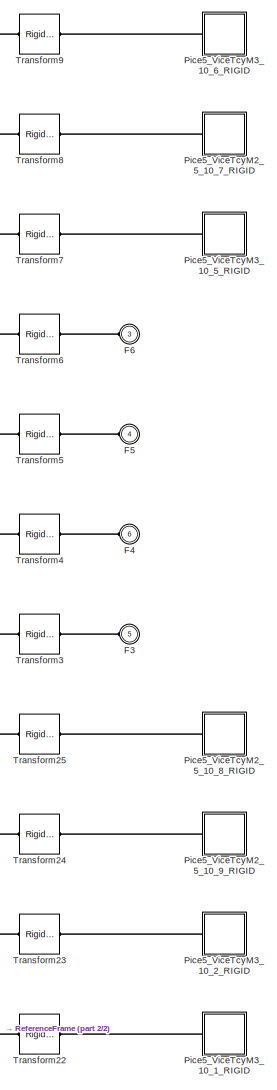
[diagram: RD_SM2/Nacelle1_1_RIGID - part 1/2, top center region]
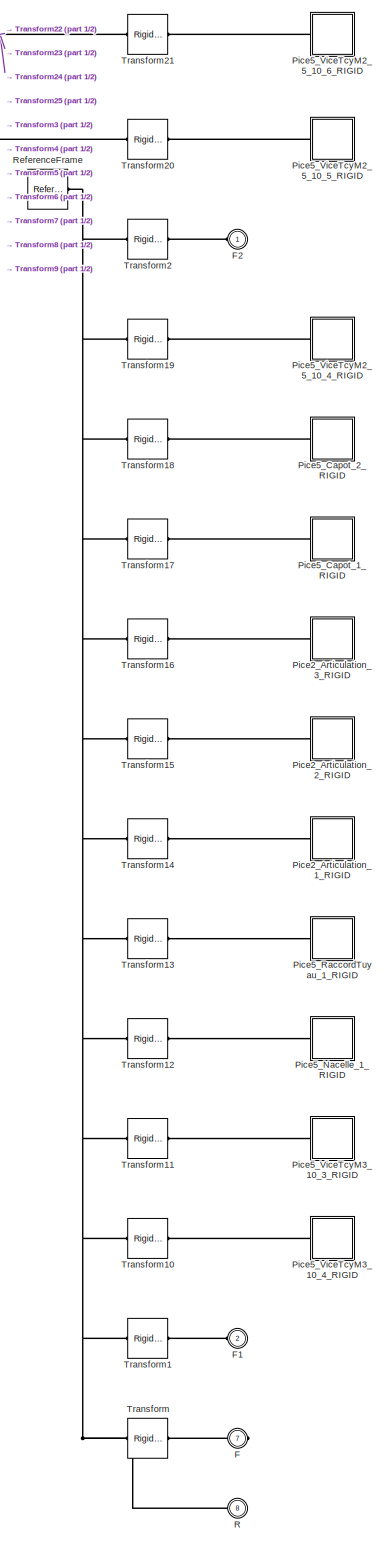
[diagram: RD_SM2/Nacelle1_1_RIGID - part 2/2, full width, bottom band]
BLOCK [SubSystem] RD_SM2/Nacelle1_1_RIGID
  Ports = [0, 0, 0, 0, 0, 6, 2]
  RequestExecContextInheritance = off
BLOCK [PMIOPort] RD_SM2/Nacelle1_1_RIGID/F
  Port = 7
  Side = Right
BLOCK [PMIOPort] RD_SM2/Nacelle1_1_RIGID/F1
  Port = 2
  Side = Left
BLOCK [PMIOPort] RD_SM2/Nacelle1_1_RIGID/F2
  Port = 1
  Side = Left
BLOCK [PMIOPort] RD_SM2/Nacelle1_1_RIGID/F3
  Port = 5
  Side = Left
BLOCK [PMIOPort] RD_SM2/Nacelle1_1_RIGID/F4
  Port = 6
  Side = Left
BLOCK [PMIOPort] RD_SM2/Nacelle1_1_RIGID/F5
  Port = 4
  Side = Left
BLOCK [PMIOPort] RD_SM2/Nacelle1_1_RIGID/F6
  Port = 3
  Side = Left
BLOCK [SubSystem] RD_SM2/Nacelle1_1_RIGID/Pice2_Articulation_1_RIGID
  Ports = [0, 0, 0, 0, 0, 1]
  RequestExecContextInheritance = off
BLOCK [PMIOPort] RD_SM2/Nacelle1_1_RIGID/Pice2_Articulation_1_RIGID/F
  Port = 1
  Side = Left
BLOCK [Reference] RD_SM2/Nacelle1_1_RIGID/Pice2_Articulation_1_RIGID/ReferenceFrame  REF=sm_lib/Frames and
Transforms/Reference
Frame
  BlockFunction = simmechanics.library.frames_transforms.reference_frame
  ClassName = ReferenceFrame
  LogSimulationData = off
  Ports = [0, 0, 0, 0, 0, 0, 1]
  SourceBlock = sm_lib/Frames and\nTransforms/Reference\nFrame
  SourceType = Reference\nFrame
BLOCK [Reference] RD_SM2/Nacelle1_1_RIGID/Pice2_Articulation_1_RIGID/Solid  REF=sm_lib/Body Elements/Solid
  BlockFunction = simmechanics.library.body_elements.solid
  BrickDimensionUnits = m
  BrickDimensions = [1 1 1]
  CenterOfMass = [0.00033574621656655933 0.00022089773039511633 0.0006440536256338877]
  CenterOfMassUnits = mm
  ClassName = Solid
  CylinderLength = 1
  CylinderLengthUnits = m
  CylinderRadius = 1
  CylinderRadiusUnits = m
  Density = 1000
  DensityBased = on
  DensityUnits = kg/(m^3)
  EllipsoidRadii = [1 1 1]
  EllipsoidRadiiUnits = m
  ExtGeomFileName = Pièce2_Articulation_Défaut_sldprt.STL
  ExtGeomFileType = STL
  ExtGeomFileUnits = mm
  ExtrusionCrossSection = [1 1; -1 1; -1 -1; 1 -1]
  ExtrusionCrossSectionUnits = m
  ExtrusionLength = 1
  ExtrusionLengthUnits = m
  GeometryShape = FromFile
  GraphicAmbientColor = [0.15 0.15 0.15 1.0]
  GraphicDiffuseColor = [0.89803921568627454 0.91764705882352937 0.92941176470588238]
  GraphicEmissiveColor = [0.0 0.0 0.0 1.0]
  GraphicOpacity = 1
  GraphicShininess = 75
  GraphicSpecularColor = [0.5 0.5 0.5 1.0]
  GraphicType = FromGeometry
  GraphicVisPropType = SimpleVisualProperties
  InertiaType = Custom
  LogSimulationData = off
  MarkerShape = Sphere
  MarkerSize = 10
  MarkerSizeUnits = m
  Mass = 0.0056398135240733477
  MassUnits = kg
  MomentsOfInertia = [0.038410750825591464 1.5292372879249023 1.5286124467232576]
  MomentsOfInertiaUnits = kg*mm^2
  PolygonNumSides = 3
  PolygonOuterRadius = 1
  PolygonOuterRadiusUnits = m
  Ports = [0, 0, 0, 0, 0, 0, 1]
  ProductsOfInertia = [-3.861246313921904e-06 -5.868775160801616e-06 -1.9111244535371297e-06]
  ProductsOfInertiaUnits = kg*mm^2
  RectangleSize = [1 1]
  RectangleSizeUnits = m
  RevolutionAngle = 180
  RevolutionAngleUnits = deg
  RevolutionCrossSection = [1 1; 1 -1; 2 -1; 2 1]
  RevolutionCrossSectionUnits = m
  RevolutionExtent = Full
  SourceBlock = sm_lib/Body Elements/Solid
  SourceType = Solid
  SphereRadius = 1
  SphereRadiusUnits = m
BLOCK [SubSystem] RD_SM2/Nacelle1_1_RIGID/Pice2_Articulation_2_RIGID
  Ports = [0, 0, 0, 0, 0, 1]
  RequestExecContextInheritance = off
BLOCK [PMIOPort] RD_SM2/Nacelle1_1_RIGID/Pice2_Articulation_2_RIGID/F
  Port = 1
  Side = Left
BLOCK [Reference] RD_SM2/Nacelle1_1_RIGID/Pice2_Articulation_2_RIGID/ReferenceFrame  REF=sm_lib/Frames and
Transforms/Reference
Frame
  BlockFunction = simmechanics.library.frames_transforms.reference_frame
  ClassName = ReferenceFrame
  LogSimulationData = off
  Ports = [0, 0, 0, 0, 0, 0, 1]
  SourceBlock = sm_lib/Frames and\nTransforms/Reference\nFrame
  SourceType = Reference\nFrame
BLOCK [Reference] RD_SM2/Nacelle1_1_RIGID/Pice2_Articulation_2_RIGID/Solid  REF=sm_lib/Body Elements/Solid
  BlockFunction = simmechanics.library.body_elements.solid
  BrickDimensionUnits = m
  BrickDimensions = [1 1 1]
  CenterOfMass = [0.00033574621656655933 0.00022089773039511633 0.0006440536256338877]
  CenterOfMassUnits = mm
  ClassName = Solid
  CylinderLength = 1
  CylinderLengthUnits = m
  CylinderRadius = 1
  CylinderRadiusUnits = m
  Density = 1000
  DensityBased = on
  DensityUnits = kg/(m^3)
  EllipsoidRadii = [1 1 1]
  EllipsoidRadiiUnits = m
  ExtGeomFileName = Pièce2_Articulation_Défaut_sldprt.STL
  ExtGeomFileType = STL
  ExtGeomFileUnits = mm
  ExtrusionCrossSection = [1 1; -1 1; -1 -1; 1 -1]
  ExtrusionCrossSectionUnits = m
  ExtrusionLength = 1
  ExtrusionLengthUnits = m
  GeometryShape = FromFile
  GraphicAmbientColor = [0.15 0.15 0.15 1.0]
  GraphicDiffuseColor = [0.89803921568627454 0.91764705882352937 0.92941176470588238]
  GraphicEmissiveColor = [0.0 0.0 0.0 1.0]
  GraphicOpacity = 1
  GraphicShininess = 75
  GraphicSpecularColor = [0.5 0.5 0.5 1.0]
  GraphicType = FromGeometry
  GraphicVisPropType = SimpleVisualProperties
  InertiaType = Custom
  LogSimulationData = off
  MarkerShape = Sphere
  MarkerSize = 10
  MarkerSizeUnits = m
  Mass = 0.0056398135240733477
  MassUnits = kg
  MomentsOfInertia = [0.038410750825591464 1.5292372879249023 1.5286124467232576]
  MomentsOfInertiaUnits = kg*mm^2
  PolygonNumSides = 3
  PolygonOuterRadius = 1
  PolygonOuterRadiusUnits = m
  Ports = [0, 0, 0, 0, 0, 0, 1]
  ProductsOfInertia = [-3.861246313921904e-06 -5.868775160801616e-06 -1.9111244535371297e-06]
  ProductsOfInertiaUnits = kg*mm^2
  RectangleSize = [1 1]
  RectangleSizeUnits = m
  RevolutionAngle = 180
  RevolutionAngleUnits = deg
  RevolutionCrossSection = [1 1; 1 -1; 2 -1; 2 1]
  RevolutionCrossSectionUnits = m
  RevolutionExtent = Full
  SourceBlock = sm_lib/Body Elements/Solid
  SourceType = Solid
  SphereRadius = 1
  SphereRadiusUnits = m
BLOCK [SubSystem] RD_SM2/Nacelle1_1_RIGID/Pice2_Articulation_3_RIGID
  Ports = [0, 0, 0, 0, 0, 1]
  RequestExecContextInheritance = off
BLOCK [PMIOPort] RD_SM2/Nacelle1_1_RIGID/Pice2_Articulation_3_RIGID/F
  Port = 1
  Side = Left
BLOCK [Reference] RD_SM2/Nacelle1_1_RIGID/Pice2_Articulation_3_RIGID/ReferenceFrame  REF=sm_lib/Frames and
Transforms/Reference
Frame
  BlockFunction = simmechanics.library.frames_transforms.reference_frame
  ClassName = ReferenceFrame
  LogSimulationData = off
  Ports = [0, 0, 0, 0, 0, 0, 1]
  SourceBlock = sm_lib/Frames and\nTransforms/Reference\nFrame
  SourceType = Reference\nFrame
BLOCK [Reference] RD_SM2/Nacelle1_1_RIGID/Pice2_Articulation_3_RIGID/Solid  REF=sm_lib/Body Elements/Solid
  BlockFunction = simmechanics.library.body_elements.solid
  BrickDimensionUnits = m
  BrickDimensions = [1 1 1]
  CenterOfMass = [0.00033574621656655933 0.00022089773039511633 0.0006440536256338877]
  CenterOfMassUnits = mm
  ClassName = Solid
  CylinderLength = 1
  CylinderLengthUnits = m
  CylinderRadius = 1
  CylinderRadiusUnits = m
  Density = 1000
  DensityBased = on
  DensityUnits = kg/(m^3)
  EllipsoidRadii = [1 1 1]
  EllipsoidRadiiUnits = m
  ExtGeomFileName = Pièce2_Articulation_Défaut_sldprt.STL
  ExtGeomFileType = STL
  ExtGeomFileUnits = mm
  ExtrusionCrossSection = [1 1; -1 1; -1 -1; 1 -1]
  ExtrusionCrossSectionUnits = m
  ExtrusionLength = 1
  ExtrusionLengthUnits = m
  GeometryShape = FromFile
  GraphicAmbientColor = [0.15 0.15 0.15 1.0]
  GraphicDiffuseColor = [0.89803921568627454 0.91764705882352937 0.92941176470588238]
  GraphicEmissiveColor = [0.0 0.0 0.0 1.0]
  GraphicOpacity = 1
  GraphicShininess = 75
  GraphicSpecularColor = [0.5 0.5 0.5 1.0]
  GraphicType = FromGeometry
  GraphicVisPropType = SimpleVisualProperties
  InertiaType = Custom
  LogSimulationData = off
  MarkerShape = Sphere
  MarkerSize = 10
  MarkerSizeUnits = m
  Mass = 0.0056398135240733477
  MassUnits = kg
  MomentsOfInertia = [0.038410750825591464 1.5292372879249023 1.5286124467232576]
  MomentsOfInertiaUnits = kg*mm^2
  PolygonNumSides = 3
  PolygonOuterRadius = 1
  PolygonOuterRadiusUnits = m
  Ports = [0, 0, 0, 0, 0, 0, 1]
  ProductsOfInertia = [-3.861246313921904e-06 -5.868775160801616e-06 -1.9111244535371297e-06]
  ProductsOfInertiaUnits = kg*mm^2
  RectangleSize = [1 1]
  RectangleSizeUnits = m
  RevolutionAngle = 180
  RevolutionAngleUnits = deg
  RevolutionCrossSection = [1 1; 1 -1; 2 -1; 2 1]
  RevolutionCrossSectionUnits = m
  RevolutionExtent = Full
  SourceBlock = sm_lib/Body Elements/Solid
  SourceType = Solid
  SphereRadius = 1
  SphereRadiusUnits = m
BLOCK [SubSystem] RD_SM2/Nacelle1_1_RIGID/Pice5_Capot_1_RIGID
  Ports = [0, 0, 0, 0, 0, 1]
  RequestExecContextInheritance = off
BLOCK [PMIOPort] RD_SM2/Nacelle1_1_RIGID/Pice5_Capot_1_RIGID/F
  Port = 1
  Side = Left
BLOCK [Reference] RD_SM2/Nacelle1_1_RIGID/Pice5_Capot_1_RIGID/ReferenceFrame  REF=sm_lib/Frames and
Transforms/Reference
Frame
  BlockFunction = simmechanics.library.frames_transforms.reference_frame
  ClassName = ReferenceFrame
  LogSimulationData = off
  Ports = [0, 0, 0, 0, 0, 0, 1]
  SourceBlock = sm_lib/Frames and\nTransforms/Reference\nFrame
  SourceType = Reference\nFrame
BLOCK [Reference] RD_SM2/Nacelle1_1_RIGID/Pice5_Capot_1_RIGID/Solid  REF=sm_lib/Body Elements/Solid
  BlockFunction = simmechanics.library.body_elements.solid
  BrickDimensionUnits = m
  BrickDimensions = [1 1 1]
  CenterOfMass = [0 0 4.2727195246676075]
  CenterOfMassUnits = mm
  ClassName = Solid
  CylinderLength = 1
  CylinderLengthUnits = m
  CylinderRadius = 1
  CylinderRadiusUnits = m
  Density = 1000
  DensityBased = on
  DensityUnits = kg/(m^3)
  EllipsoidRadii = [1 1 1]
  EllipsoidRadiiUnits = m
  ExtGeomFileName = Pièce5_Capot_Défaut_sldprt.STL
  ExtGeomFileType = STL
  ExtGeomFileUnits = mm
  ExtrusionCrossSection = [1 1; -1 1; -1 -1; 1 -1]
  ExtrusionCrossSectionUnits = m
  ExtrusionLength = 1
  ExtrusionLengthUnits = m
  GeometryShape = FromFile
  GraphicAmbientColor = [0.15 0.15 0.15 1.0]
  GraphicDiffuseColor = [0.69999999999999996 0.65607843137254895 0.096078431372549025]
  GraphicEmissiveColor = [0.0 0.0 0.0 1.0]
  GraphicOpacity = 1
  GraphicShininess = 75
  GraphicSpecularColor = [0.5 0.5 0.5 1.0]
  GraphicType = FromGeometry
  GraphicVisPropType = SimpleVisualProperties
  InertiaType = Custom
  LogSimulationData = off
  MarkerShape = Sphere
  MarkerSize = 10
  MarkerSizeUnits = m
  Mass = 0.0022415946879765329
  MassUnits = kg
  MomentsOfInertia = [0.11673685557005838 0.11673685557005835 0.22338704330312109]
  MomentsOfInertiaUnits = kg*mm^2
  PolygonNumSides = 3
  PolygonOuterRadius = 1
  PolygonOuterRadiusUnits = m
  Ports = [0, 0, 0, 0, 0, 0, 1]
  ProductsOfInertia = [0 0 0]
  ProductsOfInertiaUnits = kg*mm^2
  RectangleSize = [1 1]
  RectangleSizeUnits = m
  RevolutionAngle = 180
  RevolutionAngleUnits = deg
  RevolutionCrossSection = [1 1; 1 -1; 2 -1; 2 1]
  RevolutionCrossSectionUnits = m
  RevolutionExtent = Full
  SourceBlock = sm_lib/Body Elements/Solid
  SourceType = Solid
  SphereRadius = 1
  SphereRadiusUnits = m
BLOCK [SubSystem] RD_SM2/Nacelle1_1_RIGID/Pice5_Capot_2_RIGID
  Ports = [0, 0, 0, 0, 0, 1]
  RequestExecContextInheritance = off
BLOCK [PMIOPort] RD_SM2/Nacelle1_1_RIGID/Pice5_Capot_2_RIGID/F
  Port = 1
  Side = Left
BLOCK [Reference] RD_SM2/Nacelle1_1_RIGID/Pice5_Capot_2_RIGID/ReferenceFrame  REF=sm_lib/Frames and
Transforms/Reference
Frame
  BlockFunction = simmechanics.library.frames_transforms.reference_frame
  ClassName = ReferenceFrame
  LogSimulationData = off
  Ports = [0, 0, 0, 0, 0, 0, 1]
  SourceBlock = sm_lib/Frames and\nTransforms/Reference\nFrame
  SourceType = Reference\nFrame
BLOCK [Reference] RD_SM2/Nacelle1_1_RIGID/Pice5_Capot_2_RIGID/Solid  REF=sm_lib/Body Elements/Solid
  BlockFunction = simmechanics.library.body_elements.solid
  BrickDimensionUnits = m
  BrickDimensions = [1 1 1]
  CenterOfMass = [0 0 4.2727195246676075]
  CenterOfMassUnits = mm
  ClassName = Solid
  CylinderLength = 1
  CylinderLengthUnits = m
  CylinderRadius = 1
  CylinderRadiusUnits = m
  Density = 1000
  DensityBased = on
  DensityUnits = kg/(m^3)
  EllipsoidRadii = [1 1 1]
  EllipsoidRadiiUnits = m
  ExtGeomFileName = Pièce5_Capot_Défaut_sldprt.STL
  ExtGeomFileType = STL
  ExtGeomFileUnits = mm
  ExtrusionCrossSection = [1 1; -1 1; -1 -1; 1 -1]
  ExtrusionCrossSectionUnits = m
  ExtrusionLength = 1
  ExtrusionLengthUnits = m
  GeometryShape = FromFile
  GraphicAmbientColor = [0.15 0.15 0.15 1.0]
  GraphicDiffuseColor = [0.69999999999999996 0.65607843137254895 0.096078431372549025]
  GraphicEmissiveColor = [0.0 0.0 0.0 1.0]
  GraphicOpacity = 1
  GraphicShininess = 75
  GraphicSpecularColor = [0.5 0.5 0.5 1.0]
  GraphicType = FromGeometry
  GraphicVisPropType = SimpleVisualProperties
  InertiaType = Custom
  LogSimulationData = off
  MarkerShape = Sphere
  MarkerSize = 10
  MarkerSizeUnits = m
  Mass = 0.0022415946879765329
  MassUnits = kg
  MomentsOfInertia = [0.11673685557005838 0.11673685557005835 0.22338704330312109]
  MomentsOfInertiaUnits = kg*mm^2
  PolygonNumSides = 3
  PolygonOuterRadius = 1
  PolygonOuterRadiusUnits = m
  Ports = [0, 0, 0, 0, 0, 0, 1]
  ProductsOfInertia = [0 0 0]
  ProductsOfInertiaUnits = kg*mm^2
  RectangleSize = [1 1]
  RectangleSizeUnits = m
  RevolutionAngle = 180
  RevolutionAngleUnits = deg
  RevolutionCrossSection = [1 1; 1 -1; 2 -1; 2 1]
  RevolutionCrossSectionUnits = m
  RevolutionExtent = Full
  SourceBlock = sm_lib/Body Elements/Solid
  SourceType = Solid
  SphereRadius = 1
  SphereRadiusUnits = m
BLOCK [SubSystem] RD_SM2/Nacelle1_1_RIGID/Pice5_Nacelle_1_RIGID
  Ports = [0, 0, 0, 0, 0, 1]
  RequestExecContextInheritance = off
BLOCK [PMIOPort] RD_SM2/Nacelle1_1_RIGID/Pice5_Nacelle_1_RIGID/F
  Port = 1
  Side = Left
BLOCK [Reference] RD_SM2/Nacelle1_1_RIGID/Pice5_Nacelle_1_RIGID/ReferenceFrame  REF=sm_lib/Frames and
Transforms/Reference
Frame
  BlockFunction = simmechanics.library.frames_transforms.reference_frame
  ClassName = ReferenceFrame
  LogSimulationData = off
  Ports = [0, 0, 0, 0, 0, 0, 1]
  SourceBlock = sm_lib/Frames and\nTransforms/Reference\nFrame
  SourceType = Reference\nFrame
BLOCK [Reference] RD_SM2/Nacelle1_1_RIGID/Pice5_Nacelle_1_RIGID/Solid  REF=sm_lib/Body Elements/Solid
  BlockFunction = simmechanics.library.body_elements.solid
  BrickDimensionUnits = m
  BrickDimensions = [1 1 1]
  CenterOfMass = [8.8040653362624461e-06 0.3007901671537343 1.1662239169509746e-05]
  CenterOfMassUnits = mm
  ClassName = Solid
  CylinderLength = 1
  CylinderLengthUnits = m
  CylinderRadius = 1
  CylinderRadiusUnits = m
  Density = 1000
  DensityBased = on
  DensityUnits = kg/(m^3)
  EllipsoidRadii = [1 1 1]
  EllipsoidRadiiUnits = m
  ExtGeomFileName = Pièce5_Nacelle_Défaut_sldprt.STL
  ExtGeomFileType = STL
  ExtGeomFileUnits = mm
  ExtrusionCrossSection = [1 1; -1 1; -1 -1; 1 -1]
  ExtrusionCrossSectionUnits = m
  ExtrusionLength = 1
  ExtrusionLengthUnits = m
  GeometryShape = FromFile
  GraphicAmbientColor = [0.15 0.15 0.15 1.0]
  GraphicDiffuseColor = [0.792156862745098 0.81960784313725488 0.93333333333333335]
  GraphicEmissiveColor = [0.0 0.0 0.0 1.0]
  GraphicOpacity = 1
  GraphicShininess = 75
  GraphicSpecularColor = [0.5 0.5 0.5 1.0]
  GraphicType = FromGeometry
  GraphicVisPropType = SimpleVisualProperties
  InertiaType = Custom
  LogSimulationData = off
  MarkerShape = Sphere
  MarkerSize = 10
  MarkerSizeUnits = m
  Mass = 0.007207022497535881
  MassUnits = kg
  MomentsOfInertia = [0.91058531540404986 0.93211729508120755 1.7140739968454575]
  MomentsOfInertiaUnits = kg*mm^2
  PolygonNumSides = 3
  PolygonOuterRadius = 1
  PolygonOuterRadiusUnits = m
  Ports = [0, 0, 0, 0, 0, 0, 1]
  ProductsOfInertia = [4.9672223488181595e-07 2.3615805210408121e-06 4.75271588552611e-07]
  ProductsOfInertiaUnits = kg*mm^2
  RectangleSize = [1 1]
  RectangleSizeUnits = m
  RevolutionAngle = 180
  RevolutionAngleUnits = deg
  RevolutionCrossSection = [1 1; 1 -1; 2 -1; 2 1]
  RevolutionCrossSectionUnits = m
  RevolutionExtent = Full
  SourceBlock = sm_lib/Body Elements/Solid
  SourceType = Solid
  SphereRadius = 1
  SphereRadiusUnits = m
BLOCK [SubSystem] RD_SM2/Nacelle1_1_RIGID/Pice5_RaccordTuyau_1_RIGID
  Ports = [0, 0, 0, 0, 0, 1]
  RequestExecContextInheritance = off
BLOCK [PMIOPort] RD_SM2/Nacelle1_1_RIGID/Pice5_RaccordTuyau_1_RIGID/F
  Port = 1
  Side = Left
BLOCK [Reference] RD_SM2/Nacelle1_1_RIGID/Pice5_RaccordTuyau_1_RIGID/ReferenceFrame  REF=sm_lib/Frames and
Transforms/Reference
Frame
  BlockFunction = simmechanics.library.frames_transforms.reference_frame
  ClassName = ReferenceFrame
  LogSimulationData = off
  Ports = [0, 0, 0, 0, 0, 0, 1]
  SourceBlock = sm_lib/Frames and\nTransforms/Reference\nFrame
  SourceType = Reference\nFrame
BLOCK [Reference] RD_SM2/Nacelle1_1_RIGID/Pice5_RaccordTuyau_1_RIGID/Solid  REF=sm_lib/Body Elements/Solid
  BlockFunction = simmechanics.library.body_elements.solid
  BrickDimensionUnits = m
  BrickDimensions = [1 1 1]
  CenterOfMass = [8.9048492297952924e-05 -6.297881377214666 1.73621531419621]
  CenterOfMassUnits = mm
  ClassName = Solid
  CylinderLength = 1
  CylinderLengthUnits = m
  CylinderRadius = 1
  CylinderRadiusUnits = m
  Density = 1000
  DensityBased = on
  DensityUnits = kg/(m^3)
  EllipsoidRadii = [1 1 1]
  EllipsoidRadiiUnits = m
  ExtGeomFileName = Pièce5_RaccordTuyau_Défaut_sldprt.STL
  ExtGeomFileType = STL
  ExtGeomFileUnits = mm
  ExtrusionCrossSection = [1 1; -1 1; -1 -1; 1 -1]
  ExtrusionCrossSectionUnits = m
  ExtrusionLength = 1
  ExtrusionLengthUnits = m
  GeometryShape = FromFile
  GraphicAmbientColor = [0.15 0.15 0.15 1.0]
  GraphicDiffuseColor = [0.89803921568627454 0.91764705882352937 0.92941176470588238]
  GraphicEmissiveColor = [0.0 0.0 0.0 1.0]
  GraphicOpacity = 1
  GraphicShininess = 75
  GraphicSpecularColor = [0.5 0.5 0.5 1.0]
  GraphicType = FromGeometry
  GraphicVisPropType = SimpleVisualProperties
  InertiaType = Custom
  LogSimulationData = off
  MarkerShape = Sphere
  MarkerSize = 10
  MarkerSizeUnits = m
  Mass = 0.0013533454227784994
  MassUnits = kg
  MomentsOfInertia = [0.080296658489818817 0.015562095502041627 0.077169827426906229]
  MomentsOfInertiaUnits = kg*mm^2
  PolygonNumSides = 3
  PolygonOuterRadius = 1
  PolygonOuterRadiusUnits = m
  Ports = [0, 0, 0, 0, 0, 0, 1]
  ProductsOfInertia = [-0.0062797847373196715 3.974467512107694e-07 7.1701331896184499e-07]
  ProductsOfInertiaUnits = kg*mm^2
  RectangleSize = [1 1]
  RectangleSizeUnits = m
  RevolutionAngle = 180
  RevolutionAngleUnits = deg
  RevolutionCrossSection = [1 1; 1 -1; 2 -1; 2 1]
  RevolutionCrossSectionUnits = m
  RevolutionExtent = Full
  SourceBlock = sm_lib/Body Elements/Solid
  SourceType = Solid
  SphereRadius = 1
  SphereRadiusUnits = m
BLOCK [SubSystem] RD_SM2/Nacelle1_1_RIGID/Pice5_ViceTcyM2_5_10_4_RIGID
  Ports = [0, 0, 0, 0, 0, 1]
  RequestExecContextInheritance = off
BLOCK [PMIOPort] RD_SM2/Nacelle1_1_RIGID/Pice5_ViceTcyM2_5_10_4_RIGID/F
  Port = 1
  Side = Left
BLOCK [Reference] RD_SM2/Nacelle1_1_RIGID/Pice5_ViceTcyM2_5_10_4_RIGID/ReferenceFrame  REF=sm_lib/Frames and
Transforms/Reference
Frame
  BlockFunction = simmechanics.library.frames_transforms.reference_frame
  ClassName = ReferenceFrame
  LogSimulationData = off
  Ports = [0, 0, 0, 0, 0, 0, 1]
  SourceBlock = sm_lib/Frames and\nTransforms/Reference\nFrame
  SourceType = Reference\nFrame
BLOCK [Reference] RD_SM2/Nacelle1_1_RIGID/Pice5_ViceTcyM2_5_10_4_RIGID/Solid  REF=sm_lib/Body Elements/Solid
  BlockFunction = simmechanics.library.body_elements.solid
  BrickDimensionUnits = m
  BrickDimensions = [1 1 1]
  CenterOfMass = [0 0 3.9655171988594056]
  CenterOfMassUnits = mm
  ClassName = Solid
  CylinderLength = 1
  CylinderLengthUnits = m
  CylinderRadius = 1
  CylinderRadiusUnits = m
  Density = 1000
  DensityBased = on
  DensityUnits = kg/(m^3)
  EllipsoidRadii = [1 1 1]
  EllipsoidRadiiUnits = m
  ExtGeomFileName = Pièce5_ViceTcyM2_Défaut_sldprt.STL
  ExtGeomFileType = STL
  ExtGeomFileUnits = mm
  ExtrusionCrossSection = [1 1; -1 1; -1 -1; 1 -1]
  ExtrusionCrossSectionUnits = m
  ExtrusionLength = 1
  ExtrusionLengthUnits = m
  GeometryShape = FromFile
  GraphicAmbientColor = [0.15 0.15 0.15 1.0]
  GraphicDiffuseColor = [0.59999999999999998 0.59999999999999998 0.59999999999999998]
  GraphicEmissiveColor = [0.0 0.0 0.0 1.0]
  GraphicOpacity = 1
  GraphicShininess = 75
  GraphicSpecularColor = [0.5 0.5 0.5 1.0]
  GraphicType = FromGeometry
  GraphicVisPropType = SimpleVisualProperties
  InertiaType = Custom
  LogSimulationData = off
  MarkerShape = Sphere
  MarkerSize = 10
  MarkerSizeUnits = m
  Mass = 0.00049933589436536416
  MassUnits = kg
  MomentsOfInertia = [0.004460587473099192 0.0044510410072487712 0.00064470946251572465]
  MomentsOfInertiaUnits = kg*mm^2
  PolygonNumSides = 3
  PolygonOuterRadius = 1
  PolygonOuterRadiusUnits = m
  Ports = [0, 0, 0, 0, 0, 0, 1]
  ProductsOfInertia = [0 0 0]
  ProductsOfInertiaUnits = kg*mm^2
  RectangleSize = [1 1]
  RectangleSizeUnits = m
  RevolutionAngle = 180
  RevolutionAngleUnits = deg
  RevolutionCrossSection = [1 1; 1 -1; 2 -1; 2 1]
  RevolutionCrossSectionUnits = m
  RevolutionExtent = Full
  SourceBlock = sm_lib/Body Elements/Solid
  SourceType = Solid
  SphereRadius = 1
  SphereRadiusUnits = m
BLOCK [SubSystem] RD_SM2/Nacelle1_1_RIGID/Pice5_ViceTcyM2_5_10_5_RIGID
  Ports = [0, 0, 0, 0, 0, 1]
  RequestExecContextInheritance = off
BLOCK [PMIOPort] RD_SM2/Nacelle1_1_RIGID/Pice5_ViceTcyM2_5_10_5_RIGID/F
  Port = 1
  Side = Left
BLOCK [Reference] RD_SM2/Nacelle1_1_RIGID/Pice5_ViceTcyM2_5_10_5_RIGID/ReferenceFrame  REF=sm_lib/Frames and
Transforms/Reference
Frame
  BlockFunction = simmechanics.library.frames_transforms.reference_frame
  ClassName = ReferenceFrame
  LogSimulationData = off
  Ports = [0, 0, 0, 0, 0, 0, 1]
  SourceBlock = sm_lib/Frames and\nTransforms/Reference\nFrame
  SourceType = Reference\nFrame
BLOCK [Reference] RD_SM2/Nacelle1_1_RIGID/Pice5_ViceTcyM2_5_10_5_RIGID/Solid  REF=sm_lib/Body Elements/Solid
  BlockFunction = simmechanics.library.body_elements.solid
  BrickDimensionUnits = m
  BrickDimensions = [1 1 1]
  CenterOfMass = [0 0 3.9655171988594056]
  CenterOfMassUnits = mm
  ClassName = Solid
  CylinderLength = 1
  CylinderLengthUnits = m
  CylinderRadius = 1
  CylinderRadiusUnits = m
  Density = 1000
  DensityBased = on
  DensityUnits = kg/(m^3)
  EllipsoidRadii = [1 1 1]
  EllipsoidRadiiUnits = m
  ExtGeomFileName = Pièce5_ViceTcyM2_Défaut_sldprt.STL
  ExtGeomFileType = STL
  ExtGeomFileUnits = mm
  ExtrusionCrossSection = [1 1; -1 1; -1 -1; 1 -1]
  ExtrusionCrossSectionUnits = m
  ExtrusionLength = 1
  ExtrusionLengthUnits = m
  GeometryShape = FromFile
  GraphicAmbientColor = [0.15 0.15 0.15 1.0]
  GraphicDiffuseColor = [0.59999999999999998 0.59999999999999998 0.59999999999999998]
  GraphicEmissiveColor = [0.0 0.0 0.0 1.0]
  GraphicOpacity = 1
  GraphicShininess = 75
  GraphicSpecularColor = [0.5 0.5 0.5 1.0]
  GraphicType = FromGeometry
  GraphicVisPropType = SimpleVisualProperties
  InertiaType = Custom
  LogSimulationData = off
  MarkerShape = Sphere
  MarkerSize = 10
  MarkerSizeUnits = m
  Mass = 0.00049933589436536416
  MassUnits = kg
  MomentsOfInertia = [0.004460587473099192 0.0044510410072487712 0.00064470946251572465]
  MomentsOfInertiaUnits = kg*mm^2
  PolygonNumSides = 3
  PolygonOuterRadius = 1
  PolygonOuterRadiusUnits = m
  Ports = [0, 0, 0, 0, 0, 0, 1]
  ProductsOfInertia = [0 0 0]
  ProductsOfInertiaUnits = kg*mm^2
  RectangleSize = [1 1]
  RectangleSizeUnits = m
  RevolutionAngle = 180
  RevolutionAngleUnits = deg
  RevolutionCrossSection = [1 1; 1 -1; 2 -1; 2 1]
  RevolutionCrossSectionUnits = m
  RevolutionExtent = Full
  SourceBlock = sm_lib/Body Elements/Solid
  SourceType = Solid
  SphereRadius = 1
  SphereRadiusUnits = m
BLOCK [SubSystem] RD_SM2/Nacelle1_1_RIGID/Pice5_ViceTcyM2_5_10_6_RIGID
  Ports = [0, 0, 0, 0, 0, 1]
  RequestExecContextInheritance = off
BLOCK [PMIOPort] RD_SM2/Nacelle1_1_RIGID/Pice5_ViceTcyM2_5_10_6_RIGID/F
  Port = 1
  Side = Left
BLOCK [Reference] RD_SM2/Nacelle1_1_RIGID/Pice5_ViceTcyM2_5_10_6_RIGID/ReferenceFrame  REF=sm_lib/Frames and
Transforms/Reference
Frame
  BlockFunction = simmechanics.library.frames_transforms.reference_frame
  ClassName = ReferenceFrame
  LogSimulationData = off
  Ports = [0, 0, 0, 0, 0, 0, 1]
  SourceBlock = sm_lib/Frames and\nTransforms/Reference\nFrame
  SourceType = Reference\nFrame
BLOCK [Reference] RD_SM2/Nacelle1_1_RIGID/Pice5_ViceTcyM2_5_10_6_RIGID/Solid  REF=sm_lib/Body Elements/Solid
  BlockFunction = simmechanics.library.body_elements.solid
  BrickDimensionUnits = m
  BrickDimensions = [1 1 1]
  CenterOfMass = [0 0 3.9655171988594056]
  CenterOfMassUnits = mm
  ClassName = Solid
  CylinderLength = 1
  CylinderLengthUnits = m
  CylinderRadius = 1
  CylinderRadiusUnits = m
  Density = 1000
  DensityBased = on
  DensityUnits = kg/(m^3)
  EllipsoidRadii = [1 1 1]
  EllipsoidRadiiUnits = m
  ExtGeomFileName = Pièce5_ViceTcyM2_Défaut_sldprt.STL
  ExtGeomFileType = STL
  ExtGeomFileUnits = mm
  ExtrusionCrossSection = [1 1; -1 1; -1 -1; 1 -1]
  ExtrusionCrossSectionUnits = m
  ExtrusionLength = 1
  ExtrusionLengthUnits = m
  GeometryShape = FromFile
  GraphicAmbientColor = [0.15 0.15 0.15 1.0]
  GraphicDiffuseColor = [0.59999999999999998 0.59999999999999998 0.59999999999999998]
  GraphicEmissiveColor = [0.0 0.0 0.0 1.0]
  GraphicOpacity = 1
  GraphicShininess = 75
  GraphicSpecularColor = [0.5 0.5 0.5 1.0]
  GraphicType = FromGeometry
  GraphicVisPropType = SimpleVisualProperties
  InertiaType = Custom
  LogSimulationData = off
  MarkerShape = Sphere
  MarkerSize = 10
  MarkerSizeUnits = m
  Mass = 0.00049933589436536416
  MassUnits = kg
  MomentsOfInertia = [0.004460587473099192 0.0044510410072487712 0.00064470946251572465]
  MomentsOfInertiaUnits = kg*mm^2
  PolygonNumSides = 3
  PolygonOuterRadius = 1
  PolygonOuterRadiusUnits = m
  Ports = [0, 0, 0, 0, 0, 0, 1]
  ProductsOfInertia = [0 0 0]
  ProductsOfInertiaUnits = kg*mm^2
  RectangleSize = [1 1]
  RectangleSizeUnits = m
  RevolutionAngle = 180
  RevolutionAngleUnits = deg
  RevolutionCrossSection = [1 1; 1 -1; 2 -1; 2 1]
  RevolutionCrossSectionUnits = m
  RevolutionExtent = Full
  SourceBlock = sm_lib/Body Elements/Solid
  SourceType = Solid
  SphereRadius = 1
  SphereRadiusUnits = m
BLOCK [SubSystem] RD_SM2/Nacelle1_1_RIGID/Pice5_ViceTcyM2_5_10_7_RIGID
  Ports = [0, 0, 0, 0, 0, 1]
  RequestExecContextInheritance = off
BLOCK [PMIOPort] RD_SM2/Nacelle1_1_RIGID/Pice5_ViceTcyM2_5_10_7_RIGID/F
  Port = 1
  Side = Left
BLOCK [Reference] RD_SM2/Nacelle1_1_RIGID/Pice5_ViceTcyM2_5_10_7_RIGID/ReferenceFrame  REF=sm_lib/Frames and
Transforms/Reference
Frame
  BlockFunction = simmechanics.library.frames_transforms.reference_frame
  ClassName = ReferenceFrame
  LogSimulationData = off
  Ports = [0, 0, 0, 0, 0, 0, 1]
  SourceBlock = sm_lib/Frames and\nTransforms/Reference\nFrame
  SourceType = Reference\nFrame
BLOCK [Reference] RD_SM2/Nacelle1_1_RIGID/Pice5_ViceTcyM2_5_10_7_RIGID/Solid  REF=sm_lib/Body Elements/Solid
  BlockFunction = simmechanics.library.body_elements.solid
  BrickDimensionUnits = m
  BrickDimensions = [1 1 1]
  CenterOfMass = [0 0 3.9655171988594056]
  CenterOfMassUnits = mm
  ClassName = Solid
  CylinderLength = 1
  CylinderLengthUnits = m
  CylinderRadius = 1
  CylinderRadiusUnits = m
  Density = 1000
  DensityBased = on
  DensityUnits = kg/(m^3)
  EllipsoidRadii = [1 1 1]
  EllipsoidRadiiUnits = m
  ExtGeomFileName = Pièce5_ViceTcyM2_Défaut_sldprt.STL
  ExtGeomFileType = STL
  ExtGeomFileUnits = mm
  ExtrusionCrossSection = [1 1; -1 1; -1 -1; 1 -1]
  ExtrusionCrossSectionUnits = m
  ExtrusionLength = 1
  ExtrusionLengthUnits = m
  GeometryShape = FromFile
  GraphicAmbientColor = [0.15 0.15 0.15 1.0]
  GraphicDiffuseColor = [0.59999999999999998 0.59999999999999998 0.59999999999999998]
  GraphicEmissiveColor = [0.0 0.0 0.0 1.0]
  GraphicOpacity = 1
  GraphicShininess = 75
  GraphicSpecularColor = [0.5 0.5 0.5 1.0]
  GraphicType = FromGeometry
  GraphicVisPropType = SimpleVisualProperties
  InertiaType = Custom
  LogSimulationData = off
  MarkerShape = Sphere
  MarkerSize = 10
  MarkerSizeUnits = m
  Mass = 0.00049933589436536416
  MassUnits = kg
  MomentsOfInertia = [0.004460587473099192 0.0044510410072487712 0.00064470946251572465]
  MomentsOfInertiaUnits = kg*mm^2
  PolygonNumSides = 3
  PolygonOuterRadius = 1
  PolygonOuterRadiusUnits = m
  Ports = [0, 0, 0, 0, 0, 0, 1]
  ProductsOfInertia = [0 0 0]
  ProductsOfInertiaUnits = kg*mm^2
  RectangleSize = [1 1]
  RectangleSizeUnits = m
  RevolutionAngle = 180
  RevolutionAngleUnits = deg
  RevolutionCrossSection = [1 1; 1 -1; 2 -1; 2 1]
  RevolutionCrossSectionUnits = m
  RevolutionExtent = Full
  SourceBlock = sm_lib/Body Elements/Solid
  SourceType = Solid
  SphereRadius = 1
  SphereRadiusUnits = m
BLOCK [SubSystem] RD_SM2/Nacelle1_1_RIGID/Pice5_ViceTcyM2_5_10_8_RIGID
  Ports = [0, 0, 0, 0, 0, 1]
  RequestExecContextInheritance = off
BLOCK [PMIOPort] RD_SM2/Nacelle1_1_RIGID/Pice5_ViceTcyM2_5_10_8_RIGID/F
  Port = 1
  Side = Left
BLOCK [Reference] RD_SM2/Nacelle1_1_RIGID/Pice5_ViceTcyM2_5_10_8_RIGID/ReferenceFrame  REF=sm_lib/Frames and
Transforms/Reference
Frame
  BlockFunction = simmechanics.library.frames_transforms.reference_frame
  ClassName = ReferenceFrame
  LogSimulationData = off
  Ports = [0, 0, 0, 0, 0, 0, 1]
  SourceBlock = sm_lib/Frames and\nTransforms/Reference\nFrame
  SourceType = Reference\nFrame
BLOCK [Reference] RD_SM2/Nacelle1_1_RIGID/Pice5_ViceTcyM2_5_10_8_RIGID/Solid  REF=sm_lib/Body Elements/Solid
  BlockFunction = simmechanics.library.body_elements.solid
  BrickDimensionUnits = m
  BrickDimensions = [1 1 1]
  CenterOfMass = [0 0 3.9655171988594056]
  CenterOfMassUnits = mm
  ClassName = Solid
  CylinderLength = 1
  CylinderLengthUnits = m
  CylinderRadius = 1
  CylinderRadiusUnits = m
  Density = 1000
  DensityBased = on
  DensityUnits = kg/(m^3)
  EllipsoidRadii = [1 1 1]
  EllipsoidRadiiUnits = m
  ExtGeomFileName = Pièce5_ViceTcyM2_Défaut_sldprt.STL
  ExtGeomFileType = STL
  ExtGeomFileUnits = mm
  ExtrusionCrossSection = [1 1; -1 1; -1 -1; 1 -1]
  ExtrusionCrossSectionUnits = m
  ExtrusionLength = 1
  ExtrusionLengthUnits = m
  GeometryShape = FromFile
  GraphicAmbientColor = [0.15 0.15 0.15 1.0]
  GraphicDiffuseColor = [0.59999999999999998 0.59999999999999998 0.59999999999999998]
  GraphicEmissiveColor = [0.0 0.0 0.0 1.0]
  GraphicOpacity = 1
  GraphicShininess = 75
  GraphicSpecularColor = [0.5 0.5 0.5 1.0]
  GraphicType = FromGeometry
  GraphicVisPropType = SimpleVisualProperties
  InertiaType = Custom
  LogSimulationData = off
  MarkerShape = Sphere
  MarkerSize = 10
  MarkerSizeUnits = m
  Mass = 0.00049933589436536416
  MassUnits = kg
  MomentsOfInertia = [0.004460587473099192 0.0044510410072487712 0.00064470946251572465]
  MomentsOfInertiaUnits = kg*mm^2
  PolygonNumSides = 3
  PolygonOuterRadius = 1
  PolygonOuterRadiusUnits = m
  Ports = [0, 0, 0, 0, 0, 0, 1]
  ProductsOfInertia = [0 0 0]
  ProductsOfInertiaUnits = kg*mm^2
  RectangleSize = [1 1]
  RectangleSizeUnits = m
  RevolutionAngle = 180
  RevolutionAngleUnits = deg
  RevolutionCrossSection = [1 1; 1 -1; 2 -1; 2 1]
  RevolutionCrossSectionUnits = m
  RevolutionExtent = Full
  SourceBlock = sm_lib/Body Elements/Solid
  SourceType = Solid
  SphereRadius = 1
  SphereRadiusUnits = m
BLOCK [SubSystem] RD_SM2/Nacelle1_1_RIGID/Pice5_ViceTcyM2_5_10_9_RIGID
  Ports = [0, 0, 0, 0, 0, 1]
  RequestExecContextInheritance = off
BLOCK [PMIOPort] RD_SM2/Nacelle1_1_RIGID/Pice5_ViceTcyM2_5_10_9_RIGID/F
  Port = 1
  Side = Left
BLOCK [Reference] RD_SM2/Nacelle1_1_RIGID/Pice5_ViceTcyM2_5_10_9_RIGID/ReferenceFrame  REF=sm_lib/Frames and
Transforms/Reference
Frame
  BlockFunction = simmechanics.library.frames_transforms.reference_frame
  ClassName = ReferenceFrame
  LogSimulationData = off
  Ports = [0, 0, 0, 0, 0, 0, 1]
  SourceBlock = sm_lib/Frames and\nTransforms/Reference\nFrame
  SourceType = Reference\nFrame
BLOCK [Reference] RD_SM2/Nacelle1_1_RIGID/Pice5_ViceTcyM2_5_10_9_RIGID/Solid  REF=sm_lib/Body Elements/Solid
  BlockFunction = simmechanics.library.body_elements.solid
  BrickDimensionUnits = m
  BrickDimensions = [1 1 1]
  CenterOfMass = [0 0 3.9655171988594056]
  CenterOfMassUnits = mm
  ClassName = Solid
  CylinderLength = 1
  CylinderLengthUnits = m
  CylinderRadius = 1
  CylinderRadiusUnits = m
  Density = 1000
  DensityBased = on
  DensityUnits = kg/(m^3)
  EllipsoidRadii = [1 1 1]
  EllipsoidRadiiUnits = m
  ExtGeomFileName = Pièce5_ViceTcyM2_Défaut_sldprt.STL
  ExtGeomFileType = STL
  ExtGeomFileUnits = mm
  ExtrusionCrossSection = [1 1; -1 1; -1 -1; 1 -1]
  ExtrusionCrossSectionUnits = m
  ExtrusionLength = 1
  ExtrusionLengthUnits = m
  GeometryShape = FromFile
  GraphicAmbientColor = [0.15 0.15 0.15 1.0]
  GraphicDiffuseColor = [0.59999999999999998 0.59999999999999998 0.59999999999999998]
  GraphicEmissiveColor = [0.0 0.0 0.0 1.0]
  GraphicOpacity = 1
  GraphicShininess = 75
  GraphicSpecularColor = [0.5 0.5 0.5 1.0]
  GraphicType = FromGeometry
  GraphicVisPropType = SimpleVisualProperties
  InertiaType = Custom
  LogSimulationData = off
  MarkerShape = Sphere
  MarkerSize = 10
  MarkerSizeUnits = m
  Mass = 0.00049933589436536416
  MassUnits = kg
  MomentsOfInertia = [0.004460587473099192 0.0044510410072487712 0.00064470946251572465]
  MomentsOfInertiaUnits = kg*mm^2
  PolygonNumSides = 3
  PolygonOuterRadius = 1
  PolygonOuterRadiusUnits = m
  Ports = [0, 0, 0, 0, 0, 0, 1]
  ProductsOfInertia = [0 0 0]
  ProductsOfInertiaUnits = kg*mm^2
  RectangleSize = [1 1]
  RectangleSizeUnits = m
  RevolutionAngle = 180
  RevolutionAngleUnits = deg
  RevolutionCrossSection = [1 1; 1 -1; 2 -1; 2 1]
  RevolutionCrossSectionUnits = m
  RevolutionExtent = Full
  SourceBlock = sm_lib/Body Elements/Solid
  SourceType = Solid
  SphereRadius = 1
  SphereRadiusUnits = m
BLOCK [SubSystem] RD_SM2/Nacelle1_1_RIGID/Pice5_ViceTcyM3_10_1_RIGID
  Ports = [0, 0, 0, 0, 0, 1]
  RequestExecContextInheritance = off
BLOCK [PMIOPort] RD_SM2/Nacelle1_1_RIGID/Pice5_ViceTcyM3_10_1_RIGID/F
  Port = 1
  Side = Left
BLOCK [Reference] RD_SM2/Nacelle1_1_RIGID/Pice5_ViceTcyM3_10_1_RIGID/ReferenceFrame  REF=sm_lib/Frames and
Transforms/Reference
Frame
  BlockFunction = simmechanics.library.frames_transforms.reference_frame
  ClassName = ReferenceFrame
  LogSimulationData = off
  Ports = [0, 0, 0, 0, 0, 0, 1]
  SourceBlock = sm_lib/Frames and\nTransforms/Reference\nFrame
  SourceType = Reference\nFrame
BLOCK [Reference] RD_SM2/Nacelle1_1_RIGID/Pice5_ViceTcyM3_10_1_RIGID/Solid  REF=sm_lib/Body Elements/Solid
  BlockFunction = simmechanics.library.body_elements.solid
  BrickDimensionUnits = m
  BrickDimensions = [1 1 1]
  CenterOfMass = [0 0 4.7478476468123691]
  CenterOfMassUnits = mm
  ClassName = Solid
  CylinderLength = 1
  CylinderLengthUnits = m
  CylinderRadius = 1
  CylinderRadiusUnits = m
  Density = 1000
  DensityBased = on
  DensityUnits = kg/(m^3)
  EllipsoidRadii = [1 1 1]
  EllipsoidRadiiUnits = m
  ExtGeomFileName = Pièce5_ViceTcyM3_10_Défaut_sldprt.STL
  ExtGeomFileType = STL
  ExtGeomFileUnits = mm
  ExtrusionCrossSection = [1 1; -1 1; -1 -1; 1 -1]
  ExtrusionCrossSectionUnits = m
  ExtrusionLength = 1
  ExtrusionLengthUnits = m
  GeometryShape = FromFile
  GraphicAmbientColor = [0.15 0.15 0.15 1.0]
  GraphicDiffuseColor = [0.59999999999999998 0.59999999999999998 0.59999999999999998]
  GraphicEmissiveColor = [0.0 0.0 0.0 1.0]
  GraphicOpacity = 1
  GraphicShininess = 75
  GraphicSpecularColor = [0.5 0.5 0.5 1.0]
  GraphicType = FromGeometry
  GraphicVisPropType = SimpleVisualProperties
  InertiaType = Custom
  LogSimulationData = off
  MarkerShape = Sphere
  MarkerSize = 10
  MarkerSizeUnits = m
  Mass = 0.00099105697539271119
  MassUnits = kg
  MomentsOfInertia = [0.015413262246051962 0.015355234919485657 0.0023119257136766623]
  MomentsOfInertiaUnits = kg*mm^2
  PolygonNumSides = 3
  PolygonOuterRadius = 1
  PolygonOuterRadiusUnits = m
  Ports = [0, 0, 0, 0, 0, 0, 1]
  ProductsOfInertia = [0 0 0]
  ProductsOfInertiaUnits = kg*mm^2
  RectangleSize = [1 1]
  RectangleSizeUnits = m
  RevolutionAngle = 180
  RevolutionAngleUnits = deg
  RevolutionCrossSection = [1 1; 1 -1; 2 -1; 2 1]
  RevolutionCrossSectionUnits = m
  RevolutionExtent = Full
  SourceBlock = sm_lib/Body Elements/Solid
  SourceType = Solid
  SphereRadius = 1
  SphereRadiusUnits = m
BLOCK [SubSystem] RD_SM2/Nacelle1_1_RIGID/Pice5_ViceTcyM3_10_2_RIGID
  Ports = [0, 0, 0, 0, 0, 1]
  RequestExecContextInheritance = off
BLOCK [PMIOPort] RD_SM2/Nacelle1_1_RIGID/Pice5_ViceTcyM3_10_2_RIGID/F
  Port = 1
  Side = Left
BLOCK [Reference] RD_SM2/Nacelle1_1_RIGID/Pice5_ViceTcyM3_10_2_RIGID/ReferenceFrame  REF=sm_lib/Frames and
Transforms/Reference
Frame
  BlockFunction = simmechanics.library.frames_transforms.reference_frame
  ClassName = ReferenceFrame
  LogSimulationData = off
  Ports = [0, 0, 0, 0, 0, 0, 1]
  SourceBlock = sm_lib/Frames and\nTransforms/Reference\nFrame
  SourceType = Reference\nFrame
BLOCK [Reference] RD_SM2/Nacelle1_1_RIGID/Pice5_ViceTcyM3_10_2_RIGID/Solid  REF=sm_lib/Body Elements/Solid
  BlockFunction = simmechanics.library.body_elements.solid
  BrickDimensionUnits = m
  BrickDimensions = [1 1 1]
  CenterOfMass = [0 0 4.7478476468123691]
  CenterOfMassUnits = mm
  ClassName = Solid
  CylinderLength = 1
  CylinderLengthUnits = m
  CylinderRadius = 1
  CylinderRadiusUnits = m
  Density = 1000
  DensityBased = on
  DensityUnits = kg/(m^3)
  EllipsoidRadii = [1 1 1]
  EllipsoidRadiiUnits = m
  ExtGeomFileName = Pièce5_ViceTcyM3_10_Défaut_sldprt.STL
  ExtGeomFileType = STL
  ExtGeomFileUnits = mm
  ExtrusionCrossSection = [1 1; -1 1; -1 -1; 1 -1]
  ExtrusionCrossSectionUnits = m
  ExtrusionLength = 1
  ExtrusionLengthUnits = m
  GeometryShape = FromFile
  GraphicAmbientColor = [0.15 0.15 0.15 1.0]
  GraphicDiffuseColor = [0.59999999999999998 0.59999999999999998 0.59999999999999998]
  GraphicEmissiveColor = [0.0 0.0 0.0 1.0]
  GraphicOpacity = 1
  GraphicShininess = 75
  GraphicSpecularColor = [0.5 0.5 0.5 1.0]
  GraphicType = FromGeometry
  GraphicVisPropType = SimpleVisualProperties
  InertiaType = Custom
  LogSimulationData = off
  MarkerShape = Sphere
  MarkerSize = 10
  MarkerSizeUnits = m
  Mass = 0.00099105697539271119
  MassUnits = kg
  MomentsOfInertia = [0.015413262246051962 0.015355234919485657 0.0023119257136766623]
  MomentsOfInertiaUnits = kg*mm^2
  PolygonNumSides = 3
  PolygonOuterRadius = 1
  PolygonOuterRadiusUnits = m
  Ports = [0, 0, 0, 0, 0, 0, 1]
  ProductsOfInertia = [0 0 0]
  ProductsOfInertiaUnits = kg*mm^2
  RectangleSize = [1 1]
  RectangleSizeUnits = m
  RevolutionAngle = 180
  RevolutionAngleUnits = deg
  RevolutionCrossSection = [1 1; 1 -1; 2 -1; 2 1]
  RevolutionCrossSectionUnits = m
  RevolutionExtent = Full
  SourceBlock = sm_lib/Body Elements/Solid
  SourceType = Solid
  SphereRadius = 1
  SphereRadiusUnits = m
BLOCK [SubSystem] RD_SM2/Nacelle1_1_RIGID/Pice5_ViceTcyM3_10_3_RIGID
  Ports = [0, 0, 0, 0, 0, 1]
  RequestExecContextInheritance = off
BLOCK [PMIOPort] RD_SM2/Nacelle1_1_RIGID/Pice5_ViceTcyM3_10_3_RIGID/F
  Port = 1
  Side = Left
BLOCK [Reference] RD_SM2/Nacelle1_1_RIGID/Pice5_ViceTcyM3_10_3_RIGID/ReferenceFrame  REF=sm_lib/Frames and
Transforms/Reference
Frame
  BlockFunction = simmechanics.library.frames_transforms.reference_frame
  ClassName = ReferenceFrame
  LogSimulationData = off
  Ports = [0, 0, 0, 0, 0, 0, 1]
  SourceBlock = sm_lib/Frames and\nTransforms/Reference\nFrame
  SourceType = Reference\nFrame
BLOCK [Reference] RD_SM2/Nacelle1_1_RIGID/Pice5_ViceTcyM3_10_3_RIGID/Solid  REF=sm_lib/Body Elements/Solid
  BlockFunction = simmechanics.library.body_elements.solid
  BrickDimensionUnits = m
  BrickDimensions = [1 1 1]
  CenterOfMass = [0 0 4.7478476468123691]
  CenterOfMassUnits = mm
  ClassName = Solid
  CylinderLength = 1
  CylinderLengthUnits = m
  CylinderRadius = 1
  CylinderRadiusUnits = m
  Density = 1000
  DensityBased = on
  DensityUnits = kg/(m^3)
  EllipsoidRadii = [1 1 1]
  EllipsoidRadiiUnits = m
  ExtGeomFileName = Pièce5_ViceTcyM3_10_Défaut_sldprt.STL
  ExtGeomFileType = STL
  ExtGeomFileUnits = mm
  ExtrusionCrossSection = [1 1; -1 1; -1 -1; 1 -1]
  ExtrusionCrossSectionUnits = m
  ExtrusionLength = 1
  ExtrusionLengthUnits = m
  GeometryShape = FromFile
  GraphicAmbientColor = [0.15 0.15 0.15 1.0]
  GraphicDiffuseColor = [0.59999999999999998 0.59999999999999998 0.59999999999999998]
  GraphicEmissiveColor = [0.0 0.0 0.0 1.0]
  GraphicOpacity = 1
  GraphicShininess = 75
  GraphicSpecularColor = [0.5 0.5 0.5 1.0]
  GraphicType = FromGeometry
  GraphicVisPropType = SimpleVisualProperties
  InertiaType = Custom
  LogSimulationData = off
  MarkerShape = Sphere
  MarkerSize = 10
  MarkerSizeUnits = m
  Mass = 0.00099105697539271119
  MassUnits = kg
  MomentsOfInertia = [0.015413262246051962 0.015355234919485657 0.0023119257136766623]
  MomentsOfInertiaUnits = kg*mm^2
  PolygonNumSides = 3
  PolygonOuterRadius = 1
  PolygonOuterRadiusUnits = m
  Ports = [0, 0, 0, 0, 0, 0, 1]
  ProductsOfInertia = [0 0 0]
  ProductsOfInertiaUnits = kg*mm^2
  RectangleSize = [1 1]
  RectangleSizeUnits = m
  RevolutionAngle = 180
  RevolutionAngleUnits = deg
  RevolutionCrossSection = [1 1; 1 -1; 2 -1; 2 1]
  RevolutionCrossSectionUnits = m
  RevolutionExtent = Full
  SourceBlock = sm_lib/Body Elements/Solid
  SourceType = Solid
  SphereRadius = 1
  SphereRadiusUnits = m
BLOCK [SubSystem] RD_SM2/Nacelle1_1_RIGID/Pice5_ViceTcyM3_10_4_RIGID
  Ports = [0, 0, 0, 0, 0, 1]
  RequestExecContextInheritance = off
BLOCK [PMIOPort] RD_SM2/Nacelle1_1_RIGID/Pice5_ViceTcyM3_10_4_RIGID/F
  Port = 1
  Side = Left
BLOCK [Reference] RD_SM2/Nacelle1_1_RIGID/Pice5_ViceTcyM3_10_4_RIGID/ReferenceFrame  REF=sm_lib/Frames and
Transforms/Reference
Frame
  BlockFunction = simmechanics.library.frames_transforms.reference_frame
  ClassName = ReferenceFrame
  LogSimulationData = off
  Ports = [0, 0, 0, 0, 0, 0, 1]
  SourceBlock = sm_lib/Frames and\nTransforms/Reference\nFrame
  SourceType = Reference\nFrame
BLOCK [Reference] RD_SM2/Nacelle1_1_RIGID/Pice5_ViceTcyM3_10_4_RIGID/Solid  REF=sm_lib/Body Elements/Solid
  BlockFunction = simmechanics.library.body_elements.solid
  BrickDimensionUnits = m
  BrickDimensions = [1 1 1]
  CenterOfMass = [0 0 4.7478476468123691]
  CenterOfMassUnits = mm
  ClassName = Solid
  CylinderLength = 1
  CylinderLengthUnits = m
  CylinderRadius = 1
  CylinderRadiusUnits = m
  Density = 1000
  DensityBased = on
  DensityUnits = kg/(m^3)
  EllipsoidRadii = [1 1 1]
  EllipsoidRadiiUnits = m
  ExtGeomFileName = Pièce5_ViceTcyM3_10_Défaut_sldprt.STL
  ExtGeomFileType = STL
  ExtGeomFileUnits = mm
  ExtrusionCrossSection = [1 1; -1 1; -1 -1; 1 -1]
  ExtrusionCrossSectionUnits = m
  ExtrusionLength = 1
  ExtrusionLengthUnits = m
  GeometryShape = FromFile
  GraphicAmbientColor = [0.15 0.15 0.15 1.0]
  GraphicDiffuseColor = [0.59999999999999998 0.59999999999999998 0.59999999999999998]
  GraphicEmissiveColor = [0.0 0.0 0.0 1.0]
  GraphicOpacity = 1
  GraphicShininess = 75
  GraphicSpecularColor = [0.5 0.5 0.5 1.0]
  GraphicType = FromGeometry
  GraphicVisPropType = SimpleVisualProperties
  InertiaType = Custom
  LogSimulationData = off
  MarkerShape = Sphere
  MarkerSize = 10
  MarkerSizeUnits = m
  Mass = 0.00099105697539271119
  MassUnits = kg
  MomentsOfInertia = [0.015413262246051962 0.015355234919485657 0.0023119257136766623]
  MomentsOfInertiaUnits = kg*mm^2
  PolygonNumSides = 3
  PolygonOuterRadius = 1
  PolygonOuterRadiusUnits = m
  Ports = [0, 0, 0, 0, 0, 0, 1]
  ProductsOfInertia = [0 0 0]
  ProductsOfInertiaUnits = kg*mm^2
  RectangleSize = [1 1]
  RectangleSizeUnits = m
  RevolutionAngle = 180
  RevolutionAngleUnits = deg
  RevolutionCrossSection = [1 1; 1 -1; 2 -1; 2 1]
  RevolutionCrossSectionUnits = m
  RevolutionExtent = Full
  SourceBlock = sm_lib/Body Elements/Solid
  SourceType = Solid
  SphereRadius = 1
  SphereRadiusUnits = m
BLOCK [SubSystem] RD_SM2/Nacelle1_1_RIGID/Pice5_ViceTcyM3_10_5_RIGID
  Ports = [0, 0, 0, 0, 0, 1]
  RequestExecContextInheritance = off
BLOCK [PMIOPort] RD_SM2/Nacelle1_1_RIGID/Pice5_ViceTcyM3_10_5_RIGID/F
  Port = 1
  Side = Left
BLOCK [Reference] RD_SM2/Nacelle1_1_RIGID/Pice5_ViceTcyM3_10_5_RIGID/ReferenceFrame  REF=sm_lib/Frames and
Transforms/Reference
Frame
  BlockFunction = simmechanics.library.frames_transforms.reference_frame
  ClassName = ReferenceFrame
  LogSimulationData = off
  Ports = [0, 0, 0, 0, 0, 0, 1]
  SourceBlock = sm_lib/Frames and\nTransforms/Reference\nFrame
  SourceType = Reference\nFrame
BLOCK [Reference] RD_SM2/Nacelle1_1_RIGID/Pice5_ViceTcyM3_10_5_RIGID/Solid  REF=sm_lib/Body Elements/Solid
  BlockFunction = simmechanics.library.body_elements.solid
  BrickDimensionUnits = m
  BrickDimensions = [1 1 1]
  CenterOfMass = [0 0 4.7478476468123691]
  CenterOfMassUnits = mm
  ClassName = Solid
  CylinderLength = 1
  CylinderLengthUnits = m
  CylinderRadius = 1
  CylinderRadiusUnits = m
  Density = 1000
  DensityBased = on
  DensityUnits = kg/(m^3)
  EllipsoidRadii = [1 1 1]
  EllipsoidRadiiUnits = m
  ExtGeomFileName = Pièce5_ViceTcyM3_10_Défaut_sldprt.STL
  ExtGeomFileType = STL
  ExtGeomFileUnits = mm
  ExtrusionCrossSection = [1 1; -1 1; -1 -1; 1 -1]
  ExtrusionCrossSectionUnits = m
  ExtrusionLength = 1
  ExtrusionLengthUnits = m
  GeometryShape = FromFile
  GraphicAmbientColor = [0.15 0.15 0.15 1.0]
  GraphicDiffuseColor = [0.59999999999999998 0.59999999999999998 0.59999999999999998]
  GraphicEmissiveColor = [0.0 0.0 0.0 1.0]
  GraphicOpacity = 1
  GraphicShininess = 75
  GraphicSpecularColor = [0.5 0.5 0.5 1.0]
  GraphicType = FromGeometry
  GraphicVisPropType = SimpleVisualProperties
  InertiaType = Custom
  LogSimulationData = off
  MarkerShape = Sphere
  MarkerSize = 10
  MarkerSizeUnits = m
  Mass = 0.00099105697539271119
  MassUnits = kg
  MomentsOfInertia = [0.015413262246051962 0.015355234919485657 0.0023119257136766623]
  MomentsOfInertiaUnits = kg*mm^2
  PolygonNumSides = 3
  PolygonOuterRadius = 1
  PolygonOuterRadiusUnits = m
  Ports = [0, 0, 0, 0, 0, 0, 1]
  ProductsOfInertia = [0 0 0]
  ProductsOfInertiaUnits = kg*mm^2
  RectangleSize = [1 1]
  RectangleSizeUnits = m
  RevolutionAngle = 180
  RevolutionAngleUnits = deg
  RevolutionCrossSection = [1 1; 1 -1; 2 -1; 2 1]
  RevolutionCrossSectionUnits = m
  RevolutionExtent = Full
  SourceBlock = sm_lib/Body Elements/Solid
  SourceType = Solid
  SphereRadius = 1
  SphereRadiusUnits = m
BLOCK [SubSystem] RD_SM2/Nacelle1_1_RIGID/Pice5_ViceTcyM3_10_6_RIGID
  Ports = [0, 0, 0, 0, 0, 1]
  RequestExecContextInheritance = off
BLOCK [PMIOPort] RD_SM2/Nacelle1_1_RIGID/Pice5_ViceTcyM3_10_6_RIGID/F
  Port = 1
  Side = Left
BLOCK [Reference] RD_SM2/Nacelle1_1_RIGID/Pice5_ViceTcyM3_10_6_RIGID/ReferenceFrame  REF=sm_lib/Frames and
Transforms/Reference
Frame
  BlockFunction = simmechanics.library.frames_transforms.reference_frame
  ClassName = ReferenceFrame
  LogSimulationData = off
  Ports = [0, 0, 0, 0, 0, 0, 1]
  SourceBlock = sm_lib/Frames and\nTransforms/Reference\nFrame
  SourceType = Reference\nFrame
BLOCK [Reference] RD_SM2/Nacelle1_1_RIGID/Pice5_ViceTcyM3_10_6_RIGID/Solid  REF=sm_lib/Body Elements/Solid
  BlockFunction = simmechanics.library.body_elements.solid
  BrickDimensionUnits = m
  BrickDimensions = [1 1 1]
  CenterOfMass = [0 0 4.7478476468123691]
  CenterOfMassUnits = mm
  ClassName = Solid
  CylinderLength = 1
  CylinderLengthUnits = m
  CylinderRadius = 1
  CylinderRadiusUnits = m
  Density = 1000
  DensityBased = on
  DensityUnits = kg/(m^3)
  EllipsoidRadii = [1 1 1]
  EllipsoidRadiiUnits = m
  ExtGeomFileName = Pièce5_ViceTcyM3_10_Défaut_sldprt.STL
  ExtGeomFileType = STL
  ExtGeomFileUnits = mm
  ExtrusionCrossSection = [1 1; -1 1; -1 -1; 1 -1]
  ExtrusionCrossSectionUnits = m
  ExtrusionLength = 1
  ExtrusionLengthUnits = m
  GeometryShape = FromFile
  GraphicAmbientColor = [0.15 0.15 0.15 1.0]
  GraphicDiffuseColor = [0.59999999999999998 0.59999999999999998 0.59999999999999998]
  GraphicEmissiveColor = [0.0 0.0 0.0 1.0]
  GraphicOpacity = 1
  GraphicShininess = 75
  GraphicSpecularColor = [0.5 0.5 0.5 1.0]
  GraphicType = FromGeometry
  GraphicVisPropType = SimpleVisualProperties
  InertiaType = Custom
  LogSimulationData = off
  MarkerShape = Sphere
  MarkerSize = 10
  MarkerSizeUnits = m
  Mass = 0.00099105697539271119
  MassUnits = kg
  MomentsOfInertia = [0.015413262246051962 0.015355234919485657 0.0023119257136766623]
  MomentsOfInertiaUnits = kg*mm^2
  PolygonNumSides = 3
  PolygonOuterRadius = 1
  PolygonOuterRadiusUnits = m
  Ports = [0, 0, 0, 0, 0, 0, 1]
  ProductsOfInertia = [0 0 0]
  ProductsOfInertiaUnits = kg*mm^2
  RectangleSize = [1 1]
  RectangleSizeUnits = m
  RevolutionAngle = 180
  RevolutionAngleUnits = deg
  RevolutionCrossSection = [1 1; 1 -1; 2 -1; 2 1]
  RevolutionCrossSectionUnits = m
  RevolutionExtent = Full
  SourceBlock = sm_lib/Body Elements/Solid
  SourceType = Solid
  SphereRadius = 1
  SphereRadiusUnits = m
BLOCK [PMIOPort] RD_SM2/Nacelle1_1_RIGID/R
  Port = 8
  Side = Right
BLOCK [Reference] RD_SM2/Nacelle1_1_RIGID/ReferenceFrame  REF=sm_lib/Frames and
Transforms/Reference
Frame
  BlockFunction = simmechanics.library.frames_transforms.reference_frame
  ClassName = ReferenceFrame
  LogSimulationData = off
  Ports = [0, 0, 0, 0, 0, 0, 1]
  SourceBlock = sm_lib/Frames and\nTransforms/Reference\nFrame
  SourceType = Reference\nFrame
BLOCK [Reference] RD_SM2/Nacelle1_1_RIGID/Transform  REF=sm_lib/Frames and
Transforms/Rigid
Transform
  BaseAlignAxisA = +Y
  BaseAlignAxisB = +Z
  BlockFunction = simmechanics.library.frames_transforms.rigid_transform
  ClassName = RigidTransform
  FollAlignAxisA = +X
  FollAlignAxisB = +Y
  LogSimulationData = off
  Ports = [0, 0, 0, 0, 0, 1, 1]
  RotationAngle = 3.1415926535897931
  RotationAngleUnits = rad
  RotationArbitraryAxis = [1 0 0]
  RotationMatrix = [1 0 0; 0 1 0; 0 0 1]
  RotationMethod = ArbitraryAxis
  RotationStandardAxis = +Z
  SourceBlock = sm_lib/Frames and\nTransforms/Rigid\nTransform
  SourceType = Rigid\nTransform
  TranslationCartesianOffset = [0 0 -4.0000000000000044]
  TranslationLengthUnit = mm
  TranslationMethod = Cartesian
  TranslationROffset = 0
  TranslationROffsetUnits = m
  TranslationStandardAxis = +Z
  TranslationStandardOffset = 0
  TranslationThetaOffset = 0
  TranslationThetaOffsetUnits = deg
  TranslationZOffset = 0
  TranslationZOffsetUnits = m
BLOCK [Reference] RD_SM2/Nacelle1_1_RIGID/Transform1  REF=sm_lib/Frames and
Transforms/Rigid
Transform
  BaseAlignAxisA = +Y
  BaseAlignAxisB = +Z
  BlockFunction = simmechanics.library.frames_transforms.rigid_transform
  ClassName = RigidTransform
  FollAlignAxisA = +X
  FollAlignAxisB = +Y
  LogSimulationData = off
  Ports = [0, 0, 0, 0, 0, 1, 1]
  RotationAngle = 0
  RotationAngleUnits = rad
  RotationArbitraryAxis = [0 0 0]
  RotationMatrix = [1 0 0; 0 1 0; 0 0 1]
  RotationMethod = ArbitraryAxis
  RotationStandardAxis = +Z
  SourceBlock = sm_lib/Frames and\nTransforms/Rigid\nTransform
  SourceType = Rigid\nTransform
  TranslationCartesianOffset = [25.000000000017828 23.99999999999849 1.1523908494626704e-12]
  TranslationLengthUnit = mm
  TranslationMethod = Cartesian
  TranslationROffset = 0
  TranslationROffsetUnits = m
  TranslationStandardAxis = +Z
  TranslationStandardOffset = 0
  TranslationThetaOffset = 0
  TranslationThetaOffsetUnits = deg
  TranslationZOffset = 0
  TranslationZOffsetUnits = m
BLOCK [Reference] RD_SM2/Nacelle1_1_RIGID/Transform10  REF=sm_lib/Frames and
Transforms/Rigid
Transform
  BaseAlignAxisA = +Y
  BaseAlignAxisB = +Z
  BlockFunction = simmechanics.library.frames_transforms.rigid_transform
  ClassName = RigidTransform
  FollAlignAxisA = +X
  FollAlignAxisB = +Y
  LogSimulationData = off
  Ports = [0, 0, 0, 0, 0, 1, 1]
  RotationAngle = 1.5707963267948966
  RotationAngleUnits = rad
  RotationArbitraryAxis = [-0.49999999999999167 -0.86602540378444337 1.1102230246251564e-16]
  RotationMatrix = [1 0 0; 0 1 0; 0 0 1]
  RotationMethod = ArbitraryAxis
  RotationStandardAxis = +Z
  SourceBlock = sm_lib/Frames and\nTransforms/Rigid\nTransform
  SourceType = Rigid\nTransform
  TranslationCartesianOffset = [22.547749411641131 -19.946152422706433 0]
  TranslationLengthUnit = mm
  TranslationMethod = Cartesian
  TranslationROffset = 0
  TranslationROffsetUnits = m
  TranslationStandardAxis = +Z
  TranslationStandardOffset = 0
  TranslationThetaOffset = 0
  TranslationThetaOffsetUnits = deg
  TranslationZOffset = 0
  TranslationZOffsetUnits = m
BLOCK [Reference] RD_SM2/Nacelle1_1_RIGID/Transform11  REF=sm_lib/Frames and
Transforms/Rigid
Transform
  BaseAlignAxisA = +Y
  BaseAlignAxisB = +Z
  BlockFunction = simmechanics.library.frames_transforms.rigid_transform
  ClassName = RigidTransform
  FollAlignAxisA = +X
  FollAlignAxisB = +Y
  LogSimulationData = off
  Ports = [0, 0, 0, 0, 0, 1, 1]
  RotationAngle = 1.5707963267948966
  RotationAngleUnits = rad
  RotationArbitraryAxis = [-0.49999999999999167 -0.86602540378444337 1.1102230246251564e-16]
  RotationMatrix = [1 0 0; 0 1 0; 0 0 1]
  RotationMethod = ArbitraryAxis
  RotationStandardAxis = +Z
  SourceBlock = sm_lib/Frames and\nTransforms/Rigid\nTransform
  SourceType = Rigid\nTransform
  TranslationCartesianOffset = [28.547749411641032 -9.5538475772931069 0]
  TranslationLengthUnit = mm
  TranslationMethod = Cartesian
  TranslationROffset = 0
  TranslationROffsetUnits = m
  TranslationStandardAxis = +Z
  TranslationStandardOffset = 0
  TranslationThetaOffset = 0
  TranslationThetaOffsetUnits = deg
  TranslationZOffset = 0
  TranslationZOffsetUnits = m
BLOCK [Reference] RD_SM2/Nacelle1_1_RIGID/Transform12  REF=sm_lib/Frames and
Transforms/Rigid
Transform
  BaseAlignAxisA = +Y
  BaseAlignAxisB = +Z
  BlockFunction = simmechanics.library.frames_transforms.rigid_transform
  ClassName = RigidTransform
  FollAlignAxisA = +X
  FollAlignAxisB = +Y
  LogSimulationData = off
  Ports = [0, 0, 0, 0, 0, 1, 1]
  RotationAngle = 0.0
  RotationAngleUnits = deg
  RotationArbitraryAxis = [0 0 1]
  RotationMatrix = [1 0 0; 0 1 0; 0 0 1]
  RotationMethod = None
  RotationStandardAxis = +Z
  SourceBlock = sm_lib/Frames and\nTransforms/Rigid\nTransform
  SourceType = Rigid\nTransform
  TranslationCartesianOffset = [0 0 0]
  TranslationLengthUnit = m
  TranslationMethod = None
  TranslationROffset = 0
  TranslationROffsetUnits = m
  TranslationStandardAxis = +Z
  TranslationStandardOffset = 0
  TranslationThetaOffset = 0
  TranslationThetaOffsetUnits = deg
  TranslationZOffset = 0
  TranslationZOffsetUnits = m
BLOCK [Reference] RD_SM2/Nacelle1_1_RIGID/Transform13  REF=sm_lib/Frames and
Transforms/Rigid
Transform
  BaseAlignAxisA = +Y
  BaseAlignAxisB = +Z
  BlockFunction = simmechanics.library.frames_transforms.rigid_transform
  ClassName = RigidTransform
  FollAlignAxisA = +X
  FollAlignAxisB = +Y
  LogSimulationData = off
  Ports = [0, 0, 0, 0, 0, 1, 1]
  RotationAngle = 1.5707963267948968
  RotationAngleUnits = rad
  RotationArbitraryAxis = [-1 -0 -0]
  RotationMatrix = [1 0 0; 0 1 0; 0 0 1]
  RotationMethod = ArbitraryAxis
  RotationStandardAxis = +Z
  SourceBlock = sm_lib/Frames and\nTransforms/Rigid\nTransform
  SourceType = Rigid\nTransform
  TranslationCartesianOffset = [0 -16.588457268119903 0]
  TranslationLengthUnit = mm
  TranslationMethod = Cartesian
  TranslationROffset = 0
  TranslationROffsetUnits = m
  TranslationStandardAxis = +Z
  TranslationStandardOffset = 0
  TranslationThetaOffset = 0
  TranslationThetaOffsetUnits = deg
  TranslationZOffset = 0
  TranslationZOffsetUnits = m
BLOCK [Reference] RD_SM2/Nacelle1_1_RIGID/Transform14  REF=sm_lib/Frames and
Transforms/Rigid
Transform
  BaseAlignAxisA = +Y
  BaseAlignAxisB = +Z
  BlockFunction = simmechanics.library.frames_transforms.rigid_transform
  ClassName = RigidTransform
  FollAlignAxisA = +X
  FollAlignAxisB = +Y
  LogSimulationData = off
  Ports = [0, 0, 0, 0, 0, 1, 1]
  RotationAngle = 0.0
  RotationAngleUnits = deg
  RotationArbitraryAxis = [0 0 1]
  RotationMatrix = [1 0 0; 0 1 0; 0 0 1]
  RotationMethod = None
  RotationStandardAxis = +Z
  SourceBlock = sm_lib/Frames and\nTransforms/Rigid\nTransform
  SourceType = Rigid\nTransform
  TranslationCartesianOffset = [0 24.000000000000018 0]
  TranslationLengthUnit = mm
  TranslationMethod = Cartesian
  TranslationROffset = 0
  TranslationROffsetUnits = m
  TranslationStandardAxis = +Z
  TranslationStandardOffset = 0
  TranslationThetaOffset = 0
  TranslationThetaOffsetUnits = deg
  TranslationZOffset = 0
  TranslationZOffsetUnits = m
BLOCK [Reference] RD_SM2/Nacelle1_1_RIGID/Transform15  REF=sm_lib/Frames and
Transforms/Rigid
Transform
  BaseAlignAxisA = +Y
  BaseAlignAxisB = +Z
  BlockFunction = simmechanics.library.frames_transforms.rigid_transform
  ClassName = RigidTransform
  FollAlignAxisA = +X
  FollAlignAxisB = +Y
  LogSimulationData = off
  Ports = [0, 0, 0, 0, 0, 1, 1]
  RotationAngle = 1.0471975511965932
  RotationAngleUnits = rad
  RotationArbitraryAxis = [-5.8087234496527958e-17 1.7120548215370663e-16 -1]
  RotationMatrix = [1 0 0; 0 1 0; 0 0 1]
  RotationMethod = ArbitraryAxis
  RotationStandardAxis = +Z
  SourceBlock = sm_lib/Frames and\nTransforms/Rigid\nTransform
  SourceType = Rigid\nTransform
  TranslationCartesianOffset = [-20.784609690826478 -12.000000000000101 0]
  TranslationLengthUnit = mm
  TranslationMethod = Cartesian
  TranslationROffset = 0
  TranslationROffsetUnits = m
  TranslationStandardAxis = +Z
  TranslationStandardOffset = 0
  TranslationThetaOffset = 0
  TranslationThetaOffsetUnits = deg
  TranslationZOffset = 0
  TranslationZOffsetUnits = m
BLOCK [Reference] RD_SM2/Nacelle1_1_RIGID/Transform16  REF=sm_lib/Frames and
Transforms/Rigid
Transform
  BaseAlignAxisA = +Y
  BaseAlignAxisB = +Z
  BlockFunction = simmechanics.library.frames_transforms.rigid_transform
  ClassName = RigidTransform
  FollAlignAxisA = +X
  FollAlignAxisB = +Y
  LogSimulationData = off
  Ports = [0, 0, 0, 0, 0, 1, 1]
  RotationAngle = 2.0943951023931859
  RotationAngleUnits = rad
  RotationArbitraryAxis = [1.1306039649557155e-16 1.7944321880428283e-16 -1]
  RotationMatrix = [1 0 0; 0 1 0; 0 0 1]
  RotationMethod = ArbitraryAxis
  RotationStandardAxis = +Z
  SourceBlock = sm_lib/Frames and\nTransforms/Rigid\nTransform
  SourceType = Rigid\nTransform
  TranslationCartesianOffset = [20.784609690826642 -11.999999999999815 0]
  TranslationLengthUnit = mm
  TranslationMethod = Cartesian
  TranslationROffset = 0
  TranslationROffsetUnits = m
  TranslationStandardAxis = +Z
  TranslationStandardOffset = 0
  TranslationThetaOffset = 0
  TranslationThetaOffsetUnits = deg
  TranslationZOffset = 0
  TranslationZOffsetUnits = m
BLOCK [Reference] RD_SM2/Nacelle1_1_RIGID/Transform17  REF=sm_lib/Frames and
Transforms/Rigid
Transform
  BaseAlignAxisA = +Y
  BaseAlignAxisB = +Z
  BlockFunction = simmechanics.library.frames_transforms.rigid_transform
  ClassName = RigidTransform
  FollAlignAxisA = +X
  FollAlignAxisB = +Y
  LogSimulationData = off
  Ports = [0, 0, 0, 0, 0, 1, 1]
  RotationAngle = 3.1415926535897931
  RotationAngleUnits = rad
  RotationArbitraryAxis = [-1.9176172173524141e-14 1 0]
  RotationMatrix = [1 0 0; 0 1 0; 0 0 1]
  RotationMethod = ArbitraryAxis
  RotationStandardAxis = +Z
  SourceBlock = sm_lib/Frames and\nTransforms/Rigid\nTransform
  SourceType = Rigid\nTransform
  TranslationCartesianOffset = [0 0 11.000000000000011]
  TranslationLengthUnit = mm
  TranslationMethod = Cartesian
  TranslationROffset = 0
  TranslationROffsetUnits = m
  TranslationStandardAxis = +Z
  TranslationStandardOffset = 0
  TranslationThetaOffset = 0
  TranslationThetaOffsetUnits = deg
  TranslationZOffset = 0
  TranslationZOffsetUnits = m
BLOCK [Reference] RD_SM2/Nacelle1_1_RIGID/Transform18  REF=sm_lib/Frames and
Transforms/Rigid
Transform
  BaseAlignAxisA = +Y
  BaseAlignAxisB = +Z
  BlockFunction = simmechanics.library.frames_transforms.rigid_transform
  ClassName = RigidTransform
  FollAlignAxisA = +X
  FollAlignAxisB = +Y
  LogSimulationData = off
  Ports = [0, 0, 0, 0, 0, 1, 1]
  RotationAngle = 0.0
  RotationAngleUnits = deg
  RotationArbitraryAxis = [0 0 1]
  RotationMatrix = [1 0 0; 0 1 0; 0 0 1]
  RotationMethod = None
  RotationStandardAxis = +Z
  SourceBlock = sm_lib/Frames and\nTransforms/Rigid\nTransform
  SourceType = Rigid\nTransform
  TranslationCartesianOffset = [0 0 -11.000000000000011]
  TranslationLengthUnit = mm
  TranslationMethod = Cartesian
  TranslationROffset = 0
  TranslationROffsetUnits = m
  TranslationStandardAxis = +Z
  TranslationStandardOffset = 0
  TranslationThetaOffset = 0
  TranslationThetaOffsetUnits = deg
  TranslationZOffset = 0
  TranslationZOffsetUnits = m
BLOCK [Reference] RD_SM2/Nacelle1_1_RIGID/Transform19  REF=sm_lib/Frames and
Transforms/Rigid
Transform
  BaseAlignAxisA = +Y
  BaseAlignAxisB = +Z
  BlockFunction = simmechanics.library.frames_transforms.rigid_transform
  ClassName = RigidTransform
  FollAlignAxisA = +X
  FollAlignAxisB = +Y
  LogSimulationData = off
  Ports = [0, 0, 0, 0, 0, 1, 1]
  RotationAngle = 0.0
  RotationAngleUnits = deg
  RotationArbitraryAxis = [0 0 1]
  RotationMatrix = [1 0 0; 0 1 0; 0 0 1]
  RotationMethod = None
  RotationStandardAxis = +Z
  SourceBlock = sm_lib/Frames and\nTransforms/Rigid\nTransform
  SourceType = Rigid\nTransform
  TranslationCartesianOffset = [0 11.000000000000004 -9.4999999999999538]
  TranslationLengthUnit = mm
  TranslationMethod = Cartesian
  TranslationROffset = 0
  TranslationROffsetUnits = m
  TranslationStandardAxis = +Z
  TranslationStandardOffset = 0
  TranslationThetaOffset = 0
  TranslationThetaOffsetUnits = deg
  TranslationZOffset = 0
  TranslationZOffsetUnits = m
BLOCK [Reference] RD_SM2/Nacelle1_1_RIGID/Transform2  REF=sm_lib/Frames and
Transforms/Rigid
Transform
  BaseAlignAxisA = +Y
  BaseAlignAxisB = +Z
  BlockFunction = simmechanics.library.frames_transforms.rigid_transform
  ClassName = RigidTransform
  FollAlignAxisA = +X
  FollAlignAxisB = +Y
  LogSimulationData = off
  Ports = [0, 0, 0, 0, 0, 1, 1]
  RotationAngle = 0
  RotationAngleUnits = rad
  RotationArbitraryAxis = [0 0 0]
  RotationMatrix = [1 0 0; 0 1 0; 0 0 1]
  RotationMethod = ArbitraryAxis
  RotationStandardAxis = +Z
  SourceBlock = sm_lib/Frames and\nTransforms/Rigid\nTransform
  SourceType = Rigid\nTransform
  TranslationCartesianOffset = [-24.999999999982144 23.999999999993495 -1.2717757508697728e-12]
  TranslationLengthUnit = mm
  TranslationMethod = Cartesian
  TranslationROffset = 0
  TranslationROffsetUnits = m
  TranslationStandardAxis = +Z
  TranslationStandardOffset = 0
  TranslationThetaOffset = 0
  TranslationThetaOffsetUnits = deg
  TranslationZOffset = 0
  TranslationZOffsetUnits = m
BLOCK [Reference] RD_SM2/Nacelle1_1_RIGID/Transform20  REF=sm_lib/Frames and
Transforms/Rigid
Transform
  BaseAlignAxisA = +Y
  BaseAlignAxisB = +Z
  BlockFunction = simmechanics.library.frames_transforms.rigid_transform
  ClassName = RigidTransform
  FollAlignAxisA = +X
  FollAlignAxisB = +Y
  LogSimulationData = off
  Ports = [0, 0, 0, 0, 0, 1, 1]
  RotationAngle = 0.0
  RotationAngleUnits = deg
  RotationArbitraryAxis = [0 0 1]
  RotationMatrix = [1 0 0; 0 1 0; 0 0 1]
  RotationMethod = None
  RotationStandardAxis = +Z
  SourceBlock = sm_lib/Frames and\nTransforms/Rigid\nTransform
  SourceType = Rigid\nTransform
  TranslationCartesianOffset = [-9.5262794416288763 -5.4999999999999138 -9.5000000000000089]
  TranslationLengthUnit = mm
  TranslationMethod = Cartesian
  TranslationROffset = 0
  TranslationROffsetUnits = m
  TranslationStandardAxis = +Z
  TranslationStandardOffset = 0
  TranslationThetaOffset = 0
  TranslationThetaOffsetUnits = deg
  TranslationZOffset = 0
  TranslationZOffsetUnits = m
BLOCK [Reference] RD_SM2/Nacelle1_1_RIGID/Transform21  REF=sm_lib/Frames and
Transforms/Rigid
Transform
  BaseAlignAxisA = +Y
  BaseAlignAxisB = +Z
  BlockFunction = simmechanics.library.frames_transforms.rigid_transform
  ClassName = RigidTransform
  FollAlignAxisA = +X
  FollAlignAxisB = +Y
  LogSimulationData = off
  Ports = [0, 0, 0, 0, 0, 1, 1]
  RotationAngle = 0.0
  RotationAngleUnits = deg
  RotationArbitraryAxis = [0 0 1]
  RotationMatrix = [1 0 0; 0 1 0; 0 0 1]
  RotationMethod = None
  RotationStandardAxis = +Z
  SourceBlock = sm_lib/Frames and\nTransforms/Rigid\nTransform
  SourceType = Rigid\nTransform
  TranslationCartesianOffset = [9.5262794416287999 -5.5000000000000471 -9.5000000000000089]
  TranslationLengthUnit = mm
  TranslationMethod = Cartesian
  TranslationROffset = 0
  TranslationROffsetUnits = m
  TranslationStandardAxis = +Z
  TranslationStandardOffset = 0
  TranslationThetaOffset = 0
  TranslationThetaOffsetUnits = deg
  TranslationZOffset = 0
  TranslationZOffsetUnits = m
BLOCK [Reference] RD_SM2/Nacelle1_1_RIGID/Transform22  REF=sm_lib/Frames and
Transforms/Rigid
Transform
  BaseAlignAxisA = +Y
  BaseAlignAxisB = +Z
  BlockFunction = simmechanics.library.frames_transforms.rigid_transform
  ClassName = RigidTransform
  FollAlignAxisA = +X
  FollAlignAxisB = +Y
  LogSimulationData = off
  Ports = [0, 0, 0, 0, 0, 1, 1]
  RotationAngle = 1.5707963267948968
  RotationAngleUnits = rad
  RotationArbitraryAxis = [1 0 0]
  RotationMatrix = [1 0 0; 0 1 0; 0 0 1]
  RotationMethod = ArbitraryAxis
  RotationStandardAxis = +Z
  SourceBlock = sm_lib/Frames and\nTransforms/Rigid\nTransform
  SourceType = Rigid\nTransform
  TranslationCartesianOffset = [-6.0000000000000009 29.500000000000018 0]
  TranslationLengthUnit = mm
  TranslationMethod = Cartesian
  TranslationROffset = 0
  TranslationROffsetUnits = m
  TranslationStandardAxis = +Z
  TranslationStandardOffset = 0
  TranslationThetaOffset = 0
  TranslationThetaOffsetUnits = deg
  TranslationZOffset = 0
  TranslationZOffsetUnits = m
BLOCK [Reference] RD_SM2/Nacelle1_1_RIGID/Transform23  REF=sm_lib/Frames and
Transforms/Rigid
Transform
  BaseAlignAxisA = +Y
  BaseAlignAxisB = +Z
  BlockFunction = simmechanics.library.frames_transforms.rigid_transform
  ClassName = RigidTransform
  FollAlignAxisA = +X
  FollAlignAxisB = +Y
  LogSimulationData = off
  Ports = [0, 0, 0, 0, 0, 1, 1]
  RotationAngle = 1.5707963267948968
  RotationAngleUnits = rad
  RotationArbitraryAxis = [1 0 0]
  RotationMatrix = [1 0 0; 0 1 0; 0 0 1]
  RotationMethod = ArbitraryAxis
  RotationStandardAxis = +Z
  SourceBlock = sm_lib/Frames and\nTransforms/Rigid\nTransform
  SourceType = Rigid\nTransform
  TranslationCartesianOffset = [5.9999999999999991 29.500000000000018 0]
  TranslationLengthUnit = mm
  TranslationMethod = Cartesian
  TranslationROffset = 0
  TranslationROffsetUnits = m
  TranslationStandardAxis = +Z
  TranslationStandardOffset = 0
  TranslationThetaOffset = 0
  TranslationThetaOffsetUnits = deg
  TranslationZOffset = 0
  TranslationZOffsetUnits = m
BLOCK [Reference] RD_SM2/Nacelle1_1_RIGID/Transform24  REF=sm_lib/Frames and
Transforms/Rigid
Transform
  BaseAlignAxisA = +Y
  BaseAlignAxisB = +Z
  BlockFunction = simmechanics.library.frames_transforms.rigid_transform
  ClassName = RigidTransform
  FollAlignAxisA = +X
  FollAlignAxisB = +Y
  LogSimulationData = off
  Ports = [0, 0, 0, 0, 0, 1, 1]
  RotationAngle = 3.1415926535897931
  RotationAngleUnits = rad
  RotationArbitraryAxis = [-0.43155568635202818 0.90208629829813392 0]
  RotationMatrix = [1 0 0; 0 1 0; 0 0 1]
  RotationMethod = ArbitraryAxis
  RotationStandardAxis = +Z
  SourceBlock = sm_lib/Frames and\nTransforms/Rigid\nTransform
  SourceType = Rigid\nTransform
  TranslationCartesianOffset = [-9.5262794416283523 -5.5000000000002744 9.5000000000000089]
  TranslationLengthUnit = mm
  TranslationMethod = Cartesian
  TranslationROffset = 0
  TranslationROffsetUnits = m
  TranslationStandardAxis = +Z
  TranslationStandardOffset = 0
  TranslationThetaOffset = 0
  TranslationThetaOffsetUnits = deg
  TranslationZOffset = 0
  TranslationZOffsetUnits = m
BLOCK [Reference] RD_SM2/Nacelle1_1_RIGID/Transform25  REF=sm_lib/Frames and
Transforms/Rigid
Transform
  BaseAlignAxisA = +Y
  BaseAlignAxisB = +Z
  BlockFunction = simmechanics.library.frames_transforms.rigid_transform
  ClassName = RigidTransform
  FollAlignAxisA = +X
  FollAlignAxisB = +Y
  LogSimulationData = off
  Ports = [0, 0, 0, 0, 0, 1, 1]
  RotationAngle = 3.1415926535897931
  RotationAngleUnits = rad
  RotationArbitraryAxis = [-0.19528438065156659 0.98074665978199183 0]
  RotationMatrix = [1 0 0; 0 1 0; 0 0 1]
  RotationMethod = ArbitraryAxis
  RotationStandardAxis = +Z
  SourceBlock = sm_lib/Frames and\nTransforms/Rigid\nTransform
  SourceType = Rigid\nTransform
  TranslationCartesianOffset = [0 11.000000000000142 9.5000000000000089]
  TranslationLengthUnit = mm
  TranslationMethod = Cartesian
  TranslationROffset = 0
  TranslationROffsetUnits = m
  TranslationStandardAxis = +Z
  TranslationStandardOffset = 0
  TranslationThetaOffset = 0
  TranslationThetaOffsetUnits = deg
  TranslationZOffset = 0
  TranslationZOffsetUnits = m
BLOCK [Reference] RD_SM2/Nacelle1_1_RIGID/Transform3  REF=sm_lib/Frames and
Transforms/Rigid
Transform
  BaseAlignAxisA = +Y
  BaseAlignAxisB = +Z
  BlockFunction = simmechanics.library.frames_transforms.rigid_transform
  ClassName = RigidTransform
  FollAlignAxisA = +X
  FollAlignAxisB = +Y
  LogSimulationData = off
  Ports = [0, 0, 0, 0, 0, 1, 1]
  RotationAngle = 0
  RotationAngleUnits = rad
  RotationArbitraryAxis = [0 0 0]
  RotationMatrix = [1 0 0; 0 1 0; 0 0 1]
  RotationMethod = ArbitraryAxis
  RotationStandardAxis = +Z
  SourceBlock = sm_lib/Frames and\nTransforms/Rigid\nTransform
  SourceType = Rigid\nTransform
  TranslationCartesianOffset = [33.284609690835843 9.6506350946243913 1.3835356887795043e-12]
  TranslationLengthUnit = mm
  TranslationMethod = Cartesian
  TranslationROffset = 0
  TranslationROffsetUnits = m
  TranslationStandardAxis = +Z
  TranslationStandardOffset = 0
  TranslationThetaOffset = 0
  TranslationThetaOffsetUnits = deg
  TranslationZOffset = 0
  TranslationZOffsetUnits = m
BLOCK [Reference] RD_SM2/Nacelle1_1_RIGID/Transform4  REF=sm_lib/Frames and
Transforms/Rigid
Transform
  BaseAlignAxisA = +Y
  BaseAlignAxisB = +Z
  BlockFunction = simmechanics.library.frames_transforms.rigid_transform
  ClassName = RigidTransform
  FollAlignAxisA = +X
  FollAlignAxisB = +Y
  LogSimulationData = off
  Ports = [0, 0, 0, 0, 0, 1, 1]
  RotationAngle = 0
  RotationAngleUnits = rad
  RotationArbitraryAxis = [0 0 0]
  RotationMatrix = [1 0 0; 0 1 0; 0 0 1]
  RotationMethod = ArbitraryAxis
  RotationStandardAxis = +Z
  SourceBlock = sm_lib/Frames and\nTransforms/Rigid\nTransform
  SourceType = Rigid\nTransform
  TranslationCartesianOffset = [8.2846096908324043 -33.650635094595572 -1.4829953070645358e-12]
  TranslationLengthUnit = mm
  TranslationMethod = Cartesian
  TranslationROffset = 0
  TranslationROffsetUnits = m
  TranslationStandardAxis = +Z
  TranslationStandardOffset = 0
  TranslationThetaOffset = 0
  TranslationThetaOffsetUnits = deg
  TranslationZOffset = 0
  TranslationZOffsetUnits = m
BLOCK [Reference] RD_SM2/Nacelle1_1_RIGID/Transform5  REF=sm_lib/Frames and
Transforms/Rigid
Transform
  BaseAlignAxisA = +Y
  BaseAlignAxisB = +Z
  BlockFunction = simmechanics.library.frames_transforms.rigid_transform
  ClassName = RigidTransform
  FollAlignAxisA = +X
  FollAlignAxisB = +Y
  LogSimulationData = off
  Ports = [0, 0, 0, 0, 0, 1, 1]
  RotationAngle = 0
  RotationAngleUnits = rad
  RotationArbitraryAxis = [0 0 0]
  RotationMatrix = [1 0 0; 0 1 0; 0 0 1]
  RotationMethod = ArbitraryAxis
  RotationStandardAxis = +Z
  SourceBlock = sm_lib/Frames and\nTransforms/Rigid\nTransform
  SourceType = Rigid\nTransform
  TranslationCartesianOffset = [-33.284609691013507 9.6506350945957706 1.8065751142173479e-11]
  TranslationLengthUnit = mm
  TranslationMethod = Cartesian
  TranslationROffset = 0
  TranslationROffsetUnits = m
  TranslationStandardAxis = +Z
  TranslationStandardOffset = 0
  TranslationThetaOffset = 0
  TranslationThetaOffsetUnits = deg
  TranslationZOffset = 0
  TranslationZOffsetUnits = m
BLOCK [Reference] RD_SM2/Nacelle1_1_RIGID/Transform6  REF=sm_lib/Frames and
Transforms/Rigid
Transform
  BaseAlignAxisA = +Y
  BaseAlignAxisB = +Z
  BlockFunction = simmechanics.library.frames_transforms.rigid_transform
  ClassName = RigidTransform
  FollAlignAxisA = +X
  FollAlignAxisB = +Y
  LogSimulationData = off
  Ports = [0, 0, 0, 0, 0, 1, 1]
  RotationAngle = 0
  RotationAngleUnits = rad
  RotationArbitraryAxis = [0 0 0]
  RotationMatrix = [1 0 0; 0 1 0; 0 0 1]
  RotationMethod = ArbitraryAxis
  RotationStandardAxis = +Z
  SourceBlock = sm_lib/Frames and\nTransforms/Rigid\nTransform
  SourceType = Rigid\nTransform
  TranslationCartesianOffset = [-8.2846096909841478 -33.6506350946092 3.6967491257639916e-12]
  TranslationLengthUnit = mm
  TranslationMethod = Cartesian
  TranslationROffset = 0
  TranslationROffsetUnits = m
  TranslationStandardAxis = +Z
  TranslationStandardOffset = 0
  TranslationThetaOffset = 0
  TranslationThetaOffsetUnits = deg
  TranslationZOffset = 0
  TranslationZOffsetUnits = m
BLOCK [Reference] RD_SM2/Nacelle1_1_RIGID/Transform7  REF=sm_lib/Frames and
Transforms/Rigid
Transform
  BaseAlignAxisA = +Y
  BaseAlignAxisB = +Z
  BlockFunction = simmechanics.library.frames_transforms.rigid_transform
  ClassName = RigidTransform
  FollAlignAxisA = +X
  FollAlignAxisB = +Y
  LogSimulationData = off
  Ports = [0, 0, 0, 0, 0, 1, 1]
  RotationAngle = 1.5707963267948966
  RotationAngleUnits = rad
  RotationArbitraryAxis = [-0.50000000000000389 0.86602540378443649 -1.1102230246251565e-16]
  RotationMatrix = [1 0 0; 0 1 0; 0 0 1]
  RotationMethod = ArbitraryAxis
  RotationStandardAxis = +Z
  SourceBlock = sm_lib/Frames and\nTransforms/Rigid\nTransform
  SourceType = Rigid\nTransform
  TranslationCartesianOffset = [-28.547749411640908 -9.5538475772935065 0]
  TranslationLengthUnit = mm
  TranslationMethod = Cartesian
  TranslationROffset = 0
  TranslationROffsetUnits = m
  TranslationStandardAxis = +Z
  TranslationStandardOffset = 0
  TranslationThetaOffset = 0
  TranslationThetaOffsetUnits = deg
  TranslationZOffset = 0
  TranslationZOffsetUnits = m
BLOCK [Reference] RD_SM2/Nacelle1_1_RIGID/Transform8  REF=sm_lib/Frames and
Transforms/Rigid
Transform
  BaseAlignAxisA = +Y
  BaseAlignAxisB = +Z
  BlockFunction = simmechanics.library.frames_transforms.rigid_transform
  ClassName = RigidTransform
  FollAlignAxisA = +X
  FollAlignAxisB = +Y
  LogSimulationData = off
  Ports = [0, 0, 0, 0, 0, 1, 1]
  RotationAngle = 3.1415926535897931
  RotationAngleUnits = rad
  RotationArbitraryAxis = [-0.19528438065156659 0.98074665978199183 0]
  RotationMatrix = [1 0 0; 0 1 0; 0 0 1]
  RotationMethod = ArbitraryAxis
  RotationStandardAxis = +Z
  SourceBlock = sm_lib/Frames and\nTransforms/Rigid\nTransform
  SourceType = Rigid\nTransform
  TranslationCartesianOffset = [9.5262794416293239 -5.4999999999994094 9.5000000000000089]
  TranslationLengthUnit = mm
  TranslationMethod = Cartesian
  TranslationROffset = 0
  TranslationROffsetUnits = m
  TranslationStandardAxis = +Z
  TranslationStandardOffset = 0
  TranslationThetaOffset = 0
  TranslationThetaOffsetUnits = deg
  TranslationZOffset = 0
  TranslationZOffsetUnits = m
BLOCK [Reference] RD_SM2/Nacelle1_1_RIGID/Transform9  REF=sm_lib/Frames and
Transforms/Rigid
Transform
  BaseAlignAxisA = +Y
  BaseAlignAxisB = +Z
  BlockFunction = simmechanics.library.frames_transforms.rigid_transform
  ClassName = RigidTransform
  FollAlignAxisA = +X
  FollAlignAxisB = +Y
  LogSimulationData = off
  Ports = [0, 0, 0, 0, 0, 1, 1]
  RotationAngle = 1.5707963267948966
  RotationAngleUnits = rad
  RotationArbitraryAxis = [-0.50000000000000389 0.86602540378443649 -1.1102230246251565e-16]
  RotationMatrix = [1 0 0; 0 1 0; 0 0 1]
  RotationMethod = ArbitraryAxis
  RotationStandardAxis = +Z
  SourceBlock = sm_lib/Frames and\nTransforms/Rigid\nTransform
  SourceType = Rigid\nTransform
  TranslationCartesianOffset = [-22.547749411640861 -19.946152422706746 0]
  TranslationLengthUnit = mm
  TranslationMethod = Cartesian
  TranslationROffset = 0
  TranslationROffsetUnits = m
  TranslationStandardAxis = +Z
  TranslationStandardOffset = 0
  TranslationThetaOffset = 0
  TranslationThetaOffsetUnits = deg
  TranslationZOffset = 0
  TranslationZOffsetUnits = m
BLOCK [SubSystem] RD_SM2/Nacelle2_1_RIGID
  Ports = [0, 0, 0, 0, 0, 1, 2]
  RequestExecContextInheritance = off
BLOCK [PMIOPort] RD_SM2/Nacelle2_1_RIGID/F
  Port = 3
  Side = Left
BLOCK [PMIOPort] RD_SM2/Nacelle2_1_RIGID/F1
  Port = 2
  Side = Right
BLOCK [PMIOPort] RD_SM2/Nacelle2_1_RIGID/F2
  Port = 1
  Side = Right
BLOCK [SubSystem] RD_SM2/Nacelle2_1_RIGID/Pice5_BagueArret_1_RIGID
  Ports = [0, 0, 0, 0, 0, 1]
  RequestExecContextInheritance = off
BLOCK [PMIOPort] RD_SM2/Nacelle2_1_RIGID/Pice5_BagueArret_1_RIGID/F
  Port = 1
  Side = Left
BLOCK [Reference] RD_SM2/Nacelle2_1_RIGID/Pice5_BagueArret_1_RIGID/ReferenceFrame  REF=sm_lib/Frames and
Transforms/Reference
Frame
  BlockFunction = simmechanics.library.frames_transforms.reference_frame
  ClassName = ReferenceFrame
  LogSimulationData = off
  Ports = [0, 0, 0, 0, 0, 0, 1]
  SourceBlock = sm_lib/Frames and\nTransforms/Reference\nFrame
  SourceType = Reference\nFrame
BLOCK [Reference] RD_SM2/Nacelle2_1_RIGID/Pice5_BagueArret_1_RIGID/Solid  REF=sm_lib/Body Elements/Solid
  BlockFunction = simmechanics.library.body_elements.solid
  BrickDimensionUnits = m
  BrickDimensions = [1 1 1]
  CenterOfMass = [0 0 1.4204152249134945]
  CenterOfMassUnits = mm
  ClassName = Solid
  CylinderLength = 1
  CylinderLengthUnits = m
  CylinderRadius = 1
  CylinderRadiusUnits = m
  Density = 1000
  DensityBased = on
  DensityUnits = kg/(m^3)
  EllipsoidRadii = [1 1 1]
  EllipsoidRadiiUnits = m
  ExtGeomFileName = Pièce5_BagueArret_Défaut_sldprt.STL
  ExtGeomFileType = STL
  ExtGeomFileUnits = mm
  ExtrusionCrossSection = [1 1; -1 1; -1 -1; 1 -1]
  ExtrusionCrossSectionUnits = m
  ExtrusionLength = 1
  ExtrusionLengthUnits = m
  GeometryShape = FromFile
  GraphicAmbientColor = [0.15 0.15 0.15 1.0]
  GraphicDiffuseColor = [0.792156862745098 0.81960784313725488 0.93333333333333335]
  GraphicEmissiveColor = [0.0 0.0 0.0 1.0]
  GraphicOpacity = 1
  GraphicShininess = 75
  GraphicSpecularColor = [0.5 0.5 0.5 1.0]
  GraphicType = FromGeometry
  GraphicVisPropType = SimpleVisualProperties
  InertiaType = Custom
  LogSimulationData = off
  MarkerShape = Sphere
  MarkerSize = 10
  MarkerSizeUnits = m
  Mass = 0.00022698006922186248
  MassUnits = kg
  MomentsOfInertia = [0.0051626698296380761 0.0051626698296380769 0.0099997875911467353]
  MomentsOfInertiaUnits = kg*mm^2
  PolygonNumSides = 3
  PolygonOuterRadius = 1
  PolygonOuterRadiusUnits = m
  Ports = [0, 0, 0, 0, 0, 0, 1]
  ProductsOfInertia = [0 0 0]
  ProductsOfInertiaUnits = kg*mm^2
  RectangleSize = [1 1]
  RectangleSizeUnits = m
  RevolutionAngle = 180
  RevolutionAngleUnits = deg
  RevolutionCrossSection = [1 1; 1 -1; 2 -1; 2 1]
  RevolutionCrossSectionUnits = m
  RevolutionExtent = Full
  SourceBlock = sm_lib/Body Elements/Solid
  SourceType = Solid
  SphereRadius = 1
  SphereRadiusUnits = m
BLOCK [SubSystem] RD_SM2/Nacelle2_1_RIGID/Pice5_Guide_1_RIGID
  Ports = [0, 0, 0, 0, 0, 1]
  RequestExecContextInheritance = off
BLOCK [PMIOPort] RD_SM2/Nacelle2_1_RIGID/Pice5_Guide_1_RIGID/F
  Port = 1
  Side = Left
BLOCK [Reference] RD_SM2/Nacelle2_1_RIGID/Pice5_Guide_1_RIGID/ReferenceFrame  REF=sm_lib/Frames and
Transforms/Reference
Frame
  BlockFunction = simmechanics.library.frames_transforms.reference_frame
  ClassName = ReferenceFrame
  LogSimulationData = off
  Ports = [0, 0, 0, 0, 0, 0, 1]
  SourceBlock = sm_lib/Frames and\nTransforms/Reference\nFrame
  SourceType = Reference\nFrame
BLOCK [Reference] RD_SM2/Nacelle2_1_RIGID/Pice5_Guide_1_RIGID/Solid  REF=sm_lib/Body Elements/Solid
  BlockFunction = simmechanics.library.body_elements.solid
  BrickDimensionUnits = m
  BrickDimensions = [1 1 1]
  CenterOfMass = [-1.1939515917237979e-07 1.7128460515328635e-07 7.2398380868948307]
  CenterOfMassUnits = mm
  ClassName = Solid
  CylinderLength = 1
  CylinderLengthUnits = m
  CylinderRadius = 1
  CylinderRadiusUnits = m
  Density = 1000
  DensityBased = on
  DensityUnits = kg/(m^3)
  EllipsoidRadii = [1 1 1]
  EllipsoidRadiiUnits = m
  ExtGeomFileName = Pièce5_Guide_Défaut_sldprt.STL
  ExtGeomFileType = STL
  ExtGeomFileUnits = mm
  ExtrusionCrossSection = [1 1; -1 1; -1 -1; 1 -1]
  ExtrusionCrossSectionUnits = m
  ExtrusionLength = 1
  ExtrusionLengthUnits = m
  GeometryShape = FromFile
  GraphicAmbientColor = [0.15 0.15 0.15 1.0]
  GraphicDiffuseColor = [0.792156862745098 0.81960784313725488 0.93333333333333335]
  GraphicEmissiveColor = [0.0 0.0 0.0 1.0]
  GraphicOpacity = 1
  GraphicShininess = 75
  GraphicSpecularColor = [0.5 0.5 0.5 1.0]
  GraphicType = FromGeometry
  GraphicVisPropType = SimpleVisualProperties
  InertiaType = Custom
  LogSimulationData = off
  MarkerShape = Sphere
  MarkerSize = 10
  MarkerSizeUnits = m
  Mass = 0.00061190712154841269
  MassUnits = kg
  MomentsOfInertia = [0.017436231606750494 0.013600698323936039 0.015539358264341635]
  MomentsOfInertiaUnits = kg*mm^2
  PolygonNumSides = 3
  PolygonOuterRadius = 1
  PolygonOuterRadiusUnits = m
  Ports = [0, 0, 0, 0, 0, 0, 1]
  ProductsOfInertia = [0 0 -1.3701956905202225e-09]
  ProductsOfInertiaUnits = kg*mm^2
  RectangleSize = [1 1]
  RectangleSizeUnits = m
  RevolutionAngle = 180
  RevolutionAngleUnits = deg
  RevolutionCrossSection = [1 1; 1 -1; 2 -1; 2 1]
  RevolutionCrossSectionUnits = m
  RevolutionExtent = Full
  SourceBlock = sm_lib/Body Elements/Solid
  SourceType = Solid
  SphereRadius = 1
  SphereRadiusUnits = m
BLOCK [SubSystem] RD_SM2/Nacelle2_1_RIGID/Pice5_RaccordCardon_1_RIGID
  Ports = [0, 0, 0, 0, 0, 1]
  RequestExecContextInheritance = off
BLOCK [PMIOPort] RD_SM2/Nacelle2_1_RIGID/Pice5_RaccordCardon_1_RIGID/F
  Port = 1
  Side = Left
BLOCK [Reference] RD_SM2/Nacelle2_1_RIGID/Pice5_RaccordCardon_1_RIGID/ReferenceFrame  REF=sm_lib/Frames and
Transforms/Reference
Frame
  BlockFunction = simmechanics.library.frames_transforms.reference_frame
  ClassName = ReferenceFrame
  LogSimulationData = off
  Ports = [0, 0, 0, 0, 0, 0, 1]
  SourceBlock = sm_lib/Frames and\nTransforms/Reference\nFrame
  SourceType = Reference\nFrame
BLOCK [Reference] RD_SM2/Nacelle2_1_RIGID/Pice5_RaccordCardon_1_RIGID/Solid  REF=sm_lib/Body Elements/Solid
  BlockFunction = simmechanics.library.body_elements.solid
  BrickDimensionUnits = m
  BrickDimensions = [1 1 1]
  CenterOfMass = [-2.1057706754393293e-07 0 6.4329677089863067]
  CenterOfMassUnits = mm
  ClassName = Solid
  CylinderLength = 1
  CylinderLengthUnits = m
  CylinderRadius = 1
  CylinderRadiusUnits = m
  Density = 1000
  DensityBased = on
  DensityUnits = kg/(m^3)
  EllipsoidRadii = [1 1 1]
  EllipsoidRadiiUnits = m
  ExtGeomFileName = Pièce5_RaccordCardon_Défaut_sldprt.STL
  ExtGeomFileType = STL
  ExtGeomFileUnits = mm
  ExtrusionCrossSection = [1 1; -1 1; -1 -1; 1 -1]
  ExtrusionCrossSectionUnits = m
  ExtrusionLength = 1
  ExtrusionLengthUnits = m
  GeometryShape = FromFile
  GraphicAmbientColor = [0.15 0.15 0.15 1.0]
  GraphicDiffuseColor = [0.792156862745098 0.81960784313725488 0.93333333333333335]
  GraphicEmissiveColor = [0.0 0.0 0.0 1.0]
  GraphicOpacity = 1
  GraphicShininess = 75
  GraphicSpecularColor = [0.5 0.5 0.5 1.0]
  GraphicType = FromGeometry
  GraphicVisPropType = SimpleVisualProperties
  InertiaType = Custom
  LogSimulationData = off
  MarkerShape = Sphere
  MarkerSize = 10
  MarkerSizeUnits = m
  Mass = 0.00027123054641565905
  MassUnits = kg
  MomentsOfInertia = [0.0028012431068060841 0.0028508930587967467 0.0026528907252936604]
  MomentsOfInertiaUnits = kg*mm^2
  PolygonNumSides = 3
  PolygonOuterRadius = 1
  PolygonOuterRadiusUnits = m
  Ports = [0, 0, 0, 0, 0, 0, 1]
  ProductsOfInertia = [0 0 -3.1941840734349924e-09]
  ProductsOfInertiaUnits = kg*mm^2
  RectangleSize = [1 1]
  RectangleSizeUnits = m
  RevolutionAngle = 180
  RevolutionAngleUnits = deg
  RevolutionCrossSection = [1 1; 1 -1; 2 -1; 2 1]
  RevolutionCrossSectionUnits = m
  RevolutionExtent = Full
  SourceBlock = sm_lib/Body Elements/Solid
  SourceType = Solid
  SphereRadius = 1
  SphereRadiusUnits = m
BLOCK [SubSystem] RD_SM2/Nacelle2_1_RIGID/Pice5_Tube_1_RIGID
  Ports = [0, 0, 0, 0, 0, 1]
  RequestExecContextInheritance = off
BLOCK [PMIOPort] RD_SM2/Nacelle2_1_RIGID/Pice5_Tube_1_RIGID/F
  Port = 1
  Side = Left
BLOCK [Reference] RD_SM2/Nacelle2_1_RIGID/Pice5_Tube_1_RIGID/ReferenceFrame  REF=sm_lib/Frames and
Transforms/Reference
Frame
  BlockFunction = simmechanics.library.frames_transforms.reference_frame
  ClassName = ReferenceFrame
  LogSimulationData = off
  Ports = [0, 0, 0, 0, 0, 0, 1]
  SourceBlock = sm_lib/Frames and\nTransforms/Reference\nFrame
  SourceType = Reference\nFrame
BLOCK [Reference] RD_SM2/Nacelle2_1_RIGID/Pice5_Tube_1_RIGID/Solid  REF=sm_lib/Body Elements/Solid
  BlockFunction = simmechanics.library.body_elements.solid
  BrickDimensionUnits = m
  BrickDimensions = [1 1 1]
  CenterOfMass = [1.9783742482164601 1.1381600877768032e-05 1.3282492138017143e-05]
  CenterOfMassUnits = mm
  ClassName = Solid
  CylinderLength = 1
  CylinderLengthUnits = m
  CylinderRadius = 1
  CylinderRadiusUnits = m
  Density = 1000
  DensityBased = on
  DensityUnits = kg/(m^3)
  EllipsoidRadii = [1 1 1]
  EllipsoidRadiiUnits = m
  ExtGeomFileName = Pièce5_Tube_Défaut_sldprt.STL
  ExtGeomFileType = STL
  ExtGeomFileUnits = mm
  ExtrusionCrossSection = [1 1; -1 1; -1 -1; 1 -1]
  ExtrusionCrossSectionUnits = m
  ExtrusionLength = 1
  ExtrusionLengthUnits = m
  GeometryShape = FromFile
  GraphicAmbientColor = [0.15 0.15 0.15 1.0]
  GraphicDiffuseColor = [0.792156862745098 0.81960784313725488 0.93333333333333335]
  GraphicEmissiveColor = [0.0 0.0 0.0 1.0]
  GraphicOpacity = 1
  GraphicShininess = 75
  GraphicSpecularColor = [0.5 0.5 0.5 1.0]
  GraphicType = FromGeometry
  GraphicVisPropType = SimpleVisualProperties
  InertiaType = Custom
  LogSimulationData = off
  MarkerShape = Sphere
  MarkerSize = 10
  MarkerSizeUnits = m
  Mass = 0.0015551025461997977
  MassUnits = kg
  MomentsOfInertia = [0.038166755773490317 0.14596815572718555 0.1418366687217554]
  MomentsOfInertiaUnits = kg*mm^2
  PolygonNumSides = 3
  PolygonOuterRadius = 1
  PolygonOuterRadiusUnits = m
  Ports = [0, 0, 0, 0, 0, 0, 1]
  ProductsOfInertia = [1.782107793551948e-07 -3.1544008467724887e-08 1.6193842313473747e-08]
  ProductsOfInertiaUnits = kg*mm^2
  RectangleSize = [1 1]
  RectangleSizeUnits = m
  RevolutionAngle = 180
  RevolutionAngleUnits = deg
  RevolutionCrossSection = [1 1; 1 -1; 2 -1; 2 1]
  RevolutionCrossSectionUnits = m
  RevolutionExtent = Full
  SourceBlock = sm_lib/Body Elements/Solid
  SourceType = Solid
  SphereRadius = 1
  SphereRadiusUnits = m
BLOCK [Reference] RD_SM2/Nacelle2_1_RIGID/ReferenceFrame  REF=sm_lib/Frames and
Transforms/Reference
Frame
  BlockFunction = simmechanics.library.frames_transforms.reference_frame
  ClassName = ReferenceFrame
  LogSimulationData = off
  Ports = [0, 0, 0, 0, 0, 0, 1]
  SourceBlock = sm_lib/Frames and\nTransforms/Reference\nFrame
  SourceType = Reference\nFrame
BLOCK [Reference] RD_SM2/Nacelle2_1_RIGID/Revolute20  REF=sm_lib/Joints/Revolute Joint
  BlockFunction = simmechanics.library.joints.revolute_joint
  ClassName = RevoluteJoint
  CompositeWrenchDir = FollowerOnBase
  CompositeWrenchFrame = BaseFrame
  DampingCoefficient = 0
  DampingCoefficientUnits = m*s*N/rad
  EquilibriumPosition = 0
  EquilibriumPositionUnits = rad
  LogSimulationData = off
  MotionActuationMode = ComputedMotion
  Ports = [0, 0, 0, 0, 0, 1, 1]
  PositionTargetPriority = Low
  PositionTargetSpecify = on
  PositionTargetValue = -147.55338917136649
  PositionTargetValueUnits = deg
  SenseAcceleration = off
  SenseConstraintForce = off
  SenseConstraintForceX = off
  SenseConstraintForceY = off
  SenseConstraintForceZ = off
  SenseConstraintTorque = off
  SenseConstraintTorqueX = off
  SenseConstraintTorqueY = off
  SenseConstraintTorqueZ = off
  SensePosition = off
  SenseTorqueForce = off
  SenseTotalForce = off
  SenseTotalForceX = off
  SenseTotalForceY = off
  SenseTotalForceZ = off
  SenseTotalTorque = off
  SenseTotalTorqueX = off
  SenseTotalTorqueY = off
  SenseTotalTorqueZ = off
  SenseVelocity = off
  SourceBlock = sm_lib/Joints/Revolute Joint
  SourceType = Revolute Joint
  SpringStiffness = 0
  SpringStiffnessUnits = m*N/rad
  TorqueActuationMode = NoTorque
  VelocityTargetPriority = High
  VelocityTargetSpecify = off
  VelocityTargetValue = 0
  VelocityTargetValueUnits = deg/s
BLOCK [Reference] RD_SM2/Nacelle2_1_RIGID/Transform  REF=sm_lib/Frames and
Transforms/Rigid
Transform
  BaseAlignAxisA = +Y
  BaseAlignAxisB = +Z
  BlockFunction = simmechanics.library.frames_transforms.rigid_transform
  ClassName = RigidTransform
  FollAlignAxisA = +X
  FollAlignAxisB = +Y
  LogSimulationData = off
  Ports = [0, 0, 0, 0, 0, 1, 1]
  RotationAngle = 6.396294674415998e-15
  RotationAngleUnits = rad
  RotationArbitraryAxis = [-0.93930928633011668 -0.34307151530549301 1.0306038115789533e-15]
  RotationMatrix = [1 0 0; 0 1 0; 0 0 1]
  RotationMethod = ArbitraryAxis
  RotationStandardAxis = +Z
  SourceBlock = sm_lib/Frames and\nTransforms/Rigid\nTransform
  SourceType = Rigid\nTransform
  TranslationCartesianOffset = [-7.3843739238015553e-13 2.0259562334862271e-12 4.0000000000000036]
  TranslationLengthUnit = mm
  TranslationMethod = Cartesian
  TranslationROffset = 0
  TranslationROffsetUnits = m
  TranslationStandardAxis = +Z
  TranslationStandardOffset = 0
  TranslationThetaOffset = 0
  TranslationThetaOffsetUnits = deg
  TranslationZOffset = 0
  TranslationZOffsetUnits = m
BLOCK [Reference] RD_SM2/Nacelle2_1_RIGID/Transform1  REF=sm_lib/Frames and
Transforms/Rigid
Transform
  BaseAlignAxisA = +Y
  BaseAlignAxisB = +Z
  BlockFunction = simmechanics.library.frames_transforms.rigid_transform
  ClassName = RigidTransform
  FollAlignAxisA = +X
  FollAlignAxisB = +Y
  LogSimulationData = off
  Ports = [0, 0, 0, 0, 0, 1, 1]
  RotationAngle = 0
  RotationAngleUnits = rad
  RotationArbitraryAxis = [0 0 0]
  RotationMatrix = [1 0 0; 0 1 0; 0 0 1]
  RotationMethod = ArbitraryAxis
  RotationStandardAxis = +Z
  SourceBlock = sm_lib/Frames and\nTransforms/Rigid\nTransform
  SourceType = Rigid\nTransform
  TranslationCartesianOffset = [0 0 19.000000000000018]
  TranslationLengthUnit = mm
  TranslationMethod = Cartesian
  TranslationROffset = 0
  TranslationROffsetUnits = m
  TranslationStandardAxis = +Z
  TranslationStandardOffset = 0
  TranslationThetaOffset = 0
  TranslationThetaOffsetUnits = deg
  TranslationZOffset = 0
  TranslationZOffsetUnits = m
BLOCK [Reference] RD_SM2/Nacelle2_1_RIGID/Transform2  REF=sm_lib/Frames and
Transforms/Rigid
Transform
  BaseAlignAxisA = +Y
  BaseAlignAxisB = +Z
  BlockFunction = simmechanics.library.frames_transforms.rigid_transform
  ClassName = RigidTransform
  FollAlignAxisA = +X
  FollAlignAxisB = +Y
  LogSimulationData = off
  Ports = [0, 0, 0, 0, 0, 1, 1]
  RotationAngle = 3.1415926535897931
  RotationAngleUnits = rad
  RotationArbitraryAxis = [1 0 0]
  RotationMatrix = [1 0 0; 0 1 0; 0 0 1]
  RotationMethod = ArbitraryAxis
  RotationStandardAxis = +Z
  SourceBlock = sm_lib/Frames and\nTransforms/Rigid\nTransform
  SourceType = Rigid\nTransform
  TranslationCartesianOffset = [0 0 -16.000000000000014]
  TranslationLengthUnit = mm
  TranslationMethod = Cartesian
  TranslationROffset = 0
  TranslationROffsetUnits = m
  TranslationStandardAxis = +Z
  TranslationStandardOffset = 0
  TranslationThetaOffset = 0
  TranslationThetaOffsetUnits = deg
  TranslationZOffset = 0
  TranslationZOffsetUnits = m
BLOCK [Reference] RD_SM2/Nacelle2_1_RIGID/Transform3  REF=sm_lib/Frames and
Transforms/Rigid
Transform
  BaseAlignAxisA = +Y
  BaseAlignAxisB = +Z
  BlockFunction = simmechanics.library.frames_transforms.rigid_transform
  ClassName = RigidTransform
  FollAlignAxisA = +X
  FollAlignAxisB = +Y
  LogSimulationData = off
  Ports = [0, 0, 0, 0, 0, 1, 1]
  RotationAngle = 2.9088926547345659
  RotationAngleUnits = rad
  RotationArbitraryAxis = [-0.70226047911081668 -0.11687788053388187 -0.70226047911081679]
  RotationMatrix = [1 0 0; 0 1 0; 0 0 1]
  RotationMethod = ArbitraryAxis
  RotationStandardAxis = +Z
  SourceBlock = sm_lib/Frames and\nTransforms/Rigid\nTransform
  SourceType = Rigid\nTransform
  TranslationCartesianOffset = [0 0 6.5000000000000053]
  TranslationLengthUnit = mm
  TranslationMethod = Cartesian
  TranslationROffset = 0
  TranslationROffsetUnits = m
  TranslationStandardAxis = +Z
  TranslationStandardOffset = 0
  TranslationThetaOffset = 0
  TranslationThetaOffsetUnits = deg
  TranslationZOffset = 0
  TranslationZOffsetUnits = m
BLOCK [Reference] RD_SM2/Nacelle2_1_RIGID/Transform4  REF=sm_lib/Frames and
Transforms/Rigid
Transform
  BaseAlignAxisA = +Y
  BaseAlignAxisB = +Z
  BlockFunction = simmechanics.library.frames_transforms.rigid_transform
  ClassName = RigidTransform
  FollAlignAxisA = +X
  FollAlignAxisB = +Y
  LogSimulationData = off
  Ports = [0, 0, 0, 0, 0, 1, 1]
  RotationAngle = 2.811754003057056
  RotationAngleUnits = rad
  RotationArbitraryAxis = [-0 -0 -1]
  RotationMatrix = [1 0 0; 0 1 0; 0 0 1]
  RotationMethod = ArbitraryAxis
  RotationStandardAxis = +Z
  SourceBlock = sm_lib/Frames and\nTransforms/Rigid\nTransform
  SourceType = Rigid\nTransform
  TranslationCartesianOffset = [0 0 -21.000000000000018]
  TranslationLengthUnit = mm
  TranslationMethod = Cartesian
  TranslationROffset = 0
  TranslationROffsetUnits = m
  TranslationStandardAxis = +Z
  TranslationStandardOffset = 0
  TranslationThetaOffset = 0
  TranslationThetaOffsetUnits = deg
  TranslationZOffset = 0
  TranslationZOffsetUnits = m
BLOCK [Reference] RD_SM2/Nacelle2_1_RIGID/Transform5  REF=sm_lib/Frames and
Transforms/Rigid
Transform
  BaseAlignAxisA = +Y
  BaseAlignAxisB = +Z
  BlockFunction = simmechanics.library.frames_transforms.rigid_transform
  ClassName = RigidTransform
  FollAlignAxisA = +X
  FollAlignAxisB = +Y
  LogSimulationData = off
  Ports = [0, 0, 0, 0, 0, 1, 1]
  RotationAngle = 3.1415926535897931
  RotationAngleUnits = rad
  RotationArbitraryAxis = [-0.4304085006651685 0.902634213042671 0]
  RotationMatrix = [1 0 0; 0 1 0; 0 0 1]
  RotationMethod = ArbitraryAxis
  RotationStandardAxis = +Z
  SourceBlock = sm_lib/Frames and\nTransforms/Rigid\nTransform
  SourceType = Rigid\nTransform
  TranslationCartesianOffset = [0 0 19.000000000000018]
  TranslationLengthUnit = mm
  TranslationMethod = Cartesian
  TranslationROffset = 0
  TranslationROffsetUnits = m
  TranslationStandardAxis = +Z
  TranslationStandardOffset = 0
  TranslationThetaOffset = 0
  TranslationThetaOffsetUnits = deg
  TranslationZOffset = 0
  TranslationZOffsetUnits = m
BLOCK [Reference] RD_SM2/Nacelle2_1_RIGID/Transform6  REF=sm_lib/Frames and
Transforms/Rigid
Transform
  BaseAlignAxisA = +Y
  BaseAlignAxisB = +Z
  BlockFunction = simmechanics.library.frames_transforms.rigid_transform
  ClassName = RigidTransform
  FollAlignAxisA = +X
  FollAlignAxisB = +Y
  LogSimulationData = off
  Ports = [0, 0, 0, 0, 0, 1, 1]
  RotationAngle = 3.1415926535897931
  RotationAngleUnits = rad
  RotationArbitraryAxis = [0.98643160314937561 0.16417275141798968 0]
  RotationMatrix = [1 0 0; 0 1 0; 0 0 1]
  RotationMethod = ArbitraryAxis
  RotationStandardAxis = +Z
  SourceBlock = sm_lib/Frames and\nTransforms/Rigid\nTransform
  SourceType = Rigid\nTransform
  TranslationCartesianOffset = [0 0 -3.0000000000000027]
  TranslationLengthUnit = mm
  TranslationMethod = Cartesian
  TranslationROffset = 0
  TranslationROffsetUnits = m
  TranslationStandardAxis = +Z
  TranslationStandardOffset = 0
  TranslationThetaOffset = 0
  TranslationThetaOffsetUnits = deg
  TranslationZOffset = 0
  TranslationZOffsetUnits = m
BLOCK [Outport] RD_SM2/P
  IconDisplay = Port number
BLOCK [Reference] RD_SM2/PS-Simulink Converter1  REF=nesl_utility/PS-Simulink
Converter
  AffineConversion = off
  Frequencies = []
  LeftPortType = input
  PhysicalDomain = network_engine_domain
  Ports = [0, 1, 0, 0, 0, 1]
  PseudoPeriodic = off
  RightPortType = output
  SourceBlock = nesl_utility/PS-Simulink\nConverter
  SourceType = PS-Simulink\nConverter
  SubClassName = ps_output
  Unit = rad
BLOCK [Reference] RD_SM2/PS-Simulink Converter2  REF=nesl_utility/PS-Simulink
Converter
  AffineConversion = off
  Frequencies = []
  LeftPortType = input
  PhysicalDomain = network_engine_domain
  Ports = [0, 1, 0, 0, 0, 1]
  PseudoPeriodic = off
  RightPortType = output
  SourceBlock = nesl_utility/PS-Simulink\nConverter
  SourceType = PS-Simulink\nConverter
  SubClassName = ps_output
  Unit = rad
BLOCK [Reference] RD_SM2/PS-Simulink Converter3  REF=nesl_utility/PS-Simulink
Converter
  AffineConversion = off
  Frequencies = []
  LeftPortType = input
  PhysicalDomain = network_engine_domain
  Ports = [0, 1, 0, 0, 0, 1]
  PseudoPeriodic = off
  RightPortType = output
  SourceBlock = nesl_utility/PS-Simulink\nConverter
  SourceType = PS-Simulink\nConverter
  SubClassName = ps_output
  Unit = m
BLOCK [Reference] RD_SM2/PS-Simulink Converter4  REF=nesl_utility/PS-Simulink
Converter
  AffineConversion = off
  Frequencies = []
  LeftPortType = input
  PhysicalDomain = network_engine_domain
  Ports = [0, 1, 0, 0, 0, 1]
  PseudoPeriodic = off
  RightPortType = output
  SourceBlock = nesl_utility/PS-Simulink\nConverter
  SourceType = PS-Simulink\nConverter
  SubClassName = ps_output
  Unit = m
BLOCK [Reference] RD_SM2/PS-Simulink Converter5  REF=nesl_utility/PS-Simulink
Converter
  AffineConversion = off
  Frequencies = []
  LeftPortType = input
  PhysicalDomain = network_engine_domain
  Ports = [0, 1, 0, 0, 0, 1]
  PseudoPeriodic = off
  RightPortType = output
  SourceBlock = nesl_utility/PS-Simulink\nConverter
  SourceType = PS-Simulink\nConverter
  SubClassName = ps_output
  Unit = m
BLOCK [Reference] RD_SM2/PS-Simulink Converter6  REF=nesl_utility/PS-Simulink
Converter
  AffineConversion = off
  Frequencies = []
  LeftPortType = input
  PhysicalDomain = network_engine_domain
  Ports = [0, 1, 0, 0, 0, 1]
  PseudoPeriodic = off
  RightPortType = output
  SourceBlock = nesl_utility/PS-Simulink\nConverter
  SourceType = PS-Simulink\nConverter
  SubClassName = ps_output
  Unit = rad
BLOCK [Reference] RD_SM2/PS-Simulink Converter7  REF=nesl_utility/PS-Simulink
Converter
  AffineConversion = off
  Frequencies = []
  LeftPortType = input
  PhysicalDomain = network_engine_domain
  Ports = [0, 1, 0, 0, 0, 1]
  PseudoPeriodic = off
  RightPortType = output
  SourceBlock = nesl_utility/PS-Simulink\nConverter
  SourceType = PS-Simulink\nConverter
  SubClassName = ps_output
  Unit = rad/s^2
BLOCK [Reference] RD_SM2/PS-Simulink Converter8  REF=nesl_utility/PS-Simulink
Converter
  AffineConversion = off
  Frequencies = []
  LeftPortType = input
  PhysicalDomain = network_engine_domain
  Ports = [0, 1, 0, 0, 0, 1]
  PseudoPeriodic = off
  RightPortType = output
  SourceBlock = nesl_utility/PS-Simulink\nConverter
  SourceType = PS-Simulink\nConverter
  SubClassName = ps_output
  Unit = rad/s^2
BLOCK [Reference] RD_SM2/PS-Simulink Converter9  REF=nesl_utility/PS-Simulink
Converter
  AffineConversion = off
  Frequencies = []
  LeftPortType = input
  PhysicalDomain = network_engine_domain
  Ports = [0, 1, 0, 0, 0, 1]
  PseudoPeriodic = off
  RightPortType = output
  SourceBlock = nesl_utility/PS-Simulink\nConverter
  SourceType = PS-Simulink\nConverter
  SubClassName = ps_output
  Unit = rad/s^2
BLOCK [SubSystem] RD_SM2/Pice0_Base_1_RIGID
  Ports = [0, 0, 0, 0, 0, 1, 16]
  RequestExecContextInheritance = off
BLOCK [PMIOPort] RD_SM2/Pice0_Base_1_RIGID/F16
  Port = 17
  Side = Left
BLOCK [PMIOPort] RD_SM2/Pice0_Base_1_RIGID/R1
  Port = 2
  Side = Right
BLOCK [PMIOPort] RD_SM2/Pice0_Base_1_RIGID/R10
  Port = 11
  Side = Right
BLOCK [PMIOPort] RD_SM2/Pice0_Base_1_RIGID/R11
  Port = 12
  Side = Right
BLOCK [PMIOPort] RD_SM2/Pice0_Base_1_RIGID/R12
  Port = 13
  Side = Right
BLOCK [PMIOPort] RD_SM2/Pice0_Base_1_RIGID/R13
  Port = 14
  Side = Right
BLOCK [PMIOPort] RD_SM2/Pice0_Base_1_RIGID/R14
  Port = 15
  Side = Right
BLOCK [PMIOPort] RD_SM2/Pice0_Base_1_RIGID/R15
  Port = 16
  Side = Right
BLOCK [PMIOPort] RD_SM2/Pice0_Base_1_RIGID/R2
  Port = 3
  Side = Right
BLOCK [PMIOPort] RD_SM2/Pice0_Base_1_RIGID/R3
  Port = 4
  Side = Right
BLOCK [PMIOPort] RD_SM2/Pice0_Base_1_RIGID/R4
  Port = 5
  Side = Right
BLOCK [PMIOPort] RD_SM2/Pice0_Base_1_RIGID/R5
  Port = 6
  Side = Right
BLOCK [PMIOPort] RD_SM2/Pice0_Base_1_RIGID/R6
  Port = 7
  Side = Right
BLOCK [PMIOPort] RD_SM2/Pice0_Base_1_RIGID/R7
  Port = 8
  Side = Right
BLOCK [PMIOPort] RD_SM2/Pice0_Base_1_RIGID/R8
  Port = 9
  Side = Right
BLOCK [PMIOPort] RD_SM2/Pice0_Base_1_RIGID/R9
  Port = 10
  Side = Right
BLOCK [Reference] RD_SM2/Pice0_Base_1_RIGID/ReferenceFrame  REF=sm_lib/Frames and
Transforms/Reference
Frame
  BlockFunction = simmechanics.library.frames_transforms.reference_frame
  ClassName = ReferenceFrame
  LogSimulationData = off
  Ports = [0, 0, 0, 0, 0, 0, 1]
  SourceBlock = sm_lib/Frames and\nTransforms/Reference\nFrame
  SourceType = Reference\nFrame
BLOCK [Reference] RD_SM2/Pice0_Base_1_RIGID/Solid  REF=sm_lib/Body Elements/Solid
  BlockFunction = simmechanics.library.body_elements.solid
  BrickDimensionUnits = m
  BrickDimensions = [1 1 1]
  CenterOfMass = [1.8993247944283266e-12 -8.2319574117724225e-12 -20.886618002331538]
  CenterOfMassUnits = mm
  ClassName = Solid
  CylinderLength = 1
  CylinderLengthUnits = m
  CylinderRadius = 1
  CylinderRadiusUnits = m
  Density = 1000
  DensityBased = on
  DensityUnits = kg/(m^3)
  EllipsoidRadii = [1 1 1]
  EllipsoidRadiiUnits = m
  ExtGeomFileName = Pièce0_Base_Défaut_sldprt.STL
  ExtGeomFileType = STL
  ExtGeomFileUnits = mm
  ExtrusionCrossSection = [1 1; -1 1; -1 -1; 1 -1]
  ExtrusionCrossSectionUnits = m
  ExtrusionLength = 1
  ExtrusionLengthUnits = m
  GeometryShape = FromFile
  GraphicAmbientColor = [0.15 0.15 0.15 1.0]
  GraphicDiffuseColor = [0.89803921568627454 0.91764705882352937 0.92941176470588238]
  GraphicEmissiveColor = [0.0 0.0 0.0 1.0]
  GraphicOpacity = 1
  GraphicShininess = 75
  GraphicSpecularColor = [0.5 0.5 0.5 1.0]
  GraphicType = FromGeometry
  GraphicVisPropType = SimpleVisualProperties
  InertiaType = Custom
  LogSimulationData = off
  MarkerShape = Sphere
  MarkerSize = 10
  MarkerSizeUnits = m
  Mass = 24.016137479173107
  MassUnits = kg
  MomentsOfInertia = [906921.28394238057 906921.28394237766 1725649.5797656903]
  MomentsOfInertiaUnits = kg*mm^2
  PolygonNumSides = 3
  PolygonOuterRadius = 1
  PolygonOuterRadiusUnits = m
  Ports = [0, 0, 0, 0, 0, 0, 1]
  ProductsOfInertia = [-7.3460643357182651e-09 2.423503563629692e-09 -2.775293287283348e-09]
  ProductsOfInertiaUnits = kg*mm^2
  RectangleSize = [1 1]
  RectangleSizeUnits = m
  RevolutionAngle = 180
  RevolutionAngleUnits = deg
  RevolutionCrossSection = [1 1; 1 -1; 2 -1; 2 1]
  RevolutionCrossSectionUnits = m
  RevolutionExtent = Full
  SourceBlock = sm_lib/Body Elements/Solid
  SourceType = Solid
  SphereRadius = 1
  SphereRadiusUnits = m
BLOCK [Reference] RD_SM2/Pice0_Base_1_RIGID/Transform  REF=sm_lib/Frames and
Transforms/Rigid
Transform
  BaseAlignAxisA = +Y
  BaseAlignAxisB = +Z
  BlockFunction = simmechanics.library.frames_transforms.rigid_transform
  ClassName = RigidTransform
  FollAlignAxisA = +X
  FollAlignAxisB = +Y
  LogSimulationData = off
  Ports = [0, 0, 0, 0, 0, 1, 1]
  RotationAngle = 2.0943951023931957
  RotationAngleUnits = rad
  RotationArbitraryAxis = [0.57735026918962573 -0.57735026918962584 0.57735026918962573]
  RotationMatrix = [1 0 0; 0 1 0; 0 0 1]
  RotationMethod = ArbitraryAxis
  RotationStandardAxis = +Z
  SourceBlock = sm_lib/Frames and\nTransforms/Rigid\nTransform
  SourceType = Rigid\nTransform
  TranslationCartesianOffset = [149.99999999999952 -13.999999999999998 -115.00000000000003]
  TranslationLengthUnit = mm
  TranslationMethod = Cartesian
  TranslationROffset = 0
  TranslationROffsetUnits = m
  TranslationStandardAxis = +Z
  TranslationStandardOffset = 0
  TranslationThetaOffset = 0
  TranslationThetaOffsetUnits = deg
  TranslationZOffset = 0
  TranslationZOffsetUnits = m
BLOCK [Reference] RD_SM2/Pice0_Base_1_RIGID/Transform1  REF=sm_lib/Frames and
Transforms/Rigid
Transform
  BaseAlignAxisA = +Y
  BaseAlignAxisB = +Z
  BlockFunction = simmechanics.library.frames_transforms.rigid_transform
  ClassName = RigidTransform
  FollAlignAxisA = +X
  FollAlignAxisB = +Y
  LogSimulationData = off
  Ports = [0, 0, 0, 0, 0, 1, 1]
  RotationAngle = 2.0943951023931957
  RotationAngleUnits = rad
  RotationArbitraryAxis = [0.57735026918962573 -0.57735026918962584 0.57735026918962573]
  RotationMatrix = [1 0 0; 0 1 0; 0 0 1]
  RotationMethod = ArbitraryAxis
  RotationStandardAxis = +Z
  SourceBlock = sm_lib/Frames and\nTransforms/Rigid\nTransform
  SourceType = Rigid\nTransform
  TranslationCartesianOffset = [149.99999999999952 -13.999999999999998 -115.00000000000003]
  TranslationLengthUnit = mm
  TranslationMethod = Cartesian
  TranslationROffset = 0
  TranslationROffsetUnits = m
  TranslationStandardAxis = +Z
  TranslationStandardOffset = 0
  TranslationThetaOffset = 0
  TranslationThetaOffsetUnits = deg
  TranslationZOffset = 0
  TranslationZOffsetUnits = m
BLOCK [Reference] RD_SM2/Pice0_Base_1_RIGID/Transform10  REF=sm_lib/Frames and
Transforms/Rigid
Transform
  BaseAlignAxisA = +Y
  BaseAlignAxisB = +Z
  BlockFunction = simmechanics.library.frames_transforms.rigid_transform
  ClassName = RigidTransform
  FollAlignAxisA = +X
  FollAlignAxisB = +Y
  LogSimulationData = off
  Ports = [0, 0, 0, 0, 0, 1, 1]
  RotationAngle = 1.8234765819369756
  RotationAngleUnits = rad
  RotationArbitraryAxis = [0.77459666924148296 0.44721359549995821 0.44721359549995821]
  RotationMatrix = [1 0 0; 0 1 0; 0 0 1]
  RotationMethod = ArbitraryAxis
  RotationStandardAxis = +Z
  SourceBlock = sm_lib/Frames and\nTransforms/Rigid\nTransform
  SourceType = Rigid\nTransform
  TranslationCartesianOffset = [-205.7268960313996 -128.32943640989456 8.0000000000000284]
  TranslationLengthUnit = mm
  TranslationMethod = Cartesian
  TranslationROffset = 0
  TranslationROffsetUnits = m
  TranslationStandardAxis = +Z
  TranslationStandardOffset = 0
  TranslationThetaOffset = 0
  TranslationThetaOffsetUnits = deg
  TranslationZOffset = 0
  TranslationZOffsetUnits = m
BLOCK [Reference] RD_SM2/Pice0_Base_1_RIGID/Transform11  REF=sm_lib/Frames and
Transforms/Rigid
Transform
  BaseAlignAxisA = +Y
  BaseAlignAxisB = +Z
  BlockFunction = simmechanics.library.frames_transforms.rigid_transform
  ClassName = RigidTransform
  FollAlignAxisA = +X
  FollAlignAxisB = +Y
  LogSimulationData = off
  Ports = [0, 0, 0, 0, 0, 1, 1]
  RotationAngle = 1.8234765819369756
  RotationAngleUnits = rad
  RotationArbitraryAxis = [0.77459666924148296 0.44721359549995821 0.44721359549995821]
  RotationMatrix = [1 0 0; 0 1 0; 0 0 1]
  RotationMethod = ArbitraryAxis
  RotationStandardAxis = +Z
  SourceBlock = sm_lib/Frames and\nTransforms/Rigid\nTransform
  SourceType = Rigid\nTransform
  TranslationCartesianOffset = [-205.7268960313996 -128.32943640989456 8.0000000000000284]
  TranslationLengthUnit = mm
  TranslationMethod = Cartesian
  TranslationROffset = 0
  TranslationROffsetUnits = m
  TranslationStandardAxis = +Z
  TranslationStandardOffset = 0
  TranslationThetaOffset = 0
  TranslationThetaOffsetUnits = deg
  TranslationZOffset = 0
  TranslationZOffsetUnits = m
BLOCK [Reference] RD_SM2/Pice0_Base_1_RIGID/Transform12  REF=sm_lib/Frames and
Transforms/Rigid
Transform
  BaseAlignAxisA = +Y
  BaseAlignAxisB = +Z
  BlockFunction = simmechanics.library.frames_transforms.rigid_transform
  ClassName = RigidTransform
  FollAlignAxisA = +X
  FollAlignAxisB = +Y
  LogSimulationData = off
  Ports = [0, 0, 0, 0, 0, 1, 1]
  RotationAngle = 3.1415926535897931
  RotationAngleUnits = rad
  RotationArbitraryAxis = [1 0 0]
  RotationMatrix = [1 0 0; 0 1 0; 0 0 1]
  RotationMethod = ArbitraryAxis
  RotationStandardAxis = +Z
  SourceBlock = sm_lib/Frames and\nTransforms/Rigid\nTransform
  SourceType = Rigid\nTransform
  TranslationCartesianOffset = [0 0 10]
  TranslationLengthUnit = mm
  TranslationMethod = Cartesian
  TranslationROffset = 0
  TranslationROffsetUnits = m
  TranslationStandardAxis = +Z
  TranslationStandardOffset = 0
  TranslationThetaOffset = 0
  TranslationThetaOffsetUnits = deg
  TranslationZOffset = 0
  TranslationZOffsetUnits = m
BLOCK [Reference] RD_SM2/Pice0_Base_1_RIGID/Transform13  REF=sm_lib/Frames and
Transforms/Rigid
Transform
  BaseAlignAxisA = +Y
  BaseAlignAxisB = +Z
  BlockFunction = simmechanics.library.frames_transforms.rigid_transform
  ClassName = RigidTransform
  FollAlignAxisA = +X
  FollAlignAxisB = +Y
  LogSimulationData = off
  Ports = [0, 0, 0, 0, 0, 1, 1]
  RotationAngle = pi/2
  RotationAngleUnits = rad
  RotationArbitraryAxis = [0.57735026918962573 -0.57735026918962584 0.57735026918962573]
  RotationMatrix = [1 0 0; 0 1 0; 0 0 1]
  RotationMethod = StandardAxis
  RotationStandardAxis = +X
  SourceBlock = sm_lib/Frames and\nTransforms/Rigid\nTransform
  SourceType = Rigid\nTransform
  TranslationCartesianOffset = [149.99999999999952 -13.999999999999998 -115.00000000000003]
  TranslationLengthUnit = mm
  TranslationMethod = Cartesian
  TranslationROffset = 0
  TranslationROffsetUnits = m
  TranslationStandardAxis = +Z
  TranslationStandardOffset = 0
  TranslationThetaOffset = 0
  TranslationThetaOffsetUnits = deg
  TranslationZOffset = 0
  TranslationZOffsetUnits = m
BLOCK [Reference] RD_SM2/Pice0_Base_1_RIGID/Transform14  REF=sm_lib/Frames and
Transforms/Rigid
Transform
  BaseAlignAxisA = +Y
  BaseAlignAxisB = +Z
  BlockFunction = simmechanics.library.frames_transforms.rigid_transform
  ClassName = RigidTransform
  FollAlignAxisA = +X
  FollAlignAxisB = +Y
  LogSimulationData = off
  Ports = [0, 0, 0, 0, 0, 1, 1]
  RotationAngle = pi/2
  RotationAngleUnits = rad
  RotationArbitraryAxis = [0.57735026918962573 -0.57735026918962584 0.57735026918962573]
  RotationMatrix = [1 0 0; 0 1 0; 0 0 1]
  RotationMethod = StandardAxis
  RotationStandardAxis = +X
  SourceBlock = sm_lib/Frames and\nTransforms/Rigid\nTransform
  SourceType = Rigid\nTransform
  TranslationCartesianOffset = [149.99999999999952 -13.999999999999998 -115.00000000000003]
  TranslationLengthUnit = mm
  TranslationMethod = Cartesian
  TranslationROffset = 0
  TranslationROffsetUnits = m
  TranslationStandardAxis = +Z
  TranslationStandardOffset = 0
  TranslationThetaOffset = 0
  TranslationThetaOffsetUnits = deg
  TranslationZOffset = 0
  TranslationZOffsetUnits = m
BLOCK [Reference] RD_SM2/Pice0_Base_1_RIGID/Transform15  REF=sm_lib/Frames and
Transforms/Rigid
Transform
  BaseAlignAxisA = +Y
  BaseAlignAxisB = +Z
  BlockFunction = simmechanics.library.frames_transforms.rigid_transform
  ClassName = RigidTransform
  FollAlignAxisA = +X
  FollAlignAxisB = +Y
  LogSimulationData = off
  Ports = [0, 0, 0, 0, 0, 1, 1]
  RotationAngle = 2.0943951023931957
  RotationAngleUnits = rad
  RotationArbitraryAxis = [0.57735026918962573 -0.57735026918962584 0.57735026918962573]
  RotationMatrix = [1 0 0; 0 1 0; 0 0 1]
  RotationMethod = ArbitraryAxis
  RotationStandardAxis = +Z
  SourceBlock = sm_lib/Frames and\nTransforms/Rigid\nTransform
  SourceType = Rigid\nTransform
  TranslationCartesianOffset = [149.99999999999952 -13.999999999999998 -115.00000000000003]
  TranslationLengthUnit = mm
  TranslationMethod = Cartesian
  TranslationROffset = 0
  TranslationROffsetUnits = m
  TranslationStandardAxis = +Z
  TranslationStandardOffset = 0
  TranslationThetaOffset = 0
  TranslationThetaOffsetUnits = deg
  TranslationZOffset = 0
  TranslationZOffsetUnits = m
BLOCK [Reference] RD_SM2/Pice0_Base_1_RIGID/Transform16  REF=sm_lib/Frames and
Transforms/Rigid
Transform
  BaseAlignAxisA = +Y
  BaseAlignAxisB = +Z
  BlockFunction = simmechanics.library.frames_transforms.rigid_transform
  ClassName = RigidTransform
  FollAlignAxisA = +X
  FollAlignAxisB = +Y
  LogSimulationData = off
  Ports = [0, 0, 0, 0, 0, 1, 1]
  RotationAngle = 1.8234765819369756
  RotationAngleUnits = rad
  RotationArbitraryAxis = [0.77459666924148296 0.44721359549995821 0.44721359549995821]
  RotationMatrix = [1 0 0; 0 1 0; 0 0 1]
  RotationMethod = ArbitraryAxis
  RotationStandardAxis = +Z
  SourceBlock = sm_lib/Frames and\nTransforms/Rigid\nTransform
  SourceType = Rigid\nTransform
  TranslationCartesianOffset = [-205.7268960313996 -128.32943640989456 -18.000000000000011]
  TranslationLengthUnit = mm
  TranslationMethod = Cartesian
  TranslationROffset = 0
  TranslationROffsetUnits = m
  TranslationStandardAxis = +Z
  TranslationStandardOffset = 0
  TranslationThetaOffset = 0
  TranslationThetaOffsetUnits = deg
  TranslationZOffset = 0
  TranslationZOffsetUnits = m
BLOCK [Reference] RD_SM2/Pice0_Base_1_RIGID/Transform17  REF=sm_lib/Frames and
Transforms/Rigid
Transform
  BaseAlignAxisA = +Y
  BaseAlignAxisB = +Z
  BlockFunction = simmechanics.library.frames_transforms.rigid_transform
  ClassName = RigidTransform
  FollAlignAxisA = +X
  FollAlignAxisB = +Y
  LogSimulationData = off
  Ports = [0, 0, 0, 0, 0, 1, 1]
  RotationAngle = 2*pi/3
  RotationAngleUnits = rad
  RotationArbitraryAxis = [0.57735026918962573 -0.57735026918962584 0.57735026918962573]
  RotationMatrix = [1 0 0; 0 1 0; 0 0 1]
  RotationMethod = StandardAxis
  RotationStandardAxis = +Z
  SourceBlock = sm_lib/Frames and\nTransforms/Rigid\nTransform
  SourceType = Rigid\nTransform
  TranslationCartesianOffset = [149.99999999999952 -13.999999999999998 -115.00000000000003]
  TranslationLengthUnit = mm
  TranslationMethod = None
  TranslationROffset = 0
  TranslationROffsetUnits = m
  TranslationStandardAxis = +Z
  TranslationStandardOffset = 0
  TranslationThetaOffset = 0
  TranslationThetaOffsetUnits = deg
  TranslationZOffset = 0
  TranslationZOffsetUnits = m
BLOCK [Reference] RD_SM2/Pice0_Base_1_RIGID/Transform2  REF=sm_lib/Frames and
Transforms/Rigid
Transform
  BaseAlignAxisA = +Y
  BaseAlignAxisB = +Z
  BlockFunction = simmechanics.library.frames_transforms.rigid_transform
  ClassName = RigidTransform
  FollAlignAxisA = +X
  FollAlignAxisB = +Y
  LogSimulationData = off
  Ports = [0, 0, 0, 0, 0, 1, 1]
  RotationAngle = 1.8234765819369756
  RotationAngleUnits = rad
  RotationArbitraryAxis = [0.77459666924148296 0.44721359549995821 0.44721359549995821]
  RotationMatrix = [1 0 0; 0 1 0; 0 0 1]
  RotationMethod = ArbitraryAxis
  RotationStandardAxis = +Z
  SourceBlock = sm_lib/Frames and\nTransforms/Rigid\nTransform
  SourceType = Rigid\nTransform
  TranslationCartesianOffset = [-205.7268960313996 -128.32943640989456 8.0000000000000284]
  TranslationLengthUnit = mm
  TranslationMethod = Cartesian
  TranslationROffset = 0
  TranslationROffsetUnits = m
  TranslationStandardAxis = +Z
  TranslationStandardOffset = 0
  TranslationThetaOffset = 0
  TranslationThetaOffsetUnits = deg
  TranslationZOffset = 0
  TranslationZOffsetUnits = m
BLOCK [Reference] RD_SM2/Pice0_Base_1_RIGID/Transform3  REF=sm_lib/Frames and
Transforms/Rigid
Transform
  BaseAlignAxisA = +Y
  BaseAlignAxisB = +Z
  BlockFunction = simmechanics.library.frames_transforms.rigid_transform
  ClassName = RigidTransform
  FollAlignAxisA = +X
  FollAlignAxisB = +Y
  LogSimulationData = off
  Ports = [0, 0, 0, 0, 0, 1, 1]
  RotationAngle = pi/2
  RotationAngleUnits = rad
  RotationArbitraryAxis = [0.57735026918962573 -0.57735026918962584 0.57735026918962573]
  RotationMatrix = [1 0 0; 0 1 0; 0 0 1]
  RotationMethod = StandardAxis
  RotationStandardAxis = +X
  SourceBlock = sm_lib/Frames and\nTransforms/Rigid\nTransform
  SourceType = Rigid\nTransform
  TranslationCartesianOffset = [149.99999999999952 -13.999999999999998 -115.00000000000003]
  TranslationLengthUnit = mm
  TranslationMethod = Cartesian
  TranslationROffset = 0
  TranslationROffsetUnits = m
  TranslationStandardAxis = +Z
  TranslationStandardOffset = 0
  TranslationThetaOffset = 0
  TranslationThetaOffsetUnits = deg
  TranslationZOffset = 0
  TranslationZOffsetUnits = m
BLOCK [Reference] RD_SM2/Pice0_Base_1_RIGID/Transform4  REF=sm_lib/Frames and
Transforms/Rigid
Transform
  BaseAlignAxisA = +Y
  BaseAlignAxisB = +Z
  BlockFunction = simmechanics.library.frames_transforms.rigid_transform
  ClassName = RigidTransform
  FollAlignAxisA = +X
  FollAlignAxisB = +Y
  LogSimulationData = off
  Ports = [0, 0, 0, 0, 0, 1, 1]
  RotationAngle = 2.0943951023931957
  RotationAngleUnits = rad
  RotationArbitraryAxis = [0.57735026918962573 -0.57735026918962584 0.57735026918962573]
  RotationMatrix = [1 0 0; 0 1 0; 0 0 1]
  RotationMethod = ArbitraryAxis
  RotationStandardAxis = +Z
  SourceBlock = sm_lib/Frames and\nTransforms/Rigid\nTransform
  SourceType = Rigid\nTransform
  TranslationCartesianOffset = [149.99999999999952 -13.999999999999998 -115.00000000000003]
  TranslationLengthUnit = mm
  TranslationMethod = Cartesian
  TranslationROffset = 0
  TranslationROffsetUnits = m
  TranslationStandardAxis = +Z
  TranslationStandardOffset = 0
  TranslationThetaOffset = 0
  TranslationThetaOffsetUnits = deg
  TranslationZOffset = 0
  TranslationZOffsetUnits = m
BLOCK [Reference] RD_SM2/Pice0_Base_1_RIGID/Transform5  REF=sm_lib/Frames and
Transforms/Rigid
Transform
  BaseAlignAxisA = +Y
  BaseAlignAxisB = +Z
  BlockFunction = simmechanics.library.frames_transforms.rigid_transform
  ClassName = RigidTransform
  FollAlignAxisA = +X
  FollAlignAxisB = +Y
  LogSimulationData = off
  Ports = [0, 0, 0, 0, 0, 1, 1]
  RotationAngle = 2.0943951023931957
  RotationAngleUnits = rad
  RotationArbitraryAxis = [0.57735026918962573 -0.57735026918962584 0.57735026918962573]
  RotationMatrix = [1 0 0; 0 1 0; 0 0 1]
  RotationMethod = ArbitraryAxis
  RotationStandardAxis = +Z
  SourceBlock = sm_lib/Frames and\nTransforms/Rigid\nTransform
  SourceType = Rigid\nTransform
  TranslationCartesianOffset = [149.99999999999952 -13.999999999999998 -115.00000000000003]
  TranslationLengthUnit = mm
  TranslationMethod = Cartesian
  TranslationROffset = 0
  TranslationROffsetUnits = m
  TranslationStandardAxis = +Z
  TranslationStandardOffset = 0
  TranslationThetaOffset = 0
  TranslationThetaOffsetUnits = deg
  TranslationZOffset = 0
  TranslationZOffsetUnits = m
BLOCK [Reference] RD_SM2/Pice0_Base_1_RIGID/Transform6  REF=sm_lib/Frames and
Transforms/Rigid
Transform
  BaseAlignAxisA = +Y
  BaseAlignAxisB = +Z
  BlockFunction = simmechanics.library.frames_transforms.rigid_transform
  ClassName = RigidTransform
  FollAlignAxisA = +X
  FollAlignAxisB = +Y
  LogSimulationData = off
  Ports = [0, 0, 0, 0, 0, 1, 1]
  RotationAngle = 1.8234765819369756
  RotationAngleUnits = rad
  RotationArbitraryAxis = [0.77459666924148296 0.44721359549995821 0.44721359549995821]
  RotationMatrix = [1 0 0; 0 1 0; 0 0 1]
  RotationMethod = ArbitraryAxis
  RotationStandardAxis = +Z
  SourceBlock = sm_lib/Frames and\nTransforms/Rigid\nTransform
  SourceType = Rigid\nTransform
  TranslationCartesianOffset = [-205.7268960313996 -128.32943640989456 -18.000000000000011]
  TranslationLengthUnit = mm
  TranslationMethod = Cartesian
  TranslationROffset = 0
  TranslationROffsetUnits = m
  TranslationStandardAxis = +Z
  TranslationStandardOffset = 0
  TranslationThetaOffset = 0
  TranslationThetaOffsetUnits = deg
  TranslationZOffset = 0
  TranslationZOffsetUnits = m
BLOCK [Reference] RD_SM2/Pice0_Base_1_RIGID/Transform7  REF=sm_lib/Frames and
Transforms/Rigid
Transform
  BaseAlignAxisA = +Y
  BaseAlignAxisB = +Z
  BlockFunction = simmechanics.library.frames_transforms.rigid_transform
  ClassName = RigidTransform
  FollAlignAxisA = +X
  FollAlignAxisB = +Y
  LogSimulationData = off
  Ports = [0, 0, 0, 0, 0, 1, 1]
  RotationAngle = 1.8234765819369756
  RotationAngleUnits = rad
  RotationArbitraryAxis = [0.77459666924148296 0.44721359549995821 0.44721359549995821]
  RotationMatrix = [1 0 0; 0 1 0; 0 0 1]
  RotationMethod = ArbitraryAxis
  RotationStandardAxis = +Z
  SourceBlock = sm_lib/Frames and\nTransforms/Rigid\nTransform
  SourceType = Rigid\nTransform
  TranslationCartesianOffset = [-205.7268960313996 -128.32943640989456 -18.000000000000011]
  TranslationLengthUnit = mm
  TranslationMethod = Cartesian
  TranslationROffset = 0
  TranslationROffsetUnits = m
  TranslationStandardAxis = +Z
  TranslationStandardOffset = 0
  TranslationThetaOffset = 0
  TranslationThetaOffsetUnits = deg
  TranslationZOffset = 0
  TranslationZOffsetUnits = m
BLOCK [Reference] RD_SM2/Pice0_Base_1_RIGID/Transform8  REF=sm_lib/Frames and
Transforms/Rigid
Transform
  BaseAlignAxisA = +Y
  BaseAlignAxisB = +Z
  BlockFunction = simmechanics.library.frames_transforms.rigid_transform
  ClassName = RigidTransform
  FollAlignAxisA = +X
  FollAlignAxisB = +Y
  LogSimulationData = off
  Ports = [0, 0, 0, 0, 0, 1, 1]
  RotationAngle = 2.0943951023931957
  RotationAngleUnits = rad
  RotationArbitraryAxis = [0.57735026918962573 -0.57735026918962584 0.57735026918962573]
  RotationMatrix = [1 0 0; 0 1 0; 0 0 1]
  RotationMethod = ArbitraryAxis
  RotationStandardAxis = +Z
  SourceBlock = sm_lib/Frames and\nTransforms/Rigid\nTransform
  SourceType = Rigid\nTransform
  TranslationCartesianOffset = [149.99999999999952 -13.999999999999998 -115.00000000000003]
  TranslationLengthUnit = mm
  TranslationMethod = Cartesian
  TranslationROffset = 0
  TranslationROffsetUnits = m
  TranslationStandardAxis = +Z
  TranslationStandardOffset = 0
  TranslationThetaOffset = 0
  TranslationThetaOffsetUnits = deg
  TranslationZOffset = 0
  TranslationZOffsetUnits = m
BLOCK [Reference] RD_SM2/Pice0_Base_1_RIGID/Transform9  REF=sm_lib/Frames and
Transforms/Rigid
Transform
  BaseAlignAxisA = +Y
  BaseAlignAxisB = +Z
  BlockFunction = simmechanics.library.frames_transforms.rigid_transform
  ClassName = RigidTransform
  FollAlignAxisA = +X
  FollAlignAxisB = +Y
  LogSimulationData = off
  Ports = [0, 0, 0, 0, 0, 1, 1]
  RotationAngle = 2*pi/3
  RotationAngleUnits = rad
  RotationArbitraryAxis = [0.57735026918962573 -0.57735026918962584 0.57735026918962573]
  RotationMatrix = [1 0 0; 0 1 0; 0 0 1]
  RotationMethod = StandardAxis
  RotationStandardAxis = +Z
  SourceBlock = sm_lib/Frames and\nTransforms/Rigid\nTransform
  SourceType = Rigid\nTransform
  TranslationCartesianOffset = [149.99999999999952 -13.999999999999998 -115.00000000000003]
  TranslationLengthUnit = mm
  TranslationMethod = None
  TranslationROffset = 0
  TranslationROffsetUnits = m
  TranslationStandardAxis = +Z
  TranslationStandardOffset = 0
  TranslationThetaOffset = 0
  TranslationThetaOffsetUnits = deg
  TranslationZOffset = 0
  TranslationZOffsetUnits = m
BLOCK [PMIOPort] RD_SM2/Pice0_Base_1_RIGID/o
  Port = 1
  Side = Right
BLOCK [Reference] RD_SM2/Rigid Transform  REF=sm_lib/Frames and
Transforms/Rigid
Transform
  BaseAlignAxisA = +Y
  BaseAlignAxisB = +Z
  BlockFunction = simmechanics.library.frames_transforms.rigid_transform
  ClassName = RigidTransform
  FollAlignAxisA = +X
  FollAlignAxisB = +Y
  LogSimulationData = off
  Ports = [0, 0, 0, 0, 0, 1, 1]
  RotationAngle = 0.0
  RotationAngleUnits = deg
  RotationArbitraryAxis = [0 0 1]
  RotationMatrix = [1 0 0; 0 1 0; 0 0 1]
  RotationMethod = None
  RotationStandardAxis = +Z
  SourceBlock = sm_lib/Frames and\nTransforms/Rigid\nTransform
  SourceType = Rigid\nTransform
  TranslationCartesianOffset = [0 0 115]
  TranslationLengthUnit = mm
  TranslationMethod = Cartesian
  TranslationROffset = 0
  TranslationROffsetUnits = m
  TranslationStandardAxis = +Z
  TranslationStandardOffset = 0
  TranslationThetaOffset = 0
  TranslationThetaOffsetUnits = deg
  TranslationZOffset = 0
  TranslationZOffsetUnits = m
BLOCK [Reference] RD_SM2/Simulink-PS Converter  REF=nesl_utility/Simulink-PS
Converter
  AffineConversion = off
  Commented = on
  Frequencies = []
  InputFilterTimeConstant = 0.001
  InputFiltering = off
  LeftPortType = input
  NoiseDistribution = none
  NoiseParameters = []
  PhysicalDomain = network_engine_domain
  Ports = [1, 0, 0, 0, 0, 0, 1]
  PseudoPeriodic = off
  RightPortType = output
  SimscapeFilterOrder = 1
  SourceBlock = nesl_utility/Simulink-PS\nConverter
  SourceType = Simulink-PS\nConverter
  SubClassName = ps_input
  UdotUserProvided = 1
  Unit = 1
BLOCK [Reference] RD_SM2/Simulink-PS Converter1  REF=nesl_utility/Simulink-PS
Converter
  AffineConversion = off
  Frequencies = []
  InputFilterTimeConstant = 0.001
  InputFiltering = off
  LeftPortType = input
  NoiseDistribution = none
  NoiseParameters = []
  PhysicalDomain = network_engine_domain
  Ports = [1, 0, 0, 0, 0, 0, 1]
  PseudoPeriodic = off
  RightPortType = output
  SimscapeFilterOrder = 1
  SourceBlock = nesl_utility/Simulink-PS\nConverter
  SourceType = Simulink-PS\nConverter
  SubClassName = ps_input
  UdotUserProvided = 1
  Unit = 1
BLOCK [Reference] RD_SM2/Simulink-PS Converter2  REF=nesl_utility/Simulink-PS
Converter
  AffineConversion = off
  Frequencies = []
  InputFilterTimeConstant = 0.001
  InputFiltering = off
  LeftPortType = input
  NoiseDistribution = none
  NoiseParameters = []
  PhysicalDomain = network_engine_domain
  Ports = [1, 0, 0, 0, 0, 0, 1]
  PseudoPeriodic = off
  RightPortType = output
  SimscapeFilterOrder = 1
  SourceBlock = nesl_utility/Simulink-PS\nConverter
  SourceType = Simulink-PS\nConverter
  SubClassName = ps_input
  UdotUserProvided = 1
  Unit = 1
BLOCK [Reference] RD_SM2/Simulink-PS Converter3  REF=nesl_utility/Simulink-PS
Converter
  AffineConversion = off
  Frequencies = []
  InputFilterTimeConstant = 0.001
  InputFiltering = off
  LeftPortType = input
  NoiseDistribution = none
  NoiseParameters = []
  PhysicalDomain = network_engine_domain
  Ports = [1, 0, 0, 0, 0, 0, 1]
  PseudoPeriodic = off
  RightPortType = output
  SimscapeFilterOrder = 1
  SourceBlock = nesl_utility/Simulink-PS\nConverter
  SourceType = Simulink-PS\nConverter
  SubClassName = ps_input
  UdotUserProvided = 1
  Unit = 1
BLOCK [Reference] RD_SM2/Solver Configuration  REF=nesl_utility/Solver
Configuration
  AbsTol = 1e-06
  Accelerate = off
  AutomaticFiltering = on
  DelaysMemoryBudget = 1024
  DoDC = off
  DoFixedCost = off
  EnableSwitchedLinearOptims = on
  FilteringTimeConstant = 0.001
  FrequencyDomain = off
  Harmonics = []
  LeftPortType = input
  LinearAlgebra = Sparse
  LocalSolverChoice = NE_BACKWARD_EULER_ADVANCER
  LocalSolverSampleTime = 0.001
  MaxModeIter = 2
  MaxNonlinIter = 3
  MinStep = 1e-09
  NumHomotopyIterations = 100
  PhysicalDomain = network_engine_domain
  Ports = [0, 0, 0, 0, 0, 0, 1]
  Profile = off
  RelTol = 0.001
  ResidualTolerance = 1e-09
  RevertToSquareIcSolve = off
  RightPortType = generic
  SimulateNoise = off
  SourceBlock = nesl_utility/Solver\nConfiguration
  SourceType = Solver\nConfiguration
  SubClassName = solver
  ToWorkspace = off
  Tones = []
  UseCCode = off
  UseLocalSampling = off
  UseLocalSolver = off
BLOCK [Inport] RD_SM2/T
  IconDisplay = Port number
BLOCK [Outport] RD_SM2/Theta
  IconDisplay = Port number
  Port = 2
BLOCK [Reference] RD_SM2/Transform Sensor  REF=sm_lib/Frames and
Transforms/Transform
Sensor
  BlockFunction = simmechanics.library.frames_transforms.transform_sensor
  ClassName = TransformSensor
  LogSimulationData = off
  MeasurementFrame = World
  Ports = [0, 0, 0, 0, 0, 1, 4]
  SenseAlpha1 = off
  SenseAlpha2 = off
  SenseAlpha3 = off
  SenseAlphaX = off
  SenseAlphaY = off
  SenseAlphaZ = off
  SenseAngle = off
  SenseAngle1 = off
  SenseAngle2 = off
  SenseAngle3 = off
  SenseAxis = off
  SenseAzim = off
  SenseAzimDDot = off
  SenseAzimDot = off
  SenseDist = off
  SenseDistDDot = off
  SenseDistDot = off
  SenseInc = off
  SenseIncDDot = off
  SenseIncDot = off
  SenseOmega1 = off
  SenseOmega2 = off
  SenseOmega3 = off
  SenseOmegaX = off
  SenseOmegaY = off
  SenseOmegaZ = off
  SenseQ = off
  SenseQDDot = off
  SenseQDot = off
  SenseR = off
  SenseRDDot = off
  SenseRDot = off
  SenseRad = off
  SenseRadDDot = off
  SenseRadDot = off
  SenseX = on
  SenseXDDot = off
  SenseXDot = off
  SenseY = on
  SenseYDDot = off
  SenseYDot = off
  SenseZ = on
  SenseZDDot = off
  SenseZDot = off
  SourceBlock = sm_lib/Frames and\nTransforms/Transform\nSensor
  SourceType = Transform\nSensor
BLOCK [Reference] RD_SM2/World  REF=sm_lib/Frames and
Transforms/World Frame
  BlockFunction = simmechanics.library.frames_transforms.world_frame
  ClassName = WorldFrame
  LogSimulationData = off
  Ports = [0, 0, 0, 0, 0, 0, 1]
  SourceBlock = sm_lib/Frames and\nTransforms/World Frame
  SourceType = World Frame
BLOCK [SubSystem] RD_SM2/adaptation
  ErrorFcn = Stateflow.Translate.translate
  PermitHierarchicalResolution = ExplicitOnly
  Ports = [2, 2]
  RequestExecContextInheritance = off
  SFBlockType = MATLAB Function
  TreatAsAtomicUnit = on
BLOCK [Demux] RD_SM2/adaptation/ Demux 
  Outputs = 1
  Ports = [1, 1]
BLOCK [S-Function] RD_SM2/adaptation/ SFunction 
  EnableBusSupport = on
  FunctionName = sf_sfun
  PortCounts = [2 3]
  Ports = [2, 3]
  Tag = Stateflow S-Function Modelisation_5_MDD 19
BLOCK [Terminator] RD_SM2/adaptation/ Terminator 
BLOCK [Outport] RD_SM2/adaptation/Theta
  IconDisplay = Port number
BLOCK [Inport] RD_SM2/adaptation/alpha
  IconDisplay = Port number
BLOCK [Outport] RD_SM2/adaptation/d2Theta
  IconDisplay = Port number
  Port = 2
BLOCK [Inport] RD_SM2/adaptation/d2alpha
  IconDisplay = Port number
  Port = 2
BLOCK [Outport] RD_SM2/d2Theta
  IconDisplay = Port number
  Port = 3
BLOCK [SubSystem] RD_SM2/terminal_1_RIGID
  Ports = [0, 0, 0, 0, 0, 1]
  RequestExecContextInheritance = off
BLOCK [PMIOPort] RD_SM2/terminal_1_RIGID/F
  Port = 1
  Side = Left
BLOCK [Reference] RD_SM2/terminal_1_RIGID/ReferenceFrame  REF=sm_lib/Frames and
Transforms/Reference
Frame
  BlockFunction = simmechanics.library.frames_transforms.reference_frame
  ClassName = ReferenceFrame
  LogSimulationData = off
  Ports = [0, 0, 0, 0, 0, 0, 1]
  SourceBlock = sm_lib/Frames and\nTransforms/Reference\nFrame
  SourceType = Reference\nFrame
BLOCK [Reference] RD_SM2/terminal_1_RIGID/Solid  REF=sm_lib/Body Elements/Solid
  BlockFunction = simmechanics.library.body_elements.solid
  BrickDimensionUnits = m
  BrickDimensions = [1 1 1]
  CenterOfMass = [0 0 -1.1205886797577427]
  CenterOfMassUnits = mm
  ClassName = Solid
  CylinderLength = 1
  CylinderLengthUnits = m
  CylinderRadius = 1
  CylinderRadiusUnits = m
  Density = 1000
  DensityBased = on
  DensityUnits = kg/(m^3)
  EllipsoidRadii = [1 1 1]
  EllipsoidRadiiUnits = m
  ExtGeomFileName = terminal_Défaut_sldprt.STL
  ExtGeomFileType = STL
  ExtGeomFileUnits = mm
  ExtrusionCrossSection = [1 1; -1 1; -1 -1; 1 -1]
  ExtrusionCrossSectionUnits = m
  ExtrusionLength = 1
  ExtrusionLengthUnits = m
  GeometryShape = FromFile
  GraphicAmbientColor = [0.15 0.15 0.15 1.0]
  GraphicDiffuseColor = [0.29803921568627451 0.29803921568627451 0.29803921568627451]
  GraphicEmissiveColor = [0.0 0.0 0.0 1.0]
  GraphicOpacity = 1
  GraphicShininess = 75
  GraphicSpecularColor = [0.5 0.5 0.5 1.0]
  GraphicType = FromGeometry
  GraphicVisPropType = SimpleVisualProperties
  InertiaType = Custom
  LogSimulationData = off
  MarkerShape = Sphere
  MarkerSize = 10
  MarkerSizeUnits = m
  Mass = 0.0024060376371254416
  MassUnits = kg
  MomentsOfInertia = [0.32154393288076255 0.11539653572491546 0.33910681671554804]
  MomentsOfInertiaUnits = kg*mm^2
  PolygonNumSides = 3
  PolygonOuterRadius = 1
  PolygonOuterRadiusUnits = m
  Ports = [0, 0, 0, 0, 0, 0, 1]
  ProductsOfInertia = [0 0 -2.7626818319383373e-08]
  ProductsOfInertiaUnits = kg*mm^2
  RectangleSize = [1 1]
  RectangleSizeUnits = m
  RevolutionAngle = 180
  RevolutionAngleUnits = deg
  RevolutionCrossSection = [1 1; 1 -1; 2 -1; 2 1]
  RevolutionCrossSectionUnits = m
  RevolutionExtent = Full
  SourceBlock = sm_lib/Body Elements/Solid
  SourceType = Solid
  SphereRadius = 1
  SphereRadiusUnits = m
BLOCK [Reference] RD_SM2/terminal_1_RIGID/Transform  REF=sm_lib/Frames and
Transforms/Rigid
Transform
  BaseAlignAxisA = +Y
  BaseAlignAxisB = +Z
  BlockFunction = simmechanics.library.frames_transforms.rigid_transform
  ClassName = RigidTransform
  FollAlignAxisA = +X
  FollAlignAxisB = +Y
  LogSimulationData = off
  Ports = [0, 0, 0, 0, 0, 1, 1]
  RotationAngle = 3.1415926535897927
  RotationAngleUnits = rad
  RotationArbitraryAxis = [0.16417275141799029 -0.98643160314937539 -7.9975405896945685e-16]
  RotationMatrix = [1 0 0; 0 1 0; 0 0 1]
  RotationMethod = ArbitraryAxis
  RotationStandardAxis = +Z
  SourceBlock = sm_lib/Frames and\nTransforms/Rigid\nTransform
  SourceType = Rigid\nTransform
  TranslationCartesianOffset = [-5.8959233150636121e-19 1.3064594749545557e-20 7.9999999999999432]
  TranslationLengthUnit = mm
  TranslationMethod = Cartesian
  TranslationROffset = 0
  TranslationROffsetUnits = m
  TranslationStandardAxis = +Z
  TranslationStandardOffset = 0
  TranslationThetaOffset = 0
  TranslationThetaOffsetUnits = deg
  TranslationZOffset = 0
  TranslationZOffsetUnits = m
BLOCK [SubSystem] Rotary Switch2
  DialogController = hmiCreateDDGDialog
  IsWebBlock = on
  MaskHideContents = on
  Ports = []
  RequestExecContextInheritance = off
BLOCK [Scope] Scope3
  Floating = off
  LimitDataPoints = off
  NumInputPorts = 1
  Ports = [1]
  SaveName = ScopeData7
  TimeRange = 2.077341948455237
  YMax = 6.75
  YMin = 1.5
BLOCK [SubSystem] Trajectoir
  ErrorFcn = Stateflow.Translate.translate
  PermitHierarchicalResolution = ExplicitOnly
  Ports = [2, 3]
  RequestExecContextInheritance = off
  SFBlockType = MATLAB Function
  TreatAsAtomicUnit = on
BLOCK [Demux] Trajectoir/ Demux 
  Outputs = 1
  Ports = [1, 1]
BLOCK [S-Function] Trajectoir/ SFunction 
  EnableBusSupport = on
  FunctionName = sf_sfun
  PortCounts = [2 4]
  Ports = [2, 4]
  Tag = Stateflow S-Function Modelisation_5_MDD 23
BLOCK [Terminator] Trajectoir/ Terminator 
BLOCK [Outport] Trajectoir/P
  IconDisplay = Port number
BLOCK [Outport] Trajectoir/d2P
  IconDisplay = Port number
  Port = 3
BLOCK [Outport] Trajectoir/dP
  IconDisplay = Port number
  Port = 2
BLOCK [Inport] Trajectoir/ne
  IconDisplay = Port number
BLOCK [Inport] Trajectoir/t
  IconDisplay = Port number
  Port = 2
ANNOTATION (root): Les couples sont rapportes aux Roues
LINE Clock:1 -> Trajectoir:2
LINE Constant4:1 -> Trajectoir:1
LINE MCI1:1 -> MDI:1
LINE MCI1:2 -> MDI:2
LINE MCI1:3 -> MDI:3
LINE MDD/Gain2:1 -> MDD/d2Theta:1
LINE MDD/Integrator1:1 -> MDD/MDD:2
NET MDD/Integrator:1 -> MDD/Integrator1:1, MDD/MDD:3
LINE MDD/MDD/Add:1 -> MDD/MDD/d2P par calcule inverse:5
LINE MDD/MDD/Gain:1 -> MDD/MDD/Add:2
LINE MDD/MDD/Gravite_lineaire:1 -> MDD/MDD/Add:1
NET MDD/MDD/MG le  nouveau:1 -> MDD/MDD/Gravite_lineaire:2, MDD/MDD/d2P par calcule inverse:6
LINE MDD/MDD/T:1 -> MDD/MDD/Gain:1
NET MDD/MDD/alpha:1 -> MDD/MDD/Gravite_lineaire:1, MDD/MDD/MG le  nouveau:1, MDD/MDD/d2P par Calcule inverse :2, MDD/MDD/d2P par calcule inverse:1
LINE MDD/MDD/d2P par Calcule inverse /MCD:1 -> MDD/MDD/d2P par Calcule inverse /MCI:1
LINE MDD/MDD/d2P par Calcule inverse /MCD:2 -> MDD/MDD/d2P par Calcule inverse /MCI:2
LINE MDD/MDD/d2P par Calcule inverse /MCI:1 -> MDD/MDD/d2P par Calcule inverse /dP_alpha:1
LINE MDD/MDD/d2P par Calcule inverse /MCI:2 -> MDD/MDD/d2P par Calcule inverse /DH:1
LINE MDD/MDD/d2P par Calcule inverse /alpha:1 -> MDD/MDD/d2P par Calcule inverse /MCD:1
LINE MDD/MDD/d2P par Calcule inverse /dalpha:1 -> MDD/MDD/d2P par Calcule inverse /MCD:2
LINE MDD/MDD/d2P par Calcule inverse :1 -> MDD/MDD/d2P par calcule inverse:3
LINE MDD/MDD/d2P par Calcule inverse :2 -> MDD/MDD/d2P par calcule inverse:4
LINE MDD/MDD/d2P par calcule inverse:1 -> MDD/MDD/d2alpha:1
NET MDD/MDD/dalpha:1 -> MDD/MDD/d2P par Calcule inverse :1, MDD/MDD/d2P par calcule inverse:2
NET MDD/MDD:1 -> MDD/Gain2:1, MDD/Integrator:1
LINE MDD/T:1 -> MDD/MDD:1
LINE MDD:1 -> Mux3:2
LINE MDI/Add1:1 -> MDI/Mux:1
NET MDI/Add:1 -> MDI/Mux:2, MDI/T:1
LINE MDI/Ca linaeire/Add1:1 -> MDI/Ca linaeire/dCai par derivees partielles :11
LINE MDI/Ca linaeire/Add2:1 -> MDI/Ca linaeire/dCai par derivees partielles :10
LINE MDI/Ca linaeire/Add3:1 -> MDI/Ca linaeire/Ta:1
LINE MDI/Ca linaeire/Add:1 -> MDI/Ca linaeire/dCai par derivees partielles :9
LINE MDI/Ca linaeire/Les matrices de lineairisation de d2P  :1 -> MDI/Ca linaeire/dCai par derivees partielles :6
LINE MDI/Ca linaeire/Les matrices de lineairisation de d2P  :2 -> MDI/Ca linaeire/dCai par derivees partielles :7
LINE MDI/Ca linaeire/Les matrices de lineairisation de d2P  :3 -> MDI/Ca linaeire/dCai par derivees partielles :8
NET MDI/Ca linaeire/P0:1 -> MDI/Ca linaeire/Les matrices de lineairisation de d2P  :1, MDI/Ca linaeire/dCai par derivees partielles :1
NET MDI/Ca linaeire/alpha0:1 -> MDI/Ca linaeire/Add:1, MDI/Ca linaeire/dCai par derivees partielles :3
LINE MDI/Ca linaeire/alpha:1 -> MDI/Ca linaeire/Add:2
NET MDI/Ca linaeire/d2P0:1 -> MDI/Ca linaeire/Les matrices de lineairisation de d2P  :3, MDI/Ca linaeire/dCai par derivees partielles :2
NET MDI/Ca linaeire/d2alpha0:1 -> MDI/Ca linaeire/Add1:1, MDI/Ca linaeire/dCai par derivees partielles :5
LINE MDI/Ca linaeire/d2alpha:1 -> MDI/Ca linaeire/Add1:2
LINE MDI/Ca linaeire/dCai par derivees partielles :1 -> MDI/Ca linaeire/Add3:1
LINE MDI/Ca linaeire/dCai par derivees partielles :2 -> MDI/Ca linaeire/Add3:2
LINE MDI/Ca linaeire/dP0:1 -> MDI/Ca linaeire/Les matrices de lineairisation de d2P  :2
NET MDI/Ca linaeire/dalpha0:1 -> MDI/Ca linaeire/Add2:1, MDI/Ca linaeire/dCai par derivees partielles :4
LINE MDI/Ca linaeire/dalpha:1 -> MDI/Ca linaeire/Add2:2
LINE MDI/Ca linaeire:1 -> MDI/Add1:1
LINE MDI/Constant2:1 -> MDI/Point de fonc:1
LINE MDI/Gravite_lineaire/Add1:1 -> MDI/Gravite_lineaire/Tg:1
LINE MDI/Gravite_lineaire/Add:1 -> MDI/Gravite_lineaire/Gravite_lineaire:3
LINE MDI/Gravite_lineaire/Gravite_lineaire:1 -> MDI/Gravite_lineaire/Add1:2
LINE MDI/Gravite_lineaire/J_invrsee:1 -> MDI/Gravite_lineaire/Gravite_lineaire:4
LINE MDI/Gravite_lineaire/MDI Gravite :1 -> MDI/Gravite_lineaire/Add1:1
NET MDI/Gravite_lineaire/P0:1 -> MDI/Gravite_lineaire/Gravite_lineaire:1, MDI/Gravite_lineaire/J_invrsee:1, MDI/Gravite_lineaire/MDI Gravite :1
NET MDI/Gravite_lineaire/alpha0:1 -> MDI/Gravite_lineaire/Add:1, MDI/Gravite_lineaire/Gravite_lineaire:2, MDI/Gravite_lineaire/MDI Gravite :2
LINE MDI/Gravite_lineaire/alpha:1 -> MDI/Gravite_lineaire/Add:2
LINE MDI/Gravite_lineaire:1 -> MDI/Add1:2
NET MDI/MDI Gravite :1 -> MDI/Add:1, MDI/Display:1, MDI/Scope2:1
NET MDI/MDI acceleration:1 -> MDI/Add:2, MDI/Scope1:1
LINE MDI/Mux:1 -> MDI/Scope:1
NET MDI/P:1 -> MDI/MDI Gravite :1, MDI/MDI acceleration:1
LINE MDI/Point de fonc/Constant4:1 -> MDI/Point de fonc/Trajectoir1:1
LINE MDI/Point de fonc/MCI1:1 -> MDI/Point de fonc/alpha0:1
LINE MDI/Point de fonc/MCI1:2 -> MDI/Point de fonc/dalpha0:1
LINE MDI/Point de fonc/MCI1:3 -> MDI/Point de fonc/d2alpha0:1
NET MDI/Point de fonc/Trajectoir1:1 -> MDI/Point de fonc/MCI1:1, MDI/Point de fonc/P0:1
NET MDI/Point de fonc/Trajectoir1:2 -> MDI/Point de fonc/MCI1:2, MDI/Point de fonc/dP0:1
NET MDI/Point de fonc/Trajectoir1:3 -> MDI/Point de fonc/MCI1:3, MDI/Point de fonc/d2P0:1
LINE MDI/Point de fonc/t_0:1 -> MDI/Point de fonc/Trajectoir1:2
NET MDI/Point de fonc:1 -> MDI/Ca linaeire:4, MDI/Gravite_lineaire:2
LINE MDI/Point de fonc:2 -> MDI/Ca linaeire:5
LINE MDI/Point de fonc:3 -> MDI/Ca linaeire:6
NET MDI/Point de fonc:4 -> MDI/Ca linaeire:7, MDI/Gravite_lineaire:1
LINE MDI/Point de fonc:5 -> MDI/Ca linaeire:8
LINE MDI/Point de fonc:6 -> MDI/Ca linaeire:9
NET MDI/alpha:1 -> MDI/Ca linaeire:1, MDI/Gravite_lineaire:3, MDI/MDI Gravite :2, MDI/MDI acceleration:3
LINE MDI/d2P:1 -> MDI/MDI acceleration:2
NET MDI/d2alpha:1 -> MDI/Ca linaeire:3, MDI/MDI acceleration:5
NET MDI/dalpha:1 -> MDI/Ca linaeire:2, MDI/MDI acceleration:4
NET MDI:1 -> MDD:1, RD_SM2:1
LINE Mux3:1 -> Scope3:1
LINE RD_SM2/Constant:1 -> RD_SM2/Simulink-PS Converter:1
LINE RD_SM2/Demux:1 -> RD_SM2/Simulink-PS Converter1:1
LINE RD_SM2/Demux:2 -> RD_SM2/Simulink-PS Converter2:1
LINE RD_SM2/Demux:3 -> RD_SM2/Simulink-PS Converter3:1
LINE RD_SM2/Gain2:1 -> RD_SM2/Demux:1
LINE RD_SM2/Mux1:1 -> RD_SM2/adaptation:2
LINE RD_SM2/Mux2:1 -> RD_SM2/P:1
LINE RD_SM2/Mux3:1 -> RD_SM2/adaptation:1
LINE RD_SM2/PS-Simulink Converter1:1 -> RD_SM2/Mux3:1
LINE RD_SM2/PS-Simulink Converter2:1 -> RD_SM2/Mux3:2
LINE RD_SM2/PS-Simulink Converter3:1 -> RD_SM2/Mux2:1
LINE RD_SM2/PS-Simulink Converter4:1 -> RD_SM2/Mux2:2
LINE RD_SM2/PS-Simulink Converter5:1 -> RD_SM2/Mux2:3
LINE RD_SM2/PS-Simulink Converter6:1 -> RD_SM2/Mux3:3
LINE RD_SM2/PS-Simulink Converter7:1 -> RD_SM2/Mux1:1
LINE RD_SM2/PS-Simulink Converter8:1 -> RD_SM2/Mux1:2
LINE RD_SM2/PS-Simulink Converter9:1 -> RD_SM2/Mux1:3
LINE RD_SM2/T:1 -> RD_SM2/Gain2:1
LINE RD_SM2/adaptation:1 -> RD_SM2/Theta:1
LINE RD_SM2/adaptation:2 -> RD_SM2/d2Theta:1
LINE RD_SM2:3 -> Mux3:1
NET Trajectoir:1 -> MCI1:1, MDI:4
LINE Trajectoir:2 -> MCI1:2
NET Trajectoir:3 -> MCI1:3, MDI:5
PLINE RD_SM2/4eme degre/Cylindrical:LConn1 -- RD_SM2/4eme degre/Pice4_TubeCarre_1_RIGID:RConn1
PLINE RD_SM2/4eme degre/Cylindrical:RConn1 -- RD_SM2/4eme degre/Pice4_Tube_1_RIGID:LConn3
PLINE RD_SM2/4eme degre/Parallel6:LConn1 -- RD_SM2/4eme degre/Pice7_Articulation_4D_3_RIGID:RConn1
PLINE RD_SM2/4eme degre/Parallel6:RConn1 -- RD_SM2/4eme degre/Pice4_Tube_1_RIGID:LConn2
PLINE RD_SM2/4eme degre/Pice4_TubeCarre_1_RIGID/F1:RConn1 -- RD_SM2/4eme degre/Pice4_TubeCarre_1_RIGID/Transform1:RConn1
PLINE RD_SM2/4eme degre/Pice4_TubeCarre_1_RIGID/F:RConn1 -- RD_SM2/4eme degre/Pice4_TubeCarre_1_RIGID/Transform:RConn1
PNET net1: RD_SM2/4eme degre/Pice4_TubeCarre_1_RIGID/ReferenceFrame:RConn1 -- RD_SM2/4eme degre/Pice4_TubeCarre_1_RIGID/Solid:RConn1 -- RD_SM2/4eme degre/Pice4_TubeCarre_1_RIGID/Transform1:LConn1 -- RD_SM2/4eme degre/Pice4_TubeCarre_1_RIGID/Transform:LConn1
PLINE RD_SM2/4eme degre/Pice4_TubeCarre_1_RIGID:LConn1 -- RD_SM2/4eme degre/Pice7_Articulation_4D_3_RIGID:LConn2
PLINE RD_SM2/4eme degre/Pice4_Tube_1_RIGID/F1:RConn1 -- RD_SM2/4eme degre/Pice4_Tube_1_RIGID/Transform1:RConn1
PLINE RD_SM2/4eme degre/Pice4_Tube_1_RIGID/F2:RConn1 -- RD_SM2/4eme degre/Pice4_Tube_1_RIGID/Transform2:RConn1
PLINE RD_SM2/4eme degre/Pice4_Tube_1_RIGID/F:RConn1 -- RD_SM2/4eme degre/Pice4_Tube_1_RIGID/Transform:RConn1
PNET net2: RD_SM2/4eme degre/Pice4_Tube_1_RIGID/ReferenceFrame:RConn1 -- RD_SM2/4eme degre/Pice4_Tube_1_RIGID/Solid:RConn1 -- RD_SM2/4eme degre/Pice4_Tube_1_RIGID/Transform1:LConn1 -- RD_SM2/4eme degre/Pice4_Tube_1_RIGID/Transform2:LConn1 -- RD_SM2/4eme degre/Pice4_Tube_1_RIGID/Transform:LConn1
PLINE RD_SM2/4eme degre/Pice4_Tube_1_RIGID:LConn1 -- RD_SM2/4eme degre/Pice7_Articulation_4D_2_RIGID:LConn2
PLINE RD_SM2/4eme degre/Pice7_Articulation2_4D_1_RIGID/F1:RConn1 -- RD_SM2/4eme degre/Pice7_Articulation2_4D_1_RIGID/Transform1:RConn1
PLINE RD_SM2/4eme degre/Pice7_Articulation2_4D_1_RIGID/F:RConn1 -- RD_SM2/4eme degre/Pice7_Articulation2_4D_1_RIGID/Transform:RConn1
PNET net3: RD_SM2/4eme degre/Pice7_Articulation2_4D_1_RIGID/ReferenceFrame:RConn1 -- RD_SM2/4eme degre/Pice7_Articulation2_4D_1_RIGID/Solid:RConn1 -- RD_SM2/4eme degre/Pice7_Articulation2_4D_1_RIGID/Transform1:LConn1 -- RD_SM2/4eme degre/Pice7_Articulation2_4D_1_RIGID/Transform:LConn1
PLINE RD_SM2/4eme degre/Pice7_Articulation2_4D_1_RIGID:RConn1 -- RD_SM2/4eme degre/Revolute17:LConn1
PLINE RD_SM2/4eme degre/Pice7_Articulation2_4D_1_RIGID:RConn2 -- RD_SM2/4eme degre/Revolute16:LConn1
PLINE RD_SM2/4eme degre/Pice7_Articulation2_4D_2_RIGID/F1:RConn1 -- RD_SM2/4eme degre/Pice7_Articulation2_4D_2_RIGID/Transform1:RConn1
PLINE RD_SM2/4eme degre/Pice7_Articulation2_4D_2_RIGID/F:RConn1 -- RD_SM2/4eme degre/Pice7_Articulation2_4D_2_RIGID/Transform:RConn1
PNET net4: RD_SM2/4eme degre/Pice7_Articulation2_4D_2_RIGID/ReferenceFrame:RConn1 -- RD_SM2/4eme degre/Pice7_Articulation2_4D_2_RIGID/Solid:RConn1 -- RD_SM2/4eme degre/Pice7_Articulation2_4D_2_RIGID/Transform1:LConn1 -- RD_SM2/4eme degre/Pice7_Articulation2_4D_2_RIGID/Transform:LConn1
PLINE RD_SM2/4eme degre/Pice7_Articulation2_4D_2_RIGID:RConn1 -- RD_SM2/4eme degre/Revolute19:LConn1
PLINE RD_SM2/4eme degre/Pice7_Articulation2_4D_2_RIGID:RConn2 -- RD_SM2/4eme degre/Revolute18:LConn1
PLINE RD_SM2/4eme degre/Pice7_Articulation_4D_1_RIGID/F1:RConn1 -- RD_SM2/4eme degre/Pice7_Articulation_4D_1_RIGID/Transform1:RConn1
PLINE RD_SM2/4eme degre/Pice7_Articulation_4D_1_RIGID/F:RConn1 -- RD_SM2/4eme degre/Pice7_Articulation_4D_1_RIGID/Transform:RConn1
PNET net5: RD_SM2/4eme degre/Pice7_Articulation_4D_1_RIGID/ReferenceFrame:RConn1 -- RD_SM2/4eme degre/Pice7_Articulation_4D_1_RIGID/Solid:RConn1 -- RD_SM2/4eme degre/Pice7_Articulation_4D_1_RIGID/Transform1:LConn1 -- RD_SM2/4eme degre/Pice7_Articulation_4D_1_RIGID/Transform:LConn1
PLINE RD_SM2/4eme degre/Pice7_Articulation_4D_1_RIGID:LConn1 -- RD_SM2/4eme degre/Revolute12:RConn1
PLINE RD_SM2/4eme degre/Pice7_Articulation_4D_1_RIGID:LConn2 -- RD_SM2/4eme degre/Revolute16:RConn1
PLINE RD_SM2/4eme degre/Pice7_Articulation_4D_2_RIGID/F1:RConn1 -- RD_SM2/4eme degre/Pice7_Articulation_4D_2_RIGID/Transform1:RConn1
PLINE RD_SM2/4eme degre/Pice7_Articulation_4D_2_RIGID/F:RConn1 -- RD_SM2/4eme degre/Pice7_Articulation_4D_2_RIGID/Transform:RConn1
PNET net6: RD_SM2/4eme degre/Pice7_Articulation_4D_2_RIGID/ReferenceFrame:RConn1 -- RD_SM2/4eme degre/Pice7_Articulation_4D_2_RIGID/Solid:RConn1 -- RD_SM2/4eme degre/Pice7_Articulation_4D_2_RIGID/Transform1:LConn1 -- RD_SM2/4eme degre/Pice7_Articulation_4D_2_RIGID/Transform:LConn1
PLINE RD_SM2/4eme degre/Pice7_Articulation_4D_2_RIGID:LConn1 -- RD_SM2/4eme degre/Revolute18:RConn1
PLINE RD_SM2/4eme degre/Pice7_Articulation_4D_3_RIGID/F1:RConn1 -- RD_SM2/4eme degre/Pice7_Articulation_4D_3_RIGID/Transform1:RConn1
PLINE RD_SM2/4eme degre/Pice7_Articulation_4D_3_RIGID/F2:RConn1 -- RD_SM2/4eme degre/Pice7_Articulation_4D_3_RIGID/Transform2:RConn1
PLINE RD_SM2/4eme degre/Pice7_Articulation_4D_3_RIGID/F:RConn1 -- RD_SM2/4eme degre/Pice7_Articulation_4D_3_RIGID/Transform:RConn1
PNET net7: RD_SM2/4eme degre/Pice7_Articulation_4D_3_RIGID/ReferenceFrame:RConn1 -- RD_SM2/4eme degre/Pice7_Articulation_4D_3_RIGID/Solid:RConn1 -- RD_SM2/4eme degre/Pice7_Articulation_4D_3_RIGID/Transform1:LConn1 -- RD_SM2/4eme degre/Pice7_Articulation_4D_3_RIGID/Transform2:LConn1 -- RD_SM2/4eme degre/Pice7_Articulation_4D_3_RIGID/Transform:LConn1
PLINE RD_SM2/4eme degre/Pice7_Articulation_4D_3_RIGID:LConn1 -- RD_SM2/4eme degre/Revolute17:RConn1
PLINE RD_SM2/4eme degre/Pice7_Articulation_4D_4_RIGID/F1:RConn1 -- RD_SM2/4eme degre/Pice7_Articulation_4D_4_RIGID/Transform1:RConn1
PLINE RD_SM2/4eme degre/Pice7_Articulation_4D_4_RIGID/F:RConn1 -- RD_SM2/4eme degre/Pice7_Articulation_4D_4_RIGID/Transform:RConn1
PNET net8: RD_SM2/4eme degre/Pice7_Articulation_4D_4_RIGID/ReferenceFrame:RConn1 -- RD_SM2/4eme degre/Pice7_Articulation_4D_4_RIGID/Solid:RConn1 -- RD_SM2/4eme degre/Pice7_Articulation_4D_4_RIGID/Transform1:LConn1 -- RD_SM2/4eme degre/Pice7_Articulation_4D_4_RIGID/Transform:LConn1
PLINE RD_SM2/4eme degre/Pice7_Articulation_4D_4_RIGID:LConn1 -- RD_SM2/4eme degre/Revolute19:RConn1
PLINE RD_SM2/4eme degre/Pice7_Articulation_4D_4_RIGID:LConn2 -- RD_SM2/4eme degre/nacelle:RConn1
PLINE RD_SM2/4eme degre/Revolute12:LConn1 -- RD_SM2/4eme degre/base:RConn1
PLINE RD_SM2/4eme degre/Revolute12:LConn2 -- RD_SM2/4eme degre/Segma:RConn1
PLINE RD_SM2/4eme degre:LConn1 -- RD_SM2/Simulink-PS Converter:RConn1
PLINE RD_SM2/4eme degre:LConn2 -- RD_SM2/Pice0_Base_1_RIGID:RConn1
PLINE RD_SM2/4eme degre:RConn1 -- RD_SM2/Nacelle2_1_RIGID:RConn1
PLINE RD_SM2/Bras1/Alpha1:RConn1 -- RD_SM2/Bras1/Revolute13:RConn2
PLINE RD_SM2/Bras1/Arbre:RConn1 -- RD_SM2/Bras1/Revolute4:LConn1
PLINE RD_SM2/Bras1/Bras:RConn1 -- RD_SM2/Bras1/Revolute:LConn1
PLINE RD_SM2/Bras1/F1:RConn1 -- RD_SM2/Bras1/Pice0_Bras_5_RIGID:LConn4
PLINE RD_SM2/Bras1/F2:RConn1 -- RD_SM2/Bras1/Pice0_Bras_5_RIGID:LConn3
PLINE RD_SM2/Bras1/Parallel1:LConn1 -- RD_SM2/Bras1/Pice1_Roue_ecrou_1_RIGID:RConn1
PLINE RD_SM2/Bras1/Parallel1:RConn1 -- RD_SM2/Bras1/Pice1_arbre_2_RIGID:LConn2
PLINE RD_SM2/Bras1/Parallel:LConn1 -- RD_SM2/Bras1/Pice1_Roue_ecrou_1_RIGID:RConn2
PLINE RD_SM2/Bras1/Parallel:RConn1 -- RD_SM2/Bras1/Pice0_Bras_5_RIGID:LConn1
PLINE RD_SM2/Bras1/Pice0_Bras_5_RIGID/F1:RConn1 -- RD_SM2/Bras1/Pice0_Bras_5_RIGID/Transform1:RConn1
PLINE RD_SM2/Bras1/Pice0_Bras_5_RIGID/F2:RConn1 -- RD_SM2/Bras1/Pice0_Bras_5_RIGID/Transform2:RConn1
PLINE RD_SM2/Bras1/Pice0_Bras_5_RIGID/F3:RConn1 -- RD_SM2/Bras1/Pice0_Bras_5_RIGID/Transform3:RConn1
PLINE RD_SM2/Bras1/Pice0_Bras_5_RIGID/F:RConn1 -- RD_SM2/Bras1/Pice0_Bras_5_RIGID/Transform:RConn1
PNET net9: RD_SM2/Bras1/Pice0_Bras_5_RIGID/ReferenceFrame:RConn1 -- RD_SM2/Bras1/Pice0_Bras_5_RIGID/Solid:RConn1 -- RD_SM2/Bras1/Pice0_Bras_5_RIGID/Transform1:LConn1 -- RD_SM2/Bras1/Pice0_Bras_5_RIGID/Transform2:LConn1 -- RD_SM2/Bras1/Pice0_Bras_5_RIGID/Transform3:LConn1 -- RD_SM2/Bras1/Pice0_Bras_5_RIGID/Transform:LConn1
PLINE RD_SM2/Bras1/Pice0_Bras_5_RIGID:LConn2 -- RD_SM2/Bras1/Revolute:RConn1
PLINE RD_SM2/Bras1/Pice1_PignonDents_5_RIGID/F:RConn1 -- RD_SM2/Bras1/Pice1_PignonDents_5_RIGID/Transform:RConn1
PNET net10: RD_SM2/Bras1/Pice1_PignonDents_5_RIGID/ReferenceFrame:RConn1 -- RD_SM2/Bras1/Pice1_PignonDents_5_RIGID/Solid:RConn1 -- RD_SM2/Bras1/Pice1_PignonDents_5_RIGID/Transform:LConn1
PLINE RD_SM2/Bras1/Pice1_PignonDents_5_RIGID:LConn1 -- RD_SM2/Bras1/Revolute7:RConn1
PLINE RD_SM2/Bras1/Pice1_Roue_ecrou_1_RIGID/F1:RConn1 -- RD_SM2/Bras1/Pice1_Roue_ecrou_1_RIGID/Transform1:RConn1
PLINE RD_SM2/Bras1/Pice1_Roue_ecrou_1_RIGID/F2:RConn1 -- RD_SM2/Bras1/Pice1_Roue_ecrou_1_RIGID/Transform2:RConn1
PLINE RD_SM2/Bras1/Pice1_Roue_ecrou_1_RIGID/F:RConn1 -- RD_SM2/Bras1/Pice1_Roue_ecrou_1_RIGID/Transform:RConn1
PNET net11: RD_SM2/Bras1/Pice1_Roue_ecrou_1_RIGID/ReferenceFrame:RConn1 -- RD_SM2/Bras1/Pice1_Roue_ecrou_1_RIGID/Solid:RConn1 -- RD_SM2/Bras1/Pice1_Roue_ecrou_1_RIGID/Transform1:LConn1 -- RD_SM2/Bras1/Pice1_Roue_ecrou_1_RIGID/Transform2:LConn1 -- RD_SM2/Bras1/Pice1_Roue_ecrou_1_RIGID/Transform:LConn1
PLINE RD_SM2/Bras1/Pice1_Roue_ecrou_1_RIGID:LConn1 -- RD_SM2/Bras1/Revolute13:RConn1
PLINE RD_SM2/Bras1/Pice1_arbre_2_RIGID/F1:RConn1 -- RD_SM2/Bras1/Pice1_arbre_2_RIGID/Transform1:RConn1
PLINE RD_SM2/Bras1/Pice1_arbre_2_RIGID/F:RConn1 -- RD_SM2/Bras1/Pice1_arbre_2_RIGID/Transform:RConn1
PNET net12: RD_SM2/Bras1/Pice1_arbre_2_RIGID/ReferenceFrame:RConn1 -- RD_SM2/Bras1/Pice1_arbre_2_RIGID/Solid1:RConn1 -- RD_SM2/Bras1/Pice1_arbre_2_RIGID/Transform1:LConn1 -- RD_SM2/Bras1/Pice1_arbre_2_RIGID/Transform:LConn1
PLINE RD_SM2/Bras1/Pice1_arbre_2_RIGID:LConn1 -- RD_SM2/Bras1/Revolute4:RConn1
PLINE RD_SM2/Bras1/Pice1_poulieDents_4_RIGID/F:RConn1 -- RD_SM2/Bras1/Pice1_poulieDents_4_RIGID/Transform:RConn1
PNET net13: RD_SM2/Bras1/Pice1_poulieDents_4_RIGID/ReferenceFrame:RConn1 -- RD_SM2/Bras1/Pice1_poulieDents_4_RIGID/Solid:RConn1 -- RD_SM2/Bras1/Pice1_poulieDents_4_RIGID/Transform:LConn1
PLINE RD_SM2/Bras1/Pice1_poulieDents_4_RIGID:LConn1 -- RD_SM2/Bras1/Revolute11:RConn1
PLINE RD_SM2/Bras1/Pignion:RConn1 -- RD_SM2/Bras1/Revolute7:LConn1
PLINE RD_SM2/Bras1/Poulie:RConn1 -- RD_SM2/Bras1/Revolute11:LConn1
PLINE RD_SM2/Bras1/Revolute13:LConn1 -- RD_SM2/Bras1/Roue:RConn1
PLINE RD_SM2/Bras1/Revolute13:LConn2 -- RD_SM2/Bras1/T1:RConn1
PLINE RD_SM2/Bras1/Revolute13:RConn3 -- RD_SM2/Bras1/d2Alpha1:RConn1
PLINE RD_SM2/Bras1:LConn1 -- RD_SM2/Pice0_Base_1_RIGID:RConn2
PLINE RD_SM2/Bras1:LConn2 -- RD_SM2/Pice0_Base_1_RIGID:RConn3
PLINE RD_SM2/Bras1:LConn3 -- RD_SM2/Pice0_Base_1_RIGID:RConn4
PLINE RD_SM2/Bras1:LConn4 -- RD_SM2/Pice0_Base_1_RIGID:RConn5
PLINE RD_SM2/Bras1:LConn5 -- RD_SM2/Pice0_Base_1_RIGID:RConn6
PLINE RD_SM2/Bras1:RConn1 -- RD_SM2/BrasParalelle1:LConn1
PLINE RD_SM2/Bras1:RConn2 -- RD_SM2/BrasParalelle1:LConn2
PLINE RD_SM2/Bras1:RConn3 -- RD_SM2/Simulink-PS Converter1:RConn1
PLINE RD_SM2/Bras1:RConn4 -- RD_SM2/PS-Simulink Converter1:LConn1
PLINE RD_SM2/Bras1:RConn5 -- RD_SM2/PS-Simulink Converter7:LConn1
PLINE RD_SM2/Bras2/Alpha2:RConn1 -- RD_SM2/Bras2/Revolute13:RConn2
PLINE RD_SM2/Bras2/Arbre:RConn1 -- RD_SM2/Bras2/Revolute4:LConn1
PLINE RD_SM2/Bras2/Bras:RConn1 -- RD_SM2/Bras2/Revolute:LConn1
PLINE RD_SM2/Bras2/F1:RConn1 -- RD_SM2/Bras2/Pice0_Bras_5_RIGID:LConn4
PLINE RD_SM2/Bras2/F2:RConn1 -- RD_SM2/Bras2/Pice0_Bras_5_RIGID:LConn3
PLINE RD_SM2/Bras2/Parallel1:LConn1 -- RD_SM2/Bras2/Pice1_Roue_ecrou_1_RIGID:RConn1
PLINE RD_SM2/Bras2/Parallel1:RConn1 -- RD_SM2/Bras2/Pice1_arbre_2_RIGID:LConn2
PLINE RD_SM2/Bras2/Parallel:LConn1 -- RD_SM2/Bras2/Pice1_Roue_ecrou_1_RIGID:RConn2
PLINE RD_SM2/Bras2/Parallel:RConn1 -- RD_SM2/Bras2/Pice0_Bras_5_RIGID:LConn1
PLINE RD_SM2/Bras2/Pice0_Bras_5_RIGID/F1:RConn1 -- RD_SM2/Bras2/Pice0_Bras_5_RIGID/Transform1:RConn1
PLINE RD_SM2/Bras2/Pice0_Bras_5_RIGID/F2:RConn1 -- RD_SM2/Bras2/Pice0_Bras_5_RIGID/Transform2:RConn1
PLINE RD_SM2/Bras2/Pice0_Bras_5_RIGID/F3:RConn1 -- RD_SM2/Bras2/Pice0_Bras_5_RIGID/Transform3:RConn1
PLINE RD_SM2/Bras2/Pice0_Bras_5_RIGID/F:RConn1 -- RD_SM2/Bras2/Pice0_Bras_5_RIGID/Transform:RConn1
PNET net14: RD_SM2/Bras2/Pice0_Bras_5_RIGID/ReferenceFrame:RConn1 -- RD_SM2/Bras2/Pice0_Bras_5_RIGID/Solid:RConn1 -- RD_SM2/Bras2/Pice0_Bras_5_RIGID/Transform1:LConn1 -- RD_SM2/Bras2/Pice0_Bras_5_RIGID/Transform2:LConn1 -- RD_SM2/Bras2/Pice0_Bras_5_RIGID/Transform3:LConn1 -- RD_SM2/Bras2/Pice0_Bras_5_RIGID/Transform:LConn1
PLINE RD_SM2/Bras2/Pice0_Bras_5_RIGID:LConn2 -- RD_SM2/Bras2/Revolute:RConn1
PLINE RD_SM2/Bras2/Pice1_PignonDents_5_RIGID/F:RConn1 -- RD_SM2/Bras2/Pice1_PignonDents_5_RIGID/Transform:RConn1
PNET net15: RD_SM2/Bras2/Pice1_PignonDents_5_RIGID/ReferenceFrame:RConn1 -- RD_SM2/Bras2/Pice1_PignonDents_5_RIGID/Solid:RConn1 -- RD_SM2/Bras2/Pice1_PignonDents_5_RIGID/Transform:LConn1
PLINE RD_SM2/Bras2/Pice1_PignonDents_5_RIGID:LConn1 -- RD_SM2/Bras2/Revolute7:RConn1
PLINE RD_SM2/Bras2/Pice1_Roue_ecrou_1_RIGID/F1:RConn1 -- RD_SM2/Bras2/Pice1_Roue_ecrou_1_RIGID/Transform1:RConn1
PLINE RD_SM2/Bras2/Pice1_Roue_ecrou_1_RIGID/F2:RConn1 -- RD_SM2/Bras2/Pice1_Roue_ecrou_1_RIGID/Transform2:RConn1
PLINE RD_SM2/Bras2/Pice1_Roue_ecrou_1_RIGID/F:RConn1 -- RD_SM2/Bras2/Pice1_Roue_ecrou_1_RIGID/Transform:RConn1
PNET net16: RD_SM2/Bras2/Pice1_Roue_ecrou_1_RIGID/ReferenceFrame:RConn1 -- RD_SM2/Bras2/Pice1_Roue_ecrou_1_RIGID/Solid:RConn1 -- RD_SM2/Bras2/Pice1_Roue_ecrou_1_RIGID/Transform1:LConn1 -- RD_SM2/Bras2/Pice1_Roue_ecrou_1_RIGID/Transform2:LConn1 -- RD_SM2/Bras2/Pice1_Roue_ecrou_1_RIGID/Transform:LConn1
PLINE RD_SM2/Bras2/Pice1_Roue_ecrou_1_RIGID:LConn1 -- RD_SM2/Bras2/Revolute13:RConn1
PLINE RD_SM2/Bras2/Pice1_arbre_2_RIGID/F1:RConn1 -- RD_SM2/Bras2/Pice1_arbre_2_RIGID/Transform1:RConn1
PLINE RD_SM2/Bras2/Pice1_arbre_2_RIGID/F:RConn1 -- RD_SM2/Bras2/Pice1_arbre_2_RIGID/Transform:RConn1
PNET net17: RD_SM2/Bras2/Pice1_arbre_2_RIGID/ReferenceFrame:RConn1 -- RD_SM2/Bras2/Pice1_arbre_2_RIGID/Solid1:RConn1 -- RD_SM2/Bras2/Pice1_arbre_2_RIGID/Transform1:LConn1 -- RD_SM2/Bras2/Pice1_arbre_2_RIGID/Transform:LConn1
PLINE RD_SM2/Bras2/Pice1_arbre_2_RIGID:LConn1 -- RD_SM2/Bras2/Revolute4:RConn1
PLINE RD_SM2/Bras2/Pice1_poulieDents_4_RIGID/F:RConn1 -- RD_SM2/Bras2/Pice1_poulieDents_4_RIGID/Transform:RConn1
PNET net18: RD_SM2/Bras2/Pice1_poulieDents_4_RIGID/ReferenceFrame:RConn1 -- RD_SM2/Bras2/Pice1_poulieDents_4_RIGID/Solid:RConn1 -- RD_SM2/Bras2/Pice1_poulieDents_4_RIGID/Transform:LConn1
PLINE RD_SM2/Bras2/Pice1_poulieDents_4_RIGID:LConn1 -- RD_SM2/Bras2/Revolute11:RConn1
PLINE RD_SM2/Bras2/Pignion:RConn1 -- RD_SM2/Bras2/Revolute7:LConn1
PLINE RD_SM2/Bras2/Poulie:RConn1 -- RD_SM2/Bras2/Revolute11:LConn1
PLINE RD_SM2/Bras2/Revolute13:LConn1 -- RD_SM2/Bras2/Roue:RConn1
PLINE RD_SM2/Bras2/Revolute13:LConn2 -- RD_SM2/Bras2/T2:RConn1
PLINE RD_SM2/Bras2/Revolute13:RConn3 -- RD_SM2/Bras2/d2Alpha2:RConn1
PLINE RD_SM2/Bras2:LConn1 -- RD_SM2/Pice0_Base_1_RIGID:RConn7
PLINE RD_SM2/Bras2:LConn2 -- RD_SM2/Pice0_Base_1_RIGID:RConn8
PLINE RD_SM2/Bras2:LConn3 -- RD_SM2/Pice0_Base_1_RIGID:RConn9
PLINE RD_SM2/Bras2:LConn4 -- RD_SM2/Pice0_Base_1_RIGID:RConn10
PLINE RD_SM2/Bras2:LConn5 -- RD_SM2/Pice0_Base_1_RIGID:RConn11
PLINE RD_SM2/Bras2:RConn1 -- RD_SM2/BrasParalelle2:LConn1
PLINE RD_SM2/Bras2:RConn2 -- RD_SM2/BrasParalelle2:LConn2
PLINE RD_SM2/Bras2:RConn3 -- RD_SM2/Simulink-PS Converter2:RConn1
PLINE RD_SM2/Bras2:RConn4 -- RD_SM2/PS-Simulink Converter2:LConn1
PLINE RD_SM2/Bras2:RConn5 -- RD_SM2/PS-Simulink Converter8:LConn1
PLINE RD_SM2/Bras3/Alpha3:RConn1 -- RD_SM2/Bras3/Revolute13:RConn2
PLINE RD_SM2/Bras3/Arbre:RConn1 -- RD_SM2/Bras3/Revolute4:LConn1
PLINE RD_SM2/Bras3/Bras:RConn1 -- RD_SM2/Bras3/Revolute:LConn1
PLINE RD_SM2/Bras3/F1:RConn1 -- RD_SM2/Bras3/Pice0_Bras_5_RIGID:LConn4
PLINE RD_SM2/Bras3/F2:RConn1 -- RD_SM2/Bras3/Pice0_Bras_5_RIGID:LConn3
PLINE RD_SM2/Bras3/Parallel1:LConn1 -- RD_SM2/Bras3/Pice1_Roue_ecrou_1_RIGID:RConn1
PLINE RD_SM2/Bras3/Parallel1:RConn1 -- RD_SM2/Bras3/Pice1_arbre_2_RIGID:LConn2
PLINE RD_SM2/Bras3/Parallel:LConn1 -- RD_SM2/Bras3/Pice1_Roue_ecrou_1_RIGID:RConn2
PLINE RD_SM2/Bras3/Parallel:RConn1 -- RD_SM2/Bras3/Pice0_Bras_5_RIGID:LConn1
PLINE RD_SM2/Bras3/Pice0_Bras_5_RIGID/F1:RConn1 -- RD_SM2/Bras3/Pice0_Bras_5_RIGID/Transform1:RConn1
PLINE RD_SM2/Bras3/Pice0_Bras_5_RIGID/F2:RConn1 -- RD_SM2/Bras3/Pice0_Bras_5_RIGID/Transform2:RConn1
PLINE RD_SM2/Bras3/Pice0_Bras_5_RIGID/F3:RConn1 -- RD_SM2/Bras3/Pice0_Bras_5_RIGID/Transform3:RConn1
PLINE RD_SM2/Bras3/Pice0_Bras_5_RIGID/F:RConn1 -- RD_SM2/Bras3/Pice0_Bras_5_RIGID/Transform:RConn1
PNET net19: RD_SM2/Bras3/Pice0_Bras_5_RIGID/ReferenceFrame:RConn1 -- RD_SM2/Bras3/Pice0_Bras_5_RIGID/Solid:RConn1 -- RD_SM2/Bras3/Pice0_Bras_5_RIGID/Transform1:LConn1 -- RD_SM2/Bras3/Pice0_Bras_5_RIGID/Transform2:LConn1 -- RD_SM2/Bras3/Pice0_Bras_5_RIGID/Transform3:LConn1 -- RD_SM2/Bras3/Pice0_Bras_5_RIGID/Transform:LConn1
PLINE RD_SM2/Bras3/Pice0_Bras_5_RIGID:LConn2 -- RD_SM2/Bras3/Revolute:RConn1
PLINE RD_SM2/Bras3/Pice1_PignonDents_5_RIGID/F:RConn1 -- RD_SM2/Bras3/Pice1_PignonDents_5_RIGID/Transform:RConn1
PNET net20: RD_SM2/Bras3/Pice1_PignonDents_5_RIGID/ReferenceFrame:RConn1 -- RD_SM2/Bras3/Pice1_PignonDents_5_RIGID/Solid:RConn1 -- RD_SM2/Bras3/Pice1_PignonDents_5_RIGID/Transform:LConn1
PLINE RD_SM2/Bras3/Pice1_PignonDents_5_RIGID:LConn1 -- RD_SM2/Bras3/Revolute7:RConn1
PLINE RD_SM2/Bras3/Pice1_Roue_ecrou_1_RIGID/F1:RConn1 -- RD_SM2/Bras3/Pice1_Roue_ecrou_1_RIGID/Transform1:RConn1
PLINE RD_SM2/Bras3/Pice1_Roue_ecrou_1_RIGID/F2:RConn1 -- RD_SM2/Bras3/Pice1_Roue_ecrou_1_RIGID/Transform2:RConn1
PLINE RD_SM2/Bras3/Pice1_Roue_ecrou_1_RIGID/F:RConn1 -- RD_SM2/Bras3/Pice1_Roue_ecrou_1_RIGID/Transform:RConn1
PNET net21: RD_SM2/Bras3/Pice1_Roue_ecrou_1_RIGID/ReferenceFrame:RConn1 -- RD_SM2/Bras3/Pice1_Roue_ecrou_1_RIGID/Solid:RConn1 -- RD_SM2/Bras3/Pice1_Roue_ecrou_1_RIGID/Transform1:LConn1 -- RD_SM2/Bras3/Pice1_Roue_ecrou_1_RIGID/Transform2:LConn1 -- RD_SM2/Bras3/Pice1_Roue_ecrou_1_RIGID/Transform:LConn1
PLINE RD_SM2/Bras3/Pice1_Roue_ecrou_1_RIGID:LConn1 -- RD_SM2/Bras3/Revolute13:RConn1
PLINE RD_SM2/Bras3/Pice1_arbre_2_RIGID/F1:RConn1 -- RD_SM2/Bras3/Pice1_arbre_2_RIGID/Transform1:RConn1
PLINE RD_SM2/Bras3/Pice1_arbre_2_RIGID/F:RConn1 -- RD_SM2/Bras3/Pice1_arbre_2_RIGID/Transform:RConn1
PNET net22: RD_SM2/Bras3/Pice1_arbre_2_RIGID/ReferenceFrame:RConn1 -- RD_SM2/Bras3/Pice1_arbre_2_RIGID/Solid1:RConn1 -- RD_SM2/Bras3/Pice1_arbre_2_RIGID/Transform1:LConn1 -- RD_SM2/Bras3/Pice1_arbre_2_RIGID/Transform:LConn1
PLINE RD_SM2/Bras3/Pice1_arbre_2_RIGID:LConn1 -- RD_SM2/Bras3/Revolute4:RConn1
PLINE RD_SM2/Bras3/Pice1_poulieDents_4_RIGID/F:RConn1 -- RD_SM2/Bras3/Pice1_poulieDents_4_RIGID/Transform:RConn1
PNET net23: RD_SM2/Bras3/Pice1_poulieDents_4_RIGID/ReferenceFrame:RConn1 -- RD_SM2/Bras3/Pice1_poulieDents_4_RIGID/Solid:RConn1 -- RD_SM2/Bras3/Pice1_poulieDents_4_RIGID/Transform:LConn1
PLINE RD_SM2/Bras3/Pice1_poulieDents_4_RIGID:LConn1 -- RD_SM2/Bras3/Revolute11:RConn1
PLINE RD_SM2/Bras3/Pignion:RConn1 -- RD_SM2/Bras3/Revolute7:LConn1
PLINE RD_SM2/Bras3/Poulie:RConn1 -- RD_SM2/Bras3/Revolute11:LConn1
PLINE RD_SM2/Bras3/Revolute13:LConn1 -- RD_SM2/Bras3/Roue:RConn1
PLINE RD_SM2/Bras3/Revolute13:LConn2 -- RD_SM2/Bras3/T3:RConn1
PLINE RD_SM2/Bras3/Revolute13:RConn3 -- RD_SM2/Bras3/d2Alpha3:RConn1
PLINE RD_SM2/Bras3:LConn1 -- RD_SM2/Pice0_Base_1_RIGID:RConn12
PLINE RD_SM2/Bras3:LConn2 -- RD_SM2/Pice0_Base_1_RIGID:RConn13
PLINE RD_SM2/Bras3:LConn3 -- RD_SM2/Pice0_Base_1_RIGID:RConn14
PLINE RD_SM2/Bras3:LConn4 -- RD_SM2/Pice0_Base_1_RIGID:RConn15
PLINE RD_SM2/Bras3:LConn5 -- RD_SM2/Pice0_Base_1_RIGID:RConn16
PLINE RD_SM2/Bras3:RConn1 -- RD_SM2/BrasParalelle3:LConn1
PLINE RD_SM2/Bras3:RConn2 -- RD_SM2/BrasParalelle3:LConn2
PLINE RD_SM2/Bras3:RConn3 -- RD_SM2/Simulink-PS Converter3:RConn1
PLINE RD_SM2/Bras3:RConn4 -- RD_SM2/PS-Simulink Converter6:LConn1
PLINE RD_SM2/Bras3:RConn5 -- RD_SM2/PS-Simulink Converter9:LConn1
PLINE RD_SM2/BrasParalelle1/BarreParalleles_1_RIGID/F1:RConn1 -- RD_SM2/BrasParalelle1/BarreParalleles_1_RIGID/Transform1:RConn1
PLINE RD_SM2/BrasParalelle1/BarreParalleles_1_RIGID/F2:RConn1 -- RD_SM2/BrasParalelle1/BarreParalleles_1_RIGID/Transform2:RConn1
PLINE RD_SM2/BrasParalelle1/BarreParalleles_1_RIGID/F:RConn1 -- RD_SM2/BrasParalelle1/BarreParalleles_1_RIGID/Transform:RConn1
PNET net24: RD_SM2/BrasParalelle1/BarreParalleles_1_RIGID/Pice4_Extremetees_1_RIGID/F:RConn1 -- RD_SM2/BrasParalelle1/BarreParalleles_1_RIGID/Pice4_Extremetees_1_RIGID/ReferenceFrame:RConn1 -- RD_SM2/BrasParalelle1/BarreParalleles_1_RIGID/Pice4_Extremetees_1_RIGID/Solid:RConn1
PLINE RD_SM2/BrasParalelle1/BarreParalleles_1_RIGID/Pice4_Extremetees_1_RIGID:LConn1 -- RD_SM2/BrasParalelle1/BarreParalleles_1_RIGID/Transform3:RConn1
PNET net25: RD_SM2/BrasParalelle1/BarreParalleles_1_RIGID/Pice4_Extremetees_2_RIGID/F:RConn1 -- RD_SM2/BrasParalelle1/BarreParalleles_1_RIGID/Pice4_Extremetees_2_RIGID/ReferenceFrame:RConn1 -- RD_SM2/BrasParalelle1/BarreParalleles_1_RIGID/Pice4_Extremetees_2_RIGID/Solid:RConn1
PLINE RD_SM2/BrasParalelle1/BarreParalleles_1_RIGID/Pice4_Extremetees_2_RIGID:LConn1 -- RD_SM2/BrasParalelle1/BarreParalleles_1_RIGID/Transform4:RConn1
PNET net26: RD_SM2/BrasParalelle1/BarreParalleles_1_RIGID/Pice4_Tube_1_RIGID/F:RConn1 -- RD_SM2/BrasParalelle1/BarreParalleles_1_RIGID/Pice4_Tube_1_RIGID/ReferenceFrame:RConn1 -- RD_SM2/BrasParalelle1/BarreParalleles_1_RIGID/Pice4_Tube_1_RIGID/Solid:RConn1
PLINE RD_SM2/BrasParalelle1/BarreParalleles_1_RIGID/Pice4_Tube_1_RIGID:LConn1 -- RD_SM2/BrasParalelle1/BarreParalleles_1_RIGID/Transform5:RConn1
PNET net27: RD_SM2/BrasParalelle1/BarreParalleles_1_RIGID/ReferenceFrame:RConn1 -- RD_SM2/BrasParalelle1/BarreParalleles_1_RIGID/Transform1:LConn1 -- RD_SM2/BrasParalelle1/BarreParalleles_1_RIGID/Transform2:LConn1 -- RD_SM2/BrasParalelle1/BarreParalleles_1_RIGID/Transform3:LConn1 -- RD_SM2/BrasParalelle1/BarreParalleles_1_RIGID/Transform4:LConn1 -- RD_SM2/BrasParalelle1/BarreParalleles_1_RIGID/Transform5:LConn1 -- RD_SM2/BrasParalelle1/BarreParalleles_1_RIGID/Transform:LConn1
PLINE RD_SM2/BrasParalelle1/BarreParalleles_1_RIGID:RConn1 -- RD_SM2/BrasParalelle1/Planar:LConn1
PLINE RD_SM2/BrasParalelle1/BarreParalleles_1_RIGID:RConn2 -- RD_SM2/BrasParalelle1/Spherical:LConn1
PLINE RD_SM2/BrasParalelle1/BarreParalleles_1_RIGID:RConn3 -- RD_SM2/BrasParalelle1/Spherical6:LConn1
PLINE RD_SM2/BrasParalelle1/BarreParalleles_2_RIGID/F1:RConn1 -- RD_SM2/BrasParalelle1/BarreParalleles_2_RIGID/Transform1:RConn1
PLINE RD_SM2/BrasParalelle1/BarreParalleles_2_RIGID/F2:RConn1 -- RD_SM2/BrasParalelle1/BarreParalleles_2_RIGID/Transform2:RConn1
PLINE RD_SM2/BrasParalelle1/BarreParalleles_2_RIGID/F:RConn1 -- RD_SM2/BrasParalelle1/BarreParalleles_2_RIGID/Transform:RConn1
PNET net28: RD_SM2/BrasParalelle1/BarreParalleles_2_RIGID/Pice4_Extremetees_1_RIGID/F:RConn1 -- RD_SM2/BrasParalelle1/BarreParalleles_2_RIGID/Pice4_Extremetees_1_RIGID/ReferenceFrame:RConn1 -- RD_SM2/BrasParalelle1/BarreParalleles_2_RIGID/Pice4_Extremetees_1_RIGID/Solid:RConn1
PLINE RD_SM2/BrasParalelle1/BarreParalleles_2_RIGID/Pice4_Extremetees_1_RIGID:LConn1 -- RD_SM2/BrasParalelle1/BarreParalleles_2_RIGID/Transform3:RConn1
PNET net29: RD_SM2/BrasParalelle1/BarreParalleles_2_RIGID/Pice4_Extremetees_2_RIGID/F:RConn1 -- RD_SM2/BrasParalelle1/BarreParalleles_2_RIGID/Pice4_Extremetees_2_RIGID/ReferenceFrame:RConn1 -- RD_SM2/BrasParalelle1/BarreParalleles_2_RIGID/Pice4_Extremetees_2_RIGID/Solid:RConn1
PLINE RD_SM2/BrasParalelle1/BarreParalleles_2_RIGID/Pice4_Extremetees_2_RIGID:LConn1 -- RD_SM2/BrasParalelle1/BarreParalleles_2_RIGID/Transform4:RConn1
PNET net30: RD_SM2/BrasParalelle1/BarreParalleles_2_RIGID/Pice4_Tube_1_RIGID/F:RConn1 -- RD_SM2/BrasParalelle1/BarreParalleles_2_RIGID/Pice4_Tube_1_RIGID/ReferenceFrame:RConn1 -- RD_SM2/BrasParalelle1/BarreParalleles_2_RIGID/Pice4_Tube_1_RIGID/Solid:RConn1
PLINE RD_SM2/BrasParalelle1/BarreParalleles_2_RIGID/Pice4_Tube_1_RIGID:LConn1 -- RD_SM2/BrasParalelle1/BarreParalleles_2_RIGID/Transform5:RConn1
PNET net31: RD_SM2/BrasParalelle1/BarreParalleles_2_RIGID/ReferenceFrame:RConn1 -- RD_SM2/BrasParalelle1/BarreParalleles_2_RIGID/Transform1:LConn1 -- RD_SM2/BrasParalelle1/BarreParalleles_2_RIGID/Transform2:LConn1 -- RD_SM2/BrasParalelle1/BarreParalleles_2_RIGID/Transform3:LConn1 -- RD_SM2/BrasParalelle1/BarreParalleles_2_RIGID/Transform4:LConn1 -- RD_SM2/BrasParalelle1/BarreParalleles_2_RIGID/Transform5:LConn1 -- RD_SM2/BrasParalelle1/BarreParalleles_2_RIGID/Transform:LConn1
PLINE RD_SM2/BrasParalelle1/BarreParalleles_2_RIGID:LConn1 -- RD_SM2/BrasParalelle1/Planar:RConn1
PLINE RD_SM2/BrasParalelle1/BarreParalleles_2_RIGID:RConn1 -- RD_SM2/BrasParalelle1/Spherical1:LConn1
PLINE RD_SM2/BrasParalelle1/BarreParalleles_2_RIGID:RConn2 -- RD_SM2/BrasParalelle1/Spherical7:LConn1
PLINE RD_SM2/BrasParalelle1/Conn1:RConn1 -- RD_SM2/BrasParalelle1/Spherical1:RConn1
PLINE RD_SM2/BrasParalelle1/Conn2:RConn1 -- RD_SM2/BrasParalelle1/Spherical:RConn1
PLINE RD_SM2/BrasParalelle1/Conn3:RConn1 -- RD_SM2/BrasParalelle1/Spherical7:RConn1
PLINE RD_SM2/BrasParalelle1/Conn4:RConn1 -- RD_SM2/BrasParalelle1/Spherical6:RConn1
PLINE RD_SM2/BrasParalelle1:RConn1 -- RD_SM2/Nacelle1_1_RIGID:LConn1
PLINE RD_SM2/BrasParalelle1:RConn2 -- RD_SM2/Nacelle1_1_RIGID:LConn2
PLINE RD_SM2/BrasParalelle2/BarreParalleles_1_RIGID/F1:RConn1 -- RD_SM2/BrasParalelle2/BarreParalleles_1_RIGID/Transform1:RConn1
PLINE RD_SM2/BrasParalelle2/BarreParalleles_1_RIGID/F2:RConn1 -- RD_SM2/BrasParalelle2/BarreParalleles_1_RIGID/Transform2:RConn1
PLINE RD_SM2/BrasParalelle2/BarreParalleles_1_RIGID/F:RConn1 -- RD_SM2/BrasParalelle2/BarreParalleles_1_RIGID/Transform:RConn1
PNET net32: RD_SM2/BrasParalelle2/BarreParalleles_1_RIGID/Pice4_Extremetees_1_RIGID/F:RConn1 -- RD_SM2/BrasParalelle2/BarreParalleles_1_RIGID/Pice4_Extremetees_1_RIGID/ReferenceFrame:RConn1 -- RD_SM2/BrasParalelle2/BarreParalleles_1_RIGID/Pice4_Extremetees_1_RIGID/Solid:RConn1
PLINE RD_SM2/BrasParalelle2/BarreParalleles_1_RIGID/Pice4_Extremetees_1_RIGID:LConn1 -- RD_SM2/BrasParalelle2/BarreParalleles_1_RIGID/Transform3:RConn1
PNET net33: RD_SM2/BrasParalelle2/BarreParalleles_1_RIGID/Pice4_Extremetees_2_RIGID/F:RConn1 -- RD_SM2/BrasParalelle2/BarreParalleles_1_RIGID/Pice4_Extremetees_2_RIGID/ReferenceFrame:RConn1 -- RD_SM2/BrasParalelle2/BarreParalleles_1_RIGID/Pice4_Extremetees_2_RIGID/Solid:RConn1
PLINE RD_SM2/BrasParalelle2/BarreParalleles_1_RIGID/Pice4_Extremetees_2_RIGID:LConn1 -- RD_SM2/BrasParalelle2/BarreParalleles_1_RIGID/Transform4:RConn1
PNET net34: RD_SM2/BrasParalelle2/BarreParalleles_1_RIGID/Pice4_Tube_1_RIGID/F:RConn1 -- RD_SM2/BrasParalelle2/BarreParalleles_1_RIGID/Pice4_Tube_1_RIGID/ReferenceFrame:RConn1 -- RD_SM2/BrasParalelle2/BarreParalleles_1_RIGID/Pice4_Tube_1_RIGID/Solid:RConn1
PLINE RD_SM2/BrasParalelle2/BarreParalleles_1_RIGID/Pice4_Tube_1_RIGID:LConn1 -- RD_SM2/BrasParalelle2/BarreParalleles_1_RIGID/Transform5:RConn1
PNET net35: RD_SM2/BrasParalelle2/BarreParalleles_1_RIGID/ReferenceFrame:RConn1 -- RD_SM2/BrasParalelle2/BarreParalleles_1_RIGID/Transform1:LConn1 -- RD_SM2/BrasParalelle2/BarreParalleles_1_RIGID/Transform2:LConn1 -- RD_SM2/BrasParalelle2/BarreParalleles_1_RIGID/Transform3:LConn1 -- RD_SM2/BrasParalelle2/BarreParalleles_1_RIGID/Transform4:LConn1 -- RD_SM2/BrasParalelle2/BarreParalleles_1_RIGID/Transform5:LConn1 -- RD_SM2/BrasParalelle2/BarreParalleles_1_RIGID/Transform:LConn1
PLINE RD_SM2/BrasParalelle2/BarreParalleles_1_RIGID:RConn1 -- RD_SM2/BrasParalelle2/Planar:LConn1
PLINE RD_SM2/BrasParalelle2/BarreParalleles_1_RIGID:RConn2 -- RD_SM2/BrasParalelle2/Spherical:LConn1
PLINE RD_SM2/BrasParalelle2/BarreParalleles_1_RIGID:RConn3 -- RD_SM2/BrasParalelle2/Spherical6:LConn1
PLINE RD_SM2/BrasParalelle2/BarreParalleles_2_RIGID/F1:RConn1 -- RD_SM2/BrasParalelle2/BarreParalleles_2_RIGID/Transform1:RConn1
PLINE RD_SM2/BrasParalelle2/BarreParalleles_2_RIGID/F2:RConn1 -- RD_SM2/BrasParalelle2/BarreParalleles_2_RIGID/Transform2:RConn1
PLINE RD_SM2/BrasParalelle2/BarreParalleles_2_RIGID/F:RConn1 -- RD_SM2/BrasParalelle2/BarreParalleles_2_RIGID/Transform:RConn1
PNET net36: RD_SM2/BrasParalelle2/BarreParalleles_2_RIGID/Pice4_Extremetees_1_RIGID/F:RConn1 -- RD_SM2/BrasParalelle2/BarreParalleles_2_RIGID/Pice4_Extremetees_1_RIGID/ReferenceFrame:RConn1 -- RD_SM2/BrasParalelle2/BarreParalleles_2_RIGID/Pice4_Extremetees_1_RIGID/Solid:RConn1
PLINE RD_SM2/BrasParalelle2/BarreParalleles_2_RIGID/Pice4_Extremetees_1_RIGID:LConn1 -- RD_SM2/BrasParalelle2/BarreParalleles_2_RIGID/Transform3:RConn1
PNET net37: RD_SM2/BrasParalelle2/BarreParalleles_2_RIGID/Pice4_Extremetees_2_RIGID/F:RConn1 -- RD_SM2/BrasParalelle2/BarreParalleles_2_RIGID/Pice4_Extremetees_2_RIGID/ReferenceFrame:RConn1 -- RD_SM2/BrasParalelle2/BarreParalleles_2_RIGID/Pice4_Extremetees_2_RIGID/Solid:RConn1
PLINE RD_SM2/BrasParalelle2/BarreParalleles_2_RIGID/Pice4_Extremetees_2_RIGID:LConn1 -- RD_SM2/BrasParalelle2/BarreParalleles_2_RIGID/Transform4:RConn1
PNET net38: RD_SM2/BrasParalelle2/BarreParalleles_2_RIGID/Pice4_Tube_1_RIGID/F:RConn1 -- RD_SM2/BrasParalelle2/BarreParalleles_2_RIGID/Pice4_Tube_1_RIGID/ReferenceFrame:RConn1 -- RD_SM2/BrasParalelle2/BarreParalleles_2_RIGID/Pice4_Tube_1_RIGID/Solid:RConn1
PLINE RD_SM2/BrasParalelle2/BarreParalleles_2_RIGID/Pice4_Tube_1_RIGID:LConn1 -- RD_SM2/BrasParalelle2/BarreParalleles_2_RIGID/Transform5:RConn1
PNET net39: RD_SM2/BrasParalelle2/BarreParalleles_2_RIGID/ReferenceFrame:RConn1 -- RD_SM2/BrasParalelle2/BarreParalleles_2_RIGID/Transform1:LConn1 -- RD_SM2/BrasParalelle2/BarreParalleles_2_RIGID/Transform2:LConn1 -- RD_SM2/BrasParalelle2/BarreParalleles_2_RIGID/Transform3:LConn1 -- RD_SM2/BrasParalelle2/BarreParalleles_2_RIGID/Transform4:LConn1 -- RD_SM2/BrasParalelle2/BarreParalleles_2_RIGID/Transform5:LConn1 -- RD_SM2/BrasParalelle2/BarreParalleles_2_RIGID/Transform:LConn1
PLINE RD_SM2/BrasParalelle2/BarreParalleles_2_RIGID:LConn1 -- RD_SM2/BrasParalelle2/Planar:RConn1
PLINE RD_SM2/BrasParalelle2/BarreParalleles_2_RIGID:RConn1 -- RD_SM2/BrasParalelle2/Spherical1:LConn1
PLINE RD_SM2/BrasParalelle2/BarreParalleles_2_RIGID:RConn2 -- RD_SM2/BrasParalelle2/Spherical7:LConn1
PLINE RD_SM2/BrasParalelle2/Conn1:RConn1 -- RD_SM2/BrasParalelle2/Spherical1:RConn1
PLINE RD_SM2/BrasParalelle2/Conn2:RConn1 -- RD_SM2/BrasParalelle2/Spherical:RConn1
PLINE RD_SM2/BrasParalelle2/Conn3:RConn1 -- RD_SM2/BrasParalelle2/Spherical7:RConn1
PLINE RD_SM2/BrasParalelle2/Conn4:RConn1 -- RD_SM2/BrasParalelle2/Spherical6:RConn1
PLINE RD_SM2/BrasParalelle2:RConn1 -- RD_SM2/Nacelle1_1_RIGID:LConn3
PLINE RD_SM2/BrasParalelle2:RConn2 -- RD_SM2/Nacelle1_1_RIGID:LConn4
PLINE RD_SM2/BrasParalelle3/BarreParalleles_1_RIGID/F1:RConn1 -- RD_SM2/BrasParalelle3/BarreParalleles_1_RIGID/Transform1:RConn1
PLINE RD_SM2/BrasParalelle3/BarreParalleles_1_RIGID/F2:RConn1 -- RD_SM2/BrasParalelle3/BarreParalleles_1_RIGID/Transform2:RConn1
PLINE RD_SM2/BrasParalelle3/BarreParalleles_1_RIGID/F:RConn1 -- RD_SM2/BrasParalelle3/BarreParalleles_1_RIGID/Transform:RConn1
PNET net40: RD_SM2/BrasParalelle3/BarreParalleles_1_RIGID/Pice4_Extremetees_1_RIGID/F:RConn1 -- RD_SM2/BrasParalelle3/BarreParalleles_1_RIGID/Pice4_Extremetees_1_RIGID/ReferenceFrame:RConn1 -- RD_SM2/BrasParalelle3/BarreParalleles_1_RIGID/Pice4_Extremetees_1_RIGID/Solid:RConn1
PLINE RD_SM2/BrasParalelle3/BarreParalleles_1_RIGID/Pice4_Extremetees_1_RIGID:LConn1 -- RD_SM2/BrasParalelle3/BarreParalleles_1_RIGID/Transform3:RConn1
PNET net41: RD_SM2/BrasParalelle3/BarreParalleles_1_RIGID/Pice4_Extremetees_2_RIGID/F:RConn1 -- RD_SM2/BrasParalelle3/BarreParalleles_1_RIGID/Pice4_Extremetees_2_RIGID/ReferenceFrame:RConn1 -- RD_SM2/BrasParalelle3/BarreParalleles_1_RIGID/Pice4_Extremetees_2_RIGID/Solid:RConn1
PLINE RD_SM2/BrasParalelle3/BarreParalleles_1_RIGID/Pice4_Extremetees_2_RIGID:LConn1 -- RD_SM2/BrasParalelle3/BarreParalleles_1_RIGID/Transform4:RConn1
PNET net42: RD_SM2/BrasParalelle3/BarreParalleles_1_RIGID/Pice4_Tube_1_RIGID/F:RConn1 -- RD_SM2/BrasParalelle3/BarreParalleles_1_RIGID/Pice4_Tube_1_RIGID/ReferenceFrame:RConn1 -- RD_SM2/BrasParalelle3/BarreParalleles_1_RIGID/Pice4_Tube_1_RIGID/Solid:RConn1
PLINE RD_SM2/BrasParalelle3/BarreParalleles_1_RIGID/Pice4_Tube_1_RIGID:LConn1 -- RD_SM2/BrasParalelle3/BarreParalleles_1_RIGID/Transform5:RConn1
PNET net43: RD_SM2/BrasParalelle3/BarreParalleles_1_RIGID/ReferenceFrame:RConn1 -- RD_SM2/BrasParalelle3/BarreParalleles_1_RIGID/Transform1:LConn1 -- RD_SM2/BrasParalelle3/BarreParalleles_1_RIGID/Transform2:LConn1 -- RD_SM2/BrasParalelle3/BarreParalleles_1_RIGID/Transform3:LConn1 -- RD_SM2/BrasParalelle3/BarreParalleles_1_RIGID/Transform4:LConn1 -- RD_SM2/BrasParalelle3/BarreParalleles_1_RIGID/Transform5:LConn1 -- RD_SM2/BrasParalelle3/BarreParalleles_1_RIGID/Transform:LConn1
PLINE RD_SM2/BrasParalelle3/BarreParalleles_1_RIGID:RConn1 -- RD_SM2/BrasParalelle3/Planar:LConn1
PLINE RD_SM2/BrasParalelle3/BarreParalleles_1_RIGID:RConn2 -- RD_SM2/BrasParalelle3/Spherical:LConn1
PLINE RD_SM2/BrasParalelle3/BarreParalleles_1_RIGID:RConn3 -- RD_SM2/BrasParalelle3/Spherical6:LConn1
PLINE RD_SM2/BrasParalelle3/BarreParalleles_2_RIGID/F1:RConn1 -- RD_SM2/BrasParalelle3/BarreParalleles_2_RIGID/Transform1:RConn1
PLINE RD_SM2/BrasParalelle3/BarreParalleles_2_RIGID/F2:RConn1 -- RD_SM2/BrasParalelle3/BarreParalleles_2_RIGID/Transform2:RConn1
PLINE RD_SM2/BrasParalelle3/BarreParalleles_2_RIGID/F:RConn1 -- RD_SM2/BrasParalelle3/BarreParalleles_2_RIGID/Transform:RConn1
PNET net44: RD_SM2/BrasParalelle3/BarreParalleles_2_RIGID/Pice4_Extremetees_1_RIGID/F:RConn1 -- RD_SM2/BrasParalelle3/BarreParalleles_2_RIGID/Pice4_Extremetees_1_RIGID/ReferenceFrame:RConn1 -- RD_SM2/BrasParalelle3/BarreParalleles_2_RIGID/Pice4_Extremetees_1_RIGID/Solid:RConn1
PLINE RD_SM2/BrasParalelle3/BarreParalleles_2_RIGID/Pice4_Extremetees_1_RIGID:LConn1 -- RD_SM2/BrasParalelle3/BarreParalleles_2_RIGID/Transform3:RConn1
PNET net45: RD_SM2/BrasParalelle3/BarreParalleles_2_RIGID/Pice4_Extremetees_2_RIGID/F:RConn1 -- RD_SM2/BrasParalelle3/BarreParalleles_2_RIGID/Pice4_Extremetees_2_RIGID/ReferenceFrame:RConn1 -- RD_SM2/BrasParalelle3/BarreParalleles_2_RIGID/Pice4_Extremetees_2_RIGID/Solid:RConn1
PLINE RD_SM2/BrasParalelle3/BarreParalleles_2_RIGID/Pice4_Extremetees_2_RIGID:LConn1 -- RD_SM2/BrasParalelle3/BarreParalleles_2_RIGID/Transform4:RConn1
PNET net46: RD_SM2/BrasParalelle3/BarreParalleles_2_RIGID/Pice4_Tube_1_RIGID/F:RConn1 -- RD_SM2/BrasParalelle3/BarreParalleles_2_RIGID/Pice4_Tube_1_RIGID/ReferenceFrame:RConn1 -- RD_SM2/BrasParalelle3/BarreParalleles_2_RIGID/Pice4_Tube_1_RIGID/Solid:RConn1
PLINE RD_SM2/BrasParalelle3/BarreParalleles_2_RIGID/Pice4_Tube_1_RIGID:LConn1 -- RD_SM2/BrasParalelle3/BarreParalleles_2_RIGID/Transform5:RConn1
PNET net47: RD_SM2/BrasParalelle3/BarreParalleles_2_RIGID/ReferenceFrame:RConn1 -- RD_SM2/BrasParalelle3/BarreParalleles_2_RIGID/Transform1:LConn1 -- RD_SM2/BrasParalelle3/BarreParalleles_2_RIGID/Transform2:LConn1 -- RD_SM2/BrasParalelle3/BarreParalleles_2_RIGID/Transform3:LConn1 -- RD_SM2/BrasParalelle3/BarreParalleles_2_RIGID/Transform4:LConn1 -- RD_SM2/BrasParalelle3/BarreParalleles_2_RIGID/Transform5:LConn1 -- RD_SM2/BrasParalelle3/BarreParalleles_2_RIGID/Transform:LConn1
PLINE RD_SM2/BrasParalelle3/BarreParalleles_2_RIGID:LConn1 -- RD_SM2/BrasParalelle3/Planar:RConn1
PLINE RD_SM2/BrasParalelle3/BarreParalleles_2_RIGID:RConn1 -- RD_SM2/BrasParalelle3/Spherical1:LConn1
PLINE RD_SM2/BrasParalelle3/BarreParalleles_2_RIGID:RConn2 -- RD_SM2/BrasParalelle3/Spherical7:LConn1
PLINE RD_SM2/BrasParalelle3/Conn1:RConn1 -- RD_SM2/BrasParalelle3/Spherical1:RConn1
PLINE RD_SM2/BrasParalelle3/Conn2:RConn1 -- RD_SM2/BrasParalelle3/Spherical:RConn1
PLINE RD_SM2/BrasParalelle3/Conn3:RConn1 -- RD_SM2/BrasParalelle3/Spherical7:RConn1
PLINE RD_SM2/BrasParalelle3/Conn4:RConn1 -- RD_SM2/BrasParalelle3/Spherical6:RConn1
PLINE RD_SM2/BrasParalelle3:RConn1 -- RD_SM2/Nacelle1_1_RIGID:LConn5
PLINE RD_SM2/BrasParalelle3:RConn2 -- RD_SM2/Nacelle1_1_RIGID:LConn6
PNET net48: RD_SM2/MechanismConfiguration:RConn1 -- RD_SM2/Rigid Transform:LConn1 -- RD_SM2/Solver Configuration:RConn1 -- RD_SM2/Transform Sensor:LConn1 -- RD_SM2/World:RConn1
PLINE RD_SM2/Nacelle1_1_RIGID/F1:RConn1 -- RD_SM2/Nacelle1_1_RIGID/Transform1:RConn1
PLINE RD_SM2/Nacelle1_1_RIGID/F2:RConn1 -- RD_SM2/Nacelle1_1_RIGID/Transform2:RConn1
PLINE RD_SM2/Nacelle1_1_RIGID/F3:RConn1 -- RD_SM2/Nacelle1_1_RIGID/Transform3:RConn1
PLINE RD_SM2/Nacelle1_1_RIGID/F4:RConn1 -- RD_SM2/Nacelle1_1_RIGID/Transform4:RConn1
PLINE RD_SM2/Nacelle1_1_RIGID/F5:RConn1 -- RD_SM2/Nacelle1_1_RIGID/Transform5:RConn1
PLINE RD_SM2/Nacelle1_1_RIGID/F6:RConn1 -- RD_SM2/Nacelle1_1_RIGID/Transform6:RConn1
PLINE RD_SM2/Nacelle1_1_RIGID/F:RConn1 -- RD_SM2/Nacelle1_1_RIGID/Transform:RConn1
PNET net49: RD_SM2/Nacelle1_1_RIGID/Pice2_Articulation_1_RIGID/F:RConn1 -- RD_SM2/Nacelle1_1_RIGID/Pice2_Articulation_1_RIGID/ReferenceFrame:RConn1 -- RD_SM2/Nacelle1_1_RIGID/Pice2_Articulation_1_RIGID/Solid:RConn1
PLINE RD_SM2/Nacelle1_1_RIGID/Pice2_Articulation_1_RIGID:LConn1 -- RD_SM2/Nacelle1_1_RIGID/Transform14:RConn1
PNET net50: RD_SM2/Nacelle1_1_RIGID/Pice2_Articulation_2_RIGID/F:RConn1 -- RD_SM2/Nacelle1_1_RIGID/Pice2_Articulation_2_RIGID/ReferenceFrame:RConn1 -- RD_SM2/Nacelle1_1_RIGID/Pice2_Articulation_2_RIGID/Solid:RConn1
PLINE RD_SM2/Nacelle1_1_RIGID/Pice2_Articulation_2_RIGID:LConn1 -- RD_SM2/Nacelle1_1_RIGID/Transform15:RConn1
PNET net51: RD_SM2/Nacelle1_1_RIGID/Pice2_Articulation_3_RIGID/F:RConn1 -- RD_SM2/Nacelle1_1_RIGID/Pice2_Articulation_3_RIGID/ReferenceFrame:RConn1 -- RD_SM2/Nacelle1_1_RIGID/Pice2_Articulation_3_RIGID/Solid:RConn1
PLINE RD_SM2/Nacelle1_1_RIGID/Pice2_Articulation_3_RIGID:LConn1 -- RD_SM2/Nacelle1_1_RIGID/Transform16:RConn1
PNET net52: RD_SM2/Nacelle1_1_RIGID/Pice5_Capot_1_RIGID/F:RConn1 -- RD_SM2/Nacelle1_1_RIGID/Pice5_Capot_1_RIGID/ReferenceFrame:RConn1 -- RD_SM2/Nacelle1_1_RIGID/Pice5_Capot_1_RIGID/Solid:RConn1
PLINE RD_SM2/Nacelle1_1_RIGID/Pice5_Capot_1_RIGID:LConn1 -- RD_SM2/Nacelle1_1_RIGID/Transform17:RConn1
PNET net53: RD_SM2/Nacelle1_1_RIGID/Pice5_Capot_2_RIGID/F:RConn1 -- RD_SM2/Nacelle1_1_RIGID/Pice5_Capot_2_RIGID/ReferenceFrame:RConn1 -- RD_SM2/Nacelle1_1_RIGID/Pice5_Capot_2_RIGID/Solid:RConn1
PLINE RD_SM2/Nacelle1_1_RIGID/Pice5_Capot_2_RIGID:LConn1 -- RD_SM2/Nacelle1_1_RIGID/Transform18:RConn1
PNET net54: RD_SM2/Nacelle1_1_RIGID/Pice5_Nacelle_1_RIGID/F:RConn1 -- RD_SM2/Nacelle1_1_RIGID/Pice5_Nacelle_1_RIGID/ReferenceFrame:RConn1 -- RD_SM2/Nacelle1_1_RIGID/Pice5_Nacelle_1_RIGID/Solid:RConn1
PLINE RD_SM2/Nacelle1_1_RIGID/Pice5_Nacelle_1_RIGID:LConn1 -- RD_SM2/Nacelle1_1_RIGID/Transform12:RConn1
PNET net55: RD_SM2/Nacelle1_1_RIGID/Pice5_RaccordTuyau_1_RIGID/F:RConn1 -- RD_SM2/Nacelle1_1_RIGID/Pice5_RaccordTuyau_1_RIGID/ReferenceFrame:RConn1 -- RD_SM2/Nacelle1_1_RIGID/Pice5_RaccordTuyau_1_RIGID/Solid:RConn1
PLINE RD_SM2/Nacelle1_1_RIGID/Pice5_RaccordTuyau_1_RIGID:LConn1 -- RD_SM2/Nacelle1_1_RIGID/Transform13:RConn1
PNET net56: RD_SM2/Nacelle1_1_RIGID/Pice5_ViceTcyM2_5_10_4_RIGID/F:RConn1 -- RD_SM2/Nacelle1_1_RIGID/Pice5_ViceTcyM2_5_10_4_RIGID/ReferenceFrame:RConn1 -- RD_SM2/Nacelle1_1_RIGID/Pice5_ViceTcyM2_5_10_4_RIGID/Solid:RConn1
PLINE RD_SM2/Nacelle1_1_RIGID/Pice5_ViceTcyM2_5_10_4_RIGID:LConn1 -- RD_SM2/Nacelle1_1_RIGID/Transform19:RConn1
PNET net57: RD_SM2/Nacelle1_1_RIGID/Pice5_ViceTcyM2_5_10_5_RIGID/F:RConn1 -- RD_SM2/Nacelle1_1_RIGID/Pice5_ViceTcyM2_5_10_5_RIGID/ReferenceFrame:RConn1 -- RD_SM2/Nacelle1_1_RIGID/Pice5_ViceTcyM2_5_10_5_RIGID/Solid:RConn1
PLINE RD_SM2/Nacelle1_1_RIGID/Pice5_ViceTcyM2_5_10_5_RIGID:LConn1 -- RD_SM2/Nacelle1_1_RIGID/Transform20:RConn1
PNET net58: RD_SM2/Nacelle1_1_RIGID/Pice5_ViceTcyM2_5_10_6_RIGID/F:RConn1 -- RD_SM2/Nacelle1_1_RIGID/Pice5_ViceTcyM2_5_10_6_RIGID/ReferenceFrame:RConn1 -- RD_SM2/Nacelle1_1_RIGID/Pice5_ViceTcyM2_5_10_6_RIGID/Solid:RConn1
PLINE RD_SM2/Nacelle1_1_RIGID/Pice5_ViceTcyM2_5_10_6_RIGID:LConn1 -- RD_SM2/Nacelle1_1_RIGID/Transform21:RConn1
PNET net59: RD_SM2/Nacelle1_1_RIGID/Pice5_ViceTcyM2_5_10_7_RIGID/F:RConn1 -- RD_SM2/Nacelle1_1_RIGID/Pice5_ViceTcyM2_5_10_7_RIGID/ReferenceFrame:RConn1 -- RD_SM2/Nacelle1_1_RIGID/Pice5_ViceTcyM2_5_10_7_RIGID/Solid:RConn1
PLINE RD_SM2/Nacelle1_1_RIGID/Pice5_ViceTcyM2_5_10_7_RIGID:LConn1 -- RD_SM2/Nacelle1_1_RIGID/Transform8:RConn1
PNET net60: RD_SM2/Nacelle1_1_RIGID/Pice5_ViceTcyM2_5_10_8_RIGID/F:RConn1 -- RD_SM2/Nacelle1_1_RIGID/Pice5_ViceTcyM2_5_10_8_RIGID/ReferenceFrame:RConn1 -- RD_SM2/Nacelle1_1_RIGID/Pice5_ViceTcyM2_5_10_8_RIGID/Solid:RConn1
PLINE RD_SM2/Nacelle1_1_RIGID/Pice5_ViceTcyM2_5_10_8_RIGID:LConn1 -- RD_SM2/Nacelle1_1_RIGID/Transform25:RConn1
PNET net61: RD_SM2/Nacelle1_1_RIGID/Pice5_ViceTcyM2_5_10_9_RIGID/F:RConn1 -- RD_SM2/Nacelle1_1_RIGID/Pice5_ViceTcyM2_5_10_9_RIGID/ReferenceFrame:RConn1 -- RD_SM2/Nacelle1_1_RIGID/Pice5_ViceTcyM2_5_10_9_RIGID/Solid:RConn1
PLINE RD_SM2/Nacelle1_1_RIGID/Pice5_ViceTcyM2_5_10_9_RIGID:LConn1 -- RD_SM2/Nacelle1_1_RIGID/Transform24:RConn1
PNET net62: RD_SM2/Nacelle1_1_RIGID/Pice5_ViceTcyM3_10_1_RIGID/F:RConn1 -- RD_SM2/Nacelle1_1_RIGID/Pice5_ViceTcyM3_10_1_RIGID/ReferenceFrame:RConn1 -- RD_SM2/Nacelle1_1_RIGID/Pice5_ViceTcyM3_10_1_RIGID/Solid:RConn1
PLINE RD_SM2/Nacelle1_1_RIGID/Pice5_ViceTcyM3_10_1_RIGID:LConn1 -- RD_SM2/Nacelle1_1_RIGID/Transform22:RConn1
PNET net63: RD_SM2/Nacelle1_1_RIGID/Pice5_ViceTcyM3_10_2_RIGID/F:RConn1 -- RD_SM2/Nacelle1_1_RIGID/Pice5_ViceTcyM3_10_2_RIGID/ReferenceFrame:RConn1 -- RD_SM2/Nacelle1_1_RIGID/Pice5_ViceTcyM3_10_2_RIGID/Solid:RConn1
PLINE RD_SM2/Nacelle1_1_RIGID/Pice5_ViceTcyM3_10_2_RIGID:LConn1 -- RD_SM2/Nacelle1_1_RIGID/Transform23:RConn1
PNET net64: RD_SM2/Nacelle1_1_RIGID/Pice5_ViceTcyM3_10_3_RIGID/F:RConn1 -- RD_SM2/Nacelle1_1_RIGID/Pice5_ViceTcyM3_10_3_RIGID/ReferenceFrame:RConn1 -- RD_SM2/Nacelle1_1_RIGID/Pice5_ViceTcyM3_10_3_RIGID/Solid:RConn1
PLINE RD_SM2/Nacelle1_1_RIGID/Pice5_ViceTcyM3_10_3_RIGID:LConn1 -- RD_SM2/Nacelle1_1_RIGID/Transform11:RConn1
PNET net65: RD_SM2/Nacelle1_1_RIGID/Pice5_ViceTcyM3_10_4_RIGID/F:RConn1 -- RD_SM2/Nacelle1_1_RIGID/Pice5_ViceTcyM3_10_4_RIGID/ReferenceFrame:RConn1 -- RD_SM2/Nacelle1_1_RIGID/Pice5_ViceTcyM3_10_4_RIGID/Solid:RConn1
PLINE RD_SM2/Nacelle1_1_RIGID/Pice5_ViceTcyM3_10_4_RIGID:LConn1 -- RD_SM2/Nacelle1_1_RIGID/Transform10:RConn1
PNET net66: RD_SM2/Nacelle1_1_RIGID/Pice5_ViceTcyM3_10_5_RIGID/F:RConn1 -- RD_SM2/Nacelle1_1_RIGID/Pice5_ViceTcyM3_10_5_RIGID/ReferenceFrame:RConn1 -- RD_SM2/Nacelle1_1_RIGID/Pice5_ViceTcyM3_10_5_RIGID/Solid:RConn1
PLINE RD_SM2/Nacelle1_1_RIGID/Pice5_ViceTcyM3_10_5_RIGID:LConn1 -- RD_SM2/Nacelle1_1_RIGID/Transform7:RConn1
PNET net67: RD_SM2/Nacelle1_1_RIGID/Pice5_ViceTcyM3_10_6_RIGID/F:RConn1 -- RD_SM2/Nacelle1_1_RIGID/Pice5_ViceTcyM3_10_6_RIGID/ReferenceFrame:RConn1 -- RD_SM2/Nacelle1_1_RIGID/Pice5_ViceTcyM3_10_6_RIGID/Solid:RConn1
PLINE RD_SM2/Nacelle1_1_RIGID/Pice5_ViceTcyM3_10_6_RIGID:LConn1 -- RD_SM2/Nacelle1_1_RIGID/Transform9:RConn1
PNET net68: RD_SM2/Nacelle1_1_RIGID/R:RConn1 -- RD_SM2/Nacelle1_1_RIGID/ReferenceFrame:RConn1 -- RD_SM2/Nacelle1_1_RIGID/Transform10:LConn1 -- RD_SM2/Nacelle1_1_RIGID/Transform11:LConn1 -- RD_SM2/Nacelle1_1_RIGID/Transform12:LConn1 -- RD_SM2/Nacelle1_1_RIGID/Transform13:LConn1 -- RD_SM2/Nacelle1_1_RIGID/Transform14:LConn1 -- RD_SM2/Nacelle1_1_RIGID/Transform15:LConn1 -- RD_SM2/Nacelle1_1_RIGID/Transform16:LConn1 -- RD_SM2/Nacelle1_1_RIGID/Transform17:LConn1 -- RD_SM2/Nacelle1_1_RIGID/Transform18:LConn1 -- RD_SM2/Nacelle1_1_RIGID/Transform19:LConn1 -- RD_SM2/Nacelle1_1_RIGID/Transform1:LConn1 -- RD_SM2/Nacelle1_1_RIGID/Transform20:LConn1 -- RD_SM2/Nacelle1_1_RIGID/Transform21:LConn1 -- RD_SM2/Nacelle1_1_RIGID/Transform22:LConn1 -- RD_SM2/Nacelle1_1_RIGID/Transform23:LConn1 -- RD_SM2/Nacelle1_1_RIGID/Transform24:LConn1 -- RD_SM2/Nacelle1_1_RIGID/Transform25:LConn1 -- RD_SM2/Nacelle1_1_RIGID/Transform2:LConn1 -- RD_SM2/Nacelle1_1_RIGID/Transform3:LConn1 -- RD_SM2/Nacelle1_1_RIGID/Transform4:LConn1 -- RD_SM2/Nacelle1_1_RIGID/Transform5:LConn1 -- RD_SM2/Nacelle1_1_RIGID/Transform6:LConn1 -- RD_SM2/Nacelle1_1_RIGID/Transform7:LConn1 -- RD_SM2/Nacelle1_1_RIGID/Transform8:LConn1 -- RD_SM2/Nacelle1_1_RIGID/Transform9:LConn1 -- RD_SM2/Nacelle1_1_RIGID/Transform:LConn1
PLINE RD_SM2/Nacelle1_1_RIGID:RConn1 -- RD_SM2/Nacelle2_1_RIGID:LConn1
PLINE RD_SM2/Nacelle1_1_RIGID:RConn2 -- RD_SM2/Transform Sensor:RConn1
PLINE RD_SM2/Nacelle2_1_RIGID/F1:RConn1 -- RD_SM2/Nacelle2_1_RIGID/Transform1:RConn1
PLINE RD_SM2/Nacelle2_1_RIGID/F2:RConn1 -- RD_SM2/Nacelle2_1_RIGID/Transform2:RConn1
PLINE RD_SM2/Nacelle2_1_RIGID/F:RConn1 -- RD_SM2/Nacelle2_1_RIGID/Revolute20:LConn1
PNET net69: RD_SM2/Nacelle2_1_RIGID/Pice5_BagueArret_1_RIGID/F:RConn1 -- RD_SM2/Nacelle2_1_RIGID/Pice5_BagueArret_1_RIGID/ReferenceFrame:RConn1 -- RD_SM2/Nacelle2_1_RIGID/Pice5_BagueArret_1_RIGID/Solid:RConn1
PLINE RD_SM2/Nacelle2_1_RIGID/Pice5_BagueArret_1_RIGID:LConn1 -- RD_SM2/Nacelle2_1_RIGID/Transform5:RConn1
PNET net70: RD_SM2/Nacelle2_1_RIGID/Pice5_Guide_1_RIGID/F:RConn1 -- RD_SM2/Nacelle2_1_RIGID/Pice5_Guide_1_RIGID/ReferenceFrame:RConn1 -- RD_SM2/Nacelle2_1_RIGID/Pice5_Guide_1_RIGID/Solid:RConn1
PLINE RD_SM2/Nacelle2_1_RIGID/Pice5_Guide_1_RIGID:LConn1 -- RD_SM2/Nacelle2_1_RIGID/Transform6:RConn1
PNET net71: RD_SM2/Nacelle2_1_RIGID/Pice5_RaccordCardon_1_RIGID/F:RConn1 -- RD_SM2/Nacelle2_1_RIGID/Pice5_RaccordCardon_1_RIGID/ReferenceFrame:RConn1 -- RD_SM2/Nacelle2_1_RIGID/Pice5_RaccordCardon_1_RIGID/Solid:RConn1
PLINE RD_SM2/Nacelle2_1_RIGID/Pice5_RaccordCardon_1_RIGID:LConn1 -- RD_SM2/Nacelle2_1_RIGID/Transform4:RConn1
PNET net72: RD_SM2/Nacelle2_1_RIGID/Pice5_Tube_1_RIGID/F:RConn1 -- RD_SM2/Nacelle2_1_RIGID/Pice5_Tube_1_RIGID/ReferenceFrame:RConn1 -- RD_SM2/Nacelle2_1_RIGID/Pice5_Tube_1_RIGID/Solid:RConn1
PLINE RD_SM2/Nacelle2_1_RIGID/Pice5_Tube_1_RIGID:LConn1 -- RD_SM2/Nacelle2_1_RIGID/Transform3:RConn1
PNET net73: RD_SM2/Nacelle2_1_RIGID/ReferenceFrame:RConn1 -- RD_SM2/Nacelle2_1_RIGID/Transform1:LConn1 -- RD_SM2/Nacelle2_1_RIGID/Transform2:LConn1 -- RD_SM2/Nacelle2_1_RIGID/Transform3:LConn1 -- RD_SM2/Nacelle2_1_RIGID/Transform4:LConn1 -- RD_SM2/Nacelle2_1_RIGID/Transform5:LConn1 -- RD_SM2/Nacelle2_1_RIGID/Transform6:LConn1 -- RD_SM2/Nacelle2_1_RIGID/Transform:LConn1
PLINE RD_SM2/Nacelle2_1_RIGID/Revolute20:RConn1 -- RD_SM2/Nacelle2_1_RIGID/Transform:RConn1
PLINE RD_SM2/Nacelle2_1_RIGID:RConn2 -- RD_SM2/terminal_1_RIGID:LConn1
PLINE RD_SM2/PS-Simulink Converter3:LConn1 -- RD_SM2/Transform Sensor:RConn2
PLINE RD_SM2/PS-Simulink Converter4:LConn1 -- RD_SM2/Transform Sensor:RConn3
PLINE RD_SM2/PS-Simulink Converter5:LConn1 -- RD_SM2/Transform Sensor:RConn4
PNET net74: RD_SM2/Pice0_Base_1_RIGID/F16:RConn1 -- RD_SM2/Pice0_Base_1_RIGID/ReferenceFrame:RConn1 -- RD_SM2/Pice0_Base_1_RIGID/Solid:RConn1 -- RD_SM2/Pice0_Base_1_RIGID/Transform11:LConn1 -- RD_SM2/Pice0_Base_1_RIGID/Transform12:LConn1 -- RD_SM2/Pice0_Base_1_RIGID/Transform13:LConn1 -- RD_SM2/Pice0_Base_1_RIGID/Transform17:LConn1 -- RD_SM2/Pice0_Base_1_RIGID/Transform4:LConn1 -- RD_SM2/Pice0_Base_1_RIGID/Transform7:LConn1 -- RD_SM2/Pice0_Base_1_RIGID/Transform:LConn1
PLINE RD_SM2/Pice0_Base_1_RIGID/R10:RConn1 -- RD_SM2/Pice0_Base_1_RIGID/Transform1:RConn1
PLINE RD_SM2/Pice0_Base_1_RIGID/R11:RConn1 -- RD_SM2/Pice0_Base_1_RIGID/Transform10:RConn1
PLINE RD_SM2/Pice0_Base_1_RIGID/R12:RConn1 -- RD_SM2/Pice0_Base_1_RIGID/Transform16:RConn1
PLINE RD_SM2/Pice0_Base_1_RIGID/R13:RConn1 -- RD_SM2/Pice0_Base_1_RIGID/Transform15:RConn1
PLINE RD_SM2/Pice0_Base_1_RIGID/R14:RConn1 -- RD_SM2/Pice0_Base_1_RIGID/Transform14:RConn1
PLINE RD_SM2/Pice0_Base_1_RIGID/R15:RConn1 -- RD_SM2/Pice0_Base_1_RIGID/Transform8:RConn1
PLINE RD_SM2/Pice0_Base_1_RIGID/R1:RConn1 -- RD_SM2/Pice0_Base_1_RIGID/Transform11:RConn1
PLINE RD_SM2/Pice0_Base_1_RIGID/R2:RConn1 -- RD_SM2/Pice0_Base_1_RIGID/Transform7:RConn1
PLINE RD_SM2/Pice0_Base_1_RIGID/R3:RConn1 -- RD_SM2/Pice0_Base_1_RIGID/Transform4:RConn1
PLINE RD_SM2/Pice0_Base_1_RIGID/R4:RConn1 -- RD_SM2/Pice0_Base_1_RIGID/Transform13:RConn1
PLINE RD_SM2/Pice0_Base_1_RIGID/R5:RConn1 -- RD_SM2/Pice0_Base_1_RIGID/Transform:RConn1
PLINE RD_SM2/Pice0_Base_1_RIGID/R6:RConn1 -- RD_SM2/Pice0_Base_1_RIGID/Transform2:RConn1
PLINE RD_SM2/Pice0_Base_1_RIGID/R7:RConn1 -- RD_SM2/Pice0_Base_1_RIGID/Transform6:RConn1
PLINE RD_SM2/Pice0_Base_1_RIGID/R8:RConn1 -- RD_SM2/Pice0_Base_1_RIGID/Transform5:RConn1
PLINE RD_SM2/Pice0_Base_1_RIGID/R9:RConn1 -- RD_SM2/Pice0_Base_1_RIGID/Transform3:RConn1
PNET net75: RD_SM2/Pice0_Base_1_RIGID/Transform10:LConn1 -- RD_SM2/Pice0_Base_1_RIGID/Transform14:LConn1 -- RD_SM2/Pice0_Base_1_RIGID/Transform15:LConn1 -- RD_SM2/Pice0_Base_1_RIGID/Transform16:LConn1 -- RD_SM2/Pice0_Base_1_RIGID/Transform8:LConn1 -- RD_SM2/Pice0_Base_1_RIGID/Transform9:RConn1
PLINE RD_SM2/Pice0_Base_1_RIGID/Transform12:RConn1 -- RD_SM2/Pice0_Base_1_RIGID/o:RConn1
PNET net76: RD_SM2/Pice0_Base_1_RIGID/Transform17:RConn1 -- RD_SM2/Pice0_Base_1_RIGID/Transform1:LConn1 -- RD_SM2/Pice0_Base_1_RIGID/Transform2:LConn1 -- RD_SM2/Pice0_Base_1_RIGID/Transform3:LConn1 -- RD_SM2/Pice0_Base_1_RIGID/Transform5:LConn1 -- RD_SM2/Pice0_Base_1_RIGID/Transform6:LConn1 -- RD_SM2/Pice0_Base_1_RIGID/Transform9:LConn1
PLINE RD_SM2/Pice0_Base_1_RIGID:LConn1 -- RD_SM2/Rigid Transform:RConn1
PLINE RD_SM2/terminal_1_RIGID/F:RConn1 -- RD_SM2/terminal_1_RIGID/Transform:RConn1
PNET net77: RD_SM2/terminal_1_RIGID/ReferenceFrame:RConn1 -- RD_SM2/terminal_1_RIGID/Solid:RConn1 -- RD_SM2/terminal_1_RIGID/Transform:LConn1
note: NET lines group one-source signal fan-out (src -> all destinations, sorted); 1:1 wires keep LINE; PNET lines group multi-terminal physical nets as a canonical sorted terminal list (undirected conserving connections); 2-terminal nets keep the pairwise PLINE form
CHART MDD/MDD/MG le  nouveau states=1 transitions=1
  STATE_LABEL 'eML_blk_kernel()'
  STATE_LABEL 'SCRIPT:\nfunction P =MGD(alpha)\n\n\nalpha1=alpha(1) ;alpha2=alpha(2) ; alpha3=alpha(3) ;\n\n%les constantes\nl1 = 0.19992; \nl2 = 0.334; \nr = 0.126; \nphi2 = 2*pi/3;\nphi3 = 4*pi/3;\n\n%% Les points :\nC1=[r+l1*cos(alpha1) ; 0 ; -l1*sin(alpha1) ]; \nC2=[(r+l1*cos(alpha2))*cos(phi2) ; (r+l1*cos(alpha2))*sin(phi2) ; -l1*sin(alpha2) ]; \nC3=[(r+l1*cos(alpha3))*cos(phi3) ; (r+l1*cos(alpha3))*sin(phi3) ; -l1*sin(alp...<+470ch>'
CHART MCI1 states=1 transitions=1
  STATE_LABEL 'eML_blk_kernel()'
  STATE_LABEL "SCRIPT:\n    function [alpha, dalpha,d2alpha]= fcn(P,dP,d2P)\n\n    l1 = 0.19992; \n    l2 = 0.334; \n    r = 0.126; \n    phi2 = 2*pi/3;\n    phi3 = 4*pi/3;\n\n    %% Expression de P dans Ri\n    % l'expression P1 dP1 et d2P1 ne se changent pas\n    A2=[cos(phi2) sin(phi2) 0\n        -sin(phi2) cos(phi2) 0\n        0            0      1 ]; \n    A3=[cos(phi3) sin(phi3) 0\n        -sin(phi3) cos(phi3) 0\n        ...<+3608ch>"
CHART MDD/MDD/d2P par Calcule inverse
/MCD states=1 transitions=1
  STATE_LABEL 'eML_blk_kernel()'
  STATE_LABEL 'SCRIPT:\nfunction [P,dP]= fcn(alpha,dalpha)\n\n% alpha=alpha*pi/180;\n% dalpha=dalpha*pi/180;\n% d2alpha=d2alpha*pi/180;\nalpha1=alpha(1) ;alpha2=alpha(2) ; alpha3=alpha(3) ;\ndalpha1=dalpha(1) ;dalpha2=dalpha(2) ; dalpha3=dalpha(3) ;\n\n%% Remarque: une letrre majiscule signifie un point ou un vecteur \n% tandit que un miniscule signifie la norme\n%% les constantes\nl1 = 0.19992; \nl2 = 0.334; \nr = 0.126; \nph...<+1967ch>'
CHART MDI/Point de fonc/Trajectoir1 states=1 transitions=1
  STATE_LABEL 'eML_blk_kernel()'
  STATE_LABEL "SCRIPT:\nfunction [P,dP,d2P,d3P]= fcn(ne,t)\n\n%% Menu\n% 1 ==> Ligne horizontal\n% 2==>  Ligne suivant l'axe oz\n% 3==> Cercle\n% 4==> Ligne x=y\n z0=-0.07302 ; zpi=-0.3;\nB= (z0+zpi)/2 ; A= (z0-zpi)/2 ; \nf = 9; f2 = 5 ;\nR=0.2;\n%% vers le Plan Z=-0.3\nif (t<pi/f && (ne == 1 || ne == 3 ||  ne == 0 || ne == 4 || ne == 5 ||  ne == 6))\nn= 2 ; \nelseif( (ne == 4 || ne == 5 ||  ne == 6)  &&  (t<3*pi/2/f) ) % vers...<+3608ch>"
CHART MDI/MDI Gravite  states=1 transitions=1
  STATE_LABEL 'eML_blk_kernel()'
  STATE_LABEL 'SCRIPT:\nfunction Tg = fcn(P,alpha)\n\nalpha1=alpha(1) ;alpha2=alpha(2) ; alpha3=alpha(3) ;\n\n%% les constantes:\nl1 = 0.19992; \nl2 = 0.334; \nr = 0.126; \nphi2 = 2*pi/3;\nphi3 = 4*pi/3;\nA2=[cos(phi2) sin(phi2) 0 \n     -sin(phi2) cos(phi2) 0\n        0            0            1 ]; \nA3=[cos(phi3) sin(phi3) 0\n     -sin(phi3) cos(phi3) 0\n          0            0          1 ];\ng = 9.98 ;\nmBras = 0.083660682814...<+1490ch>'
CHART MDI/Gravite_lineaire/Gravite_lineaire states=1 transitions=1
  STATE_LABEL 'eML_blk_kernel()'
  STATE_LABEL 'SCRIPT:\nfunction DTg = fcn(P0,alpha0,Dalpha,Jinv)\n\n    alpha1=alpha0(1) ;alpha2=alpha0(2) ; alpha3=alpha0(3) ;\n    \n%% les constantes:\nl1 = 0.19992; \nl2 = 0.334; \nr = 0.126; \nphi2 = 2*pi/3;\nphi3 = 4*pi/3;\nA2=[cos(phi2) sin(phi2) 0 \n     -sin(phi2) cos(phi2) 0\n        0            0            1 ]; \nA3=[cos(phi3) sin(phi3) 0\n     -sin(phi3) cos(phi3) 0\n          0            0          1 ];\ng = 9.9...<+3608ch>'
CHART MDI/Gravite_lineaire/J_invrsee states=1 transitions=1
  STATE_LABEL 'eML_blk_kernel()'
  STATE_LABEL 'SCRIPT:\nfunction Jinv = Jinv(P0)\n\n   %% les constantes\n    l1 = 0.19992; \n    l2 = 0.334; \n    r = 0.126; \n    phi2 = 2*pi/3;\n    phi3 = 4*pi/3;\n\n%% projection de P sur Ri\nA2=[cos(phi2) sin(phi2) 0\n    -sin(phi2) cos(phi2) 0\n    0            0      1 ]; \nA3=[cos(phi3) sin(phi3) 0\n    -sin(phi3) cos(phi3) 0\n    0            0      1 ];\np2=A2*P0; p3=A3*P0 ;\n\nx1=P0(1); y1=P0(2) ; z1=P0(3) ; %% p1=p\nx...<+1280ch>'
CHART MDD/MDD/Gravite_lineaire states=1 transitions=1
  STATE_LABEL 'eML_blk_kernel()'
  STATE_LABEL 'SCRIPT:\nfunction Cg = fcn(alpha,P)\n\n    alpha1=alpha(1) ;alpha2=alpha(2) ; alpha3=alpha(3) ;\n    \n%% les constantes:\nl1 = 0.19992; \nl2 = 0.334; \nr = 0.126; \nphi2 = 2*pi/3;\nphi3 = 4*pi/3;\nA2=[cos(phi2) sin(phi2) 0 \n     -sin(phi2) cos(phi2) 0\n        0            0            1 ]; \nA3=[cos(phi3) sin(phi3) 0\n     -sin(phi3) cos(phi3) 0\n          0            0          1 ];\ng = 9.98 ;\nmBras = 0.0836...<+1603ch>'
CHART MDI/Ca linaeire/Les matrices de lineairisation de d2P   states=1 transitions=1
  STATE_LABEL 'eML_blk_kernel()'
  STATE_LABEL "SCRIPT:\n    function [d_d2P_alpha, d_d2P_dalpha, d_d2P_d2alpha ]= fcn(P,dP,d2P)\n\n    l1 = 0.19992; \n    l2 = 0.334; \n    r = 0.126; \n    phi2 = 2*pi/3;\n    phi3 = 4*pi/3;\n\n    %% Expression de P dans Ri\n    % l'expression P1 dP1 et d2P1 ne se changent pas\n    A2=[cos(phi2) sin(phi2) 0\n        -sin(phi2) cos(phi2) 0\n        0            0      1 ]; \n    A3=[cos(phi3) sin(phi3) 0\n        -sin(phi3) ...<+3608ch>"
CHART MDI/MDI acceleration states=1 transitions=1
  STATE_LABEL 'eML_blk_kernel()'
  STATE_LABEL 'SCRIPT:\nfunction Ta  = fcn(P,d2P,alpha,dalpha,d2alpha)\n\nalpha1=alpha(1) ;alpha2=alpha(2) ; alpha3=alpha(3) ;\ndalpha1=dalpha(1) ;dalpha2=dalpha(2) ; dalpha3=dalpha(3) ;\nd2alpha1=d2alpha(1) ;d2alpha2=d2alpha(2) ; d2alpha3=d2alpha(3) ;\n\n%% les constantes\n    l1 = 0.19992; \n    l2 = 0.334; \n    r = 0.126; \n    phi2 = 2*pi/3;\n    phi3 = 4*pi/3;\nA2=[cos(phi2) sin(phi2) 0\n    -sin(phi2) cos(phi2) 0\n    0...<+3452ch>'
CHART MDI/Ca linaeire/dCai par derivees partielles
 states=1 transitions=1
  STATE_LABEL 'eML_blk_kernel()'
  STATE_LABEL 'SCRIPT:\nfunction [Ta_0,dTa] = fcn(P0,d2P0,alpha0,dalpha0,d2alpha0,d_d2P_alpha, d_d2P_dalpha, d_d2P_d2alpha,Dalpha,Ddalpha,Dd2alpha)\n\nalpha1=alpha0(1) ;alpha2=alpha0(2) ; alpha3=alpha0(3) ;\ndalpha1=dalpha0(1) ;dalpha2=dalpha0(2) ; dalpha3=dalpha0(3) ;\nd2alpha1=d2alpha0(1) ;d2alpha2=d2alpha0(2) ; d2alpha3=d2alpha0(3) ;\n\n%% les constantes\n    l1 = 0.19992; \n    l2 = 0.334; \n    r = 0.126; \n    phi2 =...<+3608ch>'
CHART MDI/Point de fonc/MCI1 states=1 transitions=1
  STATE_LABEL 'eML_blk_kernel()'
  STATE_LABEL "SCRIPT:\n    function [alpha, dalpha,d2alpha]= fcn(P,dP,d2P)\n\n    l1 = 0.19992; \n    l2 = 0.334; \n    r = 0.126; \n    phi2 = 2*pi/3;\n    phi3 = 4*pi/3;\n\n    %% Expression de P dans Ri\n    % l'expression P1 dP1 et d2P1 ne se changent pas\n    A2=[cos(phi2) sin(phi2) 0\n        -sin(phi2) cos(phi2) 0\n        0            0      1 ]; \n    A3=[cos(phi3) sin(phi3) 0\n        -sin(phi3) cos(phi3) 0\n        ...<+3608ch>"
CHART MDI/Gravite_lineaire/MDI Gravite  states=1 transitions=1
  STATE_LABEL 'eML_blk_kernel()'
  STATE_LABEL 'SCRIPT:\nfunction Tg_0 = fcn(P,alpha)\n\nalpha1=alpha(1) ;alpha2=alpha(2) ; alpha3=alpha(3) ;\n\n%% les constantes:\nl1 = 0.19992; \nl2 = 0.334; \nr = 0.126; \nphi2 = 2*pi/3;\nphi3 = 4*pi/3;\nA2=[cos(phi2) sin(phi2) 0 \n     -sin(phi2) cos(phi2) 0\n        0            0            1 ]; \nA3=[cos(phi3) sin(phi3) 0\n     -sin(phi3) cos(phi3) 0\n          0            0          1 ];\ng = 9.98 ;\nmBras = 0.0836606828...<+1435ch>'
CHART MDD/MDD/d2P par Calcule inverse
/MCI states=1 transitions=1
  STATE_LABEL 'eML_blk_kernel()'
  STATE_LABEL "SCRIPT:\n    function [dP_alpha,DH]= fcn(P,dP)\n\n    l1 = 0.19992; \n    l2 = 0.334; \n    r = 0.126; \n    phi2 = 2*pi/3;\n    phi3 = 4*pi/3;\n\n    %% Expression de P dans Ri\n    % l'expression P1 dP1 et d2P1 ne se changent pas\n    A2=[cos(phi2) sin(phi2) 0\n        -sin(phi2) cos(phi2) 0\n        0            0      1 ]; \n    A3=[cos(phi3) sin(phi3) 0\n        -sin(phi3) cos(phi3) 0\n        0            0...<+3608ch>"
CHART MDD/MDD/d2P par calcule inverse states=1 transitions=1
  STATE_LABEL 'eML_blk_kernel()'
  STATE_LABEL 'SCRIPT:\nfunction d2alpha  = fcn(alpha,dalpha, dP_alpha,DH,Ca,P)\n\nalpha1=alpha(1) ;alpha2=alpha(2) ; alpha3=alpha(3) ;\ndalpha1=dalpha(1) ;dalpha2=dalpha(2) ; dalpha3=dalpha(3) ;\n\n%% les constantes\n    l1 = 0.19992; \n    l2 = 0.334; \n    r = 0.126; \n    phi2 = 2*pi/3;\n    phi3 = 4*pi/3;\nA2=[cos(phi2) sin(phi2) 0\n    -sin(phi2) cos(phi2) 0\n    0            0      1 ]; \nA3=[cos(phi3) sin(phi3) 0\n    -...<+3608ch>'
CHART RD_SM2/adaptation states=1 transitions=1
  STATE_LABEL 'eML_blk_kernel()'
  STATE_LABEL "SCRIPT:\nfunction [Theta,d2Theta]= fcn(alpha,d2alpha)\n%RQ : l'angle alpha est decalee de shift = -0.0651 red (problemme simmechanics)\nTheta = -12*(alpha - 0.0651*[1;1;1]) ;\nd2Theta = -12*d2alpha ;"
CHART Trajectoir states=1 transitions=1
  STATE_LABEL 'eML_blk_kernel()'
  STATE_LABEL "SCRIPT:\nfunction [P,dP,d2P]= fcn(ne,t)\n\n%% Menu\n% 1 ==> Ligne horizontal\n% 2==>  Ligne suivant l'axe oz\n% 3==> Cercle\n% 4==> Ligne x=y\nz0= -0.2 ; zpi=-0.35;\nB= (z0+zpi)/2 ; A= (z0-zpi)/2 ; \nf = 3; f2 = 5 ;\nR=0.25;\n%% vers le Plan Z=-0.3\nif (t<pi/f && (ne == 1 || ne == 3 ||  ne == 0 || ne == 4 || ne == 5 ||  ne == 6))\nn= 2 ; \nelseif( (ne == 4 || ne == 5 ||  ne == 6)  &&  (t<3*pi/2/f) ) % vers le po...<+3608ch>"
